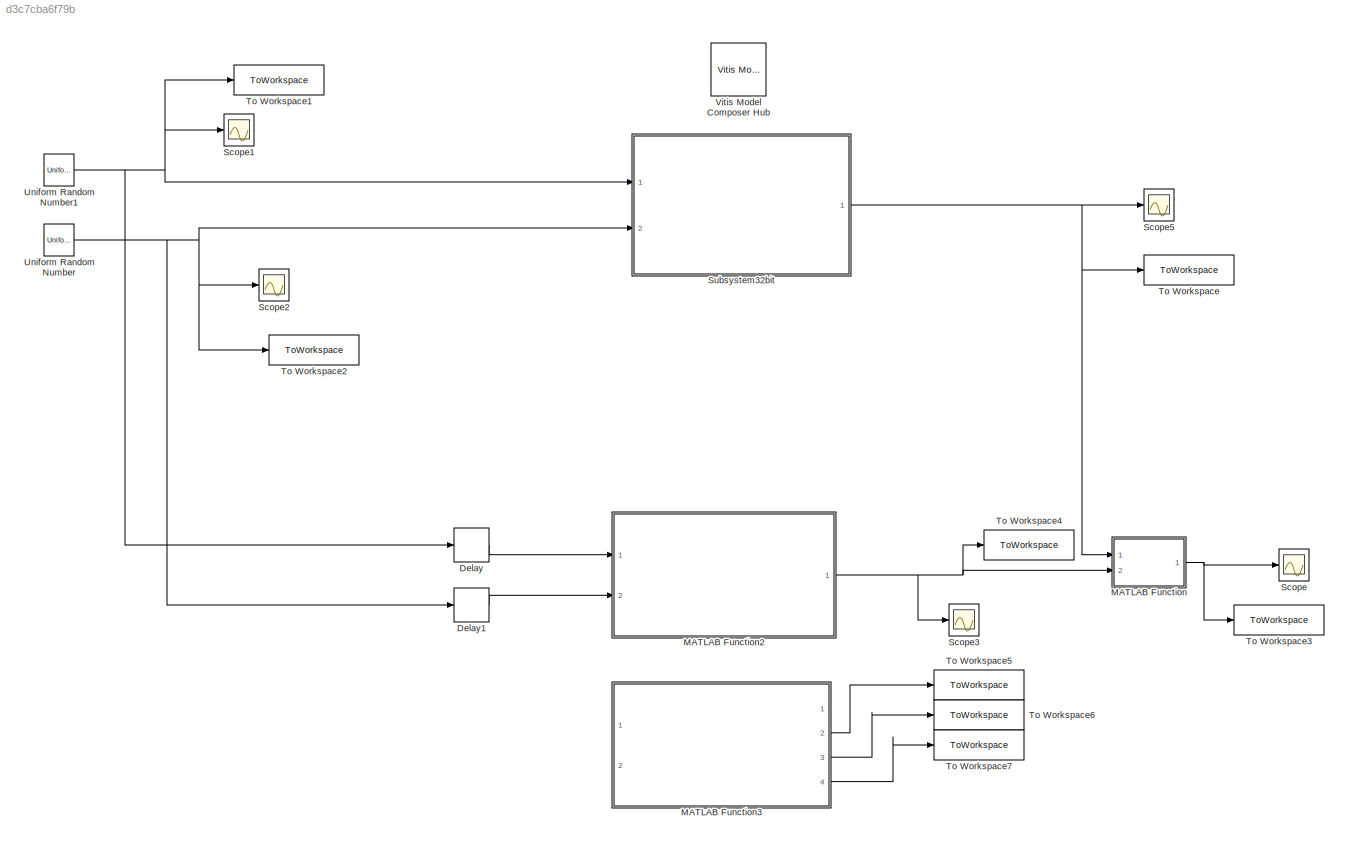
MODEL slx_d3c7cba6f79b
KIND model
CONFIG AbsTol = auto
CONFIG EnableMultiTasking = off
CONFIG FixedStep = auto
CONFIG MaxStep = auto
CONFIG MinStep = auto
CONFIG RelTol = 1e-3
CONFIG SampleTimeConstraint = Unconstrained
CONFIG SolverName = VariableStepAuto
CONFIG StartTime = 0.0
CONFIG StopTime = 359
BLOCK [Delay] Delay
  DelayLength = 260
  InputPortMap = u0
  Ports = [1, 1]
BLOCK [Delay] Delay1
  DelayLength = 260
  InputPortMap = u0
  Ports = [1, 1]
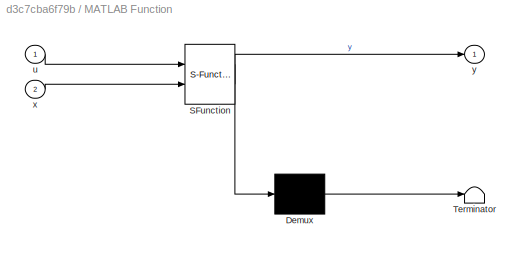
BLOCK [SubSystem] MATLAB Function
  ErrorFcn = Stateflow.Translate.translate
  PermitHierarchicalResolution = ExplicitOnly
  Ports = [2, 1]
  RequestExecContextInheritance = off
  SFBlockType = MATLAB Function
  TreatAsAtomicUnit = on
BLOCK [Demux] MATLAB Function/ Demux 
  Outputs = 1
  Ports = [1, 1]
BLOCK [S-Function] MATLAB Function/ SFunction 
  EnableBusSupport = on
  FunctionName = sf_sfun
  PortCounts = [2 2]
  Ports = [2, 2]
  SFcnIsStateOwnerBlock = off
  SFunctionDeploymentMode = off
  Tag = Stateflow S-Function 2
BLOCK [Terminator] MATLAB Function/ Terminator 
BLOCK [Inport] MATLAB Function/u
BLOCK [Inport] MATLAB Function/x
  Port = 2
BLOCK [Outport] MATLAB Function/y
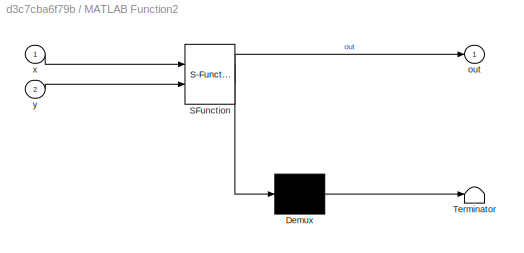
BLOCK [SubSystem] MATLAB Function2
  ErrorFcn = Stateflow.Translate.translate
  PermitHierarchicalResolution = ExplicitOnly
  Ports = [2, 1]
  RequestExecContextInheritance = off
  SFBlockType = MATLAB Function
  TreatAsAtomicUnit = on
BLOCK [Demux] MATLAB Function2/ Demux 
  Outputs = 1
  Ports = [1, 1]
BLOCK [S-Function] MATLAB Function2/ SFunction 
  EnableBusSupport = on
  FunctionName = sf_sfun
  PortCounts = [2 2]
  Ports = [2, 2]
  SFcnIsStateOwnerBlock = off
  SFunctionDeploymentMode = off
  Tag = Stateflow S-Function 3
BLOCK [Terminator] MATLAB Function2/ Terminator 
BLOCK [Outport] MATLAB Function2/out
BLOCK [Inport] MATLAB Function2/x
BLOCK [Inport] MATLAB Function2/y
  Port = 2
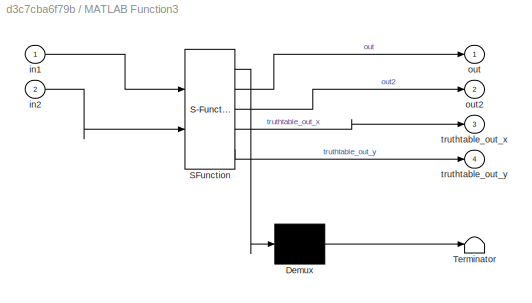
BLOCK [SubSystem] MATLAB Function3
  Commented = on
  ErrorFcn = Stateflow.Translate.translate
  PermitHierarchicalResolution = ExplicitOnly
  Ports = [2, 4]
  RequestExecContextInheritance = off
  SFBlockType = MATLAB Function
  TreatAsAtomicUnit = on
BLOCK [Demux] MATLAB Function3/ Demux 
  Outputs = 1
  Ports = [1, 1]
BLOCK [S-Function] MATLAB Function3/ SFunction 
  EnableBusSupport = on
  FunctionName = sf_sfun
  PortCounts = [2 5]
  Ports = [2, 5]
  SFcnIsStateOwnerBlock = off
  SFunctionDeploymentMode = off
  Tag = Stateflow S-Function 4
BLOCK [Terminator] MATLAB Function3/ Terminator 
BLOCK [Inport] MATLAB Function3/in1
BLOCK [Inport] MATLAB Function3/in2
  Port = 2
BLOCK [Outport] MATLAB Function3/out
BLOCK [Outport] MATLAB Function3/out2
  Port = 2
BLOCK [Outport] MATLAB Function3/truthtable_out_x
  Port = 3
BLOCK [Outport] MATLAB Function3/truthtable_out_y
  Port = 4
BLOCK [Scope] Scope
  Floating = off
  NumInputPorts = 1
  Ports = [1]
  ScopeSpecificationString = Simulink.scopes.TimeScopeBlockCfg('CurrentConfiguration', extmgr.ConfigurationSet(extmgr.Configuration('Core','General UI',true),extmgr.Configuration('Core','Source UI',true),extmgr.Configuration('Sources','WiredSimulink',true,'DataLoggingVariableName','ScopeData2'),extmgr.Configuration('Visuals','Time Domain',true,'SerializedDisplays',{struct('MinYLimReal','-0.242','MaxYLimReal','2.178','YLabelRe...<+1435ch>
BLOCK [Scope] Scope1
  Floating = off
  NumInputPorts = 1
  Ports = [1]
  ScopeSpecificationString = Simulink.scopes.TimeScopeBlockCfg('CurrentConfiguration', extmgr.ConfigurationSet(extmgr.Configuration('Core','General UI',true),extmgr.Configuration('Core','Source UI',true),extmgr.Configuration('Sources','WiredSimulink',true,'DataLoggingVariableName','ScopeData1'),extmgr.Configuration('Visuals','Time Domain',true,'SerializedDisplays',{struct('MinYLimReal','-1.24569','MaxYLimReal','1.24649','YLab...<+1488ch>
BLOCK [Scope] Scope2
  Floating = off
  NumInputPorts = 1
  Ports = [1]
  ScopeSpecificationString = Simulink.scopes.TimeScopeBlockCfg('CurrentConfiguration', extmgr.ConfigurationSet(extmgr.Configuration('Core','General UI',true),extmgr.Configuration('Core','Source UI',true),extmgr.Configuration('Sources','WiredSimulink',true,'DataLoggingVariableName','ScopeData2'),extmgr.Configuration('Visuals','Time Domain',true,'SerializedDisplays',{struct('MinYLimReal','-1.24853','MaxYLimReal','1.24863','YLab...<+1452ch>
BLOCK [Scope] Scope3
  Floating = off
  NumInputPorts = 1
  Ports = [1]
  ScopeSpecificationString = Simulink.scopes.TimeScopeBlockCfg('CurrentConfiguration', extmgr.ConfigurationSet(extmgr.Configuration('Core','General UI',true),extmgr.Configuration('Core','Source UI',true),extmgr.Configuration('Sources','WiredSimulink',true,'DataLoggingVariableName','ScopeData3'),extmgr.Configuration('Visuals','Time Domain',true),extmgr.Configuration('Tools','Plot Navigation',true),extmgr.Configuration('Tools',...<+40ch>
BLOCK [Scope] Scope5
  Floating = off
  NumInputPorts = 1
  Ports = [1]
  ScopeSpecificationString = Simulink.scopes.TimeScopeBlockCfg('CurrentConfiguration', extmgr.ConfigurationSet(extmgr.Configuration('Core','General UI',true),extmgr.Configuration('Core','Source UI',true),extmgr.Configuration('Sources','WiredSimulink',true,'DataLoggingVariableName','ScopeData1'),extmgr.Configuration('Visuals','Time Domain',true,'SerializedDisplays',{struct('MinYLimReal','-0.17678','MaxYLimReal','1.59099','YLab...<+1402ch>
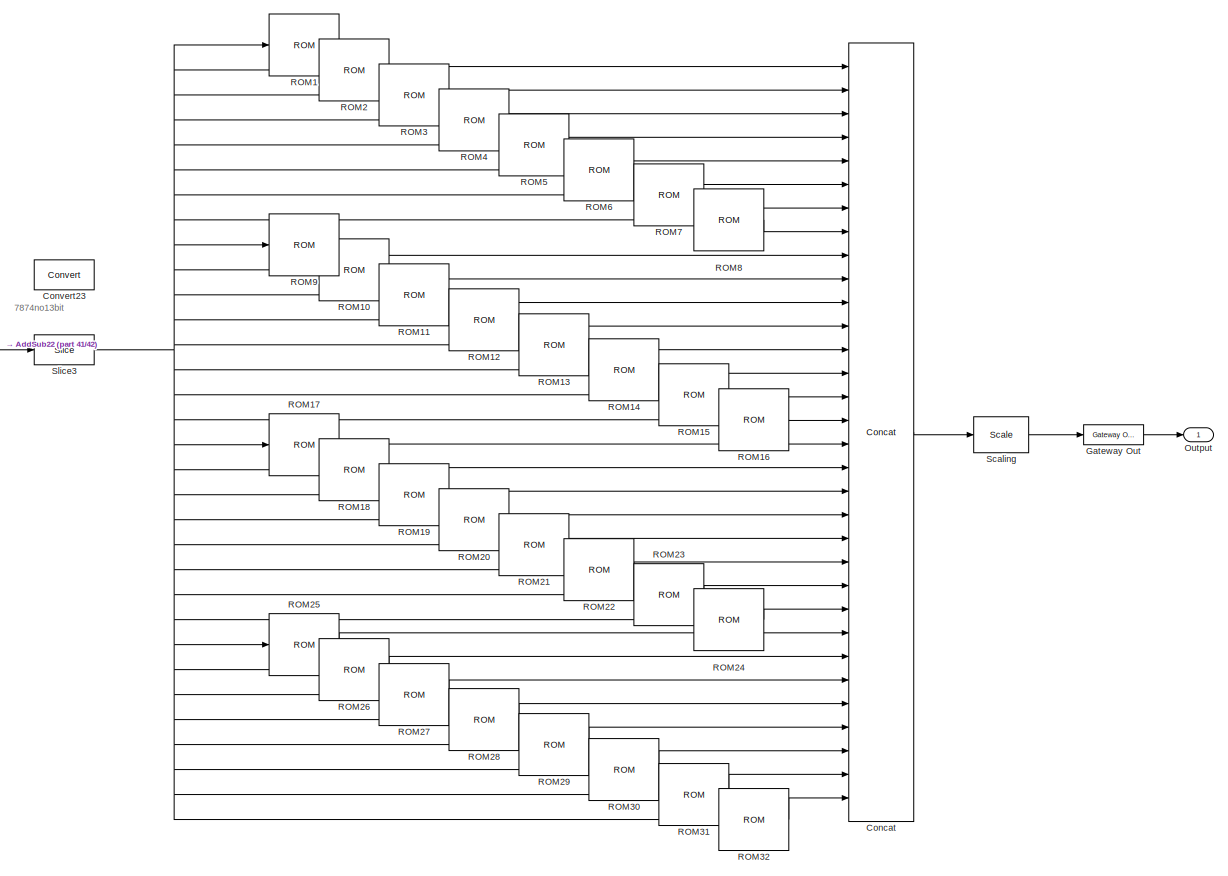
[diagram: Subsystem32bit - part 1/42, right side, full height]
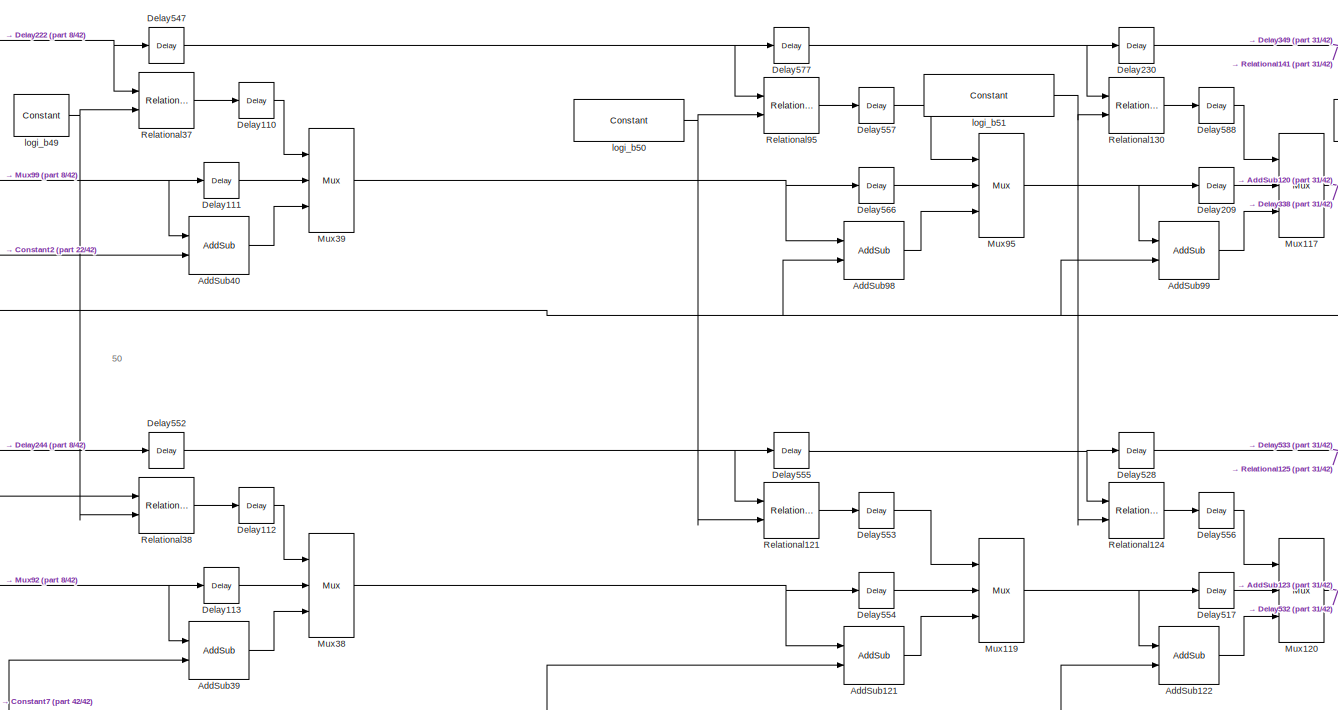
[diagram: Subsystem32bit - part 2/42, center side, full height]
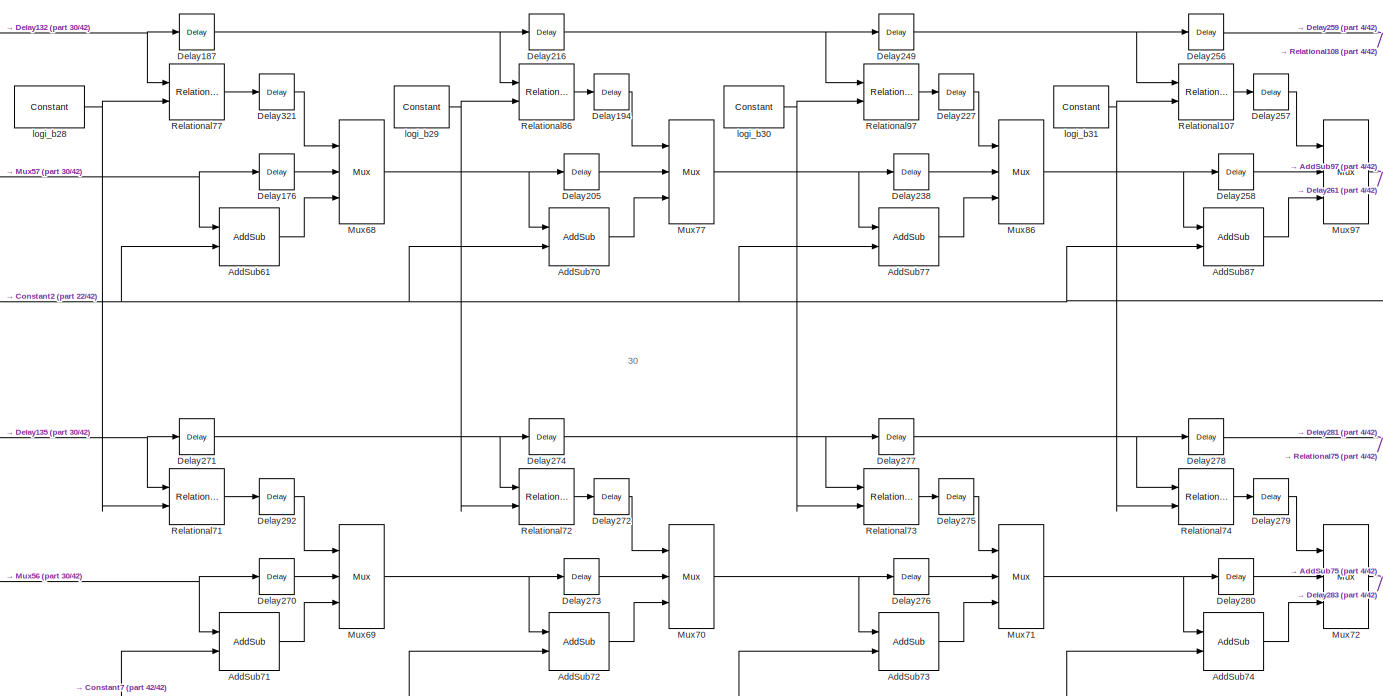
[diagram: Subsystem32bit - part 3/42, left side, full height]
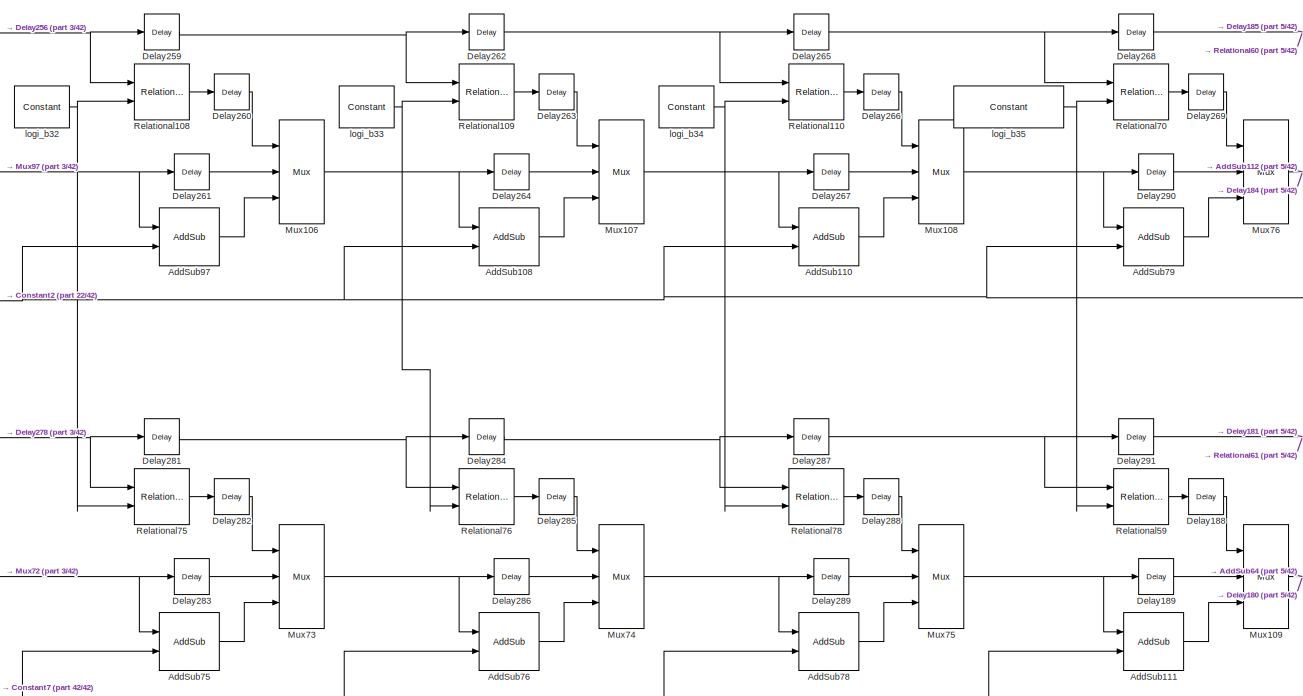
[diagram: Subsystem32bit - part 4/42, left side, full height]
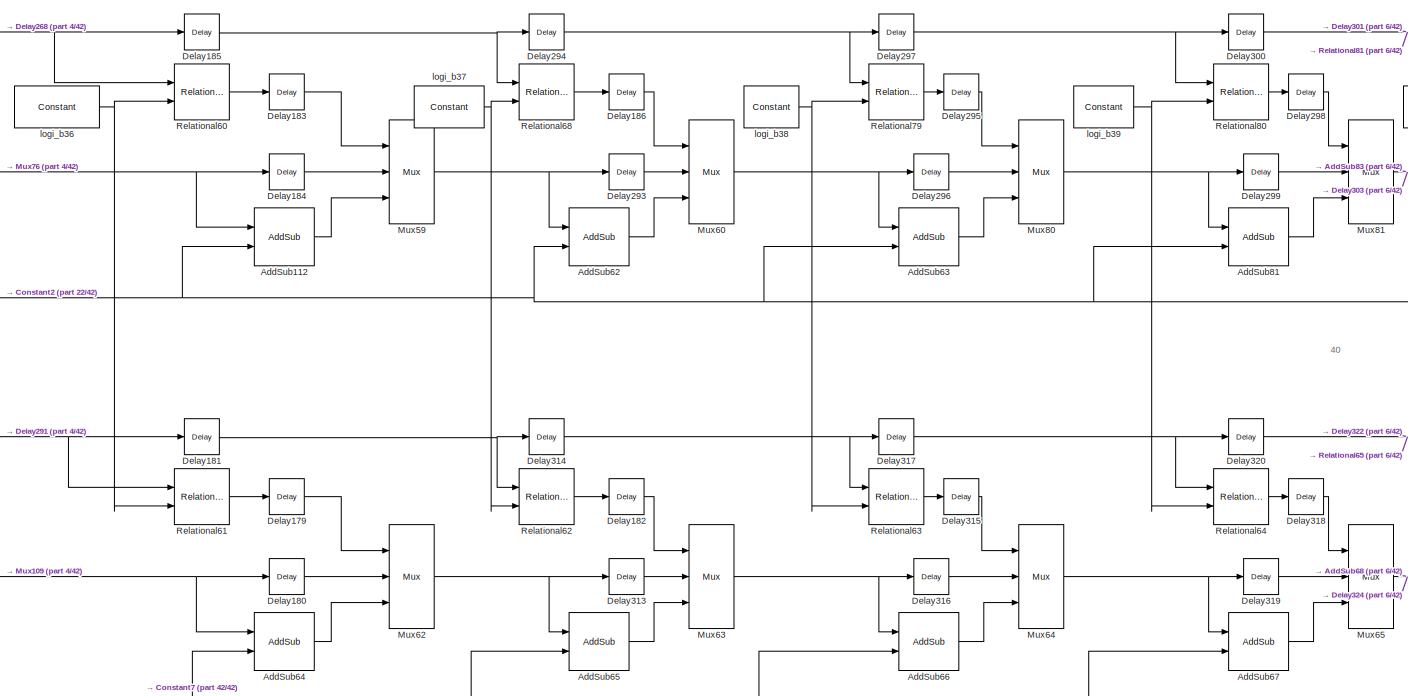
[diagram: Subsystem32bit - part 5/42, left side, full height]
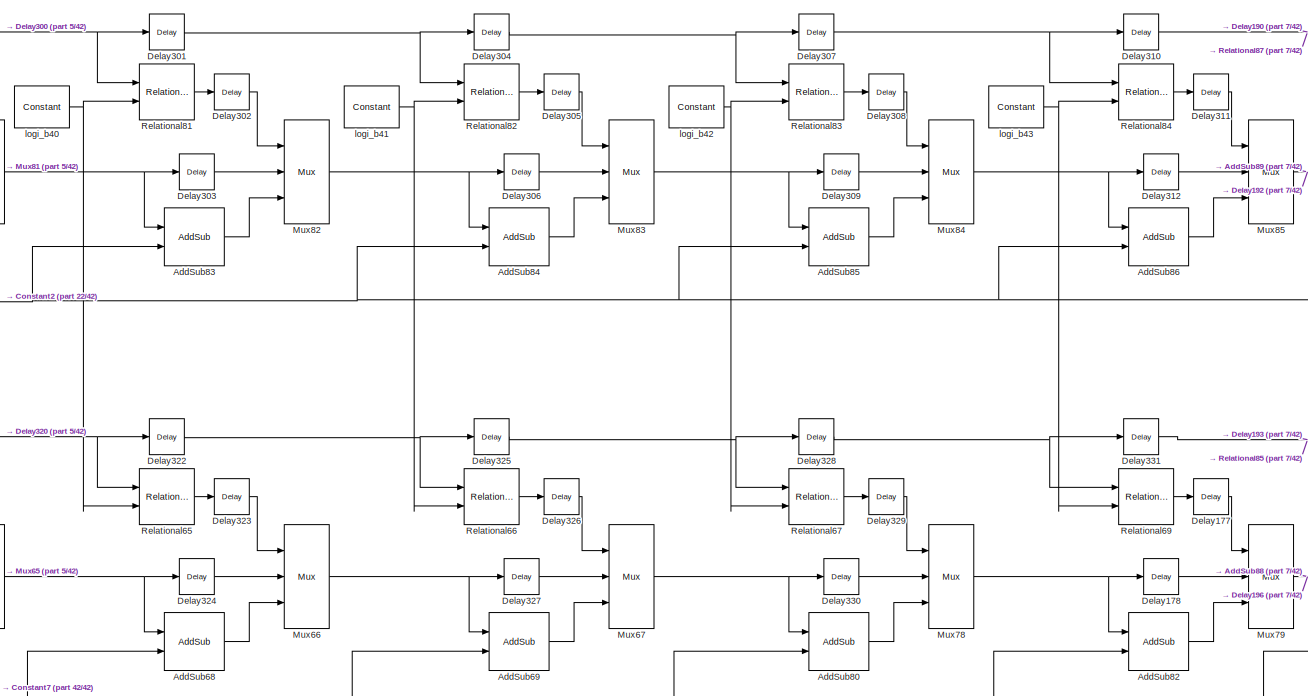
[diagram: Subsystem32bit - part 6/42, left side, full height]
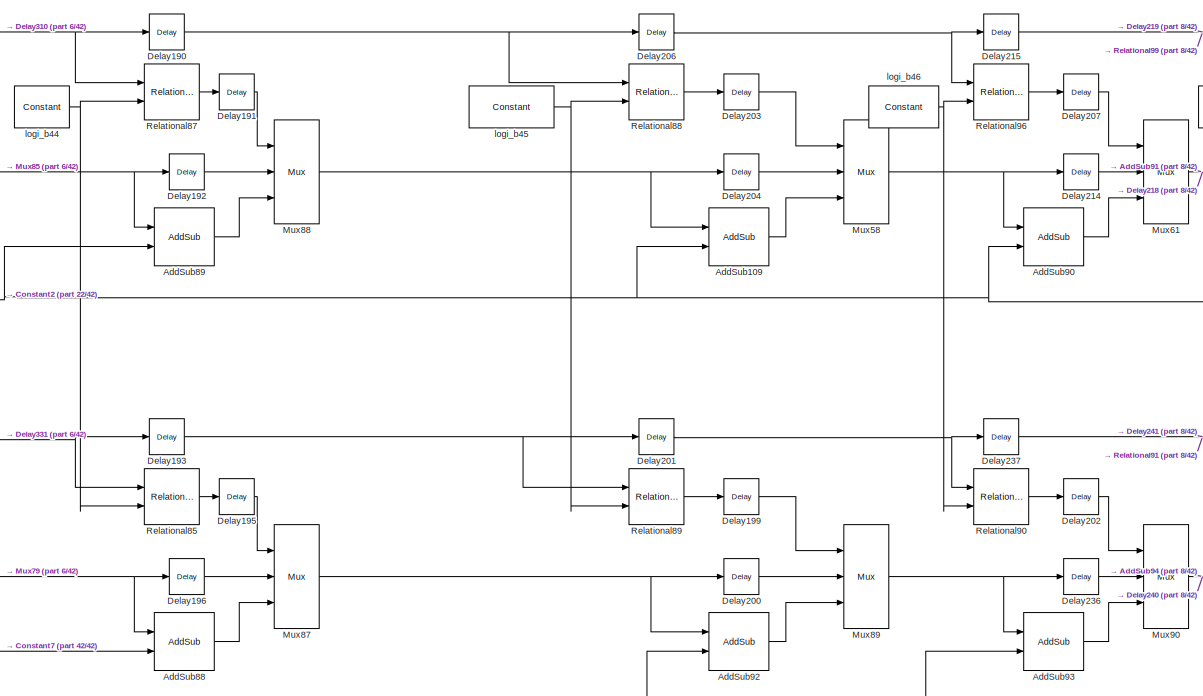
[diagram: Subsystem32bit - part 7/42, center side, full height]
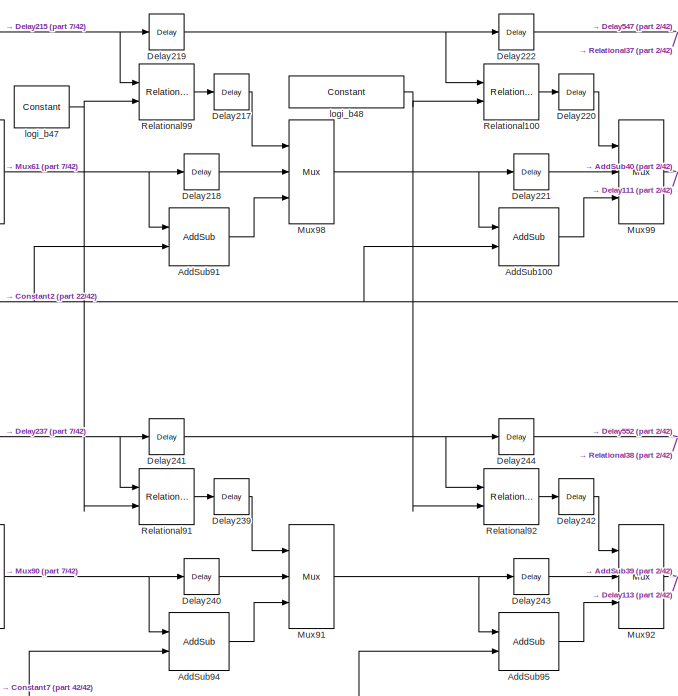
[diagram: Subsystem32bit - part 8/42, center side, full height]
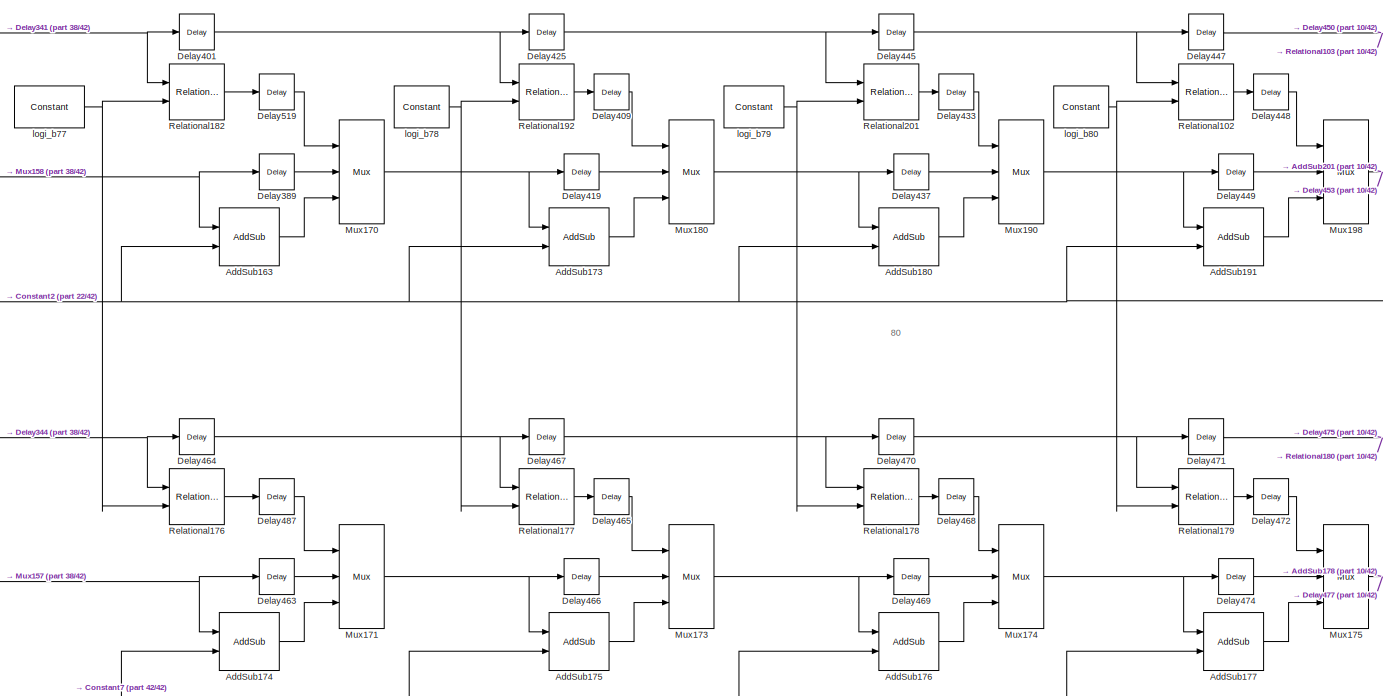
[diagram: Subsystem32bit - part 9/42, center side, full height]
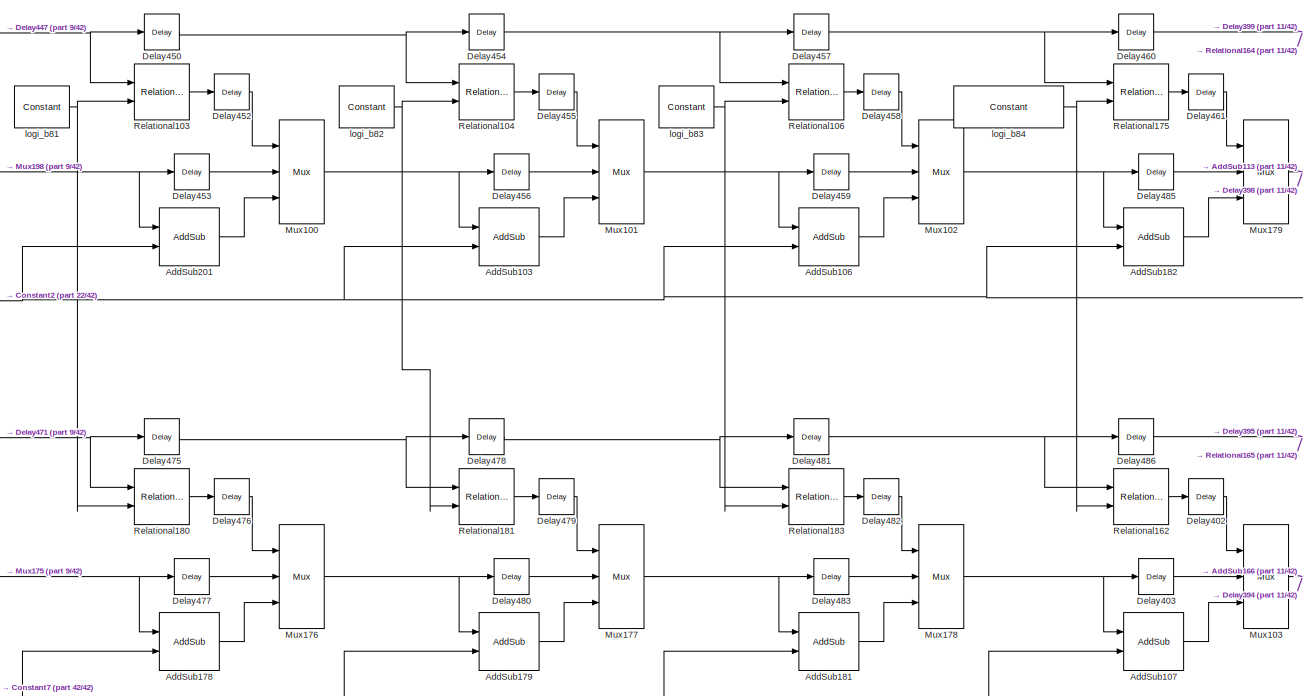
[diagram: Subsystem32bit - part 10/42, center side, full height]
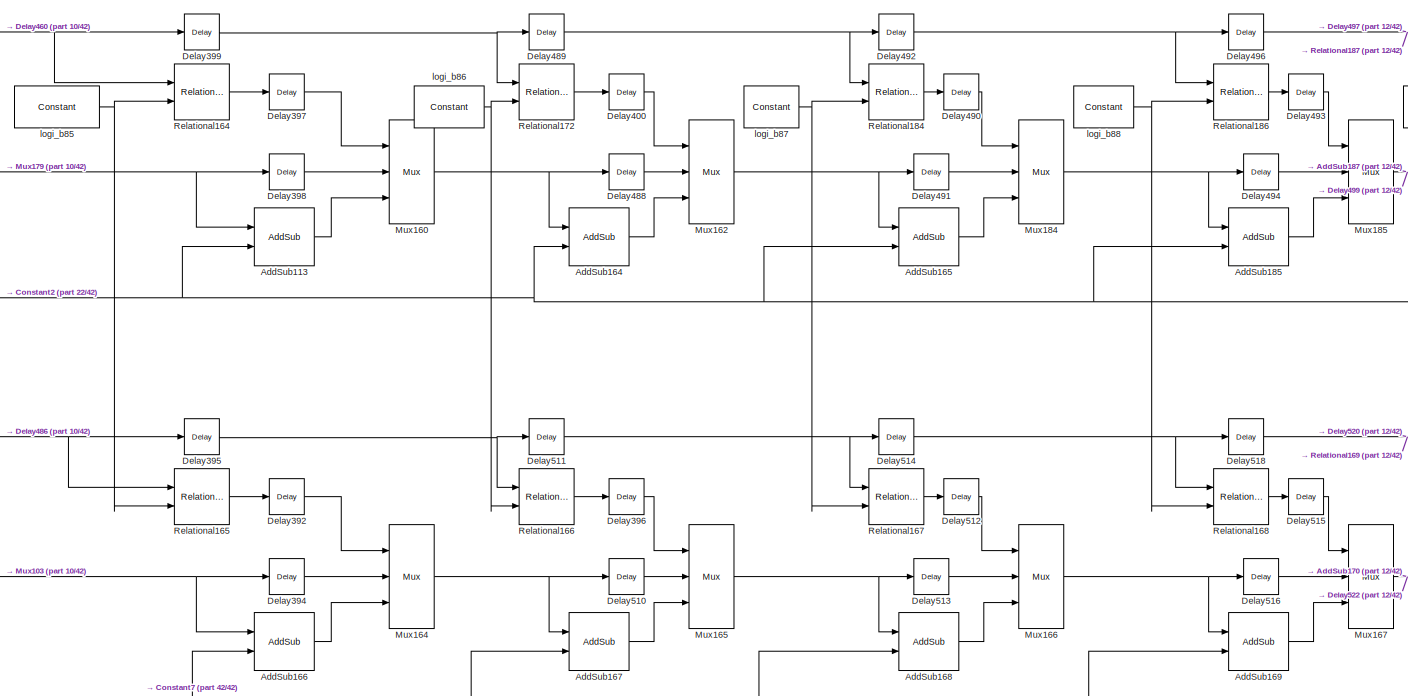
[diagram: Subsystem32bit - part 11/42, center side, full height]
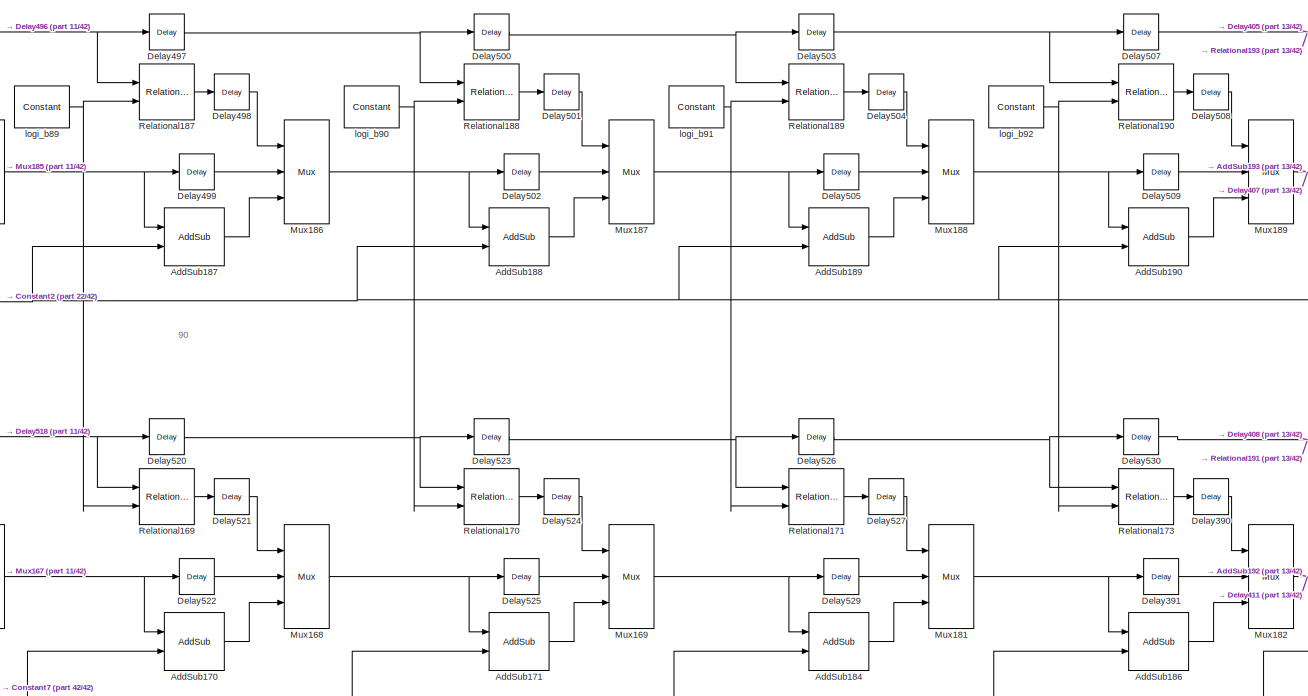
[diagram: Subsystem32bit - part 12/42, right side, full height]
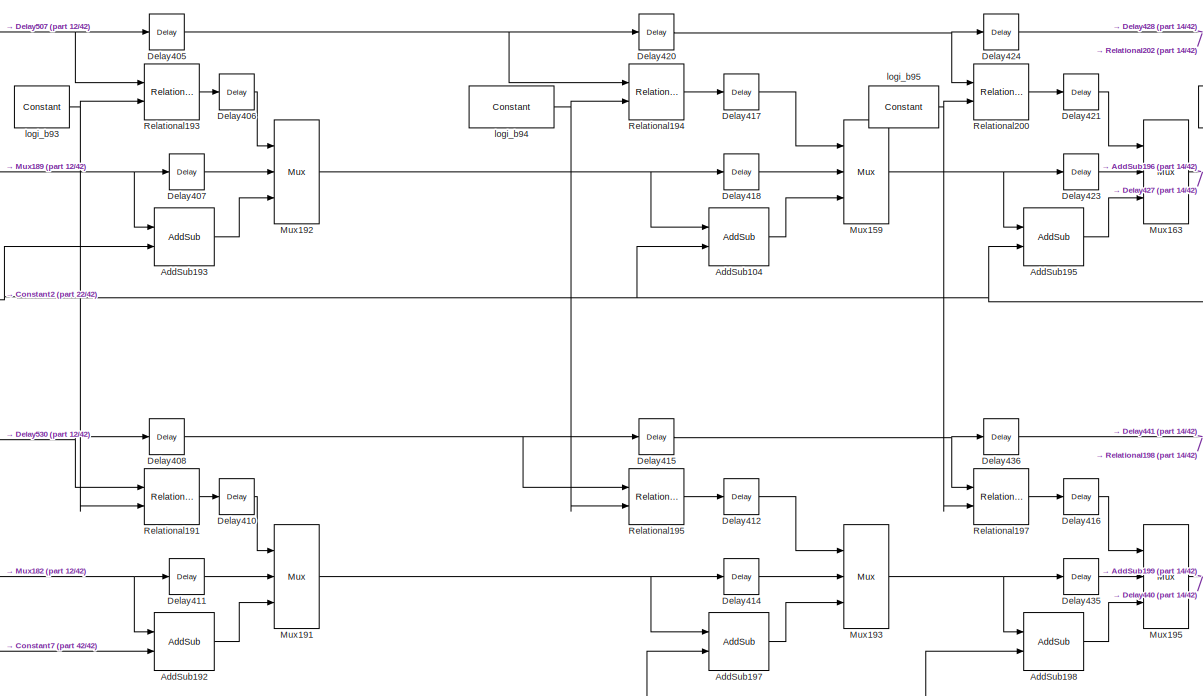
[diagram: Subsystem32bit - part 13/42, right side, full height]
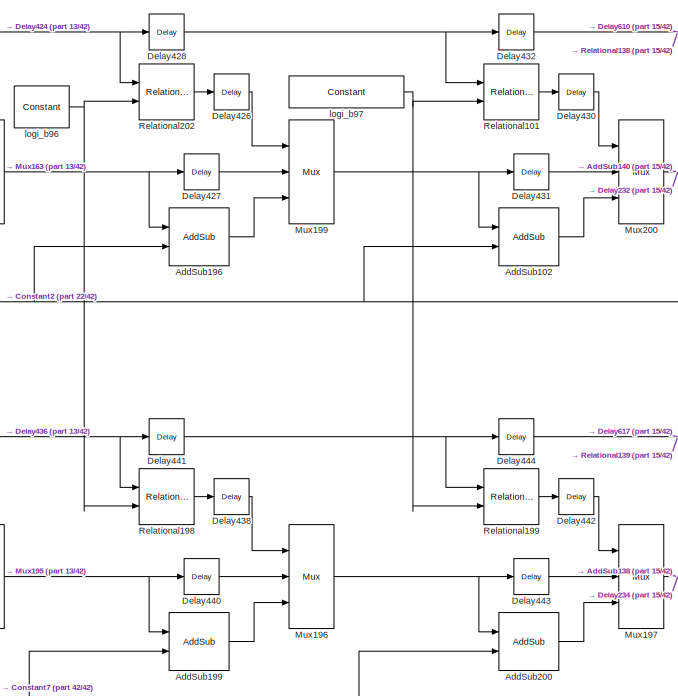
[diagram: Subsystem32bit - part 14/42, right side, full height]
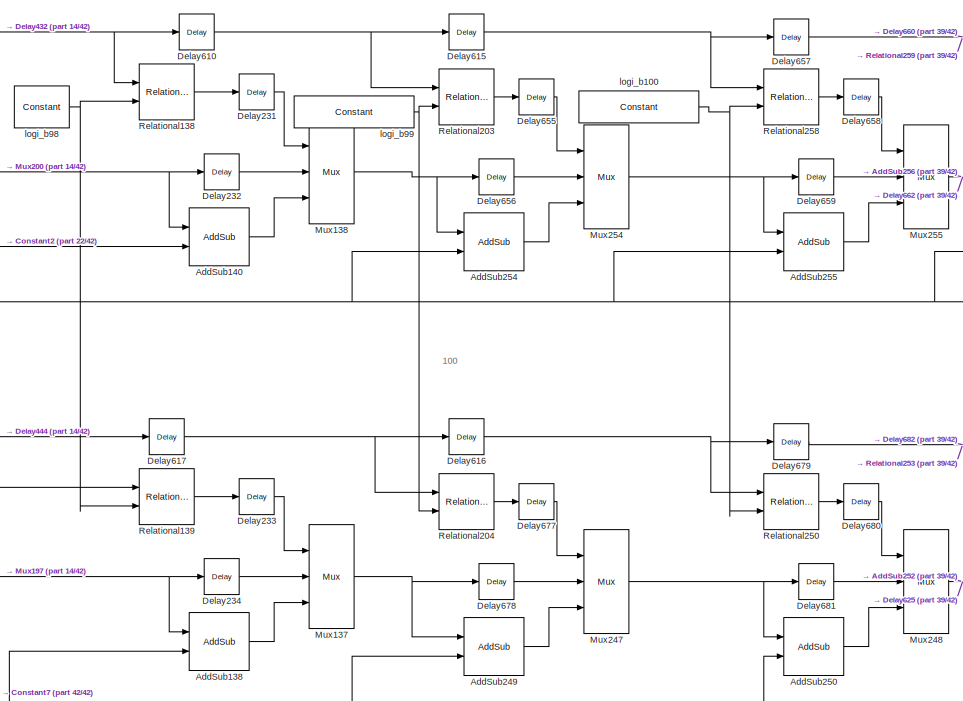
[diagram: Subsystem32bit - part 15/42, right side, full height]
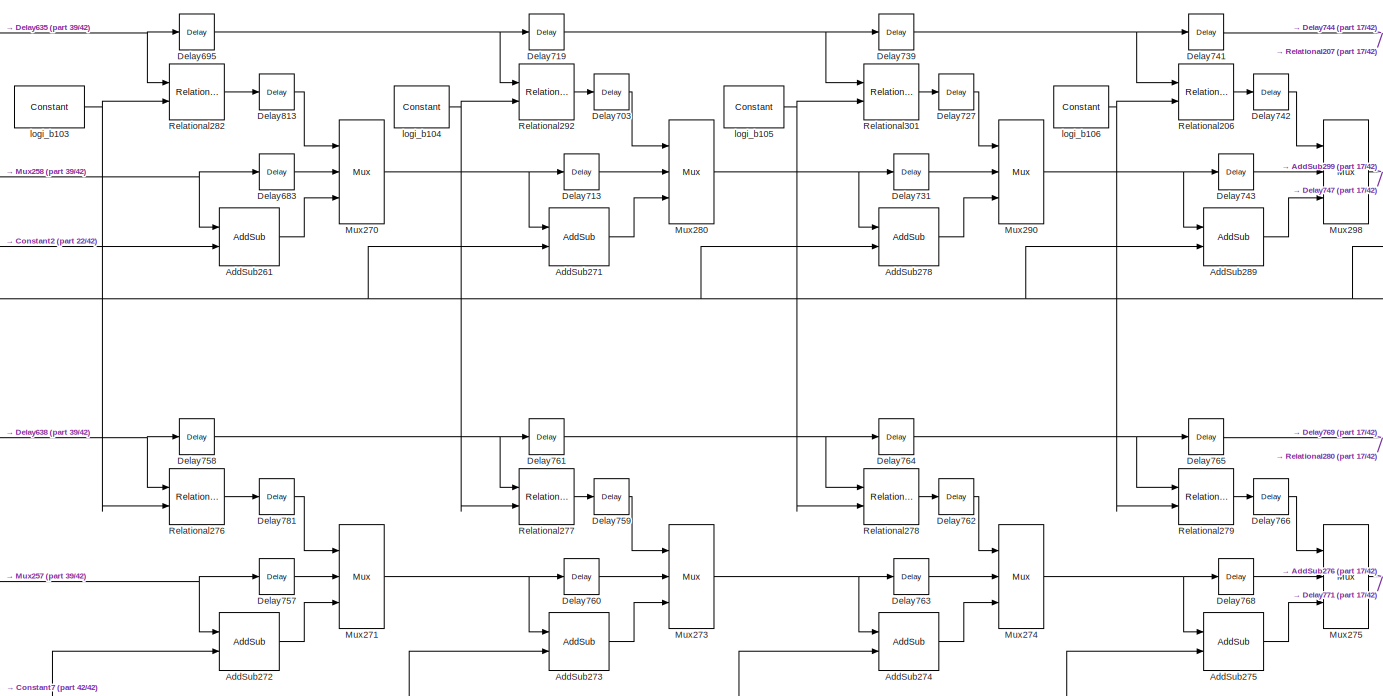
[diagram: Subsystem32bit - part 16/42, right side, full height]
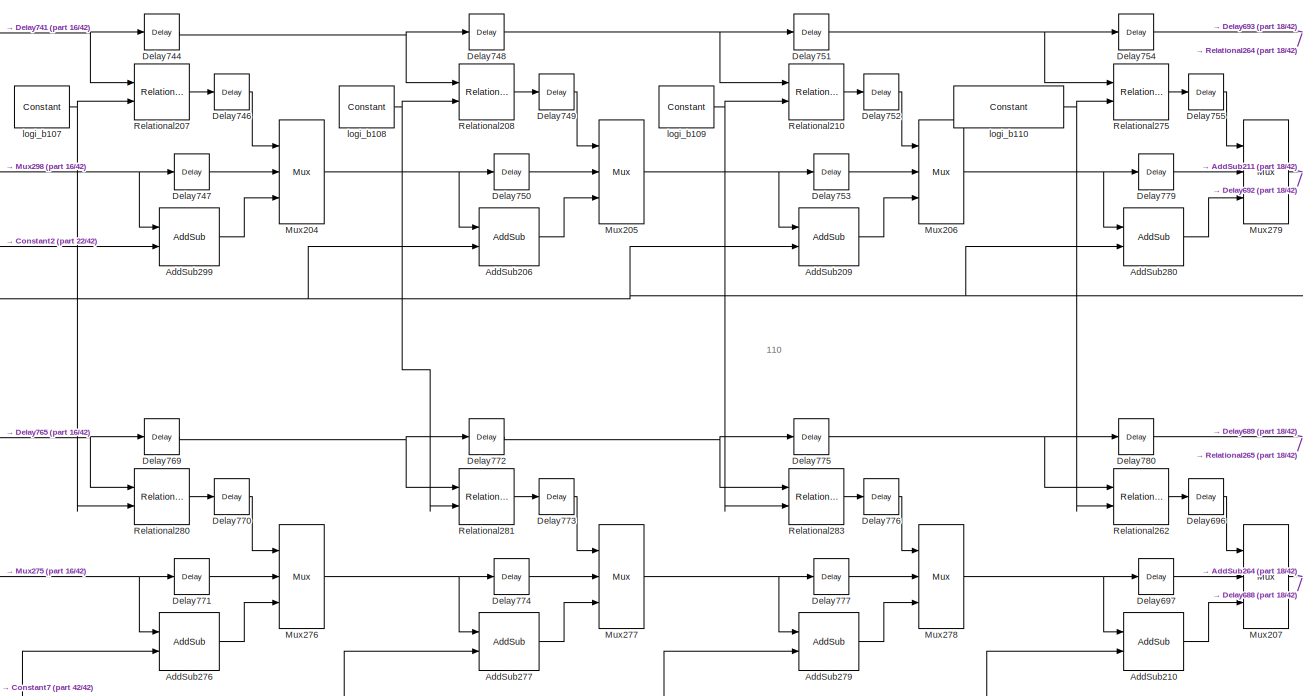
[diagram: Subsystem32bit - part 17/42, right side, full height]
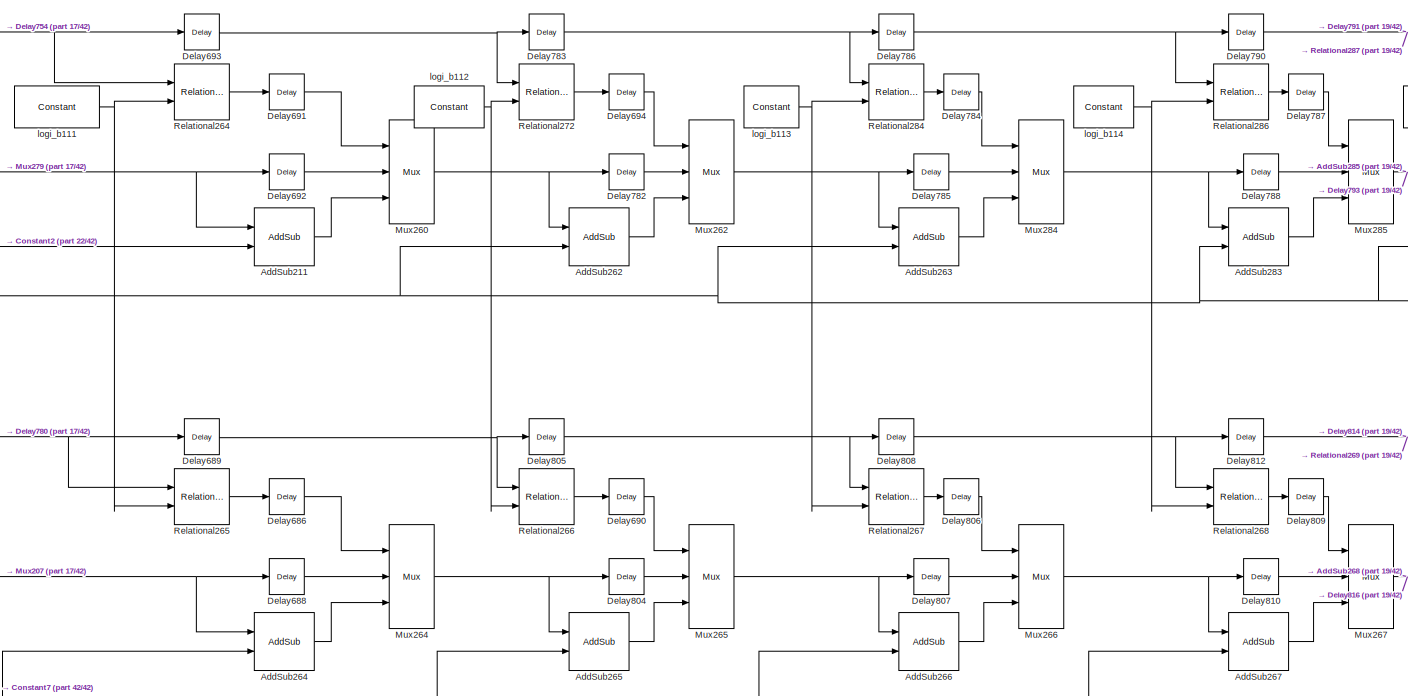
[diagram: Subsystem32bit - part 18/42, right side, full height]
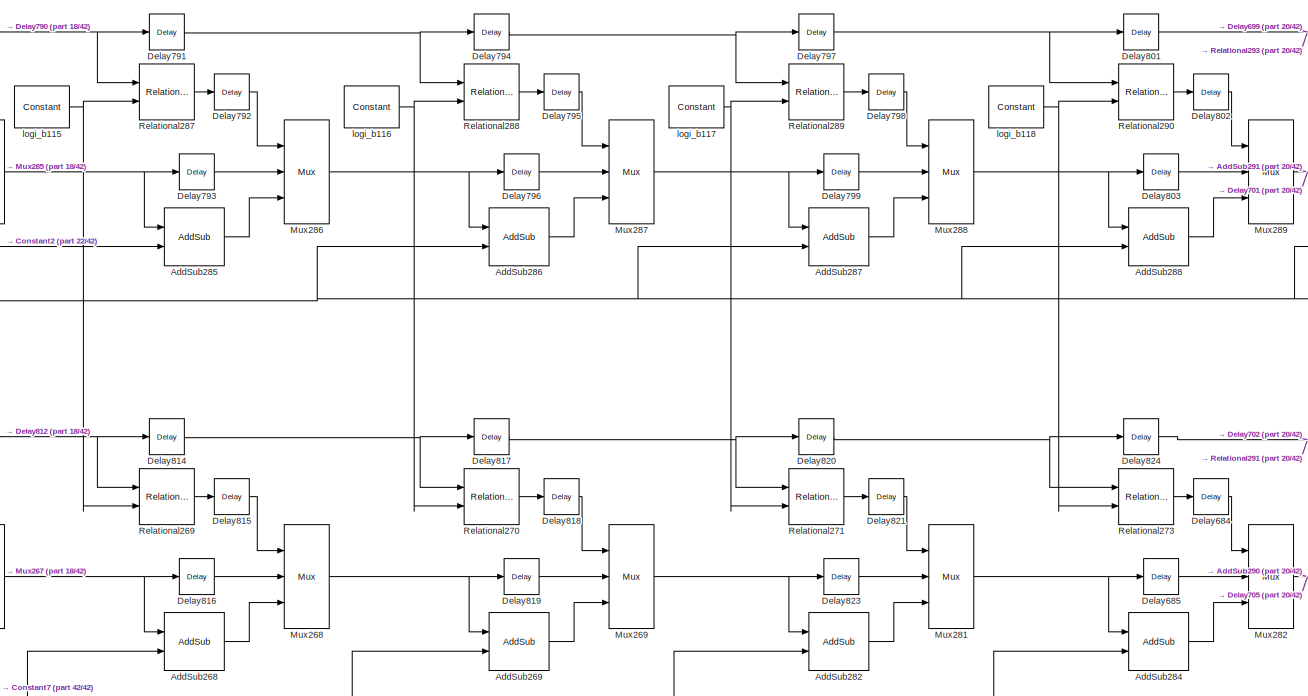
[diagram: Subsystem32bit - part 19/42, right side, full height]
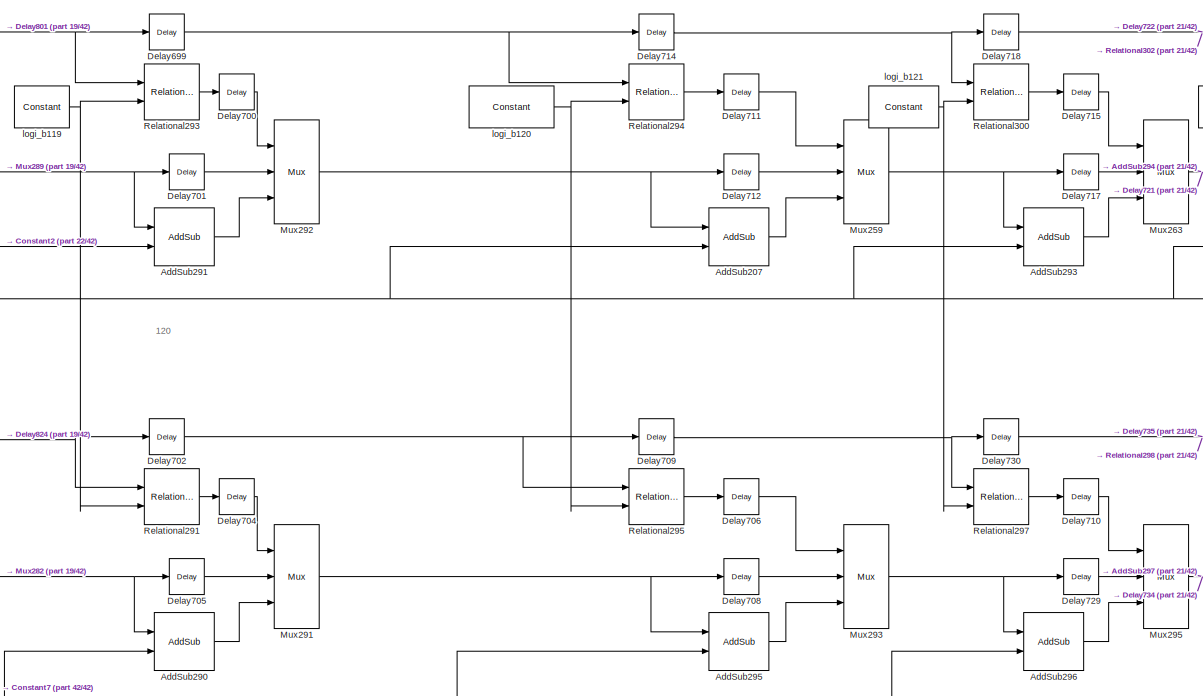
[diagram: Subsystem32bit - part 20/42, right side, full height]
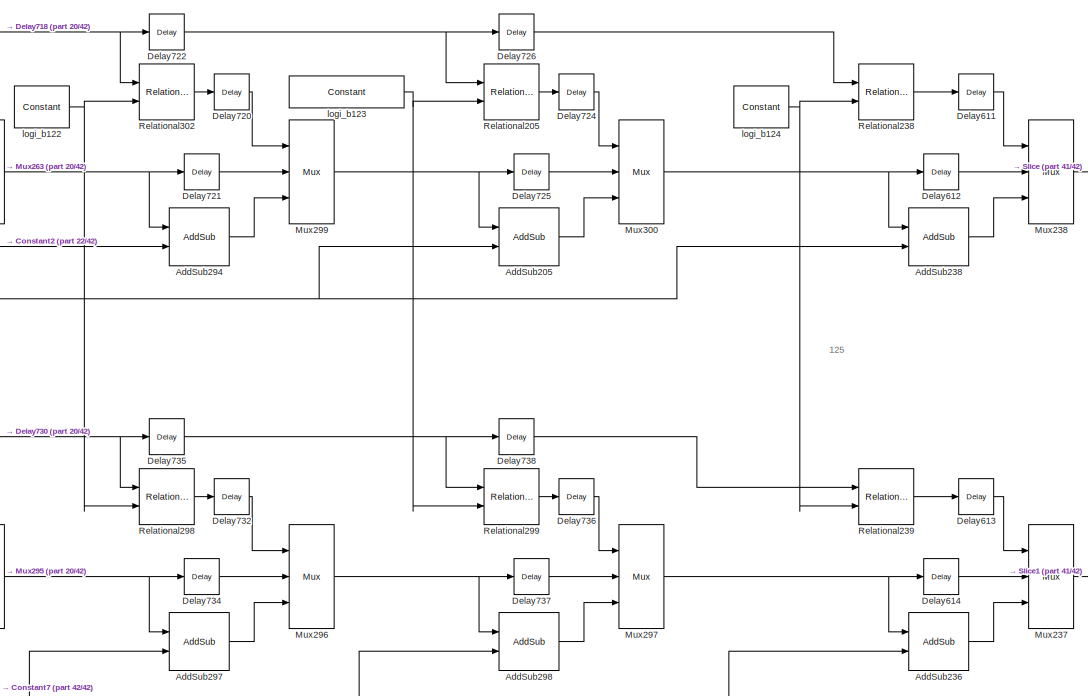
[diagram: Subsystem32bit - part 21/42, right side, full height]
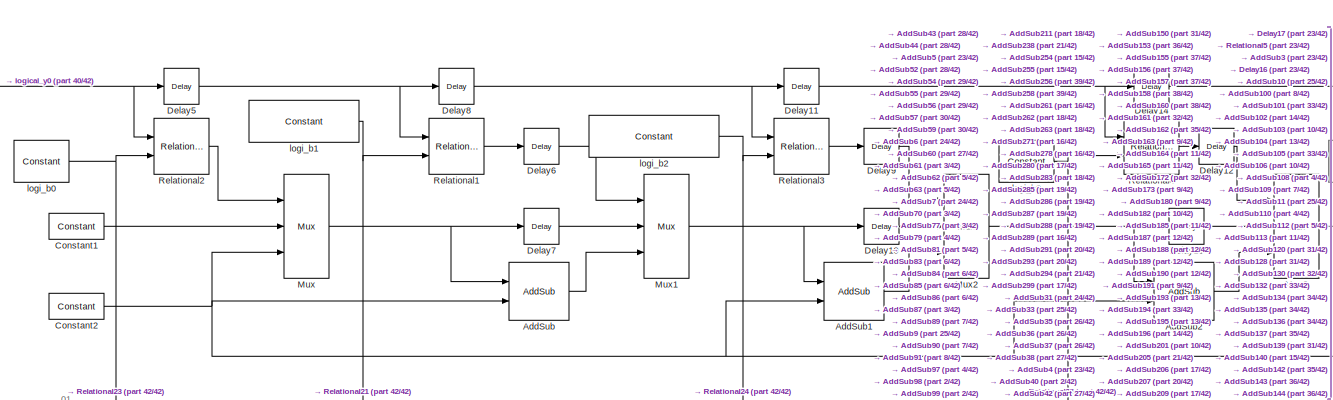
[diagram: Subsystem32bit - part 22/42, middle left region]
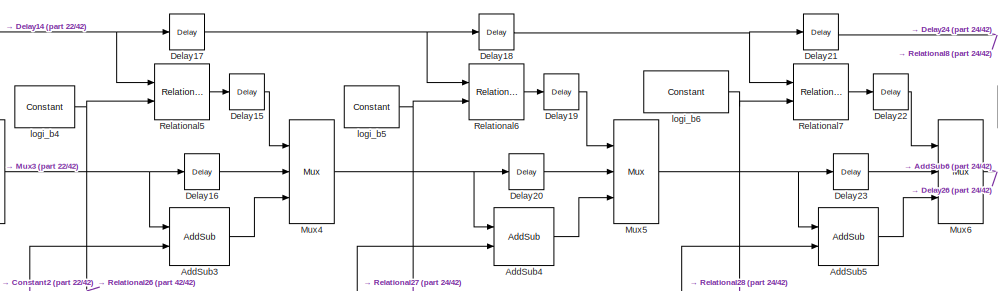
[diagram: Subsystem32bit - part 23/42, middle left region]
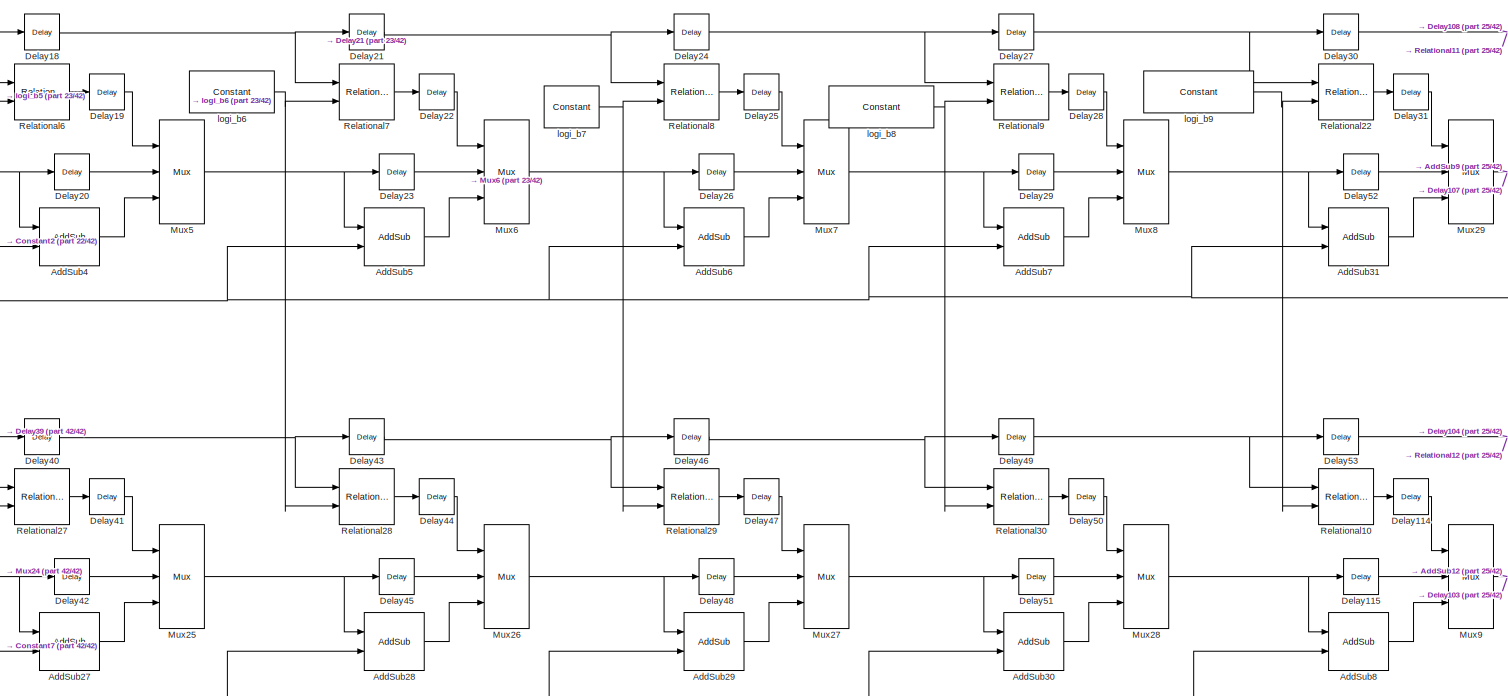
[diagram: Subsystem32bit - part 24/42, left side, full height]
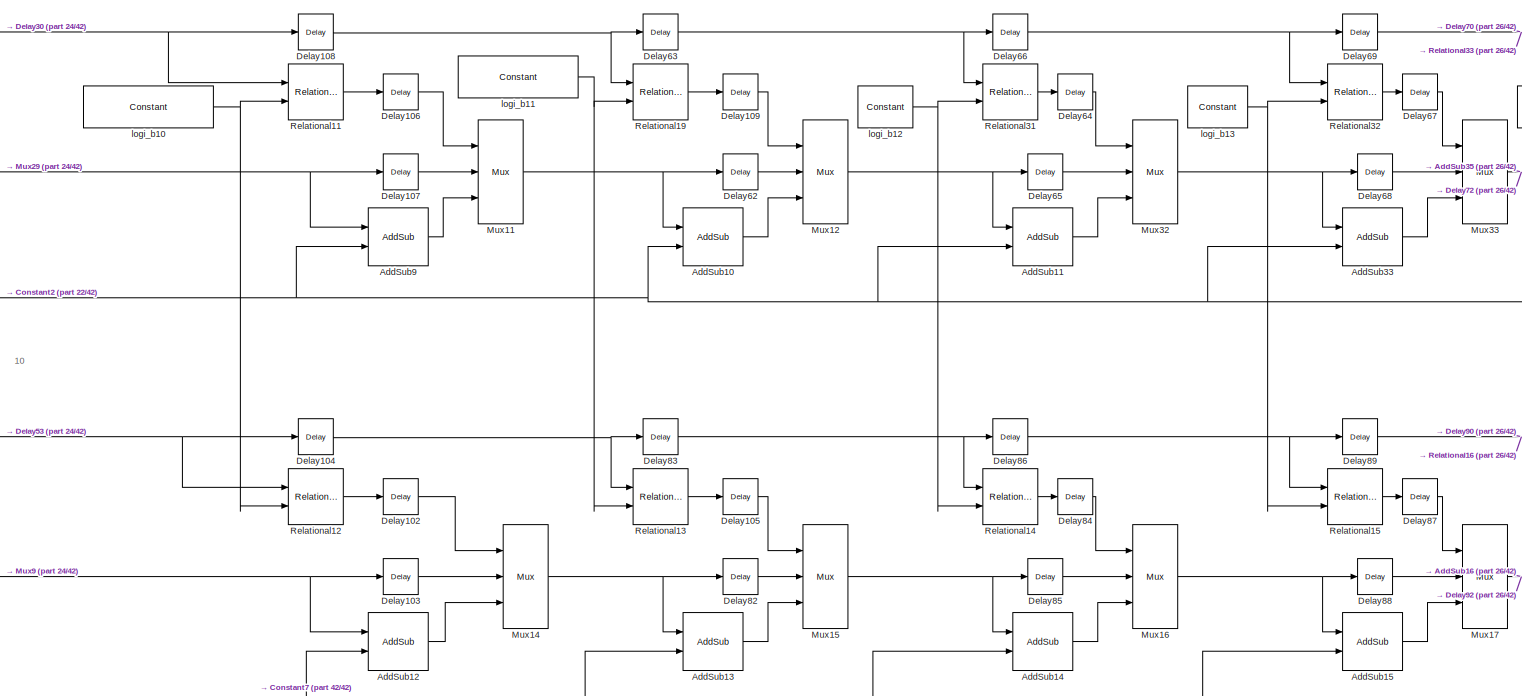
[diagram: Subsystem32bit - part 25/42, left side, full height]
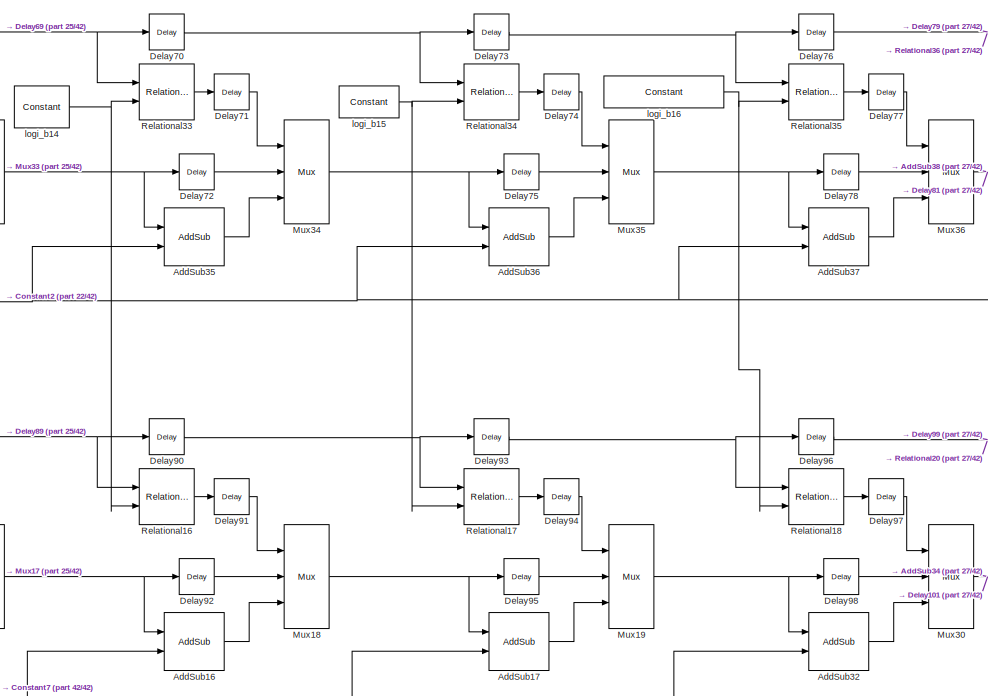
[diagram: Subsystem32bit - part 26/42, left side, full height]
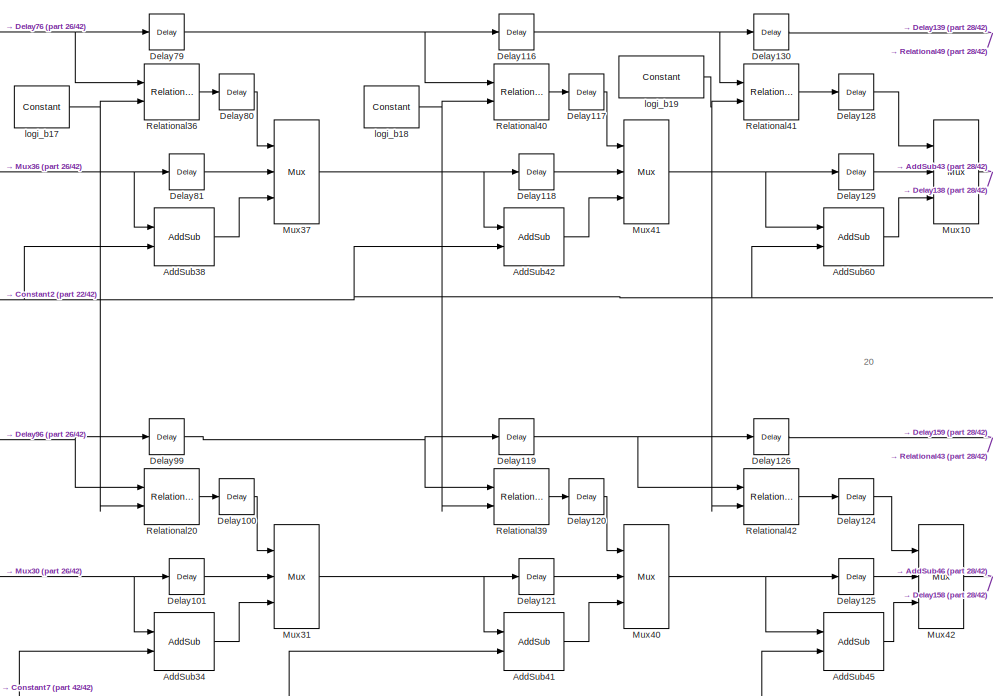
[diagram: Subsystem32bit - part 27/42, left side, full height]
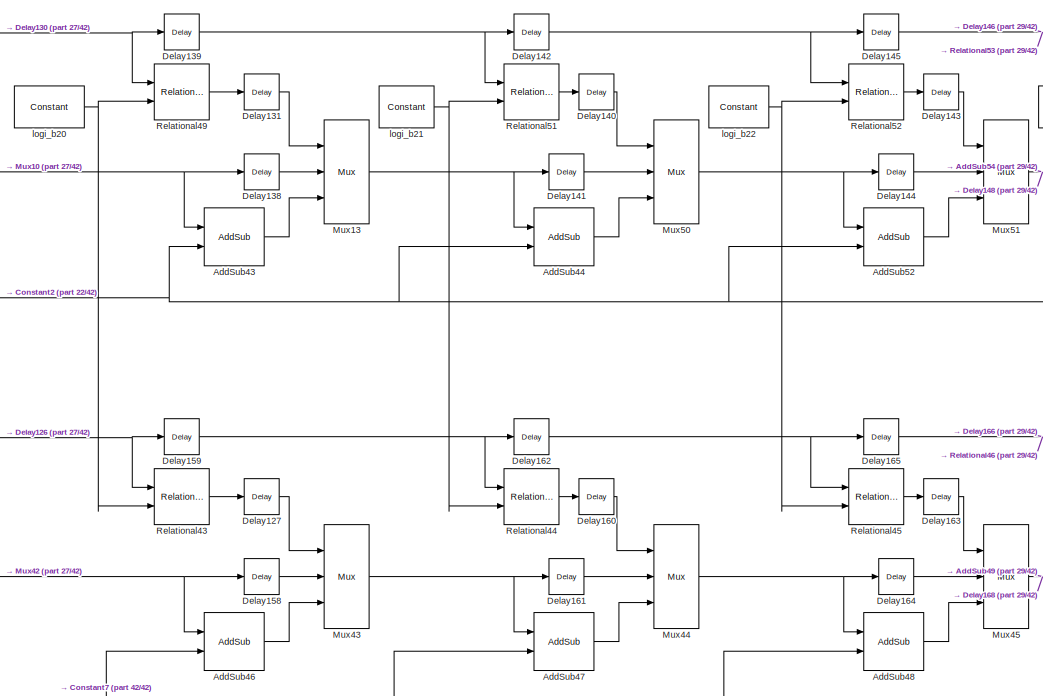
[diagram: Subsystem32bit - part 28/42, left side, full height]
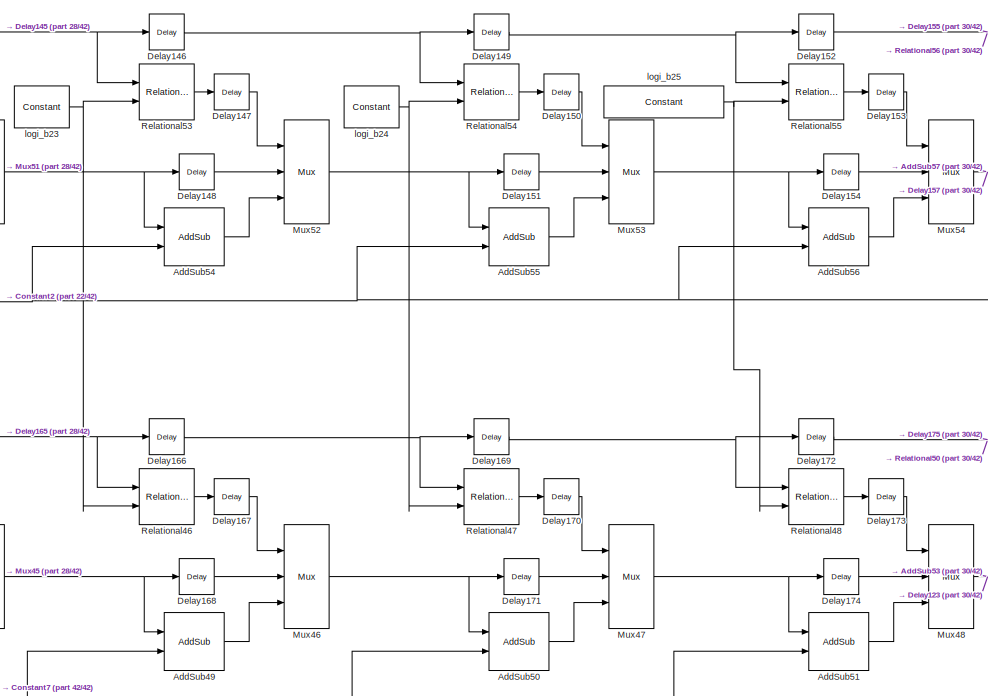
[diagram: Subsystem32bit - part 29/42, left side, full height]
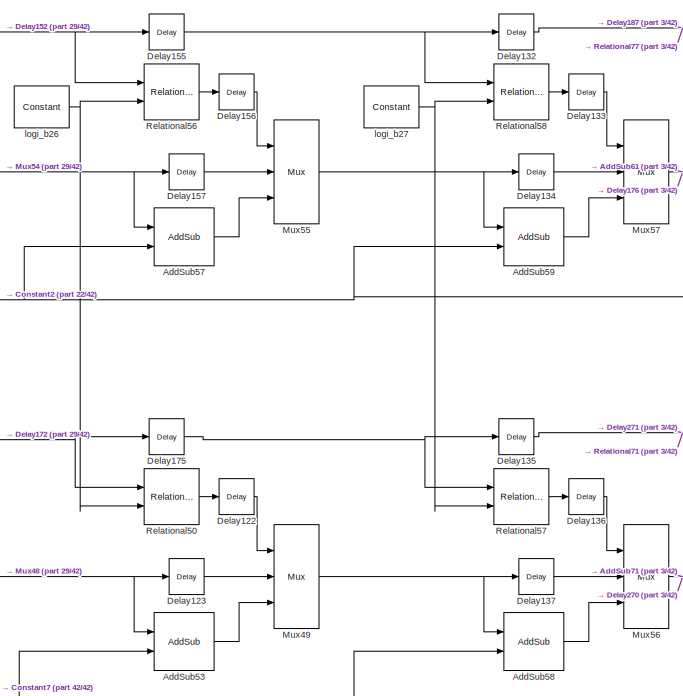
[diagram: Subsystem32bit - part 30/42, left side, full height]
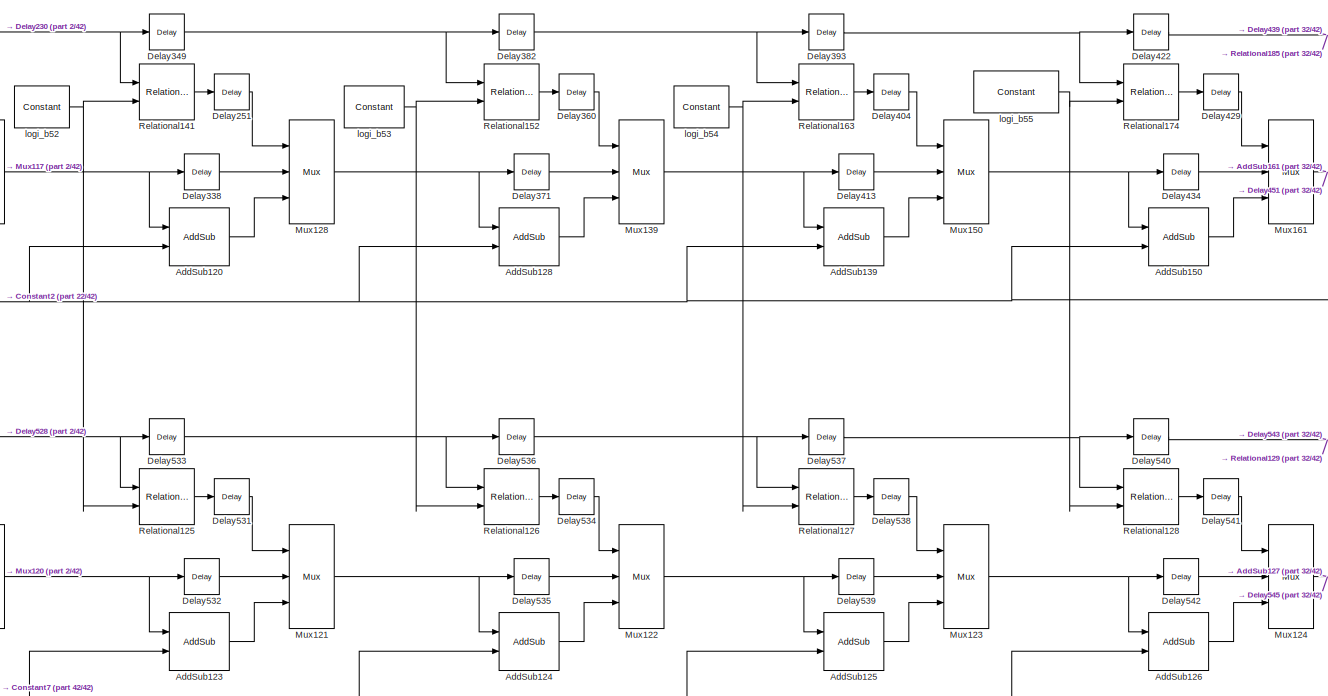
[diagram: Subsystem32bit - part 31/42, center side, full height]
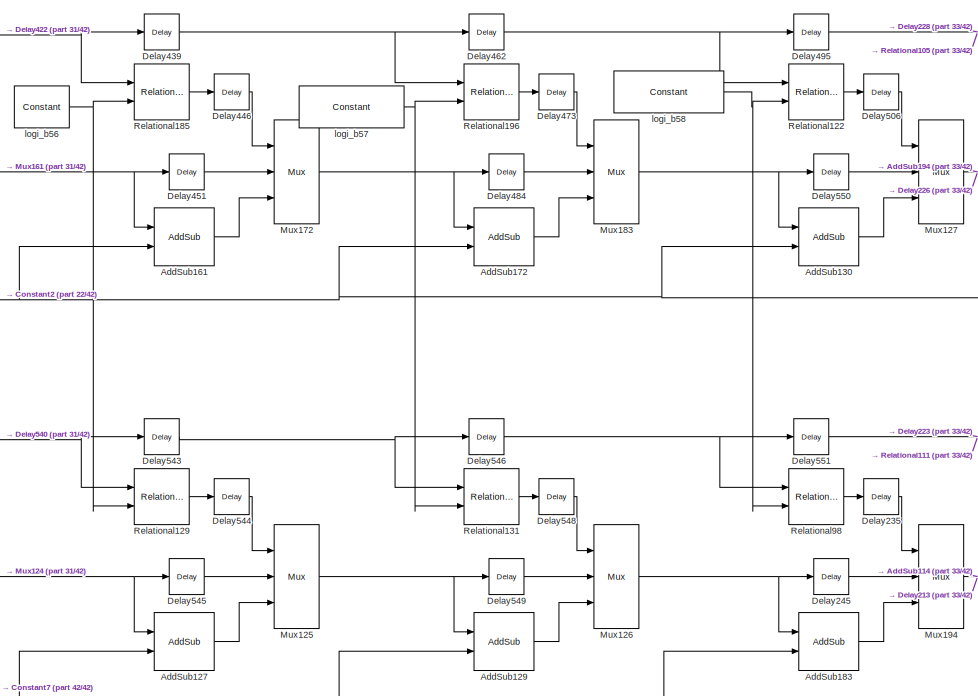
[diagram: Subsystem32bit - part 32/42, center side, full height]
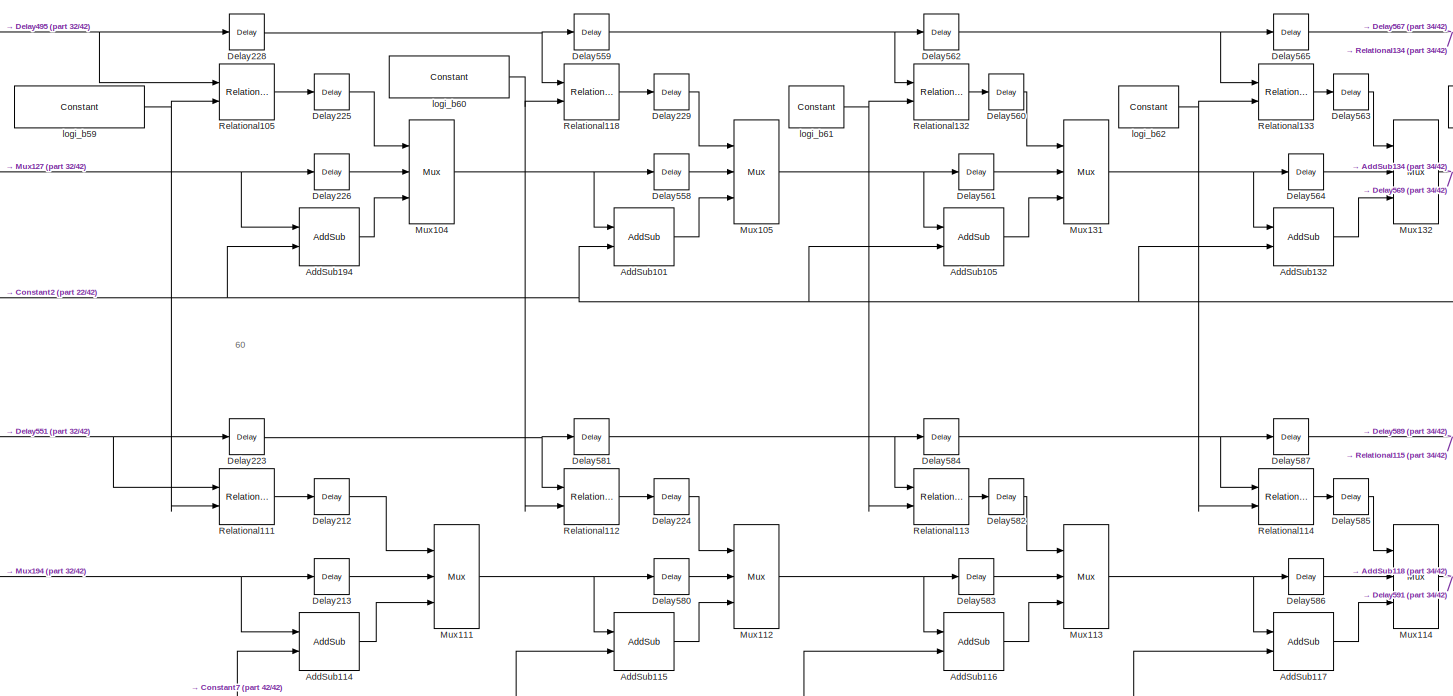
[diagram: Subsystem32bit - part 33/42, center side, full height]
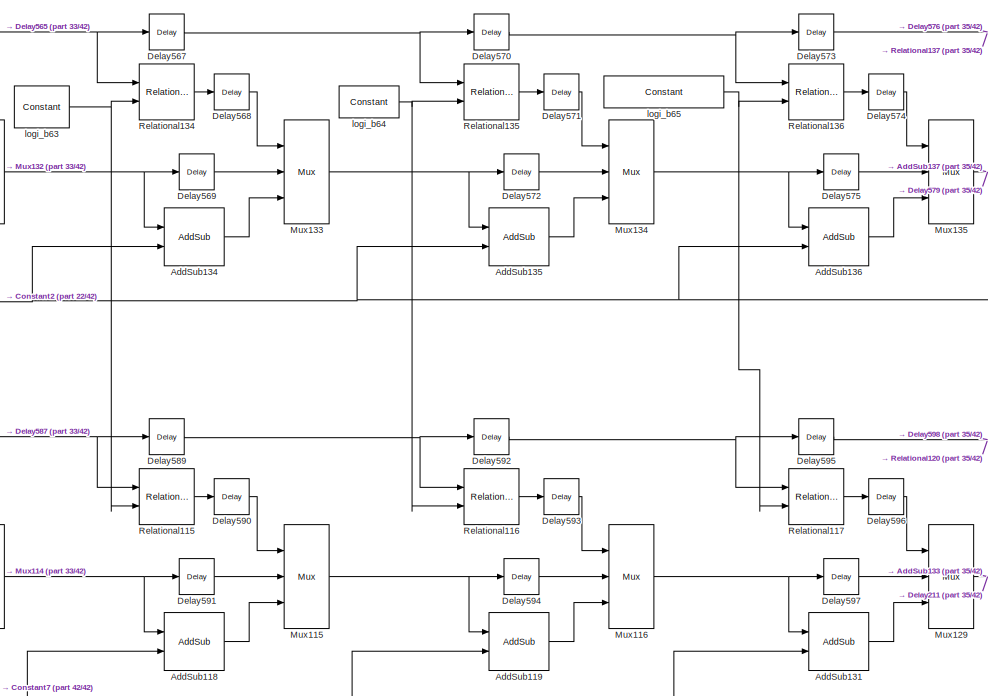
[diagram: Subsystem32bit - part 34/42, center side, full height]
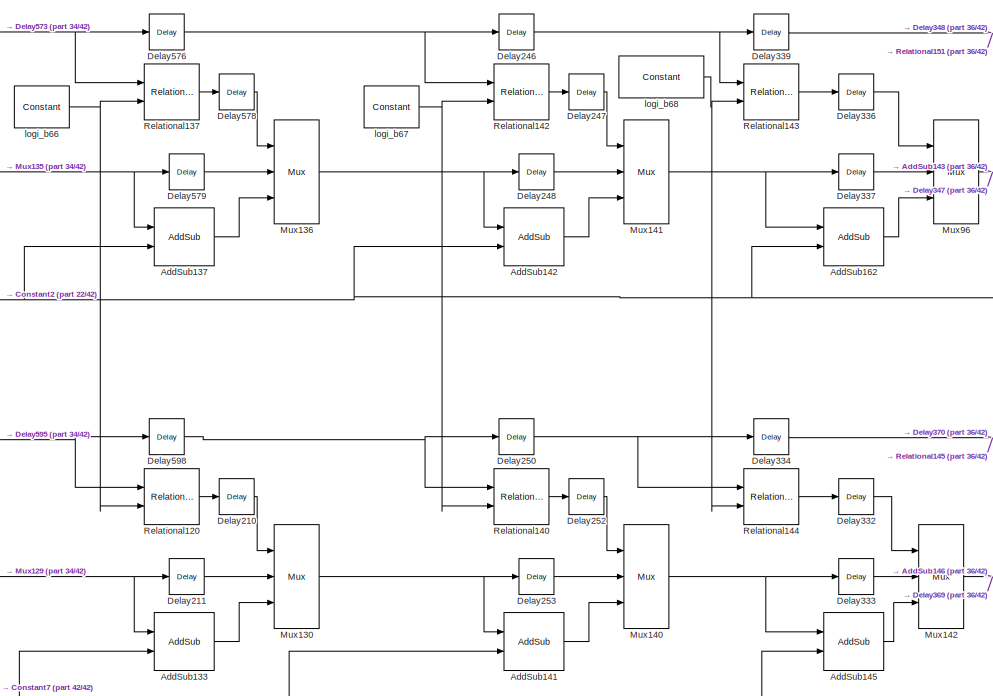
[diagram: Subsystem32bit - part 35/42, center side, full height]
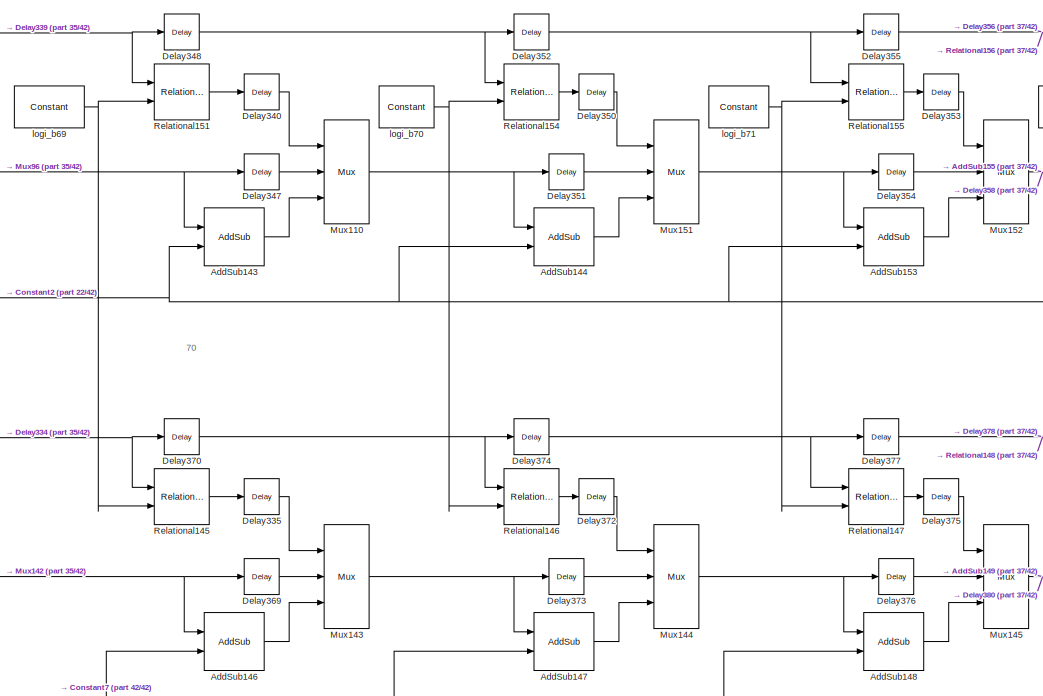
[diagram: Subsystem32bit - part 36/42, center side, full height]
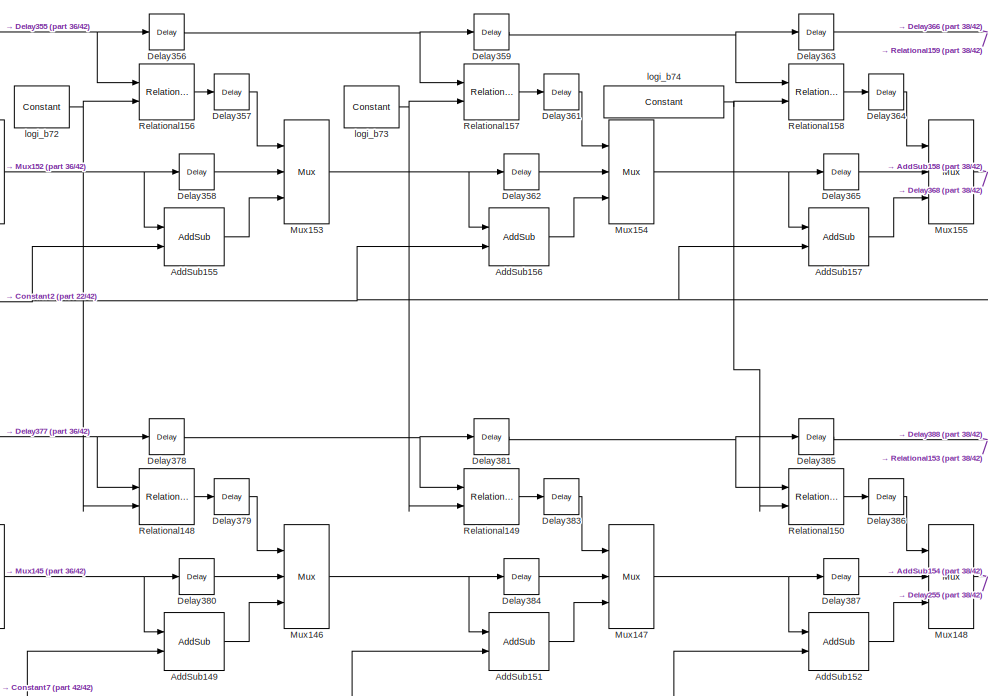
[diagram: Subsystem32bit - part 37/42, center side, full height]
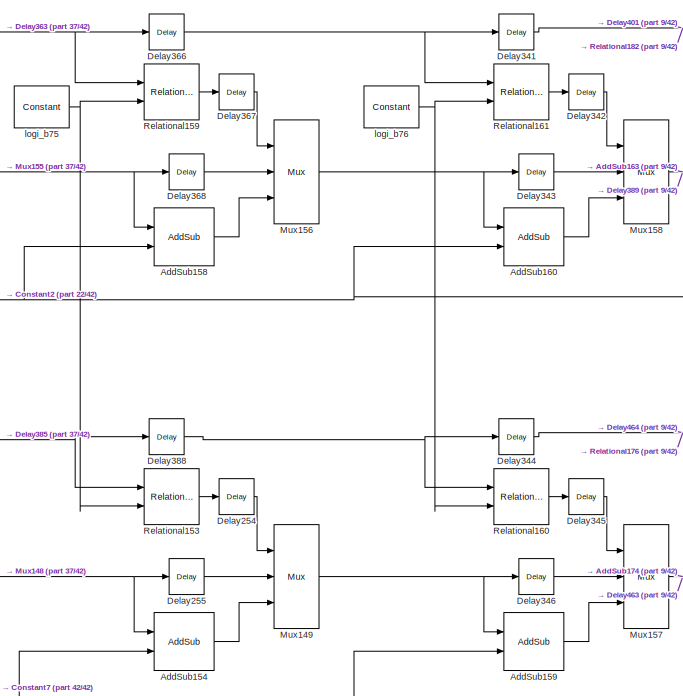
[diagram: Subsystem32bit - part 38/42, center side, full height]
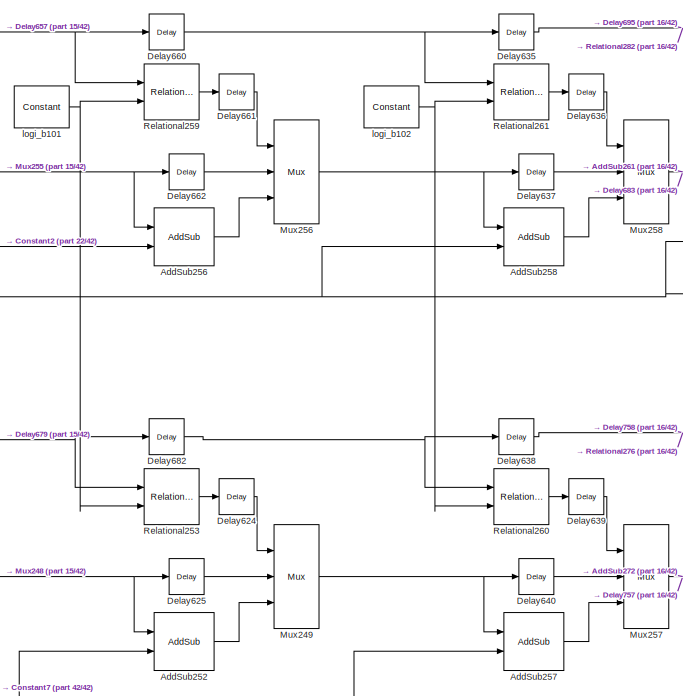
[diagram: Subsystem32bit - part 39/42, right side, full height]
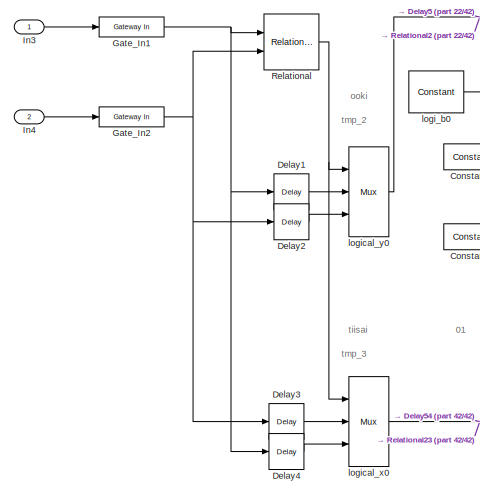
[diagram: Subsystem32bit - part 40/42, middle left region]
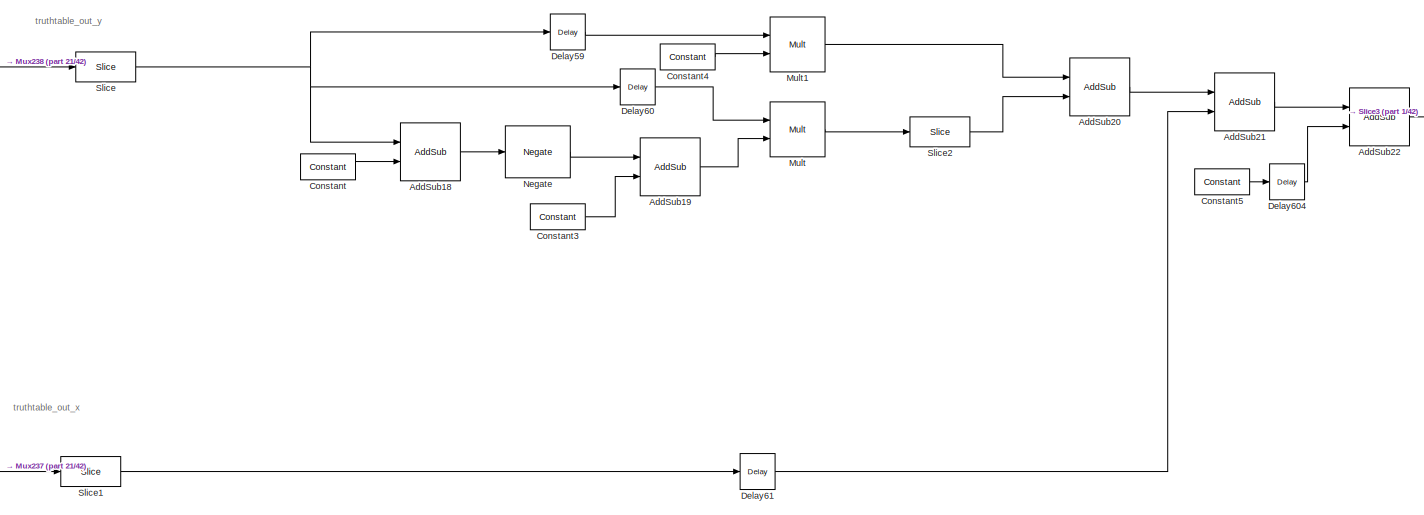
[diagram: Subsystem32bit - part 41/42, middle right region]
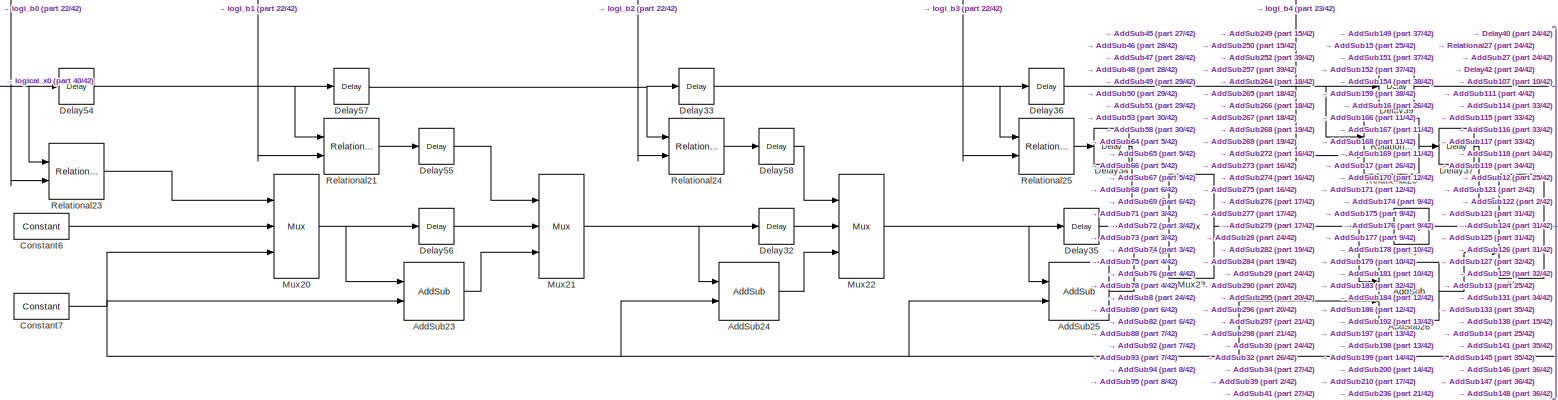
[diagram: Subsystem32bit - part 42/42, bottom left region]
BLOCK [SubSystem] Subsystem32bit
  Ports = [2, 1]
  RequestExecContextInheritance = off
BLOCK [Reference] Subsystem32bit/AddSub  REF=hdlBasic/AddSub
  Ports = [2, 1]
  SourceBlock = hdlBasic/AddSub
  SourceType = Adder/Subtracter Block
BLOCK [Reference] Subsystem32bit/AddSub1  REF=hdlBasic/AddSub
  Ports = [2, 1]
  SourceBlock = hdlBasic/AddSub
  SourceType = Adder/Subtracter Block
BLOCK [Reference] Subsystem32bit/AddSub10  REF=hdlBasic/AddSub
  Ports = [2, 1]
  SourceBlock = hdlBasic/AddSub
  SourceType = Adder/Subtracter Block
BLOCK [Reference] Subsystem32bit/AddSub100  REF=hdlBasic/AddSub
  Ports = [2, 1]
  SourceBlock = hdlBasic/AddSub
  SourceType = Adder/Subtracter Block
BLOCK [Reference] Subsystem32bit/AddSub101  REF=hdlBasic/AddSub
  Ports = [2, 1]
  SourceBlock = hdlBasic/AddSub
  SourceType = Adder/Subtracter Block
BLOCK [Reference] Subsystem32bit/AddSub102  REF=hdlBasic/AddSub
  Ports = [2, 1]
  SourceBlock = hdlBasic/AddSub
  SourceType = Adder/Subtracter Block
BLOCK [Reference] Subsystem32bit/AddSub103  REF=hdlBasic/AddSub
  Ports = [2, 1]
  SourceBlock = hdlBasic/AddSub
  SourceType = Adder/Subtracter Block
BLOCK [Reference] Subsystem32bit/AddSub104  REF=hdlBasic/AddSub
  Ports = [2, 1]
  SourceBlock = hdlBasic/AddSub
  SourceType = Adder/Subtracter Block
BLOCK [Reference] Subsystem32bit/AddSub105  REF=hdlBasic/AddSub
  Ports = [2, 1]
  SourceBlock = hdlBasic/AddSub
  SourceType = Adder/Subtracter Block
BLOCK [Reference] Subsystem32bit/AddSub106  REF=hdlBasic/AddSub
  Ports = [2, 1]
  SourceBlock = hdlBasic/AddSub
  SourceType = Adder/Subtracter Block
BLOCK [Reference] Subsystem32bit/AddSub107  REF=hdlBasic/AddSub
  Ports = [2, 1]
  SourceBlock = hdlBasic/AddSub
  SourceType = Adder/Subtracter Block
BLOCK [Reference] Subsystem32bit/AddSub108  REF=hdlBasic/AddSub
  Ports = [2, 1]
  SourceBlock = hdlBasic/AddSub
  SourceType = Adder/Subtracter Block
BLOCK [Reference] Subsystem32bit/AddSub109  REF=hdlBasic/AddSub
  Ports = [2, 1]
  SourceBlock = hdlBasic/AddSub
  SourceType = Adder/Subtracter Block
BLOCK [Reference] Subsystem32bit/AddSub11  REF=hdlBasic/AddSub
  Ports = [2, 1]
  SourceBlock = hdlBasic/AddSub
  SourceType = Adder/Subtracter Block
BLOCK [Reference] Subsystem32bit/AddSub110  REF=hdlBasic/AddSub
  Ports = [2, 1]
  SourceBlock = hdlBasic/AddSub
  SourceType = Adder/Subtracter Block
BLOCK [Reference] Subsystem32bit/AddSub111  REF=hdlBasic/AddSub
  Ports = [2, 1]
  SourceBlock = hdlBasic/AddSub
  SourceType = Adder/Subtracter Block
BLOCK [Reference] Subsystem32bit/AddSub112  REF=hdlBasic/AddSub
  Ports = [2, 1]
  SourceBlock = hdlBasic/AddSub
  SourceType = Adder/Subtracter Block
BLOCK [Reference] Subsystem32bit/AddSub113  REF=hdlBasic/AddSub
  Ports = [2, 1]
  SourceBlock = hdlBasic/AddSub
  SourceType = Adder/Subtracter Block
BLOCK [Reference] Subsystem32bit/AddSub114  REF=hdlBasic/AddSub
  Ports = [2, 1]
  SourceBlock = hdlBasic/AddSub
  SourceType = Adder/Subtracter Block
BLOCK [Reference] Subsystem32bit/AddSub115  REF=hdlBasic/AddSub
  Ports = [2, 1]
  SourceBlock = hdlBasic/AddSub
  SourceType = Adder/Subtracter Block
BLOCK [Reference] Subsystem32bit/AddSub116  REF=hdlBasic/AddSub
  Ports = [2, 1]
  SourceBlock = hdlBasic/AddSub
  SourceType = Adder/Subtracter Block
BLOCK [Reference] Subsystem32bit/AddSub117  REF=hdlBasic/AddSub
  Ports = [2, 1]
  SourceBlock = hdlBasic/AddSub
  SourceType = Adder/Subtracter Block
BLOCK [Reference] Subsystem32bit/AddSub118  REF=hdlBasic/AddSub
  Ports = [2, 1]
  SourceBlock = hdlBasic/AddSub
  SourceType = Adder/Subtracter Block
BLOCK [Reference] Subsystem32bit/AddSub119  REF=hdlBasic/AddSub
  Ports = [2, 1]
  SourceBlock = hdlBasic/AddSub
  SourceType = Adder/Subtracter Block
BLOCK [Reference] Subsystem32bit/AddSub12  REF=hdlBasic/AddSub
  Ports = [2, 1]
  SourceBlock = hdlBasic/AddSub
  SourceType = Adder/Subtracter Block
BLOCK [Reference] Subsystem32bit/AddSub120  REF=hdlBasic/AddSub
  Ports = [2, 1]
  SourceBlock = hdlBasic/AddSub
  SourceType = Adder/Subtracter Block
BLOCK [Reference] Subsystem32bit/AddSub121  REF=hdlBasic/AddSub
  Ports = [2, 1]
  SourceBlock = hdlBasic/AddSub
  SourceType = Adder/Subtracter Block
BLOCK [Reference] Subsystem32bit/AddSub122  REF=hdlBasic/AddSub
  Ports = [2, 1]
  SourceBlock = hdlBasic/AddSub
  SourceType = Adder/Subtracter Block
BLOCK [Reference] Subsystem32bit/AddSub123  REF=hdlBasic/AddSub
  Ports = [2, 1]
  SourceBlock = hdlBasic/AddSub
  SourceType = Adder/Subtracter Block
BLOCK [Reference] Subsystem32bit/AddSub124  REF=hdlBasic/AddSub
  Ports = [2, 1]
  SourceBlock = hdlBasic/AddSub
  SourceType = Adder/Subtracter Block
BLOCK [Reference] Subsystem32bit/AddSub125  REF=hdlBasic/AddSub
  Ports = [2, 1]
  SourceBlock = hdlBasic/AddSub
  SourceType = Adder/Subtracter Block
BLOCK [Reference] Subsystem32bit/AddSub126  REF=hdlBasic/AddSub
  Ports = [2, 1]
  SourceBlock = hdlBasic/AddSub
  SourceType = Adder/Subtracter Block
BLOCK [Reference] Subsystem32bit/AddSub127  REF=hdlBasic/AddSub
  Ports = [2, 1]
  SourceBlock = hdlBasic/AddSub
  SourceType = Adder/Subtracter Block
BLOCK [Reference] Subsystem32bit/AddSub128  REF=hdlBasic/AddSub
  Ports = [2, 1]
  SourceBlock = hdlBasic/AddSub
  SourceType = Adder/Subtracter Block
BLOCK [Reference] Subsystem32bit/AddSub129  REF=hdlBasic/AddSub
  Ports = [2, 1]
  SourceBlock = hdlBasic/AddSub
  SourceType = Adder/Subtracter Block
BLOCK [Reference] Subsystem32bit/AddSub13  REF=hdlBasic/AddSub
  Ports = [2, 1]
  SourceBlock = hdlBasic/AddSub
  SourceType = Adder/Subtracter Block
BLOCK [Reference] Subsystem32bit/AddSub130  REF=hdlBasic/AddSub
  Ports = [2, 1]
  SourceBlock = hdlBasic/AddSub
  SourceType = Adder/Subtracter Block
BLOCK [Reference] Subsystem32bit/AddSub131  REF=hdlBasic/AddSub
  Ports = [2, 1]
  SourceBlock = hdlBasic/AddSub
  SourceType = Adder/Subtracter Block
BLOCK [Reference] Subsystem32bit/AddSub132  REF=hdlBasic/AddSub
  Ports = [2, 1]
  SourceBlock = hdlBasic/AddSub
  SourceType = Adder/Subtracter Block
BLOCK [Reference] Subsystem32bit/AddSub133  REF=hdlBasic/AddSub
  Ports = [2, 1]
  SourceBlock = hdlBasic/AddSub
  SourceType = Adder/Subtracter Block
BLOCK [Reference] Subsystem32bit/AddSub134  REF=hdlBasic/AddSub
  Ports = [2, 1]
  SourceBlock = hdlBasic/AddSub
  SourceType = Adder/Subtracter Block
BLOCK [Reference] Subsystem32bit/AddSub135  REF=hdlBasic/AddSub
  Ports = [2, 1]
  SourceBlock = hdlBasic/AddSub
  SourceType = Adder/Subtracter Block
BLOCK [Reference] Subsystem32bit/AddSub136  REF=hdlBasic/AddSub
  Ports = [2, 1]
  SourceBlock = hdlBasic/AddSub
  SourceType = Adder/Subtracter Block
BLOCK [Reference] Subsystem32bit/AddSub137  REF=hdlBasic/AddSub
  Ports = [2, 1]
  SourceBlock = hdlBasic/AddSub
  SourceType = Adder/Subtracter Block
BLOCK [Reference] Subsystem32bit/AddSub138  REF=hdlBasic/AddSub
  Ports = [2, 1]
  SourceBlock = hdlBasic/AddSub
  SourceType = Adder/Subtracter Block
BLOCK [Reference] Subsystem32bit/AddSub139  REF=hdlBasic/AddSub
  Ports = [2, 1]
  SourceBlock = hdlBasic/AddSub
  SourceType = Adder/Subtracter Block
BLOCK [Reference] Subsystem32bit/AddSub14  REF=hdlBasic/AddSub
  Ports = [2, 1]
  SourceBlock = hdlBasic/AddSub
  SourceType = Adder/Subtracter Block
BLOCK [Reference] Subsystem32bit/AddSub140  REF=hdlBasic/AddSub
  Ports = [2, 1]
  SourceBlock = hdlBasic/AddSub
  SourceType = Adder/Subtracter Block
BLOCK [Reference] Subsystem32bit/AddSub141  REF=hdlBasic/AddSub
  Ports = [2, 1]
  SourceBlock = hdlBasic/AddSub
  SourceType = Adder/Subtracter Block
BLOCK [Reference] Subsystem32bit/AddSub142  REF=hdlBasic/AddSub
  Ports = [2, 1]
  SourceBlock = hdlBasic/AddSub
  SourceType = Adder/Subtracter Block
BLOCK [Reference] Subsystem32bit/AddSub143  REF=hdlBasic/AddSub
  Ports = [2, 1]
  SourceBlock = hdlBasic/AddSub
  SourceType = Adder/Subtracter Block
BLOCK [Reference] Subsystem32bit/AddSub144  REF=hdlBasic/AddSub
  Ports = [2, 1]
  SourceBlock = hdlBasic/AddSub
  SourceType = Adder/Subtracter Block
BLOCK [Reference] Subsystem32bit/AddSub145  REF=hdlBasic/AddSub
  Ports = [2, 1]
  SourceBlock = hdlBasic/AddSub
  SourceType = Adder/Subtracter Block
BLOCK [Reference] Subsystem32bit/AddSub146  REF=hdlBasic/AddSub
  Ports = [2, 1]
  SourceBlock = hdlBasic/AddSub
  SourceType = Adder/Subtracter Block
BLOCK [Reference] Subsystem32bit/AddSub147  REF=hdlBasic/AddSub
  Ports = [2, 1]
  SourceBlock = hdlBasic/AddSub
  SourceType = Adder/Subtracter Block
BLOCK [Reference] Subsystem32bit/AddSub148  REF=hdlBasic/AddSub
  Ports = [2, 1]
  SourceBlock = hdlBasic/AddSub
  SourceType = Adder/Subtracter Block
BLOCK [Reference] Subsystem32bit/AddSub149  REF=hdlBasic/AddSub
  Ports = [2, 1]
  SourceBlock = hdlBasic/AddSub
  SourceType = Adder/Subtracter Block
BLOCK [Reference] Subsystem32bit/AddSub15  REF=hdlBasic/AddSub
  Ports = [2, 1]
  SourceBlock = hdlBasic/AddSub
  SourceType = Adder/Subtracter Block
BLOCK [Reference] Subsystem32bit/AddSub150  REF=hdlBasic/AddSub
  Ports = [2, 1]
  SourceBlock = hdlBasic/AddSub
  SourceType = Adder/Subtracter Block
BLOCK [Reference] Subsystem32bit/AddSub151  REF=hdlBasic/AddSub
  Ports = [2, 1]
  SourceBlock = hdlBasic/AddSub
  SourceType = Adder/Subtracter Block
BLOCK [Reference] Subsystem32bit/AddSub152  REF=hdlBasic/AddSub
  Ports = [2, 1]
  SourceBlock = hdlBasic/AddSub
  SourceType = Adder/Subtracter Block
BLOCK [Reference] Subsystem32bit/AddSub153  REF=hdlBasic/AddSub
  Ports = [2, 1]
  SourceBlock = hdlBasic/AddSub
  SourceType = Adder/Subtracter Block
BLOCK [Reference] Subsystem32bit/AddSub154  REF=hdlBasic/AddSub
  Ports = [2, 1]
  SourceBlock = hdlBasic/AddSub
  SourceType = Adder/Subtracter Block
BLOCK [Reference] Subsystem32bit/AddSub155  REF=hdlBasic/AddSub
  Ports = [2, 1]
  SourceBlock = hdlBasic/AddSub
  SourceType = Adder/Subtracter Block
BLOCK [Reference] Subsystem32bit/AddSub156  REF=hdlBasic/AddSub
  Ports = [2, 1]
  SourceBlock = hdlBasic/AddSub
  SourceType = Adder/Subtracter Block
BLOCK [Reference] Subsystem32bit/AddSub157  REF=hdlBasic/AddSub
  Ports = [2, 1]
  SourceBlock = hdlBasic/AddSub
  SourceType = Adder/Subtracter Block
BLOCK [Reference] Subsystem32bit/AddSub158  REF=hdlBasic/AddSub
  Ports = [2, 1]
  SourceBlock = hdlBasic/AddSub
  SourceType = Adder/Subtracter Block
BLOCK [Reference] Subsystem32bit/AddSub159  REF=hdlBasic/AddSub
  Ports = [2, 1]
  SourceBlock = hdlBasic/AddSub
  SourceType = Adder/Subtracter Block
BLOCK [Reference] Subsystem32bit/AddSub16  REF=hdlBasic/AddSub
  Ports = [2, 1]
  SourceBlock = hdlBasic/AddSub
  SourceType = Adder/Subtracter Block
BLOCK [Reference] Subsystem32bit/AddSub160  REF=hdlBasic/AddSub
  Ports = [2, 1]
  SourceBlock = hdlBasic/AddSub
  SourceType = Adder/Subtracter Block
BLOCK [Reference] Subsystem32bit/AddSub161  REF=hdlBasic/AddSub
  Ports = [2, 1]
  SourceBlock = hdlBasic/AddSub
  SourceType = Adder/Subtracter Block
BLOCK [Reference] Subsystem32bit/AddSub162  REF=hdlBasic/AddSub
  Ports = [2, 1]
  SourceBlock = hdlBasic/AddSub
  SourceType = Adder/Subtracter Block
BLOCK [Reference] Subsystem32bit/AddSub163  REF=hdlBasic/AddSub
  Ports = [2, 1]
  SourceBlock = hdlBasic/AddSub
  SourceType = Adder/Subtracter Block
BLOCK [Reference] Subsystem32bit/AddSub164  REF=hdlBasic/AddSub
  Ports = [2, 1]
  SourceBlock = hdlBasic/AddSub
  SourceType = Adder/Subtracter Block
BLOCK [Reference] Subsystem32bit/AddSub165  REF=hdlBasic/AddSub
  Ports = [2, 1]
  SourceBlock = hdlBasic/AddSub
  SourceType = Adder/Subtracter Block
BLOCK [Reference] Subsystem32bit/AddSub166  REF=hdlBasic/AddSub
  Ports = [2, 1]
  SourceBlock = hdlBasic/AddSub
  SourceType = Adder/Subtracter Block
BLOCK [Reference] Subsystem32bit/AddSub167  REF=hdlBasic/AddSub
  Ports = [2, 1]
  SourceBlock = hdlBasic/AddSub
  SourceType = Adder/Subtracter Block
BLOCK [Reference] Subsystem32bit/AddSub168  REF=hdlBasic/AddSub
  Ports = [2, 1]
  SourceBlock = hdlBasic/AddSub
  SourceType = Adder/Subtracter Block
BLOCK [Reference] Subsystem32bit/AddSub169  REF=hdlBasic/AddSub
  Ports = [2, 1]
  SourceBlock = hdlBasic/AddSub
  SourceType = Adder/Subtracter Block
BLOCK [Reference] Subsystem32bit/AddSub17  REF=hdlBasic/AddSub
  Ports = [2, 1]
  SourceBlock = hdlBasic/AddSub
  SourceType = Adder/Subtracter Block
BLOCK [Reference] Subsystem32bit/AddSub170  REF=hdlBasic/AddSub
  Ports = [2, 1]
  SourceBlock = hdlBasic/AddSub
  SourceType = Adder/Subtracter Block
BLOCK [Reference] Subsystem32bit/AddSub171  REF=hdlBasic/AddSub
  Ports = [2, 1]
  SourceBlock = hdlBasic/AddSub
  SourceType = Adder/Subtracter Block
BLOCK [Reference] Subsystem32bit/AddSub172  REF=hdlBasic/AddSub
  Ports = [2, 1]
  SourceBlock = hdlBasic/AddSub
  SourceType = Adder/Subtracter Block
BLOCK [Reference] Subsystem32bit/AddSub173  REF=hdlBasic/AddSub
  Ports = [2, 1]
  SourceBlock = hdlBasic/AddSub
  SourceType = Adder/Subtracter Block
BLOCK [Reference] Subsystem32bit/AddSub174  REF=hdlBasic/AddSub
  Ports = [2, 1]
  SourceBlock = hdlBasic/AddSub
  SourceType = Adder/Subtracter Block
BLOCK [Reference] Subsystem32bit/AddSub175  REF=hdlBasic/AddSub
  Ports = [2, 1]
  SourceBlock = hdlBasic/AddSub
  SourceType = Adder/Subtracter Block
BLOCK [Reference] Subsystem32bit/AddSub176  REF=hdlBasic/AddSub
  Ports = [2, 1]
  SourceBlock = hdlBasic/AddSub
  SourceType = Adder/Subtracter Block
BLOCK [Reference] Subsystem32bit/AddSub177  REF=hdlBasic/AddSub
  Ports = [2, 1]
  SourceBlock = hdlBasic/AddSub
  SourceType = Adder/Subtracter Block
BLOCK [Reference] Subsystem32bit/AddSub178  REF=hdlBasic/AddSub
  Ports = [2, 1]
  SourceBlock = hdlBasic/AddSub
  SourceType = Adder/Subtracter Block
BLOCK [Reference] Subsystem32bit/AddSub179  REF=hdlBasic/AddSub
  Ports = [2, 1]
  SourceBlock = hdlBasic/AddSub
  SourceType = Adder/Subtracter Block
BLOCK [Reference] Subsystem32bit/AddSub18  REF=hdlBasic/AddSub
  Ports = [2, 1]
  SourceBlock = hdlBasic/AddSub
  SourceType = Adder/Subtracter Block
BLOCK [Reference] Subsystem32bit/AddSub180  REF=hdlBasic/AddSub
  Ports = [2, 1]
  SourceBlock = hdlBasic/AddSub
  SourceType = Adder/Subtracter Block
BLOCK [Reference] Subsystem32bit/AddSub181  REF=hdlBasic/AddSub
  Ports = [2, 1]
  SourceBlock = hdlBasic/AddSub
  SourceType = Adder/Subtracter Block
BLOCK [Reference] Subsystem32bit/AddSub182  REF=hdlBasic/AddSub
  Ports = [2, 1]
  SourceBlock = hdlBasic/AddSub
  SourceType = Adder/Subtracter Block
BLOCK [Reference] Subsystem32bit/AddSub183  REF=hdlBasic/AddSub
  Ports = [2, 1]
  SourceBlock = hdlBasic/AddSub
  SourceType = Adder/Subtracter Block
BLOCK [Reference] Subsystem32bit/AddSub184  REF=hdlBasic/AddSub
  Ports = [2, 1]
  SourceBlock = hdlBasic/AddSub
  SourceType = Adder/Subtracter Block
BLOCK [Reference] Subsystem32bit/AddSub185  REF=hdlBasic/AddSub
  Ports = [2, 1]
  SourceBlock = hdlBasic/AddSub
  SourceType = Adder/Subtracter Block
BLOCK [Reference] Subsystem32bit/AddSub186  REF=hdlBasic/AddSub
  Ports = [2, 1]
  SourceBlock = hdlBasic/AddSub
  SourceType = Adder/Subtracter Block
BLOCK [Reference] Subsystem32bit/AddSub187  REF=hdlBasic/AddSub
  Ports = [2, 1]
  SourceBlock = hdlBasic/AddSub
  SourceType = Adder/Subtracter Block
BLOCK [Reference] Subsystem32bit/AddSub188  REF=hdlBasic/AddSub
  Ports = [2, 1]
  SourceBlock = hdlBasic/AddSub
  SourceType = Adder/Subtracter Block
BLOCK [Reference] Subsystem32bit/AddSub189  REF=hdlBasic/AddSub
  Ports = [2, 1]
  SourceBlock = hdlBasic/AddSub
  SourceType = Adder/Subtracter Block
BLOCK [Reference] Subsystem32bit/AddSub19  REF=hdlBasic/AddSub
  Ports = [2, 1]
  SourceBlock = hdlBasic/AddSub
  SourceType = Adder/Subtracter Block
BLOCK [Reference] Subsystem32bit/AddSub190  REF=hdlBasic/AddSub
  Ports = [2, 1]
  SourceBlock = hdlBasic/AddSub
  SourceType = Adder/Subtracter Block
BLOCK [Reference] Subsystem32bit/AddSub191  REF=hdlBasic/AddSub
  Ports = [2, 1]
  SourceBlock = hdlBasic/AddSub
  SourceType = Adder/Subtracter Block
BLOCK [Reference] Subsystem32bit/AddSub192  REF=hdlBasic/AddSub
  Ports = [2, 1]
  SourceBlock = hdlBasic/AddSub
  SourceType = Adder/Subtracter Block
BLOCK [Reference] Subsystem32bit/AddSub193  REF=hdlBasic/AddSub
  Ports = [2, 1]
  SourceBlock = hdlBasic/AddSub
  SourceType = Adder/Subtracter Block
BLOCK [Reference] Subsystem32bit/AddSub194  REF=hdlBasic/AddSub
  Ports = [2, 1]
  SourceBlock = hdlBasic/AddSub
  SourceType = Adder/Subtracter Block
BLOCK [Reference] Subsystem32bit/AddSub195  REF=hdlBasic/AddSub
  Ports = [2, 1]
  SourceBlock = hdlBasic/AddSub
  SourceType = Adder/Subtracter Block
BLOCK [Reference] Subsystem32bit/AddSub196  REF=hdlBasic/AddSub
  Ports = [2, 1]
  SourceBlock = hdlBasic/AddSub
  SourceType = Adder/Subtracter Block
BLOCK [Reference] Subsystem32bit/AddSub197  REF=hdlBasic/AddSub
  Ports = [2, 1]
  SourceBlock = hdlBasic/AddSub
  SourceType = Adder/Subtracter Block
BLOCK [Reference] Subsystem32bit/AddSub198  REF=hdlBasic/AddSub
  Ports = [2, 1]
  SourceBlock = hdlBasic/AddSub
  SourceType = Adder/Subtracter Block
BLOCK [Reference] Subsystem32bit/AddSub199  REF=hdlBasic/AddSub
  Ports = [2, 1]
  SourceBlock = hdlBasic/AddSub
  SourceType = Adder/Subtracter Block
BLOCK [Reference] Subsystem32bit/AddSub2  REF=hdlBasic/AddSub
  Ports = [2, 1]
  SourceBlock = hdlBasic/AddSub
  SourceType = Adder/Subtracter Block
BLOCK [Reference] Subsystem32bit/AddSub20  REF=hdlBasic/AddSub
  Ports = [2, 1]
  SourceBlock = hdlBasic/AddSub
  SourceType = Adder/Subtracter Block
BLOCK [Reference] Subsystem32bit/AddSub200  REF=hdlBasic/AddSub
  Ports = [2, 1]
  SourceBlock = hdlBasic/AddSub
  SourceType = Adder/Subtracter Block
BLOCK [Reference] Subsystem32bit/AddSub201  REF=hdlBasic/AddSub
  Ports = [2, 1]
  SourceBlock = hdlBasic/AddSub
  SourceType = Adder/Subtracter Block
BLOCK [Reference] Subsystem32bit/AddSub205  REF=hdlBasic/AddSub
  Ports = [2, 1]
  SourceBlock = hdlBasic/AddSub
  SourceType = Adder/Subtracter Block
BLOCK [Reference] Subsystem32bit/AddSub206  REF=hdlBasic/AddSub
  Ports = [2, 1]
  SourceBlock = hdlBasic/AddSub
  SourceType = Adder/Subtracter Block
BLOCK [Reference] Subsystem32bit/AddSub207  REF=hdlBasic/AddSub
  Ports = [2, 1]
  SourceBlock = hdlBasic/AddSub
  SourceType = Adder/Subtracter Block
BLOCK [Reference] Subsystem32bit/AddSub209  REF=hdlBasic/AddSub
  Ports = [2, 1]
  SourceBlock = hdlBasic/AddSub
  SourceType = Adder/Subtracter Block
BLOCK [Reference] Subsystem32bit/AddSub21  REF=hdlBasic/AddSub
  Ports = [2, 1]
  SourceBlock = hdlBasic/AddSub
  SourceType = Adder/Subtracter Block
BLOCK [Reference] Subsystem32bit/AddSub210  REF=hdlBasic/AddSub
  Ports = [2, 1]
  SourceBlock = hdlBasic/AddSub
  SourceType = Adder/Subtracter Block
BLOCK [Reference] Subsystem32bit/AddSub211  REF=hdlBasic/AddSub
  Ports = [2, 1]
  SourceBlock = hdlBasic/AddSub
  SourceType = Adder/Subtracter Block
BLOCK [Reference] Subsystem32bit/AddSub22  REF=hdlBasic/AddSub
  Ports = [2, 1]
  SourceBlock = hdlBasic/AddSub
  SourceType = Adder/Subtracter Block
BLOCK [Reference] Subsystem32bit/AddSub23  REF=hdlBasic/AddSub
  Ports = [2, 1]
  SourceBlock = hdlBasic/AddSub
  SourceType = Adder/Subtracter Block
BLOCK [Reference] Subsystem32bit/AddSub236  REF=hdlBasic/AddSub
  Ports = [2, 1]
  SourceBlock = hdlBasic/AddSub
  SourceType = Adder/Subtracter Block
BLOCK [Reference] Subsystem32bit/AddSub238  REF=hdlBasic/AddSub
  Ports = [2, 1]
  SourceBlock = hdlBasic/AddSub
  SourceType = Adder/Subtracter Block
BLOCK [Reference] Subsystem32bit/AddSub24  REF=hdlBasic/AddSub
  Ports = [2, 1]
  SourceBlock = hdlBasic/AddSub
  SourceType = Adder/Subtracter Block
BLOCK [Reference] Subsystem32bit/AddSub249  REF=hdlBasic/AddSub
  Ports = [2, 1]
  SourceBlock = hdlBasic/AddSub
  SourceType = Adder/Subtracter Block
BLOCK [Reference] Subsystem32bit/AddSub25  REF=hdlBasic/AddSub
  Ports = [2, 1]
  SourceBlock = hdlBasic/AddSub
  SourceType = Adder/Subtracter Block
BLOCK [Reference] Subsystem32bit/AddSub250  REF=hdlBasic/AddSub
  Ports = [2, 1]
  SourceBlock = hdlBasic/AddSub
  SourceType = Adder/Subtracter Block
BLOCK [Reference] Subsystem32bit/AddSub252  REF=hdlBasic/AddSub
  Ports = [2, 1]
  SourceBlock = hdlBasic/AddSub
  SourceType = Adder/Subtracter Block
BLOCK [Reference] Subsystem32bit/AddSub254  REF=hdlBasic/AddSub
  Ports = [2, 1]
  SourceBlock = hdlBasic/AddSub
  SourceType = Adder/Subtracter Block
BLOCK [Reference] Subsystem32bit/AddSub255  REF=hdlBasic/AddSub
  Ports = [2, 1]
  SourceBlock = hdlBasic/AddSub
  SourceType = Adder/Subtracter Block
BLOCK [Reference] Subsystem32bit/AddSub256  REF=hdlBasic/AddSub
  Ports = [2, 1]
  SourceBlock = hdlBasic/AddSub
  SourceType = Adder/Subtracter Block
BLOCK [Reference] Subsystem32bit/AddSub257  REF=hdlBasic/AddSub
  Ports = [2, 1]
  SourceBlock = hdlBasic/AddSub
  SourceType = Adder/Subtracter Block
BLOCK [Reference] Subsystem32bit/AddSub258  REF=hdlBasic/AddSub
  Ports = [2, 1]
  SourceBlock = hdlBasic/AddSub
  SourceType = Adder/Subtracter Block
BLOCK [Reference] Subsystem32bit/AddSub26  REF=hdlBasic/AddSub
  Ports = [2, 1]
  SourceBlock = hdlBasic/AddSub
  SourceType = Adder/Subtracter Block
BLOCK [Reference] Subsystem32bit/AddSub261  REF=hdlBasic/AddSub
  Ports = [2, 1]
  SourceBlock = hdlBasic/AddSub
  SourceType = Adder/Subtracter Block
BLOCK [Reference] Subsystem32bit/AddSub262  REF=hdlBasic/AddSub
  Ports = [2, 1]
  SourceBlock = hdlBasic/AddSub
  SourceType = Adder/Subtracter Block
BLOCK [Reference] Subsystem32bit/AddSub263  REF=hdlBasic/AddSub
  Ports = [2, 1]
  SourceBlock = hdlBasic/AddSub
  SourceType = Adder/Subtracter Block
BLOCK [Reference] Subsystem32bit/AddSub264  REF=hdlBasic/AddSub
  Ports = [2, 1]
  SourceBlock = hdlBasic/AddSub
  SourceType = Adder/Subtracter Block
BLOCK [Reference] Subsystem32bit/AddSub265  REF=hdlBasic/AddSub
  Ports = [2, 1]
  SourceBlock = hdlBasic/AddSub
  SourceType = Adder/Subtracter Block
BLOCK [Reference] Subsystem32bit/AddSub266  REF=hdlBasic/AddSub
  Ports = [2, 1]
  SourceBlock = hdlBasic/AddSub
  SourceType = Adder/Subtracter Block
BLOCK [Reference] Subsystem32bit/AddSub267  REF=hdlBasic/AddSub
  Ports = [2, 1]
  SourceBlock = hdlBasic/AddSub
  SourceType = Adder/Subtracter Block
BLOCK [Reference] Subsystem32bit/AddSub268  REF=hdlBasic/AddSub
  Ports = [2, 1]
  SourceBlock = hdlBasic/AddSub
  SourceType = Adder/Subtracter Block
BLOCK [Reference] Subsystem32bit/AddSub269  REF=hdlBasic/AddSub
  Ports = [2, 1]
  SourceBlock = hdlBasic/AddSub
  SourceType = Adder/Subtracter Block
BLOCK [Reference] Subsystem32bit/AddSub27  REF=hdlBasic/AddSub
  Ports = [2, 1]
  SourceBlock = hdlBasic/AddSub
  SourceType = Adder/Subtracter Block
BLOCK [Reference] Subsystem32bit/AddSub271  REF=hdlBasic/AddSub
  Ports = [2, 1]
  SourceBlock = hdlBasic/AddSub
  SourceType = Adder/Subtracter Block
BLOCK [Reference] Subsystem32bit/AddSub272  REF=hdlBasic/AddSub
  Ports = [2, 1]
  SourceBlock = hdlBasic/AddSub
  SourceType = Adder/Subtracter Block
BLOCK [Reference] Subsystem32bit/AddSub273  REF=hdlBasic/AddSub
  Ports = [2, 1]
  SourceBlock = hdlBasic/AddSub
  SourceType = Adder/Subtracter Block
BLOCK [Reference] Subsystem32bit/AddSub274  REF=hdlBasic/AddSub
  Ports = [2, 1]
  SourceBlock = hdlBasic/AddSub
  SourceType = Adder/Subtracter Block
BLOCK [Reference] Subsystem32bit/AddSub275  REF=hdlBasic/AddSub
  Ports = [2, 1]
  SourceBlock = hdlBasic/AddSub
  SourceType = Adder/Subtracter Block
BLOCK [Reference] Subsystem32bit/AddSub276  REF=hdlBasic/AddSub
  Ports = [2, 1]
  SourceBlock = hdlBasic/AddSub
  SourceType = Adder/Subtracter Block
BLOCK [Reference] Subsystem32bit/AddSub277  REF=hdlBasic/AddSub
  Ports = [2, 1]
  SourceBlock = hdlBasic/AddSub
  SourceType = Adder/Subtracter Block
BLOCK [Reference] Subsystem32bit/AddSub278  REF=hdlBasic/AddSub
  Ports = [2, 1]
  SourceBlock = hdlBasic/AddSub
  SourceType = Adder/Subtracter Block
BLOCK [Reference] Subsystem32bit/AddSub279  REF=hdlBasic/AddSub
  Ports = [2, 1]
  SourceBlock = hdlBasic/AddSub
  SourceType = Adder/Subtracter Block
BLOCK [Reference] Subsystem32bit/AddSub28  REF=hdlBasic/AddSub
  Ports = [2, 1]
  SourceBlock = hdlBasic/AddSub
  SourceType = Adder/Subtracter Block
BLOCK [Reference] Subsystem32bit/AddSub280  REF=hdlBasic/AddSub
  Ports = [2, 1]
  SourceBlock = hdlBasic/AddSub
  SourceType = Adder/Subtracter Block
BLOCK [Reference] Subsystem32bit/AddSub282  REF=hdlBasic/AddSub
  Ports = [2, 1]
  SourceBlock = hdlBasic/AddSub
  SourceType = Adder/Subtracter Block
BLOCK [Reference] Subsystem32bit/AddSub283  REF=hdlBasic/AddSub
  Ports = [2, 1]
  SourceBlock = hdlBasic/AddSub
  SourceType = Adder/Subtracter Block
BLOCK [Reference] Subsystem32bit/AddSub284  REF=hdlBasic/AddSub
  Ports = [2, 1]
  SourceBlock = hdlBasic/AddSub
  SourceType = Adder/Subtracter Block
BLOCK [Reference] Subsystem32bit/AddSub285  REF=hdlBasic/AddSub
  Ports = [2, 1]
  SourceBlock = hdlBasic/AddSub
  SourceType = Adder/Subtracter Block
BLOCK [Reference] Subsystem32bit/AddSub286  REF=hdlBasic/AddSub
  Ports = [2, 1]
  SourceBlock = hdlBasic/AddSub
  SourceType = Adder/Subtracter Block
BLOCK [Reference] Subsystem32bit/AddSub287  REF=hdlBasic/AddSub
  Ports = [2, 1]
  SourceBlock = hdlBasic/AddSub
  SourceType = Adder/Subtracter Block
BLOCK [Reference] Subsystem32bit/AddSub288  REF=hdlBasic/AddSub
  Ports = [2, 1]
  SourceBlock = hdlBasic/AddSub
  SourceType = Adder/Subtracter Block
BLOCK [Reference] Subsystem32bit/AddSub289  REF=hdlBasic/AddSub
  Ports = [2, 1]
  SourceBlock = hdlBasic/AddSub
  SourceType = Adder/Subtracter Block
BLOCK [Reference] Subsystem32bit/AddSub29  REF=hdlBasic/AddSub
  Ports = [2, 1]
  SourceBlock = hdlBasic/AddSub
  SourceType = Adder/Subtracter Block
BLOCK [Reference] Subsystem32bit/AddSub290  REF=hdlBasic/AddSub
  Ports = [2, 1]
  SourceBlock = hdlBasic/AddSub
  SourceType = Adder/Subtracter Block
BLOCK [Reference] Subsystem32bit/AddSub291  REF=hdlBasic/AddSub
  Ports = [2, 1]
  SourceBlock = hdlBasic/AddSub
  SourceType = Adder/Subtracter Block
BLOCK [Reference] Subsystem32bit/AddSub293  REF=hdlBasic/AddSub
  Ports = [2, 1]
  SourceBlock = hdlBasic/AddSub
  SourceType = Adder/Subtracter Block
BLOCK [Reference] Subsystem32bit/AddSub294  REF=hdlBasic/AddSub
  Ports = [2, 1]
  SourceBlock = hdlBasic/AddSub
  SourceType = Adder/Subtracter Block
BLOCK [Reference] Subsystem32bit/AddSub295  REF=hdlBasic/AddSub
  Ports = [2, 1]
  SourceBlock = hdlBasic/AddSub
  SourceType = Adder/Subtracter Block
BLOCK [Reference] Subsystem32bit/AddSub296  REF=hdlBasic/AddSub
  Ports = [2, 1]
  SourceBlock = hdlBasic/AddSub
  SourceType = Adder/Subtracter Block
BLOCK [Reference] Subsystem32bit/AddSub297  REF=hdlBasic/AddSub
  Ports = [2, 1]
  SourceBlock = hdlBasic/AddSub
  SourceType = Adder/Subtracter Block
BLOCK [Reference] Subsystem32bit/AddSub298  REF=hdlBasic/AddSub
  Ports = [2, 1]
  SourceBlock = hdlBasic/AddSub
  SourceType = Adder/Subtracter Block
BLOCK [Reference] Subsystem32bit/AddSub299  REF=hdlBasic/AddSub
  Ports = [2, 1]
  SourceBlock = hdlBasic/AddSub
  SourceType = Adder/Subtracter Block
BLOCK [Reference] Subsystem32bit/AddSub3  REF=hdlBasic/AddSub
  Ports = [2, 1]
  SourceBlock = hdlBasic/AddSub
  SourceType = Adder/Subtracter Block
BLOCK [Reference] Subsystem32bit/AddSub30  REF=hdlBasic/AddSub
  Ports = [2, 1]
  SourceBlock = hdlBasic/AddSub
  SourceType = Adder/Subtracter Block
BLOCK [Reference] Subsystem32bit/AddSub31  REF=hdlBasic/AddSub
  Ports = [2, 1]
  SourceBlock = hdlBasic/AddSub
  SourceType = Adder/Subtracter Block
BLOCK [Reference] Subsystem32bit/AddSub32  REF=hdlBasic/AddSub
  Ports = [2, 1]
  SourceBlock = hdlBasic/AddSub
  SourceType = Adder/Subtracter Block
BLOCK [Reference] Subsystem32bit/AddSub33  REF=hdlBasic/AddSub
  Ports = [2, 1]
  SourceBlock = hdlBasic/AddSub
  SourceType = Adder/Subtracter Block
BLOCK [Reference] Subsystem32bit/AddSub34  REF=hdlBasic/AddSub
  Ports = [2, 1]
  SourceBlock = hdlBasic/AddSub
  SourceType = Adder/Subtracter Block
BLOCK [Reference] Subsystem32bit/AddSub35  REF=hdlBasic/AddSub
  Ports = [2, 1]
  SourceBlock = hdlBasic/AddSub
  SourceType = Adder/Subtracter Block
BLOCK [Reference] Subsystem32bit/AddSub36  REF=hdlBasic/AddSub
  Ports = [2, 1]
  SourceBlock = hdlBasic/AddSub
  SourceType = Adder/Subtracter Block
BLOCK [Reference] Subsystem32bit/AddSub37  REF=hdlBasic/AddSub
  Ports = [2, 1]
  SourceBlock = hdlBasic/AddSub
  SourceType = Adder/Subtracter Block
BLOCK [Reference] Subsystem32bit/AddSub38  REF=hdlBasic/AddSub
  Ports = [2, 1]
  SourceBlock = hdlBasic/AddSub
  SourceType = Adder/Subtracter Block
BLOCK [Reference] Subsystem32bit/AddSub39  REF=hdlBasic/AddSub
  Ports = [2, 1]
  SourceBlock = hdlBasic/AddSub
  SourceType = Adder/Subtracter Block
BLOCK [Reference] Subsystem32bit/AddSub4  REF=hdlBasic/AddSub
  Ports = [2, 1]
  SourceBlock = hdlBasic/AddSub
  SourceType = Adder/Subtracter Block
BLOCK [Reference] Subsystem32bit/AddSub40  REF=hdlBasic/AddSub
  Ports = [2, 1]
  SourceBlock = hdlBasic/AddSub
  SourceType = Adder/Subtracter Block
BLOCK [Reference] Subsystem32bit/AddSub41  REF=hdlBasic/AddSub
  Ports = [2, 1]
  SourceBlock = hdlBasic/AddSub
  SourceType = Adder/Subtracter Block
BLOCK [Reference] Subsystem32bit/AddSub42  REF=hdlBasic/AddSub
  Ports = [2, 1]
  SourceBlock = hdlBasic/AddSub
  SourceType = Adder/Subtracter Block
BLOCK [Reference] Subsystem32bit/AddSub43  REF=hdlBasic/AddSub
  Ports = [2, 1]
  SourceBlock = hdlBasic/AddSub
  SourceType = Adder/Subtracter Block
BLOCK [Reference] Subsystem32bit/AddSub44  REF=hdlBasic/AddSub
  Ports = [2, 1]
  SourceBlock = hdlBasic/AddSub
  SourceType = Adder/Subtracter Block
BLOCK [Reference] Subsystem32bit/AddSub45  REF=hdlBasic/AddSub
  Ports = [2, 1]
  SourceBlock = hdlBasic/AddSub
  SourceType = Adder/Subtracter Block
BLOCK [Reference] Subsystem32bit/AddSub46  REF=hdlBasic/AddSub
  Ports = [2, 1]
  SourceBlock = hdlBasic/AddSub
  SourceType = Adder/Subtracter Block
BLOCK [Reference] Subsystem32bit/AddSub47  REF=hdlBasic/AddSub
  Ports = [2, 1]
  SourceBlock = hdlBasic/AddSub
  SourceType = Adder/Subtracter Block
BLOCK [Reference] Subsystem32bit/AddSub48  REF=hdlBasic/AddSub
  Ports = [2, 1]
  SourceBlock = hdlBasic/AddSub
  SourceType = Adder/Subtracter Block
BLOCK [Reference] Subsystem32bit/AddSub49  REF=hdlBasic/AddSub
  Ports = [2, 1]
  SourceBlock = hdlBasic/AddSub
  SourceType = Adder/Subtracter Block
BLOCK [Reference] Subsystem32bit/AddSub5  REF=hdlBasic/AddSub
  Ports = [2, 1]
  SourceBlock = hdlBasic/AddSub
  SourceType = Adder/Subtracter Block
BLOCK [Reference] Subsystem32bit/AddSub50  REF=hdlBasic/AddSub
  Ports = [2, 1]
  SourceBlock = hdlBasic/AddSub
  SourceType = Adder/Subtracter Block
BLOCK [Reference] Subsystem32bit/AddSub51  REF=hdlBasic/AddSub
  Ports = [2, 1]
  SourceBlock = hdlBasic/AddSub
  SourceType = Adder/Subtracter Block
BLOCK [Reference] Subsystem32bit/AddSub52  REF=hdlBasic/AddSub
  Ports = [2, 1]
  SourceBlock = hdlBasic/AddSub
  SourceType = Adder/Subtracter Block
BLOCK [Reference] Subsystem32bit/AddSub53  REF=hdlBasic/AddSub
  Ports = [2, 1]
  SourceBlock = hdlBasic/AddSub
  SourceType = Adder/Subtracter Block
BLOCK [Reference] Subsystem32bit/AddSub54  REF=hdlBasic/AddSub
  Ports = [2, 1]
  SourceBlock = hdlBasic/AddSub
  SourceType = Adder/Subtracter Block
BLOCK [Reference] Subsystem32bit/AddSub55  REF=hdlBasic/AddSub
  Ports = [2, 1]
  SourceBlock = hdlBasic/AddSub
  SourceType = Adder/Subtracter Block
BLOCK [Reference] Subsystem32bit/AddSub56  REF=hdlBasic/AddSub
  Ports = [2, 1]
  SourceBlock = hdlBasic/AddSub
  SourceType = Adder/Subtracter Block
BLOCK [Reference] Subsystem32bit/AddSub57  REF=hdlBasic/AddSub
  Ports = [2, 1]
  SourceBlock = hdlBasic/AddSub
  SourceType = Adder/Subtracter Block
BLOCK [Reference] Subsystem32bit/AddSub58  REF=hdlBasic/AddSub
  Ports = [2, 1]
  SourceBlock = hdlBasic/AddSub
  SourceType = Adder/Subtracter Block
BLOCK [Reference] Subsystem32bit/AddSub59  REF=hdlBasic/AddSub
  Ports = [2, 1]
  SourceBlock = hdlBasic/AddSub
  SourceType = Adder/Subtracter Block
BLOCK [Reference] Subsystem32bit/AddSub6  REF=hdlBasic/AddSub
  Ports = [2, 1]
  SourceBlock = hdlBasic/AddSub
  SourceType = Adder/Subtracter Block
BLOCK [Reference] Subsystem32bit/AddSub60  REF=hdlBasic/AddSub
  Ports = [2, 1]
  SourceBlock = hdlBasic/AddSub
  SourceType = Adder/Subtracter Block
BLOCK [Reference] Subsystem32bit/AddSub61  REF=hdlBasic/AddSub
  Ports = [2, 1]
  SourceBlock = hdlBasic/AddSub
  SourceType = Adder/Subtracter Block
BLOCK [Reference] Subsystem32bit/AddSub62  REF=hdlBasic/AddSub
  Ports = [2, 1]
  SourceBlock = hdlBasic/AddSub
  SourceType = Adder/Subtracter Block
BLOCK [Reference] Subsystem32bit/AddSub63  REF=hdlBasic/AddSub
  Ports = [2, 1]
  SourceBlock = hdlBasic/AddSub
  SourceType = Adder/Subtracter Block
BLOCK [Reference] Subsystem32bit/AddSub64  REF=hdlBasic/AddSub
  Ports = [2, 1]
  SourceBlock = hdlBasic/AddSub
  SourceType = Adder/Subtracter Block
BLOCK [Reference] Subsystem32bit/AddSub65  REF=hdlBasic/AddSub
  Ports = [2, 1]
  SourceBlock = hdlBasic/AddSub
  SourceType = Adder/Subtracter Block
BLOCK [Reference] Subsystem32bit/AddSub66  REF=hdlBasic/AddSub
  Ports = [2, 1]
  SourceBlock = hdlBasic/AddSub
  SourceType = Adder/Subtracter Block
BLOCK [Reference] Subsystem32bit/AddSub67  REF=hdlBasic/AddSub
  Ports = [2, 1]
  SourceBlock = hdlBasic/AddSub
  SourceType = Adder/Subtracter Block
BLOCK [Reference] Subsystem32bit/AddSub68  REF=hdlBasic/AddSub
  Ports = [2, 1]
  SourceBlock = hdlBasic/AddSub
  SourceType = Adder/Subtracter Block
BLOCK [Reference] Subsystem32bit/AddSub69  REF=hdlBasic/AddSub
  Ports = [2, 1]
  SourceBlock = hdlBasic/AddSub
  SourceType = Adder/Subtracter Block
BLOCK [Reference] Subsystem32bit/AddSub7  REF=hdlBasic/AddSub
  Ports = [2, 1]
  SourceBlock = hdlBasic/AddSub
  SourceType = Adder/Subtracter Block
BLOCK [Reference] Subsystem32bit/AddSub70  REF=hdlBasic/AddSub
  Ports = [2, 1]
  SourceBlock = hdlBasic/AddSub
  SourceType = Adder/Subtracter Block
BLOCK [Reference] Subsystem32bit/AddSub71  REF=hdlBasic/AddSub
  Ports = [2, 1]
  SourceBlock = hdlBasic/AddSub
  SourceType = Adder/Subtracter Block
BLOCK [Reference] Subsystem32bit/AddSub72  REF=hdlBasic/AddSub
  Ports = [2, 1]
  SourceBlock = hdlBasic/AddSub
  SourceType = Adder/Subtracter Block
BLOCK [Reference] Subsystem32bit/AddSub73  REF=hdlBasic/AddSub
  Ports = [2, 1]
  SourceBlock = hdlBasic/AddSub
  SourceType = Adder/Subtracter Block
BLOCK [Reference] Subsystem32bit/AddSub74  REF=hdlBasic/AddSub
  Ports = [2, 1]
  SourceBlock = hdlBasic/AddSub
  SourceType = Adder/Subtracter Block
BLOCK [Reference] Subsystem32bit/AddSub75  REF=hdlBasic/AddSub
  Ports = [2, 1]
  SourceBlock = hdlBasic/AddSub
  SourceType = Adder/Subtracter Block
BLOCK [Reference] Subsystem32bit/AddSub76  REF=hdlBasic/AddSub
  Ports = [2, 1]
  SourceBlock = hdlBasic/AddSub
  SourceType = Adder/Subtracter Block
BLOCK [Reference] Subsystem32bit/AddSub77  REF=hdlBasic/AddSub
  Ports = [2, 1]
  SourceBlock = hdlBasic/AddSub
  SourceType = Adder/Subtracter Block
BLOCK [Reference] Subsystem32bit/AddSub78  REF=hdlBasic/AddSub
  Ports = [2, 1]
  SourceBlock = hdlBasic/AddSub
  SourceType = Adder/Subtracter Block
BLOCK [Reference] Subsystem32bit/AddSub79  REF=hdlBasic/AddSub
  Ports = [2, 1]
  SourceBlock = hdlBasic/AddSub
  SourceType = Adder/Subtracter Block
BLOCK [Reference] Subsystem32bit/AddSub8  REF=hdlBasic/AddSub
  Ports = [2, 1]
  SourceBlock = hdlBasic/AddSub
  SourceType = Adder/Subtracter Block
BLOCK [Reference] Subsystem32bit/AddSub80  REF=hdlBasic/AddSub
  Ports = [2, 1]
  SourceBlock = hdlBasic/AddSub
  SourceType = Adder/Subtracter Block
BLOCK [Reference] Subsystem32bit/AddSub81  REF=hdlBasic/AddSub
  Ports = [2, 1]
  SourceBlock = hdlBasic/AddSub
  SourceType = Adder/Subtracter Block
BLOCK [Reference] Subsystem32bit/AddSub82  REF=hdlBasic/AddSub
  Ports = [2, 1]
  SourceBlock = hdlBasic/AddSub
  SourceType = Adder/Subtracter Block
BLOCK [Reference] Subsystem32bit/AddSub83  REF=hdlBasic/AddSub
  Ports = [2, 1]
  SourceBlock = hdlBasic/AddSub
  SourceType = Adder/Subtracter Block
BLOCK [Reference] Subsystem32bit/AddSub84  REF=hdlBasic/AddSub
  Ports = [2, 1]
  SourceBlock = hdlBasic/AddSub
  SourceType = Adder/Subtracter Block
BLOCK [Reference] Subsystem32bit/AddSub85  REF=hdlBasic/AddSub
  Ports = [2, 1]
  SourceBlock = hdlBasic/AddSub
  SourceType = Adder/Subtracter Block
BLOCK [Reference] Subsystem32bit/AddSub86  REF=hdlBasic/AddSub
  Ports = [2, 1]
  SourceBlock = hdlBasic/AddSub
  SourceType = Adder/Subtracter Block
BLOCK [Reference] Subsystem32bit/AddSub87  REF=hdlBasic/AddSub
  Ports = [2, 1]
  SourceBlock = hdlBasic/AddSub
  SourceType = Adder/Subtracter Block
BLOCK [Reference] Subsystem32bit/AddSub88  REF=hdlBasic/AddSub
  Ports = [2, 1]
  SourceBlock = hdlBasic/AddSub
  SourceType = Adder/Subtracter Block
BLOCK [Reference] Subsystem32bit/AddSub89  REF=hdlBasic/AddSub
  Ports = [2, 1]
  SourceBlock = hdlBasic/AddSub
  SourceType = Adder/Subtracter Block
BLOCK [Reference] Subsystem32bit/AddSub9  REF=hdlBasic/AddSub
  Ports = [2, 1]
  SourceBlock = hdlBasic/AddSub
  SourceType = Adder/Subtracter Block
BLOCK [Reference] Subsystem32bit/AddSub90  REF=hdlBasic/AddSub
  Ports = [2, 1]
  SourceBlock = hdlBasic/AddSub
  SourceType = Adder/Subtracter Block
BLOCK [Reference] Subsystem32bit/AddSub91  REF=hdlBasic/AddSub
  Ports = [2, 1]
  SourceBlock = hdlBasic/AddSub
  SourceType = Adder/Subtracter Block
BLOCK [Reference] Subsystem32bit/AddSub92  REF=hdlBasic/AddSub
  Ports = [2, 1]
  SourceBlock = hdlBasic/AddSub
  SourceType = Adder/Subtracter Block
BLOCK [Reference] Subsystem32bit/AddSub93  REF=hdlBasic/AddSub
  Ports = [2, 1]
  SourceBlock = hdlBasic/AddSub
  SourceType = Adder/Subtracter Block
BLOCK [Reference] Subsystem32bit/AddSub94  REF=hdlBasic/AddSub
  Ports = [2, 1]
  SourceBlock = hdlBasic/AddSub
  SourceType = Adder/Subtracter Block
BLOCK [Reference] Subsystem32bit/AddSub95  REF=hdlBasic/AddSub
  Ports = [2, 1]
  SourceBlock = hdlBasic/AddSub
  SourceType = Adder/Subtracter Block
BLOCK [Reference] Subsystem32bit/AddSub97  REF=hdlBasic/AddSub
  Ports = [2, 1]
  SourceBlock = hdlBasic/AddSub
  SourceType = Adder/Subtracter Block
BLOCK [Reference] Subsystem32bit/AddSub98  REF=hdlBasic/AddSub
  Ports = [2, 1]
  SourceBlock = hdlBasic/AddSub
  SourceType = Adder/Subtracter Block
BLOCK [Reference] Subsystem32bit/AddSub99  REF=hdlBasic/AddSub
  Ports = [2, 1]
  SourceBlock = hdlBasic/AddSub
  SourceType = Adder/Subtracter Block
BLOCK [Reference] Subsystem32bit/Concat  REF=hdlBasic/Concat
  Ports = [32, 1]
  SourceBlock = hdlBasic/Concat
  SourceType = Bus Concatenator Block
BLOCK [Reference] Subsystem32bit/Constant  REF=hdlBasic/Constant
  Ports = [0, 1]
  SourceBlock = hdlBasic/Constant
  SourceType = Constant Block Block
BLOCK [Reference] Subsystem32bit/Constant1  REF=hdlBasic/Constant
  Ports = [0, 1]
  SourceBlock = hdlBasic/Constant
  SourceType = Constant Block Block
BLOCK [Reference] Subsystem32bit/Constant2  REF=hdlBasic/Constant
  Ports = [0, 1]
  SourceBlock = hdlBasic/Constant
  SourceType = Constant Block Block
BLOCK [Reference] Subsystem32bit/Constant3  REF=hdlBasic/Constant
  Ports = [0, 1]
  SourceBlock = hdlBasic/Constant
  SourceType = Constant Block Block
BLOCK [Reference] Subsystem32bit/Constant4  REF=hdlBasic/Constant
  Ports = [0, 1]
  SourceBlock = hdlBasic/Constant
  SourceType = Constant Block Block
BLOCK [Reference] Subsystem32bit/Constant5  REF=hdlBasic/Constant
  Ports = [0, 1]
  SourceBlock = hdlBasic/Constant
  SourceType = Constant Block Block
BLOCK [Reference] Subsystem32bit/Constant6  REF=hdlBasic/Constant
  Ports = [0, 1]
  SourceBlock = hdlBasic/Constant
  SourceType = Constant Block Block
BLOCK [Reference] Subsystem32bit/Constant7  REF=hdlBasic/Constant
  Ports = [0, 1]
  SourceBlock = hdlBasic/Constant
  SourceType = Constant Block Block
BLOCK [Reference] Subsystem32bit/Convert23  REF=hdlBasic/Convert
  Commented = on
  Ports = [1, 1]
  SourceBlock = hdlBasic/Convert
  SourceType = Type Converter Block
BLOCK [Reference] Subsystem32bit/Delay1  REF=hdlBasic/Delay
  Ports = [1, 1]
  SourceBlock = hdlBasic/Delay
  SourceType = Delay Block
BLOCK [Reference] Subsystem32bit/Delay10  REF=hdlBasic/Delay
  Ports = [1, 1]
  SourceBlock = hdlBasic/Delay
  SourceType = Delay Block
BLOCK [Reference] Subsystem32bit/Delay100  REF=hdlBasic/Delay
  Ports = [1, 1]
  SourceBlock = hdlBasic/Delay
  SourceType = Delay Block
BLOCK [Reference] Subsystem32bit/Delay101  REF=hdlBasic/Delay
  Ports = [1, 1]
  SourceBlock = hdlBasic/Delay
  SourceType = Delay Block
BLOCK [Reference] Subsystem32bit/Delay102  REF=hdlBasic/Delay
  Ports = [1, 1]
  SourceBlock = hdlBasic/Delay
  SourceType = Delay Block
BLOCK [Reference] Subsystem32bit/Delay103  REF=hdlBasic/Delay
  Ports = [1, 1]
  SourceBlock = hdlBasic/Delay
  SourceType = Delay Block
BLOCK [Reference] Subsystem32bit/Delay104  REF=hdlBasic/Delay
  Ports = [1, 1]
  SourceBlock = hdlBasic/Delay
  SourceType = Delay Block
BLOCK [Reference] Subsystem32bit/Delay105  REF=hdlBasic/Delay
  Ports = [1, 1]
  SourceBlock = hdlBasic/Delay
  SourceType = Delay Block
BLOCK [Reference] Subsystem32bit/Delay106  REF=hdlBasic/Delay
  Ports = [1, 1]
  SourceBlock = hdlBasic/Delay
  SourceType = Delay Block
BLOCK [Reference] Subsystem32bit/Delay107  REF=hdlBasic/Delay
  Ports = [1, 1]
  SourceBlock = hdlBasic/Delay
  SourceType = Delay Block
BLOCK [Reference] Subsystem32bit/Delay108  REF=hdlBasic/Delay
  Ports = [1, 1]
  SourceBlock = hdlBasic/Delay
  SourceType = Delay Block
BLOCK [Reference] Subsystem32bit/Delay109  REF=hdlBasic/Delay
  Ports = [1, 1]
  SourceBlock = hdlBasic/Delay
  SourceType = Delay Block
BLOCK [Reference] Subsystem32bit/Delay11  REF=hdlBasic/Delay
  Ports = [1, 1]
  SourceBlock = hdlBasic/Delay
  SourceType = Delay Block
BLOCK [Reference] Subsystem32bit/Delay110  REF=hdlBasic/Delay
  Ports = [1, 1]
  SourceBlock = hdlBasic/Delay
  SourceType = Delay Block
BLOCK [Reference] Subsystem32bit/Delay111  REF=hdlBasic/Delay
  Ports = [1, 1]
  SourceBlock = hdlBasic/Delay
  SourceType = Delay Block
BLOCK [Reference] Subsystem32bit/Delay112  REF=hdlBasic/Delay
  Ports = [1, 1]
  SourceBlock = hdlBasic/Delay
  SourceType = Delay Block
BLOCK [Reference] Subsystem32bit/Delay113  REF=hdlBasic/Delay
  Ports = [1, 1]
  SourceBlock = hdlBasic/Delay
  SourceType = Delay Block
BLOCK [Reference] Subsystem32bit/Delay114  REF=hdlBasic/Delay
  Ports = [1, 1]
  SourceBlock = hdlBasic/Delay
  SourceType = Delay Block
BLOCK [Reference] Subsystem32bit/Delay115  REF=hdlBasic/Delay
  Ports = [1, 1]
  SourceBlock = hdlBasic/Delay
  SourceType = Delay Block
BLOCK [Reference] Subsystem32bit/Delay116  REF=hdlBasic/Delay
  Ports = [1, 1]
  SourceBlock = hdlBasic/Delay
  SourceType = Delay Block
BLOCK [Reference] Subsystem32bit/Delay117  REF=hdlBasic/Delay
  Ports = [1, 1]
  SourceBlock = hdlBasic/Delay
  SourceType = Delay Block
BLOCK [Reference] Subsystem32bit/Delay118  REF=hdlBasic/Delay
  Ports = [1, 1]
  SourceBlock = hdlBasic/Delay
  SourceType = Delay Block
BLOCK [Reference] Subsystem32bit/Delay119  REF=hdlBasic/Delay
  Ports = [1, 1]
  SourceBlock = hdlBasic/Delay
  SourceType = Delay Block
BLOCK [Reference] Subsystem32bit/Delay12  REF=hdlBasic/Delay
  Ports = [1, 1]
  SourceBlock = hdlBasic/Delay
  SourceType = Delay Block
BLOCK [Reference] Subsystem32bit/Delay120  REF=hdlBasic/Delay
  Ports = [1, 1]
  SourceBlock = hdlBasic/Delay
  SourceType = Delay Block
BLOCK [Reference] Subsystem32bit/Delay121  REF=hdlBasic/Delay
  Ports = [1, 1]
  SourceBlock = hdlBasic/Delay
  SourceType = Delay Block
BLOCK [Reference] Subsystem32bit/Delay122  REF=hdlBasic/Delay
  Ports = [1, 1]
  SourceBlock = hdlBasic/Delay
  SourceType = Delay Block
BLOCK [Reference] Subsystem32bit/Delay123  REF=hdlBasic/Delay
  Ports = [1, 1]
  SourceBlock = hdlBasic/Delay
  SourceType = Delay Block
BLOCK [Reference] Subsystem32bit/Delay124  REF=hdlBasic/Delay
  Ports = [1, 1]
  SourceBlock = hdlBasic/Delay
  SourceType = Delay Block
BLOCK [Reference] Subsystem32bit/Delay125  REF=hdlBasic/Delay
  Ports = [1, 1]
  SourceBlock = hdlBasic/Delay
  SourceType = Delay Block
BLOCK [Reference] Subsystem32bit/Delay126  REF=hdlBasic/Delay
  Ports = [1, 1]
  SourceBlock = hdlBasic/Delay
  SourceType = Delay Block
BLOCK [Reference] Subsystem32bit/Delay127  REF=hdlBasic/Delay
  Ports = [1, 1]
  SourceBlock = hdlBasic/Delay
  SourceType = Delay Block
BLOCK [Reference] Subsystem32bit/Delay128  REF=hdlBasic/Delay
  Ports = [1, 1]
  SourceBlock = hdlBasic/Delay
  SourceType = Delay Block
BLOCK [Reference] Subsystem32bit/Delay129  REF=hdlBasic/Delay
  Ports = [1, 1]
  SourceBlock = hdlBasic/Delay
  SourceType = Delay Block
BLOCK [Reference] Subsystem32bit/Delay13  REF=hdlBasic/Delay
  Ports = [1, 1]
  SourceBlock = hdlBasic/Delay
  SourceType = Delay Block
BLOCK [Reference] Subsystem32bit/Delay130  REF=hdlBasic/Delay
  Ports = [1, 1]
  SourceBlock = hdlBasic/Delay
  SourceType = Delay Block
BLOCK [Reference] Subsystem32bit/Delay131  REF=hdlBasic/Delay
  Ports = [1, 1]
  SourceBlock = hdlBasic/Delay
  SourceType = Delay Block
BLOCK [Reference] Subsystem32bit/Delay132  REF=hdlBasic/Delay
  Ports = [1, 1]
  SourceBlock = hdlBasic/Delay
  SourceType = Delay Block
BLOCK [Reference] Subsystem32bit/Delay133  REF=hdlBasic/Delay
  Ports = [1, 1]
  SourceBlock = hdlBasic/Delay
  SourceType = Delay Block
BLOCK [Reference] Subsystem32bit/Delay134  REF=hdlBasic/Delay
  Ports = [1, 1]
  SourceBlock = hdlBasic/Delay
  SourceType = Delay Block
BLOCK [Reference] Subsystem32bit/Delay135  REF=hdlBasic/Delay
  Ports = [1, 1]
  SourceBlock = hdlBasic/Delay
  SourceType = Delay Block
BLOCK [Reference] Subsystem32bit/Delay136  REF=hdlBasic/Delay
  Ports = [1, 1]
  SourceBlock = hdlBasic/Delay
  SourceType = Delay Block
BLOCK [Reference] Subsystem32bit/Delay137  REF=hdlBasic/Delay
  Ports = [1, 1]
  SourceBlock = hdlBasic/Delay
  SourceType = Delay Block
BLOCK [Reference] Subsystem32bit/Delay138  REF=hdlBasic/Delay
  Ports = [1, 1]
  SourceBlock = hdlBasic/Delay
  SourceType = Delay Block
BLOCK [Reference] Subsystem32bit/Delay139  REF=hdlBasic/Delay
  Ports = [1, 1]
  SourceBlock = hdlBasic/Delay
  SourceType = Delay Block
BLOCK [Reference] Subsystem32bit/Delay14  REF=hdlBasic/Delay
  Ports = [1, 1]
  SourceBlock = hdlBasic/Delay
  SourceType = Delay Block
BLOCK [Reference] Subsystem32bit/Delay140  REF=hdlBasic/Delay
  Ports = [1, 1]
  SourceBlock = hdlBasic/Delay
  SourceType = Delay Block
BLOCK [Reference] Subsystem32bit/Delay141  REF=hdlBasic/Delay
  Ports = [1, 1]
  SourceBlock = hdlBasic/Delay
  SourceType = Delay Block
BLOCK [Reference] Subsystem32bit/Delay142  REF=hdlBasic/Delay
  Ports = [1, 1]
  SourceBlock = hdlBasic/Delay
  SourceType = Delay Block
BLOCK [Reference] Subsystem32bit/Delay143  REF=hdlBasic/Delay
  Ports = [1, 1]
  SourceBlock = hdlBasic/Delay
  SourceType = Delay Block
BLOCK [Reference] Subsystem32bit/Delay144  REF=hdlBasic/Delay
  Ports = [1, 1]
  SourceBlock = hdlBasic/Delay
  SourceType = Delay Block
BLOCK [Reference] Subsystem32bit/Delay145  REF=hdlBasic/Delay
  Ports = [1, 1]
  SourceBlock = hdlBasic/Delay
  SourceType = Delay Block
BLOCK [Reference] Subsystem32bit/Delay146  REF=hdlBasic/Delay
  Ports = [1, 1]
  SourceBlock = hdlBasic/Delay
  SourceType = Delay Block
BLOCK [Reference] Subsystem32bit/Delay147  REF=hdlBasic/Delay
  Ports = [1, 1]
  SourceBlock = hdlBasic/Delay
  SourceType = Delay Block
BLOCK [Reference] Subsystem32bit/Delay148  REF=hdlBasic/Delay
  Ports = [1, 1]
  SourceBlock = hdlBasic/Delay
  SourceType = Delay Block
BLOCK [Reference] Subsystem32bit/Delay149  REF=hdlBasic/Delay
  Ports = [1, 1]
  SourceBlock = hdlBasic/Delay
  SourceType = Delay Block
BLOCK [Reference] Subsystem32bit/Delay15  REF=hdlBasic/Delay
  Ports = [1, 1]
  SourceBlock = hdlBasic/Delay
  SourceType = Delay Block
BLOCK [Reference] Subsystem32bit/Delay150  REF=hdlBasic/Delay
  Ports = [1, 1]
  SourceBlock = hdlBasic/Delay
  SourceType = Delay Block
BLOCK [Reference] Subsystem32bit/Delay151  REF=hdlBasic/Delay
  Ports = [1, 1]
  SourceBlock = hdlBasic/Delay
  SourceType = Delay Block
BLOCK [Reference] Subsystem32bit/Delay152  REF=hdlBasic/Delay
  Ports = [1, 1]
  SourceBlock = hdlBasic/Delay
  SourceType = Delay Block
BLOCK [Reference] Subsystem32bit/Delay153  REF=hdlBasic/Delay
  Ports = [1, 1]
  SourceBlock = hdlBasic/Delay
  SourceType = Delay Block
BLOCK [Reference] Subsystem32bit/Delay154  REF=hdlBasic/Delay
  Ports = [1, 1]
  SourceBlock = hdlBasic/Delay
  SourceType = Delay Block
BLOCK [Reference] Subsystem32bit/Delay155  REF=hdlBasic/Delay
  Ports = [1, 1]
  SourceBlock = hdlBasic/Delay
  SourceType = Delay Block
BLOCK [Reference] Subsystem32bit/Delay156  REF=hdlBasic/Delay
  Ports = [1, 1]
  SourceBlock = hdlBasic/Delay
  SourceType = Delay Block
BLOCK [Reference] Subsystem32bit/Delay157  REF=hdlBasic/Delay
  Ports = [1, 1]
  SourceBlock = hdlBasic/Delay
  SourceType = Delay Block
BLOCK [Reference] Subsystem32bit/Delay158  REF=hdlBasic/Delay
  Ports = [1, 1]
  SourceBlock = hdlBasic/Delay
  SourceType = Delay Block
BLOCK [Reference] Subsystem32bit/Delay159  REF=hdlBasic/Delay
  Ports = [1, 1]
  SourceBlock = hdlBasic/Delay
  SourceType = Delay Block
BLOCK [Reference] Subsystem32bit/Delay16  REF=hdlBasic/Delay
  Ports = [1, 1]
  SourceBlock = hdlBasic/Delay
  SourceType = Delay Block
BLOCK [Reference] Subsystem32bit/Delay160  REF=hdlBasic/Delay
  Ports = [1, 1]
  SourceBlock = hdlBasic/Delay
  SourceType = Delay Block
BLOCK [Reference] Subsystem32bit/Delay161  REF=hdlBasic/Delay
  Ports = [1, 1]
  SourceBlock = hdlBasic/Delay
  SourceType = Delay Block
BLOCK [Reference] Subsystem32bit/Delay162  REF=hdlBasic/Delay
  Ports = [1, 1]
  SourceBlock = hdlBasic/Delay
  SourceType = Delay Block
BLOCK [Reference] Subsystem32bit/Delay163  REF=hdlBasic/Delay
  Ports = [1, 1]
  SourceBlock = hdlBasic/Delay
  SourceType = Delay Block
BLOCK [Reference] Subsystem32bit/Delay164  REF=hdlBasic/Delay
  Ports = [1, 1]
  SourceBlock = hdlBasic/Delay
  SourceType = Delay Block
BLOCK [Reference] Subsystem32bit/Delay165  REF=hdlBasic/Delay
  Ports = [1, 1]
  SourceBlock = hdlBasic/Delay
  SourceType = Delay Block
BLOCK [Reference] Subsystem32bit/Delay166  REF=hdlBasic/Delay
  Ports = [1, 1]
  SourceBlock = hdlBasic/Delay
  SourceType = Delay Block
BLOCK [Reference] Subsystem32bit/Delay167  REF=hdlBasic/Delay
  Ports = [1, 1]
  SourceBlock = hdlBasic/Delay
  SourceType = Delay Block
BLOCK [Reference] Subsystem32bit/Delay168  REF=hdlBasic/Delay
  Ports = [1, 1]
  SourceBlock = hdlBasic/Delay
  SourceType = Delay Block
BLOCK [Reference] Subsystem32bit/Delay169  REF=hdlBasic/Delay
  Ports = [1, 1]
  SourceBlock = hdlBasic/Delay
  SourceType = Delay Block
BLOCK [Reference] Subsystem32bit/Delay17  REF=hdlBasic/Delay
  Ports = [1, 1]
  SourceBlock = hdlBasic/Delay
  SourceType = Delay Block
BLOCK [Reference] Subsystem32bit/Delay170  REF=hdlBasic/Delay
  Ports = [1, 1]
  SourceBlock = hdlBasic/Delay
  SourceType = Delay Block
BLOCK [Reference] Subsystem32bit/Delay171  REF=hdlBasic/Delay
  Ports = [1, 1]
  SourceBlock = hdlBasic/Delay
  SourceType = Delay Block
BLOCK [Reference] Subsystem32bit/Delay172  REF=hdlBasic/Delay
  Ports = [1, 1]
  SourceBlock = hdlBasic/Delay
  SourceType = Delay Block
BLOCK [Reference] Subsystem32bit/Delay173  REF=hdlBasic/Delay
  Ports = [1, 1]
  SourceBlock = hdlBasic/Delay
  SourceType = Delay Block
BLOCK [Reference] Subsystem32bit/Delay174  REF=hdlBasic/Delay
  Ports = [1, 1]
  SourceBlock = hdlBasic/Delay
  SourceType = Delay Block
BLOCK [Reference] Subsystem32bit/Delay175  REF=hdlBasic/Delay
  Ports = [1, 1]
  SourceBlock = hdlBasic/Delay
  SourceType = Delay Block
BLOCK [Reference] Subsystem32bit/Delay176  REF=hdlBasic/Delay
  Ports = [1, 1]
  SourceBlock = hdlBasic/Delay
  SourceType = Delay Block
BLOCK [Reference] Subsystem32bit/Delay177  REF=hdlBasic/Delay
  Ports = [1, 1]
  SourceBlock = hdlBasic/Delay
  SourceType = Delay Block
BLOCK [Reference] Subsystem32bit/Delay178  REF=hdlBasic/Delay
  Ports = [1, 1]
  SourceBlock = hdlBasic/Delay
  SourceType = Delay Block
BLOCK [Reference] Subsystem32bit/Delay179  REF=hdlBasic/Delay
  Ports = [1, 1]
  SourceBlock = hdlBasic/Delay
  SourceType = Delay Block
BLOCK [Reference] Subsystem32bit/Delay18  REF=hdlBasic/Delay
  Ports = [1, 1]
  SourceBlock = hdlBasic/Delay
  SourceType = Delay Block
BLOCK [Reference] Subsystem32bit/Delay180  REF=hdlBasic/Delay
  Ports = [1, 1]
  SourceBlock = hdlBasic/Delay
  SourceType = Delay Block
BLOCK [Reference] Subsystem32bit/Delay181  REF=hdlBasic/Delay
  Ports = [1, 1]
  SourceBlock = hdlBasic/Delay
  SourceType = Delay Block
BLOCK [Reference] Subsystem32bit/Delay182  REF=hdlBasic/Delay
  Ports = [1, 1]
  SourceBlock = hdlBasic/Delay
  SourceType = Delay Block
BLOCK [Reference] Subsystem32bit/Delay183  REF=hdlBasic/Delay
  Ports = [1, 1]
  SourceBlock = hdlBasic/Delay
  SourceType = Delay Block
BLOCK [Reference] Subsystem32bit/Delay184  REF=hdlBasic/Delay
  Ports = [1, 1]
  SourceBlock = hdlBasic/Delay
  SourceType = Delay Block
BLOCK [Reference] Subsystem32bit/Delay185  REF=hdlBasic/Delay
  Ports = [1, 1]
  SourceBlock = hdlBasic/Delay
  SourceType = Delay Block
BLOCK [Reference] Subsystem32bit/Delay186  REF=hdlBasic/Delay
  Ports = [1, 1]
  SourceBlock = hdlBasic/Delay
  SourceType = Delay Block
BLOCK [Reference] Subsystem32bit/Delay187  REF=hdlBasic/Delay
  Ports = [1, 1]
  SourceBlock = hdlBasic/Delay
  SourceType = Delay Block
BLOCK [Reference] Subsystem32bit/Delay188  REF=hdlBasic/Delay
  Ports = [1, 1]
  SourceBlock = hdlBasic/Delay
  SourceType = Delay Block
BLOCK [Reference] Subsystem32bit/Delay189  REF=hdlBasic/Delay
  Ports = [1, 1]
  SourceBlock = hdlBasic/Delay
  SourceType = Delay Block
BLOCK [Reference] Subsystem32bit/Delay19  REF=hdlBasic/Delay
  Ports = [1, 1]
  SourceBlock = hdlBasic/Delay
  SourceType = Delay Block
BLOCK [Reference] Subsystem32bit/Delay190  REF=hdlBasic/Delay
  Ports = [1, 1]
  SourceBlock = hdlBasic/Delay
  SourceType = Delay Block
BLOCK [Reference] Subsystem32bit/Delay191  REF=hdlBasic/Delay
  Ports = [1, 1]
  SourceBlock = hdlBasic/Delay
  SourceType = Delay Block
BLOCK [Reference] Subsystem32bit/Delay192  REF=hdlBasic/Delay
  Ports = [1, 1]
  SourceBlock = hdlBasic/Delay
  SourceType = Delay Block
BLOCK [Reference] Subsystem32bit/Delay193  REF=hdlBasic/Delay
  Ports = [1, 1]
  SourceBlock = hdlBasic/Delay
  SourceType = Delay Block
BLOCK [Reference] Subsystem32bit/Delay194  REF=hdlBasic/Delay
  Ports = [1, 1]
  SourceBlock = hdlBasic/Delay
  SourceType = Delay Block
BLOCK [Reference] Subsystem32bit/Delay195  REF=hdlBasic/Delay
  Ports = [1, 1]
  SourceBlock = hdlBasic/Delay
  SourceType = Delay Block
BLOCK [Reference] Subsystem32bit/Delay196  REF=hdlBasic/Delay
  Ports = [1, 1]
  SourceBlock = hdlBasic/Delay
  SourceType = Delay Block
BLOCK [Reference] Subsystem32bit/Delay199  REF=hdlBasic/Delay
  Ports = [1, 1]
  SourceBlock = hdlBasic/Delay
  SourceType = Delay Block
BLOCK [Reference] Subsystem32bit/Delay2  REF=hdlBasic/Delay
  Ports = [1, 1]
  SourceBlock = hdlBasic/Delay
  SourceType = Delay Block
BLOCK [Reference] Subsystem32bit/Delay20  REF=hdlBasic/Delay
  Ports = [1, 1]
  SourceBlock = hdlBasic/Delay
  SourceType = Delay Block
BLOCK [Reference] Subsystem32bit/Delay200  REF=hdlBasic/Delay
  Ports = [1, 1]
  SourceBlock = hdlBasic/Delay
  SourceType = Delay Block
BLOCK [Reference] Subsystem32bit/Delay201  REF=hdlBasic/Delay
  Ports = [1, 1]
  SourceBlock = hdlBasic/Delay
  SourceType = Delay Block
BLOCK [Reference] Subsystem32bit/Delay202  REF=hdlBasic/Delay
  Ports = [1, 1]
  SourceBlock = hdlBasic/Delay
  SourceType = Delay Block
BLOCK [Reference] Subsystem32bit/Delay203  REF=hdlBasic/Delay
  Ports = [1, 1]
  SourceBlock = hdlBasic/Delay
  SourceType = Delay Block
BLOCK [Reference] Subsystem32bit/Delay204  REF=hdlBasic/Delay
  Ports = [1, 1]
  SourceBlock = hdlBasic/Delay
  SourceType = Delay Block
BLOCK [Reference] Subsystem32bit/Delay205  REF=hdlBasic/Delay
  Ports = [1, 1]
  SourceBlock = hdlBasic/Delay
  SourceType = Delay Block
BLOCK [Reference] Subsystem32bit/Delay206  REF=hdlBasic/Delay
  Ports = [1, 1]
  SourceBlock = hdlBasic/Delay
  SourceType = Delay Block
BLOCK [Reference] Subsystem32bit/Delay207  REF=hdlBasic/Delay
  Ports = [1, 1]
  SourceBlock = hdlBasic/Delay
  SourceType = Delay Block
BLOCK [Reference] Subsystem32bit/Delay209  REF=hdlBasic/Delay
  Ports = [1, 1]
  SourceBlock = hdlBasic/Delay
  SourceType = Delay Block
BLOCK [Reference] Subsystem32bit/Delay21  REF=hdlBasic/Delay
  Ports = [1, 1]
  SourceBlock = hdlBasic/Delay
  SourceType = Delay Block
BLOCK [Reference] Subsystem32bit/Delay210  REF=hdlBasic/Delay
  Ports = [1, 1]
  SourceBlock = hdlBasic/Delay
  SourceType = Delay Block
BLOCK [Reference] Subsystem32bit/Delay211  REF=hdlBasic/Delay
  Ports = [1, 1]
  SourceBlock = hdlBasic/Delay
  SourceType = Delay Block
BLOCK [Reference] Subsystem32bit/Delay212  REF=hdlBasic/Delay
  Ports = [1, 1]
  SourceBlock = hdlBasic/Delay
  SourceType = Delay Block
BLOCK [Reference] Subsystem32bit/Delay213  REF=hdlBasic/Delay
  Ports = [1, 1]
  SourceBlock = hdlBasic/Delay
  SourceType = Delay Block
BLOCK [Reference] Subsystem32bit/Delay214  REF=hdlBasic/Delay
  Ports = [1, 1]
  SourceBlock = hdlBasic/Delay
  SourceType = Delay Block
BLOCK [Reference] Subsystem32bit/Delay215  REF=hdlBasic/Delay
  Ports = [1, 1]
  SourceBlock = hdlBasic/Delay
  SourceType = Delay Block
BLOCK [Reference] Subsystem32bit/Delay216  REF=hdlBasic/Delay
  Ports = [1, 1]
  SourceBlock = hdlBasic/Delay
  SourceType = Delay Block
BLOCK [Reference] Subsystem32bit/Delay217  REF=hdlBasic/Delay
  Ports = [1, 1]
  SourceBlock = hdlBasic/Delay
  SourceType = Delay Block
BLOCK [Reference] Subsystem32bit/Delay218  REF=hdlBasic/Delay
  Ports = [1, 1]
  SourceBlock = hdlBasic/Delay
  SourceType = Delay Block
BLOCK [Reference] Subsystem32bit/Delay219  REF=hdlBasic/Delay
  Ports = [1, 1]
  SourceBlock = hdlBasic/Delay
  SourceType = Delay Block
BLOCK [Reference] Subsystem32bit/Delay22  REF=hdlBasic/Delay
  Ports = [1, 1]
  SourceBlock = hdlBasic/Delay
  SourceType = Delay Block
BLOCK [Reference] Subsystem32bit/Delay220  REF=hdlBasic/Delay
  Ports = [1, 1]
  SourceBlock = hdlBasic/Delay
  SourceType = Delay Block
BLOCK [Reference] Subsystem32bit/Delay221  REF=hdlBasic/Delay
  Ports = [1, 1]
  SourceBlock = hdlBasic/Delay
  SourceType = Delay Block
BLOCK [Reference] Subsystem32bit/Delay222  REF=hdlBasic/Delay
  Ports = [1, 1]
  SourceBlock = hdlBasic/Delay
  SourceType = Delay Block
BLOCK [Reference] Subsystem32bit/Delay223  REF=hdlBasic/Delay
  Ports = [1, 1]
  SourceBlock = hdlBasic/Delay
  SourceType = Delay Block
BLOCK [Reference] Subsystem32bit/Delay224  REF=hdlBasic/Delay
  Ports = [1, 1]
  SourceBlock = hdlBasic/Delay
  SourceType = Delay Block
BLOCK [Reference] Subsystem32bit/Delay225  REF=hdlBasic/Delay
  Ports = [1, 1]
  SourceBlock = hdlBasic/Delay
  SourceType = Delay Block
BLOCK [Reference] Subsystem32bit/Delay226  REF=hdlBasic/Delay
  Ports = [1, 1]
  SourceBlock = hdlBasic/Delay
  SourceType = Delay Block
BLOCK [Reference] Subsystem32bit/Delay227  REF=hdlBasic/Delay
  Ports = [1, 1]
  SourceBlock = hdlBasic/Delay
  SourceType = Delay Block
BLOCK [Reference] Subsystem32bit/Delay228  REF=hdlBasic/Delay
  Ports = [1, 1]
  SourceBlock = hdlBasic/Delay
  SourceType = Delay Block
BLOCK [Reference] Subsystem32bit/Delay229  REF=hdlBasic/Delay
  Ports = [1, 1]
  SourceBlock = hdlBasic/Delay
  SourceType = Delay Block
BLOCK [Reference] Subsystem32bit/Delay23  REF=hdlBasic/Delay
  Ports = [1, 1]
  SourceBlock = hdlBasic/Delay
  SourceType = Delay Block
BLOCK [Reference] Subsystem32bit/Delay230  REF=hdlBasic/Delay
  Ports = [1, 1]
  SourceBlock = hdlBasic/Delay
  SourceType = Delay Block
BLOCK [Reference] Subsystem32bit/Delay231  REF=hdlBasic/Delay
  Ports = [1, 1]
  SourceBlock = hdlBasic/Delay
  SourceType = Delay Block
BLOCK [Reference] Subsystem32bit/Delay232  REF=hdlBasic/Delay
  Ports = [1, 1]
  SourceBlock = hdlBasic/Delay
  SourceType = Delay Block
BLOCK [Reference] Subsystem32bit/Delay233  REF=hdlBasic/Delay
  Ports = [1, 1]
  SourceBlock = hdlBasic/Delay
  SourceType = Delay Block
BLOCK [Reference] Subsystem32bit/Delay234  REF=hdlBasic/Delay
  Ports = [1, 1]
  SourceBlock = hdlBasic/Delay
  SourceType = Delay Block
BLOCK [Reference] Subsystem32bit/Delay235  REF=hdlBasic/Delay
  Ports = [1, 1]
  SourceBlock = hdlBasic/Delay
  SourceType = Delay Block
BLOCK [Reference] Subsystem32bit/Delay236  REF=hdlBasic/Delay
  Ports = [1, 1]
  SourceBlock = hdlBasic/Delay
  SourceType = Delay Block
BLOCK [Reference] Subsystem32bit/Delay237  REF=hdlBasic/Delay
  Ports = [1, 1]
  SourceBlock = hdlBasic/Delay
  SourceType = Delay Block
BLOCK [Reference] Subsystem32bit/Delay238  REF=hdlBasic/Delay
  Ports = [1, 1]
  SourceBlock = hdlBasic/Delay
  SourceType = Delay Block
BLOCK [Reference] Subsystem32bit/Delay239  REF=hdlBasic/Delay
  Ports = [1, 1]
  SourceBlock = hdlBasic/Delay
  SourceType = Delay Block
BLOCK [Reference] Subsystem32bit/Delay24  REF=hdlBasic/Delay
  Ports = [1, 1]
  SourceBlock = hdlBasic/Delay
  SourceType = Delay Block
BLOCK [Reference] Subsystem32bit/Delay240  REF=hdlBasic/Delay
  Ports = [1, 1]
  SourceBlock = hdlBasic/Delay
  SourceType = Delay Block
BLOCK [Reference] Subsystem32bit/Delay241  REF=hdlBasic/Delay
  Ports = [1, 1]
  SourceBlock = hdlBasic/Delay
  SourceType = Delay Block
BLOCK [Reference] Subsystem32bit/Delay242  REF=hdlBasic/Delay
  Ports = [1, 1]
  SourceBlock = hdlBasic/Delay
  SourceType = Delay Block
BLOCK [Reference] Subsystem32bit/Delay243  REF=hdlBasic/Delay
  Ports = [1, 1]
  SourceBlock = hdlBasic/Delay
  SourceType = Delay Block
BLOCK [Reference] Subsystem32bit/Delay244  REF=hdlBasic/Delay
  Ports = [1, 1]
  SourceBlock = hdlBasic/Delay
  SourceType = Delay Block
BLOCK [Reference] Subsystem32bit/Delay245  REF=hdlBasic/Delay
  Ports = [1, 1]
  SourceBlock = hdlBasic/Delay
  SourceType = Delay Block
BLOCK [Reference] Subsystem32bit/Delay246  REF=hdlBasic/Delay
  Ports = [1, 1]
  SourceBlock = hdlBasic/Delay
  SourceType = Delay Block
BLOCK [Reference] Subsystem32bit/Delay247  REF=hdlBasic/Delay
  Ports = [1, 1]
  SourceBlock = hdlBasic/Delay
  SourceType = Delay Block
BLOCK [Reference] Subsystem32bit/Delay248  REF=hdlBasic/Delay
  Ports = [1, 1]
  SourceBlock = hdlBasic/Delay
  SourceType = Delay Block
BLOCK [Reference] Subsystem32bit/Delay249  REF=hdlBasic/Delay
  Ports = [1, 1]
  SourceBlock = hdlBasic/Delay
  SourceType = Delay Block
BLOCK [Reference] Subsystem32bit/Delay25  REF=hdlBasic/Delay
  Ports = [1, 1]
  SourceBlock = hdlBasic/Delay
  SourceType = Delay Block
BLOCK [Reference] Subsystem32bit/Delay250  REF=hdlBasic/Delay
  Ports = [1, 1]
  SourceBlock = hdlBasic/Delay
  SourceType = Delay Block
BLOCK [Reference] Subsystem32bit/Delay251  REF=hdlBasic/Delay
  Ports = [1, 1]
  SourceBlock = hdlBasic/Delay
  SourceType = Delay Block
BLOCK [Reference] Subsystem32bit/Delay252  REF=hdlBasic/Delay
  Ports = [1, 1]
  SourceBlock = hdlBasic/Delay
  SourceType = Delay Block
BLOCK [Reference] Subsystem32bit/Delay253  REF=hdlBasic/Delay
  Ports = [1, 1]
  SourceBlock = hdlBasic/Delay
  SourceType = Delay Block
BLOCK [Reference] Subsystem32bit/Delay254  REF=hdlBasic/Delay
  Ports = [1, 1]
  SourceBlock = hdlBasic/Delay
  SourceType = Delay Block
BLOCK [Reference] Subsystem32bit/Delay255  REF=hdlBasic/Delay
  Ports = [1, 1]
  SourceBlock = hdlBasic/Delay
  SourceType = Delay Block
BLOCK [Reference] Subsystem32bit/Delay256  REF=hdlBasic/Delay
  Ports = [1, 1]
  SourceBlock = hdlBasic/Delay
  SourceType = Delay Block
BLOCK [Reference] Subsystem32bit/Delay257  REF=hdlBasic/Delay
  Ports = [1, 1]
  SourceBlock = hdlBasic/Delay
  SourceType = Delay Block
BLOCK [Reference] Subsystem32bit/Delay258  REF=hdlBasic/Delay
  Ports = [1, 1]
  SourceBlock = hdlBasic/Delay
  SourceType = Delay Block
BLOCK [Reference] Subsystem32bit/Delay259  REF=hdlBasic/Delay
  Ports = [1, 1]
  SourceBlock = hdlBasic/Delay
  SourceType = Delay Block
BLOCK [Reference] Subsystem32bit/Delay26  REF=hdlBasic/Delay
  Ports = [1, 1]
  SourceBlock = hdlBasic/Delay
  SourceType = Delay Block
BLOCK [Reference] Subsystem32bit/Delay260  REF=hdlBasic/Delay
  Ports = [1, 1]
  SourceBlock = hdlBasic/Delay
  SourceType = Delay Block
BLOCK [Reference] Subsystem32bit/Delay261  REF=hdlBasic/Delay
  Ports = [1, 1]
  SourceBlock = hdlBasic/Delay
  SourceType = Delay Block
BLOCK [Reference] Subsystem32bit/Delay262  REF=hdlBasic/Delay
  Ports = [1, 1]
  SourceBlock = hdlBasic/Delay
  SourceType = Delay Block
BLOCK [Reference] Subsystem32bit/Delay263  REF=hdlBasic/Delay
  Ports = [1, 1]
  SourceBlock = hdlBasic/Delay
  SourceType = Delay Block
BLOCK [Reference] Subsystem32bit/Delay264  REF=hdlBasic/Delay
  Ports = [1, 1]
  SourceBlock = hdlBasic/Delay
  SourceType = Delay Block
BLOCK [Reference] Subsystem32bit/Delay265  REF=hdlBasic/Delay
  Ports = [1, 1]
  SourceBlock = hdlBasic/Delay
  SourceType = Delay Block
BLOCK [Reference] Subsystem32bit/Delay266  REF=hdlBasic/Delay
  Ports = [1, 1]
  SourceBlock = hdlBasic/Delay
  SourceType = Delay Block
BLOCK [Reference] Subsystem32bit/Delay267  REF=hdlBasic/Delay
  Ports = [1, 1]
  SourceBlock = hdlBasic/Delay
  SourceType = Delay Block
BLOCK [Reference] Subsystem32bit/Delay268  REF=hdlBasic/Delay
  Ports = [1, 1]
  SourceBlock = hdlBasic/Delay
  SourceType = Delay Block
BLOCK [Reference] Subsystem32bit/Delay269  REF=hdlBasic/Delay
  Ports = [1, 1]
  SourceBlock = hdlBasic/Delay
  SourceType = Delay Block
BLOCK [Reference] Subsystem32bit/Delay27  REF=hdlBasic/Delay
  Ports = [1, 1]
  SourceBlock = hdlBasic/Delay
  SourceType = Delay Block
BLOCK [Reference] Subsystem32bit/Delay270  REF=hdlBasic/Delay
  Ports = [1, 1]
  SourceBlock = hdlBasic/Delay
  SourceType = Delay Block
BLOCK [Reference] Subsystem32bit/Delay271  REF=hdlBasic/Delay
  Ports = [1, 1]
  SourceBlock = hdlBasic/Delay
  SourceType = Delay Block
BLOCK [Reference] Subsystem32bit/Delay272  REF=hdlBasic/Delay
  Ports = [1, 1]
  SourceBlock = hdlBasic/Delay
  SourceType = Delay Block
BLOCK [Reference] Subsystem32bit/Delay273  REF=hdlBasic/Delay
  Ports = [1, 1]
  SourceBlock = hdlBasic/Delay
  SourceType = Delay Block
BLOCK [Reference] Subsystem32bit/Delay274  REF=hdlBasic/Delay
  Ports = [1, 1]
  SourceBlock = hdlBasic/Delay
  SourceType = Delay Block
BLOCK [Reference] Subsystem32bit/Delay275  REF=hdlBasic/Delay
  Ports = [1, 1]
  SourceBlock = hdlBasic/Delay
  SourceType = Delay Block
BLOCK [Reference] Subsystem32bit/Delay276  REF=hdlBasic/Delay
  Ports = [1, 1]
  SourceBlock = hdlBasic/Delay
  SourceType = Delay Block
BLOCK [Reference] Subsystem32bit/Delay277  REF=hdlBasic/Delay
  Ports = [1, 1]
  SourceBlock = hdlBasic/Delay
  SourceType = Delay Block
BLOCK [Reference] Subsystem32bit/Delay278  REF=hdlBasic/Delay
  Ports = [1, 1]
  SourceBlock = hdlBasic/Delay
  SourceType = Delay Block
BLOCK [Reference] Subsystem32bit/Delay279  REF=hdlBasic/Delay
  Ports = [1, 1]
  SourceBlock = hdlBasic/Delay
  SourceType = Delay Block
BLOCK [Reference] Subsystem32bit/Delay28  REF=hdlBasic/Delay
  Ports = [1, 1]
  SourceBlock = hdlBasic/Delay
  SourceType = Delay Block
BLOCK [Reference] Subsystem32bit/Delay280  REF=hdlBasic/Delay
  Ports = [1, 1]
  SourceBlock = hdlBasic/Delay
  SourceType = Delay Block
BLOCK [Reference] Subsystem32bit/Delay281  REF=hdlBasic/Delay
  Ports = [1, 1]
  SourceBlock = hdlBasic/Delay
  SourceType = Delay Block
BLOCK [Reference] Subsystem32bit/Delay282  REF=hdlBasic/Delay
  Ports = [1, 1]
  SourceBlock = hdlBasic/Delay
  SourceType = Delay Block
BLOCK [Reference] Subsystem32bit/Delay283  REF=hdlBasic/Delay
  Ports = [1, 1]
  SourceBlock = hdlBasic/Delay
  SourceType = Delay Block
BLOCK [Reference] Subsystem32bit/Delay284  REF=hdlBasic/Delay
  Ports = [1, 1]
  SourceBlock = hdlBasic/Delay
  SourceType = Delay Block
BLOCK [Reference] Subsystem32bit/Delay285  REF=hdlBasic/Delay
  Ports = [1, 1]
  SourceBlock = hdlBasic/Delay
  SourceType = Delay Block
BLOCK [Reference] Subsystem32bit/Delay286  REF=hdlBasic/Delay
  Ports = [1, 1]
  SourceBlock = hdlBasic/Delay
  SourceType = Delay Block
BLOCK [Reference] Subsystem32bit/Delay287  REF=hdlBasic/Delay
  Ports = [1, 1]
  SourceBlock = hdlBasic/Delay
  SourceType = Delay Block
BLOCK [Reference] Subsystem32bit/Delay288  REF=hdlBasic/Delay
  Ports = [1, 1]
  SourceBlock = hdlBasic/Delay
  SourceType = Delay Block
BLOCK [Reference] Subsystem32bit/Delay289  REF=hdlBasic/Delay
  Ports = [1, 1]
  SourceBlock = hdlBasic/Delay
  SourceType = Delay Block
BLOCK [Reference] Subsystem32bit/Delay29  REF=hdlBasic/Delay
  Ports = [1, 1]
  SourceBlock = hdlBasic/Delay
  SourceType = Delay Block
BLOCK [Reference] Subsystem32bit/Delay290  REF=hdlBasic/Delay
  Ports = [1, 1]
  SourceBlock = hdlBasic/Delay
  SourceType = Delay Block
BLOCK [Reference] Subsystem32bit/Delay291  REF=hdlBasic/Delay
  Ports = [1, 1]
  SourceBlock = hdlBasic/Delay
  SourceType = Delay Block
BLOCK [Reference] Subsystem32bit/Delay292  REF=hdlBasic/Delay
  Ports = [1, 1]
  SourceBlock = hdlBasic/Delay
  SourceType = Delay Block
BLOCK [Reference] Subsystem32bit/Delay293  REF=hdlBasic/Delay
  Ports = [1, 1]
  SourceBlock = hdlBasic/Delay
  SourceType = Delay Block
BLOCK [Reference] Subsystem32bit/Delay294  REF=hdlBasic/Delay
  Ports = [1, 1]
  SourceBlock = hdlBasic/Delay
  SourceType = Delay Block
BLOCK [Reference] Subsystem32bit/Delay295  REF=hdlBasic/Delay
  Ports = [1, 1]
  SourceBlock = hdlBasic/Delay
  SourceType = Delay Block
BLOCK [Reference] Subsystem32bit/Delay296  REF=hdlBasic/Delay
  Ports = [1, 1]
  SourceBlock = hdlBasic/Delay
  SourceType = Delay Block
BLOCK [Reference] Subsystem32bit/Delay297  REF=hdlBasic/Delay
  Ports = [1, 1]
  SourceBlock = hdlBasic/Delay
  SourceType = Delay Block
BLOCK [Reference] Subsystem32bit/Delay298  REF=hdlBasic/Delay
  Ports = [1, 1]
  SourceBlock = hdlBasic/Delay
  SourceType = Delay Block
BLOCK [Reference] Subsystem32bit/Delay299  REF=hdlBasic/Delay
  Ports = [1, 1]
  SourceBlock = hdlBasic/Delay
  SourceType = Delay Block
BLOCK [Reference] Subsystem32bit/Delay3  REF=hdlBasic/Delay
  Ports = [1, 1]
  SourceBlock = hdlBasic/Delay
  SourceType = Delay Block
BLOCK [Reference] Subsystem32bit/Delay30  REF=hdlBasic/Delay
  Ports = [1, 1]
  SourceBlock = hdlBasic/Delay
  SourceType = Delay Block
BLOCK [Reference] Subsystem32bit/Delay300  REF=hdlBasic/Delay
  Ports = [1, 1]
  SourceBlock = hdlBasic/Delay
  SourceType = Delay Block
BLOCK [Reference] Subsystem32bit/Delay301  REF=hdlBasic/Delay
  Ports = [1, 1]
  SourceBlock = hdlBasic/Delay
  SourceType = Delay Block
BLOCK [Reference] Subsystem32bit/Delay302  REF=hdlBasic/Delay
  Ports = [1, 1]
  SourceBlock = hdlBasic/Delay
  SourceType = Delay Block
BLOCK [Reference] Subsystem32bit/Delay303  REF=hdlBasic/Delay
  Ports = [1, 1]
  SourceBlock = hdlBasic/Delay
  SourceType = Delay Block
BLOCK [Reference] Subsystem32bit/Delay304  REF=hdlBasic/Delay
  Ports = [1, 1]
  SourceBlock = hdlBasic/Delay
  SourceType = Delay Block
BLOCK [Reference] Subsystem32bit/Delay305  REF=hdlBasic/Delay
  Ports = [1, 1]
  SourceBlock = hdlBasic/Delay
  SourceType = Delay Block
BLOCK [Reference] Subsystem32bit/Delay306  REF=hdlBasic/Delay
  Ports = [1, 1]
  SourceBlock = hdlBasic/Delay
  SourceType = Delay Block
BLOCK [Reference] Subsystem32bit/Delay307  REF=hdlBasic/Delay
  Ports = [1, 1]
  SourceBlock = hdlBasic/Delay
  SourceType = Delay Block
BLOCK [Reference] Subsystem32bit/Delay308  REF=hdlBasic/Delay
  Ports = [1, 1]
  SourceBlock = hdlBasic/Delay
  SourceType = Delay Block
BLOCK [Reference] Subsystem32bit/Delay309  REF=hdlBasic/Delay
  Ports = [1, 1]
  SourceBlock = hdlBasic/Delay
  SourceType = Delay Block
BLOCK [Reference] Subsystem32bit/Delay31  REF=hdlBasic/Delay
  Ports = [1, 1]
  SourceBlock = hdlBasic/Delay
  SourceType = Delay Block
BLOCK [Reference] Subsystem32bit/Delay310  REF=hdlBasic/Delay
  Ports = [1, 1]
  SourceBlock = hdlBasic/Delay
  SourceType = Delay Block
BLOCK [Reference] Subsystem32bit/Delay311  REF=hdlBasic/Delay
  Ports = [1, 1]
  SourceBlock = hdlBasic/Delay
  SourceType = Delay Block
BLOCK [Reference] Subsystem32bit/Delay312  REF=hdlBasic/Delay
  Ports = [1, 1]
  SourceBlock = hdlBasic/Delay
  SourceType = Delay Block
BLOCK [Reference] Subsystem32bit/Delay313  REF=hdlBasic/Delay
  Ports = [1, 1]
  SourceBlock = hdlBasic/Delay
  SourceType = Delay Block
BLOCK [Reference] Subsystem32bit/Delay314  REF=hdlBasic/Delay
  Ports = [1, 1]
  SourceBlock = hdlBasic/Delay
  SourceType = Delay Block
BLOCK [Reference] Subsystem32bit/Delay315  REF=hdlBasic/Delay
  Ports = [1, 1]
  SourceBlock = hdlBasic/Delay
  SourceType = Delay Block
BLOCK [Reference] Subsystem32bit/Delay316  REF=hdlBasic/Delay
  Ports = [1, 1]
  SourceBlock = hdlBasic/Delay
  SourceType = Delay Block
BLOCK [Reference] Subsystem32bit/Delay317  REF=hdlBasic/Delay
  Ports = [1, 1]
  SourceBlock = hdlBasic/Delay
  SourceType = Delay Block
BLOCK [Reference] Subsystem32bit/Delay318  REF=hdlBasic/Delay
  Ports = [1, 1]
  SourceBlock = hdlBasic/Delay
  SourceType = Delay Block
BLOCK [Reference] Subsystem32bit/Delay319  REF=hdlBasic/Delay
  Ports = [1, 1]
  SourceBlock = hdlBasic/Delay
  SourceType = Delay Block
BLOCK [Reference] Subsystem32bit/Delay32  REF=hdlBasic/Delay
  Ports = [1, 1]
  SourceBlock = hdlBasic/Delay
  SourceType = Delay Block
BLOCK [Reference] Subsystem32bit/Delay320  REF=hdlBasic/Delay
  Ports = [1, 1]
  SourceBlock = hdlBasic/Delay
  SourceType = Delay Block
BLOCK [Reference] Subsystem32bit/Delay321  REF=hdlBasic/Delay
  Ports = [1, 1]
  SourceBlock = hdlBasic/Delay
  SourceType = Delay Block
BLOCK [Reference] Subsystem32bit/Delay322  REF=hdlBasic/Delay
  Ports = [1, 1]
  SourceBlock = hdlBasic/Delay
  SourceType = Delay Block
BLOCK [Reference] Subsystem32bit/Delay323  REF=hdlBasic/Delay
  Ports = [1, 1]
  SourceBlock = hdlBasic/Delay
  SourceType = Delay Block
BLOCK [Reference] Subsystem32bit/Delay324  REF=hdlBasic/Delay
  Ports = [1, 1]
  SourceBlock = hdlBasic/Delay
  SourceType = Delay Block
BLOCK [Reference] Subsystem32bit/Delay325  REF=hdlBasic/Delay
  Ports = [1, 1]
  SourceBlock = hdlBasic/Delay
  SourceType = Delay Block
BLOCK [Reference] Subsystem32bit/Delay326  REF=hdlBasic/Delay
  Ports = [1, 1]
  SourceBlock = hdlBasic/Delay
  SourceType = Delay Block
BLOCK [Reference] Subsystem32bit/Delay327  REF=hdlBasic/Delay
  Ports = [1, 1]
  SourceBlock = hdlBasic/Delay
  SourceType = Delay Block
BLOCK [Reference] Subsystem32bit/Delay328  REF=hdlBasic/Delay
  Ports = [1, 1]
  SourceBlock = hdlBasic/Delay
  SourceType = Delay Block
BLOCK [Reference] Subsystem32bit/Delay329  REF=hdlBasic/Delay
  Ports = [1, 1]
  SourceBlock = hdlBasic/Delay
  SourceType = Delay Block
BLOCK [Reference] Subsystem32bit/Delay33  REF=hdlBasic/Delay
  Ports = [1, 1]
  SourceBlock = hdlBasic/Delay
  SourceType = Delay Block
BLOCK [Reference] Subsystem32bit/Delay330  REF=hdlBasic/Delay
  Ports = [1, 1]
  SourceBlock = hdlBasic/Delay
  SourceType = Delay Block
BLOCK [Reference] Subsystem32bit/Delay331  REF=hdlBasic/Delay
  Ports = [1, 1]
  SourceBlock = hdlBasic/Delay
  SourceType = Delay Block
BLOCK [Reference] Subsystem32bit/Delay332  REF=hdlBasic/Delay
  Ports = [1, 1]
  SourceBlock = hdlBasic/Delay
  SourceType = Delay Block
BLOCK [Reference] Subsystem32bit/Delay333  REF=hdlBasic/Delay
  Ports = [1, 1]
  SourceBlock = hdlBasic/Delay
  SourceType = Delay Block
BLOCK [Reference] Subsystem32bit/Delay334  REF=hdlBasic/Delay
  Ports = [1, 1]
  SourceBlock = hdlBasic/Delay
  SourceType = Delay Block
BLOCK [Reference] Subsystem32bit/Delay335  REF=hdlBasic/Delay
  Ports = [1, 1]
  SourceBlock = hdlBasic/Delay
  SourceType = Delay Block
BLOCK [Reference] Subsystem32bit/Delay336  REF=hdlBasic/Delay
  Ports = [1, 1]
  SourceBlock = hdlBasic/Delay
  SourceType = Delay Block
BLOCK [Reference] Subsystem32bit/Delay337  REF=hdlBasic/Delay
  Ports = [1, 1]
  SourceBlock = hdlBasic/Delay
  SourceType = Delay Block
BLOCK [Reference] Subsystem32bit/Delay338  REF=hdlBasic/Delay
  Ports = [1, 1]
  SourceBlock = hdlBasic/Delay
  SourceType = Delay Block
BLOCK [Reference] Subsystem32bit/Delay339  REF=hdlBasic/Delay
  Ports = [1, 1]
  SourceBlock = hdlBasic/Delay
  SourceType = Delay Block
BLOCK [Reference] Subsystem32bit/Delay34  REF=hdlBasic/Delay
  Ports = [1, 1]
  SourceBlock = hdlBasic/Delay
  SourceType = Delay Block
BLOCK [Reference] Subsystem32bit/Delay340  REF=hdlBasic/Delay
  Ports = [1, 1]
  SourceBlock = hdlBasic/Delay
  SourceType = Delay Block
BLOCK [Reference] Subsystem32bit/Delay341  REF=hdlBasic/Delay
  Ports = [1, 1]
  SourceBlock = hdlBasic/Delay
  SourceType = Delay Block
BLOCK [Reference] Subsystem32bit/Delay342  REF=hdlBasic/Delay
  Ports = [1, 1]
  SourceBlock = hdlBasic/Delay
  SourceType = Delay Block
BLOCK [Reference] Subsystem32bit/Delay343  REF=hdlBasic/Delay
  Ports = [1, 1]
  SourceBlock = hdlBasic/Delay
  SourceType = Delay Block
BLOCK [Reference] Subsystem32bit/Delay344  REF=hdlBasic/Delay
  Ports = [1, 1]
  SourceBlock = hdlBasic/Delay
  SourceType = Delay Block
BLOCK [Reference] Subsystem32bit/Delay345  REF=hdlBasic/Delay
  Ports = [1, 1]
  SourceBlock = hdlBasic/Delay
  SourceType = Delay Block
BLOCK [Reference] Subsystem32bit/Delay346  REF=hdlBasic/Delay
  Ports = [1, 1]
  SourceBlock = hdlBasic/Delay
  SourceType = Delay Block
BLOCK [Reference] Subsystem32bit/Delay347  REF=hdlBasic/Delay
  Ports = [1, 1]
  SourceBlock = hdlBasic/Delay
  SourceType = Delay Block
BLOCK [Reference] Subsystem32bit/Delay348  REF=hdlBasic/Delay
  Ports = [1, 1]
  SourceBlock = hdlBasic/Delay
  SourceType = Delay Block
BLOCK [Reference] Subsystem32bit/Delay349  REF=hdlBasic/Delay
  Ports = [1, 1]
  SourceBlock = hdlBasic/Delay
  SourceType = Delay Block
BLOCK [Reference] Subsystem32bit/Delay35  REF=hdlBasic/Delay
  Ports = [1, 1]
  SourceBlock = hdlBasic/Delay
  SourceType = Delay Block
BLOCK [Reference] Subsystem32bit/Delay350  REF=hdlBasic/Delay
  Ports = [1, 1]
  SourceBlock = hdlBasic/Delay
  SourceType = Delay Block
BLOCK [Reference] Subsystem32bit/Delay351  REF=hdlBasic/Delay
  Ports = [1, 1]
  SourceBlock = hdlBasic/Delay
  SourceType = Delay Block
BLOCK [Reference] Subsystem32bit/Delay352  REF=hdlBasic/Delay
  Ports = [1, 1]
  SourceBlock = hdlBasic/Delay
  SourceType = Delay Block
BLOCK [Reference] Subsystem32bit/Delay353  REF=hdlBasic/Delay
  Ports = [1, 1]
  SourceBlock = hdlBasic/Delay
  SourceType = Delay Block
BLOCK [Reference] Subsystem32bit/Delay354  REF=hdlBasic/Delay
  Ports = [1, 1]
  SourceBlock = hdlBasic/Delay
  SourceType = Delay Block
BLOCK [Reference] Subsystem32bit/Delay355  REF=hdlBasic/Delay
  Ports = [1, 1]
  SourceBlock = hdlBasic/Delay
  SourceType = Delay Block
BLOCK [Reference] Subsystem32bit/Delay356  REF=hdlBasic/Delay
  Ports = [1, 1]
  SourceBlock = hdlBasic/Delay
  SourceType = Delay Block
BLOCK [Reference] Subsystem32bit/Delay357  REF=hdlBasic/Delay
  Ports = [1, 1]
  SourceBlock = hdlBasic/Delay
  SourceType = Delay Block
BLOCK [Reference] Subsystem32bit/Delay358  REF=hdlBasic/Delay
  Ports = [1, 1]
  SourceBlock = hdlBasic/Delay
  SourceType = Delay Block
BLOCK [Reference] Subsystem32bit/Delay359  REF=hdlBasic/Delay
  Ports = [1, 1]
  SourceBlock = hdlBasic/Delay
  SourceType = Delay Block
BLOCK [Reference] Subsystem32bit/Delay36  REF=hdlBasic/Delay
  Ports = [1, 1]
  SourceBlock = hdlBasic/Delay
  SourceType = Delay Block
BLOCK [Reference] Subsystem32bit/Delay360  REF=hdlBasic/Delay
  Ports = [1, 1]
  SourceBlock = hdlBasic/Delay
  SourceType = Delay Block
BLOCK [Reference] Subsystem32bit/Delay361  REF=hdlBasic/Delay
  Ports = [1, 1]
  SourceBlock = hdlBasic/Delay
  SourceType = Delay Block
BLOCK [Reference] Subsystem32bit/Delay362  REF=hdlBasic/Delay
  Ports = [1, 1]
  SourceBlock = hdlBasic/Delay
  SourceType = Delay Block
BLOCK [Reference] Subsystem32bit/Delay363  REF=hdlBasic/Delay
  Ports = [1, 1]
  SourceBlock = hdlBasic/Delay
  SourceType = Delay Block
BLOCK [Reference] Subsystem32bit/Delay364  REF=hdlBasic/Delay
  Ports = [1, 1]
  SourceBlock = hdlBasic/Delay
  SourceType = Delay Block
BLOCK [Reference] Subsystem32bit/Delay365  REF=hdlBasic/Delay
  Ports = [1, 1]
  SourceBlock = hdlBasic/Delay
  SourceType = Delay Block
BLOCK [Reference] Subsystem32bit/Delay366  REF=hdlBasic/Delay
  Ports = [1, 1]
  SourceBlock = hdlBasic/Delay
  SourceType = Delay Block
BLOCK [Reference] Subsystem32bit/Delay367  REF=hdlBasic/Delay
  Ports = [1, 1]
  SourceBlock = hdlBasic/Delay
  SourceType = Delay Block
BLOCK [Reference] Subsystem32bit/Delay368  REF=hdlBasic/Delay
  Ports = [1, 1]
  SourceBlock = hdlBasic/Delay
  SourceType = Delay Block
BLOCK [Reference] Subsystem32bit/Delay369  REF=hdlBasic/Delay
  Ports = [1, 1]
  SourceBlock = hdlBasic/Delay
  SourceType = Delay Block
BLOCK [Reference] Subsystem32bit/Delay37  REF=hdlBasic/Delay
  Ports = [1, 1]
  SourceBlock = hdlBasic/Delay
  SourceType = Delay Block
BLOCK [Reference] Subsystem32bit/Delay370  REF=hdlBasic/Delay
  Ports = [1, 1]
  SourceBlock = hdlBasic/Delay
  SourceType = Delay Block
BLOCK [Reference] Subsystem32bit/Delay371  REF=hdlBasic/Delay
  Ports = [1, 1]
  SourceBlock = hdlBasic/Delay
  SourceType = Delay Block
BLOCK [Reference] Subsystem32bit/Delay372  REF=hdlBasic/Delay
  Ports = [1, 1]
  SourceBlock = hdlBasic/Delay
  SourceType = Delay Block
BLOCK [Reference] Subsystem32bit/Delay373  REF=hdlBasic/Delay
  Ports = [1, 1]
  SourceBlock = hdlBasic/Delay
  SourceType = Delay Block
BLOCK [Reference] Subsystem32bit/Delay374  REF=hdlBasic/Delay
  Ports = [1, 1]
  SourceBlock = hdlBasic/Delay
  SourceType = Delay Block
BLOCK [Reference] Subsystem32bit/Delay375  REF=hdlBasic/Delay
  Ports = [1, 1]
  SourceBlock = hdlBasic/Delay
  SourceType = Delay Block
BLOCK [Reference] Subsystem32bit/Delay376  REF=hdlBasic/Delay
  Ports = [1, 1]
  SourceBlock = hdlBasic/Delay
  SourceType = Delay Block
BLOCK [Reference] Subsystem32bit/Delay377  REF=hdlBasic/Delay
  Ports = [1, 1]
  SourceBlock = hdlBasic/Delay
  SourceType = Delay Block
BLOCK [Reference] Subsystem32bit/Delay378  REF=hdlBasic/Delay
  Ports = [1, 1]
  SourceBlock = hdlBasic/Delay
  SourceType = Delay Block
BLOCK [Reference] Subsystem32bit/Delay379  REF=hdlBasic/Delay
  Ports = [1, 1]
  SourceBlock = hdlBasic/Delay
  SourceType = Delay Block
BLOCK [Reference] Subsystem32bit/Delay38  REF=hdlBasic/Delay
  Ports = [1, 1]
  SourceBlock = hdlBasic/Delay
  SourceType = Delay Block
BLOCK [Reference] Subsystem32bit/Delay380  REF=hdlBasic/Delay
  Ports = [1, 1]
  SourceBlock = hdlBasic/Delay
  SourceType = Delay Block
BLOCK [Reference] Subsystem32bit/Delay381  REF=hdlBasic/Delay
  Ports = [1, 1]
  SourceBlock = hdlBasic/Delay
  SourceType = Delay Block
BLOCK [Reference] Subsystem32bit/Delay382  REF=hdlBasic/Delay
  Ports = [1, 1]
  SourceBlock = hdlBasic/Delay
  SourceType = Delay Block
BLOCK [Reference] Subsystem32bit/Delay383  REF=hdlBasic/Delay
  Ports = [1, 1]
  SourceBlock = hdlBasic/Delay
  SourceType = Delay Block
BLOCK [Reference] Subsystem32bit/Delay384  REF=hdlBasic/Delay
  Ports = [1, 1]
  SourceBlock = hdlBasic/Delay
  SourceType = Delay Block
BLOCK [Reference] Subsystem32bit/Delay385  REF=hdlBasic/Delay
  Ports = [1, 1]
  SourceBlock = hdlBasic/Delay
  SourceType = Delay Block
BLOCK [Reference] Subsystem32bit/Delay386  REF=hdlBasic/Delay
  Ports = [1, 1]
  SourceBlock = hdlBasic/Delay
  SourceType = Delay Block
BLOCK [Reference] Subsystem32bit/Delay387  REF=hdlBasic/Delay
  Ports = [1, 1]
  SourceBlock = hdlBasic/Delay
  SourceType = Delay Block
BLOCK [Reference] Subsystem32bit/Delay388  REF=hdlBasic/Delay
  Ports = [1, 1]
  SourceBlock = hdlBasic/Delay
  SourceType = Delay Block
BLOCK [Reference] Subsystem32bit/Delay389  REF=hdlBasic/Delay
  Ports = [1, 1]
  SourceBlock = hdlBasic/Delay
  SourceType = Delay Block
BLOCK [Reference] Subsystem32bit/Delay39  REF=hdlBasic/Delay
  Ports = [1, 1]
  SourceBlock = hdlBasic/Delay
  SourceType = Delay Block
BLOCK [Reference] Subsystem32bit/Delay390  REF=hdlBasic/Delay
  Ports = [1, 1]
  SourceBlock = hdlBasic/Delay
  SourceType = Delay Block
BLOCK [Reference] Subsystem32bit/Delay391  REF=hdlBasic/Delay
  Ports = [1, 1]
  SourceBlock = hdlBasic/Delay
  SourceType = Delay Block
BLOCK [Reference] Subsystem32bit/Delay392  REF=hdlBasic/Delay
  Ports = [1, 1]
  SourceBlock = hdlBasic/Delay
  SourceType = Delay Block
BLOCK [Reference] Subsystem32bit/Delay393  REF=hdlBasic/Delay
  Ports = [1, 1]
  SourceBlock = hdlBasic/Delay
  SourceType = Delay Block
BLOCK [Reference] Subsystem32bit/Delay394  REF=hdlBasic/Delay
  Ports = [1, 1]
  SourceBlock = hdlBasic/Delay
  SourceType = Delay Block
BLOCK [Reference] Subsystem32bit/Delay395  REF=hdlBasic/Delay
  Ports = [1, 1]
  SourceBlock = hdlBasic/Delay
  SourceType = Delay Block
BLOCK [Reference] Subsystem32bit/Delay396  REF=hdlBasic/Delay
  Ports = [1, 1]
  SourceBlock = hdlBasic/Delay
  SourceType = Delay Block
BLOCK [Reference] Subsystem32bit/Delay397  REF=hdlBasic/Delay
  Ports = [1, 1]
  SourceBlock = hdlBasic/Delay
  SourceType = Delay Block
BLOCK [Reference] Subsystem32bit/Delay398  REF=hdlBasic/Delay
  Ports = [1, 1]
  SourceBlock = hdlBasic/Delay
  SourceType = Delay Block
BLOCK [Reference] Subsystem32bit/Delay399  REF=hdlBasic/Delay
  Ports = [1, 1]
  SourceBlock = hdlBasic/Delay
  SourceType = Delay Block
BLOCK [Reference] Subsystem32bit/Delay4  REF=hdlBasic/Delay
  Ports = [1, 1]
  SourceBlock = hdlBasic/Delay
  SourceType = Delay Block
BLOCK [Reference] Subsystem32bit/Delay40  REF=hdlBasic/Delay
  Ports = [1, 1]
  SourceBlock = hdlBasic/Delay
  SourceType = Delay Block
BLOCK [Reference] Subsystem32bit/Delay400  REF=hdlBasic/Delay
  Ports = [1, 1]
  SourceBlock = hdlBasic/Delay
  SourceType = Delay Block
BLOCK [Reference] Subsystem32bit/Delay401  REF=hdlBasic/Delay
  Ports = [1, 1]
  SourceBlock = hdlBasic/Delay
  SourceType = Delay Block
BLOCK [Reference] Subsystem32bit/Delay402  REF=hdlBasic/Delay
  Ports = [1, 1]
  SourceBlock = hdlBasic/Delay
  SourceType = Delay Block
BLOCK [Reference] Subsystem32bit/Delay403  REF=hdlBasic/Delay
  Ports = [1, 1]
  SourceBlock = hdlBasic/Delay
  SourceType = Delay Block
BLOCK [Reference] Subsystem32bit/Delay404  REF=hdlBasic/Delay
  Ports = [1, 1]
  SourceBlock = hdlBasic/Delay
  SourceType = Delay Block
BLOCK [Reference] Subsystem32bit/Delay405  REF=hdlBasic/Delay
  Ports = [1, 1]
  SourceBlock = hdlBasic/Delay
  SourceType = Delay Block
BLOCK [Reference] Subsystem32bit/Delay406  REF=hdlBasic/Delay
  Ports = [1, 1]
  SourceBlock = hdlBasic/Delay
  SourceType = Delay Block
BLOCK [Reference] Subsystem32bit/Delay407  REF=hdlBasic/Delay
  Ports = [1, 1]
  SourceBlock = hdlBasic/Delay
  SourceType = Delay Block
BLOCK [Reference] Subsystem32bit/Delay408  REF=hdlBasic/Delay
  Ports = [1, 1]
  SourceBlock = hdlBasic/Delay
  SourceType = Delay Block
BLOCK [Reference] Subsystem32bit/Delay409  REF=hdlBasic/Delay
  Ports = [1, 1]
  SourceBlock = hdlBasic/Delay
  SourceType = Delay Block
BLOCK [Reference] Subsystem32bit/Delay41  REF=hdlBasic/Delay
  Ports = [1, 1]
  SourceBlock = hdlBasic/Delay
  SourceType = Delay Block
BLOCK [Reference] Subsystem32bit/Delay410  REF=hdlBasic/Delay
  Ports = [1, 1]
  SourceBlock = hdlBasic/Delay
  SourceType = Delay Block
BLOCK [Reference] Subsystem32bit/Delay411  REF=hdlBasic/Delay
  Ports = [1, 1]
  SourceBlock = hdlBasic/Delay
  SourceType = Delay Block
BLOCK [Reference] Subsystem32bit/Delay412  REF=hdlBasic/Delay
  Ports = [1, 1]
  SourceBlock = hdlBasic/Delay
  SourceType = Delay Block
BLOCK [Reference] Subsystem32bit/Delay413  REF=hdlBasic/Delay
  Ports = [1, 1]
  SourceBlock = hdlBasic/Delay
  SourceType = Delay Block
BLOCK [Reference] Subsystem32bit/Delay414  REF=hdlBasic/Delay
  Ports = [1, 1]
  SourceBlock = hdlBasic/Delay
  SourceType = Delay Block
BLOCK [Reference] Subsystem32bit/Delay415  REF=hdlBasic/Delay
  Ports = [1, 1]
  SourceBlock = hdlBasic/Delay
  SourceType = Delay Block
BLOCK [Reference] Subsystem32bit/Delay416  REF=hdlBasic/Delay
  Ports = [1, 1]
  SourceBlock = hdlBasic/Delay
  SourceType = Delay Block
BLOCK [Reference] Subsystem32bit/Delay417  REF=hdlBasic/Delay
  Ports = [1, 1]
  SourceBlock = hdlBasic/Delay
  SourceType = Delay Block
BLOCK [Reference] Subsystem32bit/Delay418  REF=hdlBasic/Delay
  Ports = [1, 1]
  SourceBlock = hdlBasic/Delay
  SourceType = Delay Block
BLOCK [Reference] Subsystem32bit/Delay419  REF=hdlBasic/Delay
  Ports = [1, 1]
  SourceBlock = hdlBasic/Delay
  SourceType = Delay Block
BLOCK [Reference] Subsystem32bit/Delay42  REF=hdlBasic/Delay
  Ports = [1, 1]
  SourceBlock = hdlBasic/Delay
  SourceType = Delay Block
BLOCK [Reference] Subsystem32bit/Delay420  REF=hdlBasic/Delay
  Ports = [1, 1]
  SourceBlock = hdlBasic/Delay
  SourceType = Delay Block
BLOCK [Reference] Subsystem32bit/Delay421  REF=hdlBasic/Delay
  Ports = [1, 1]
  SourceBlock = hdlBasic/Delay
  SourceType = Delay Block
BLOCK [Reference] Subsystem32bit/Delay422  REF=hdlBasic/Delay
  Ports = [1, 1]
  SourceBlock = hdlBasic/Delay
  SourceType = Delay Block
BLOCK [Reference] Subsystem32bit/Delay423  REF=hdlBasic/Delay
  Ports = [1, 1]
  SourceBlock = hdlBasic/Delay
  SourceType = Delay Block
BLOCK [Reference] Subsystem32bit/Delay424  REF=hdlBasic/Delay
  Ports = [1, 1]
  SourceBlock = hdlBasic/Delay
  SourceType = Delay Block
BLOCK [Reference] Subsystem32bit/Delay425  REF=hdlBasic/Delay
  Ports = [1, 1]
  SourceBlock = hdlBasic/Delay
  SourceType = Delay Block
BLOCK [Reference] Subsystem32bit/Delay426  REF=hdlBasic/Delay
  Ports = [1, 1]
  SourceBlock = hdlBasic/Delay
  SourceType = Delay Block
BLOCK [Reference] Subsystem32bit/Delay427  REF=hdlBasic/Delay
  Ports = [1, 1]
  SourceBlock = hdlBasic/Delay
  SourceType = Delay Block
BLOCK [Reference] Subsystem32bit/Delay428  REF=hdlBasic/Delay
  Ports = [1, 1]
  SourceBlock = hdlBasic/Delay
  SourceType = Delay Block
BLOCK [Reference] Subsystem32bit/Delay429  REF=hdlBasic/Delay
  Ports = [1, 1]
  SourceBlock = hdlBasic/Delay
  SourceType = Delay Block
BLOCK [Reference] Subsystem32bit/Delay43  REF=hdlBasic/Delay
  Ports = [1, 1]
  SourceBlock = hdlBasic/Delay
  SourceType = Delay Block
BLOCK [Reference] Subsystem32bit/Delay430  REF=hdlBasic/Delay
  Ports = [1, 1]
  SourceBlock = hdlBasic/Delay
  SourceType = Delay Block
BLOCK [Reference] Subsystem32bit/Delay431  REF=hdlBasic/Delay
  Ports = [1, 1]
  SourceBlock = hdlBasic/Delay
  SourceType = Delay Block
BLOCK [Reference] Subsystem32bit/Delay432  REF=hdlBasic/Delay
  Ports = [1, 1]
  SourceBlock = hdlBasic/Delay
  SourceType = Delay Block
BLOCK [Reference] Subsystem32bit/Delay433  REF=hdlBasic/Delay
  Ports = [1, 1]
  SourceBlock = hdlBasic/Delay
  SourceType = Delay Block
BLOCK [Reference] Subsystem32bit/Delay434  REF=hdlBasic/Delay
  Ports = [1, 1]
  SourceBlock = hdlBasic/Delay
  SourceType = Delay Block
BLOCK [Reference] Subsystem32bit/Delay435  REF=hdlBasic/Delay
  Ports = [1, 1]
  SourceBlock = hdlBasic/Delay
  SourceType = Delay Block
BLOCK [Reference] Subsystem32bit/Delay436  REF=hdlBasic/Delay
  Ports = [1, 1]
  SourceBlock = hdlBasic/Delay
  SourceType = Delay Block
BLOCK [Reference] Subsystem32bit/Delay437  REF=hdlBasic/Delay
  Ports = [1, 1]
  SourceBlock = hdlBasic/Delay
  SourceType = Delay Block
BLOCK [Reference] Subsystem32bit/Delay438  REF=hdlBasic/Delay
  Ports = [1, 1]
  SourceBlock = hdlBasic/Delay
  SourceType = Delay Block
BLOCK [Reference] Subsystem32bit/Delay439  REF=hdlBasic/Delay
  Ports = [1, 1]
  SourceBlock = hdlBasic/Delay
  SourceType = Delay Block
BLOCK [Reference] Subsystem32bit/Delay44  REF=hdlBasic/Delay
  Ports = [1, 1]
  SourceBlock = hdlBasic/Delay
  SourceType = Delay Block
BLOCK [Reference] Subsystem32bit/Delay440  REF=hdlBasic/Delay
  Ports = [1, 1]
  SourceBlock = hdlBasic/Delay
  SourceType = Delay Block
BLOCK [Reference] Subsystem32bit/Delay441  REF=hdlBasic/Delay
  Ports = [1, 1]
  SourceBlock = hdlBasic/Delay
  SourceType = Delay Block
BLOCK [Reference] Subsystem32bit/Delay442  REF=hdlBasic/Delay
  Ports = [1, 1]
  SourceBlock = hdlBasic/Delay
  SourceType = Delay Block
BLOCK [Reference] Subsystem32bit/Delay443  REF=hdlBasic/Delay
  Ports = [1, 1]
  SourceBlock = hdlBasic/Delay
  SourceType = Delay Block
BLOCK [Reference] Subsystem32bit/Delay444  REF=hdlBasic/Delay
  Ports = [1, 1]
  SourceBlock = hdlBasic/Delay
  SourceType = Delay Block
BLOCK [Reference] Subsystem32bit/Delay445  REF=hdlBasic/Delay
  Ports = [1, 1]
  SourceBlock = hdlBasic/Delay
  SourceType = Delay Block
BLOCK [Reference] Subsystem32bit/Delay446  REF=hdlBasic/Delay
  Ports = [1, 1]
  SourceBlock = hdlBasic/Delay
  SourceType = Delay Block
BLOCK [Reference] Subsystem32bit/Delay447  REF=hdlBasic/Delay
  Ports = [1, 1]
  SourceBlock = hdlBasic/Delay
  SourceType = Delay Block
BLOCK [Reference] Subsystem32bit/Delay448  REF=hdlBasic/Delay
  Ports = [1, 1]
  SourceBlock = hdlBasic/Delay
  SourceType = Delay Block
BLOCK [Reference] Subsystem32bit/Delay449  REF=hdlBasic/Delay
  Ports = [1, 1]
  SourceBlock = hdlBasic/Delay
  SourceType = Delay Block
BLOCK [Reference] Subsystem32bit/Delay45  REF=hdlBasic/Delay
  Ports = [1, 1]
  SourceBlock = hdlBasic/Delay
  SourceType = Delay Block
BLOCK [Reference] Subsystem32bit/Delay450  REF=hdlBasic/Delay
  Ports = [1, 1]
  SourceBlock = hdlBasic/Delay
  SourceType = Delay Block
BLOCK [Reference] Subsystem32bit/Delay451  REF=hdlBasic/Delay
  Ports = [1, 1]
  SourceBlock = hdlBasic/Delay
  SourceType = Delay Block
BLOCK [Reference] Subsystem32bit/Delay452  REF=hdlBasic/Delay
  Ports = [1, 1]
  SourceBlock = hdlBasic/Delay
  SourceType = Delay Block
BLOCK [Reference] Subsystem32bit/Delay453  REF=hdlBasic/Delay
  Ports = [1, 1]
  SourceBlock = hdlBasic/Delay
  SourceType = Delay Block
BLOCK [Reference] Subsystem32bit/Delay454  REF=hdlBasic/Delay
  Ports = [1, 1]
  SourceBlock = hdlBasic/Delay
  SourceType = Delay Block
BLOCK [Reference] Subsystem32bit/Delay455  REF=hdlBasic/Delay
  Ports = [1, 1]
  SourceBlock = hdlBasic/Delay
  SourceType = Delay Block
BLOCK [Reference] Subsystem32bit/Delay456  REF=hdlBasic/Delay
  Ports = [1, 1]
  SourceBlock = hdlBasic/Delay
  SourceType = Delay Block
BLOCK [Reference] Subsystem32bit/Delay457  REF=hdlBasic/Delay
  Ports = [1, 1]
  SourceBlock = hdlBasic/Delay
  SourceType = Delay Block
BLOCK [Reference] Subsystem32bit/Delay458  REF=hdlBasic/Delay
  Ports = [1, 1]
  SourceBlock = hdlBasic/Delay
  SourceType = Delay Block
BLOCK [Reference] Subsystem32bit/Delay459  REF=hdlBasic/Delay
  Ports = [1, 1]
  SourceBlock = hdlBasic/Delay
  SourceType = Delay Block
BLOCK [Reference] Subsystem32bit/Delay46  REF=hdlBasic/Delay
  Ports = [1, 1]
  SourceBlock = hdlBasic/Delay
  SourceType = Delay Block
BLOCK [Reference] Subsystem32bit/Delay460  REF=hdlBasic/Delay
  Ports = [1, 1]
  SourceBlock = hdlBasic/Delay
  SourceType = Delay Block
BLOCK [Reference] Subsystem32bit/Delay461  REF=hdlBasic/Delay
  Ports = [1, 1]
  SourceBlock = hdlBasic/Delay
  SourceType = Delay Block
BLOCK [Reference] Subsystem32bit/Delay462  REF=hdlBasic/Delay
  Ports = [1, 1]
  SourceBlock = hdlBasic/Delay
  SourceType = Delay Block
BLOCK [Reference] Subsystem32bit/Delay463  REF=hdlBasic/Delay
  Ports = [1, 1]
  SourceBlock = hdlBasic/Delay
  SourceType = Delay Block
BLOCK [Reference] Subsystem32bit/Delay464  REF=hdlBasic/Delay
  Ports = [1, 1]
  SourceBlock = hdlBasic/Delay
  SourceType = Delay Block
BLOCK [Reference] Subsystem32bit/Delay465  REF=hdlBasic/Delay
  Ports = [1, 1]
  SourceBlock = hdlBasic/Delay
  SourceType = Delay Block
BLOCK [Reference] Subsystem32bit/Delay466  REF=hdlBasic/Delay
  Ports = [1, 1]
  SourceBlock = hdlBasic/Delay
  SourceType = Delay Block
BLOCK [Reference] Subsystem32bit/Delay467  REF=hdlBasic/Delay
  Ports = [1, 1]
  SourceBlock = hdlBasic/Delay
  SourceType = Delay Block
BLOCK [Reference] Subsystem32bit/Delay468  REF=hdlBasic/Delay
  Ports = [1, 1]
  SourceBlock = hdlBasic/Delay
  SourceType = Delay Block
BLOCK [Reference] Subsystem32bit/Delay469  REF=hdlBasic/Delay
  Ports = [1, 1]
  SourceBlock = hdlBasic/Delay
  SourceType = Delay Block
BLOCK [Reference] Subsystem32bit/Delay47  REF=hdlBasic/Delay
  Ports = [1, 1]
  SourceBlock = hdlBasic/Delay
  SourceType = Delay Block
BLOCK [Reference] Subsystem32bit/Delay470  REF=hdlBasic/Delay
  Ports = [1, 1]
  SourceBlock = hdlBasic/Delay
  SourceType = Delay Block
BLOCK [Reference] Subsystem32bit/Delay471  REF=hdlBasic/Delay
  Ports = [1, 1]
  SourceBlock = hdlBasic/Delay
  SourceType = Delay Block
BLOCK [Reference] Subsystem32bit/Delay472  REF=hdlBasic/Delay
  Ports = [1, 1]
  SourceBlock = hdlBasic/Delay
  SourceType = Delay Block
BLOCK [Reference] Subsystem32bit/Delay473  REF=hdlBasic/Delay
  Ports = [1, 1]
  SourceBlock = hdlBasic/Delay
  SourceType = Delay Block
BLOCK [Reference] Subsystem32bit/Delay474  REF=hdlBasic/Delay
  Ports = [1, 1]
  SourceBlock = hdlBasic/Delay
  SourceType = Delay Block
BLOCK [Reference] Subsystem32bit/Delay475  REF=hdlBasic/Delay
  Ports = [1, 1]
  SourceBlock = hdlBasic/Delay
  SourceType = Delay Block
BLOCK [Reference] Subsystem32bit/Delay476  REF=hdlBasic/Delay
  Ports = [1, 1]
  SourceBlock = hdlBasic/Delay
  SourceType = Delay Block
BLOCK [Reference] Subsystem32bit/Delay477  REF=hdlBasic/Delay
  Ports = [1, 1]
  SourceBlock = hdlBasic/Delay
  SourceType = Delay Block
BLOCK [Reference] Subsystem32bit/Delay478  REF=hdlBasic/Delay
  Ports = [1, 1]
  SourceBlock = hdlBasic/Delay
  SourceType = Delay Block
BLOCK [Reference] Subsystem32bit/Delay479  REF=hdlBasic/Delay
  Ports = [1, 1]
  SourceBlock = hdlBasic/Delay
  SourceType = Delay Block
BLOCK [Reference] Subsystem32bit/Delay48  REF=hdlBasic/Delay
  Ports = [1, 1]
  SourceBlock = hdlBasic/Delay
  SourceType = Delay Block
BLOCK [Reference] Subsystem32bit/Delay480  REF=hdlBasic/Delay
  Ports = [1, 1]
  SourceBlock = hdlBasic/Delay
  SourceType = Delay Block
BLOCK [Reference] Subsystem32bit/Delay481  REF=hdlBasic/Delay
  Ports = [1, 1]
  SourceBlock = hdlBasic/Delay
  SourceType = Delay Block
BLOCK [Reference] Subsystem32bit/Delay482  REF=hdlBasic/Delay
  Ports = [1, 1]
  SourceBlock = hdlBasic/Delay
  SourceType = Delay Block
BLOCK [Reference] Subsystem32bit/Delay483  REF=hdlBasic/Delay
  Ports = [1, 1]
  SourceBlock = hdlBasic/Delay
  SourceType = Delay Block
BLOCK [Reference] Subsystem32bit/Delay484  REF=hdlBasic/Delay
  Ports = [1, 1]
  SourceBlock = hdlBasic/Delay
  SourceType = Delay Block
BLOCK [Reference] Subsystem32bit/Delay485  REF=hdlBasic/Delay
  Ports = [1, 1]
  SourceBlock = hdlBasic/Delay
  SourceType = Delay Block
BLOCK [Reference] Subsystem32bit/Delay486  REF=hdlBasic/Delay
  Ports = [1, 1]
  SourceBlock = hdlBasic/Delay
  SourceType = Delay Block
BLOCK [Reference] Subsystem32bit/Delay487  REF=hdlBasic/Delay
  Ports = [1, 1]
  SourceBlock = hdlBasic/Delay
  SourceType = Delay Block
BLOCK [Reference] Subsystem32bit/Delay488  REF=hdlBasic/Delay
  Ports = [1, 1]
  SourceBlock = hdlBasic/Delay
  SourceType = Delay Block
BLOCK [Reference] Subsystem32bit/Delay489  REF=hdlBasic/Delay
  Ports = [1, 1]
  SourceBlock = hdlBasic/Delay
  SourceType = Delay Block
BLOCK [Reference] Subsystem32bit/Delay49  REF=hdlBasic/Delay
  Ports = [1, 1]
  SourceBlock = hdlBasic/Delay
  SourceType = Delay Block
BLOCK [Reference] Subsystem32bit/Delay490  REF=hdlBasic/Delay
  Ports = [1, 1]
  SourceBlock = hdlBasic/Delay
  SourceType = Delay Block
BLOCK [Reference] Subsystem32bit/Delay491  REF=hdlBasic/Delay
  Ports = [1, 1]
  SourceBlock = hdlBasic/Delay
  SourceType = Delay Block
BLOCK [Reference] Subsystem32bit/Delay492  REF=hdlBasic/Delay
  Ports = [1, 1]
  SourceBlock = hdlBasic/Delay
  SourceType = Delay Block
BLOCK [Reference] Subsystem32bit/Delay493  REF=hdlBasic/Delay
  Ports = [1, 1]
  SourceBlock = hdlBasic/Delay
  SourceType = Delay Block
BLOCK [Reference] Subsystem32bit/Delay494  REF=hdlBasic/Delay
  Ports = [1, 1]
  SourceBlock = hdlBasic/Delay
  SourceType = Delay Block
BLOCK [Reference] Subsystem32bit/Delay495  REF=hdlBasic/Delay
  Ports = [1, 1]
  SourceBlock = hdlBasic/Delay
  SourceType = Delay Block
BLOCK [Reference] Subsystem32bit/Delay496  REF=hdlBasic/Delay
  Ports = [1, 1]
  SourceBlock = hdlBasic/Delay
  SourceType = Delay Block
BLOCK [Reference] Subsystem32bit/Delay497  REF=hdlBasic/Delay
  Ports = [1, 1]
  SourceBlock = hdlBasic/Delay
  SourceType = Delay Block
BLOCK [Reference] Subsystem32bit/Delay498  REF=hdlBasic/Delay
  Ports = [1, 1]
  SourceBlock = hdlBasic/Delay
  SourceType = Delay Block
BLOCK [Reference] Subsystem32bit/Delay499  REF=hdlBasic/Delay
  Ports = [1, 1]
  SourceBlock = hdlBasic/Delay
  SourceType = Delay Block
BLOCK [Reference] Subsystem32bit/Delay5  REF=hdlBasic/Delay
  Ports = [1, 1]
  SourceBlock = hdlBasic/Delay
  SourceType = Delay Block
BLOCK [Reference] Subsystem32bit/Delay50  REF=hdlBasic/Delay
  Ports = [1, 1]
  SourceBlock = hdlBasic/Delay
  SourceType = Delay Block
BLOCK [Reference] Subsystem32bit/Delay500  REF=hdlBasic/Delay
  Ports = [1, 1]
  SourceBlock = hdlBasic/Delay
  SourceType = Delay Block
BLOCK [Reference] Subsystem32bit/Delay501  REF=hdlBasic/Delay
  Ports = [1, 1]
  SourceBlock = hdlBasic/Delay
  SourceType = Delay Block
BLOCK [Reference] Subsystem32bit/Delay502  REF=hdlBasic/Delay
  Ports = [1, 1]
  SourceBlock = hdlBasic/Delay
  SourceType = Delay Block
BLOCK [Reference] Subsystem32bit/Delay503  REF=hdlBasic/Delay
  Ports = [1, 1]
  SourceBlock = hdlBasic/Delay
  SourceType = Delay Block
BLOCK [Reference] Subsystem32bit/Delay504  REF=hdlBasic/Delay
  Ports = [1, 1]
  SourceBlock = hdlBasic/Delay
  SourceType = Delay Block
BLOCK [Reference] Subsystem32bit/Delay505  REF=hdlBasic/Delay
  Ports = [1, 1]
  SourceBlock = hdlBasic/Delay
  SourceType = Delay Block
BLOCK [Reference] Subsystem32bit/Delay506  REF=hdlBasic/Delay
  Ports = [1, 1]
  SourceBlock = hdlBasic/Delay
  SourceType = Delay Block
BLOCK [Reference] Subsystem32bit/Delay507  REF=hdlBasic/Delay
  Ports = [1, 1]
  SourceBlock = hdlBasic/Delay
  SourceType = Delay Block
BLOCK [Reference] Subsystem32bit/Delay508  REF=hdlBasic/Delay
  Ports = [1, 1]
  SourceBlock = hdlBasic/Delay
  SourceType = Delay Block
BLOCK [Reference] Subsystem32bit/Delay509  REF=hdlBasic/Delay
  Ports = [1, 1]
  SourceBlock = hdlBasic/Delay
  SourceType = Delay Block
BLOCK [Reference] Subsystem32bit/Delay51  REF=hdlBasic/Delay
  Ports = [1, 1]
  SourceBlock = hdlBasic/Delay
  SourceType = Delay Block
BLOCK [Reference] Subsystem32bit/Delay510  REF=hdlBasic/Delay
  Ports = [1, 1]
  SourceBlock = hdlBasic/Delay
  SourceType = Delay Block
BLOCK [Reference] Subsystem32bit/Delay511  REF=hdlBasic/Delay
  Ports = [1, 1]
  SourceBlock = hdlBasic/Delay
  SourceType = Delay Block
BLOCK [Reference] Subsystem32bit/Delay512  REF=hdlBasic/Delay
  Ports = [1, 1]
  SourceBlock = hdlBasic/Delay
  SourceType = Delay Block
BLOCK [Reference] Subsystem32bit/Delay513  REF=hdlBasic/Delay
  Ports = [1, 1]
  SourceBlock = hdlBasic/Delay
  SourceType = Delay Block
BLOCK [Reference] Subsystem32bit/Delay514  REF=hdlBasic/Delay
  Ports = [1, 1]
  SourceBlock = hdlBasic/Delay
  SourceType = Delay Block
BLOCK [Reference] Subsystem32bit/Delay515  REF=hdlBasic/Delay
  Ports = [1, 1]
  SourceBlock = hdlBasic/Delay
  SourceType = Delay Block
BLOCK [Reference] Subsystem32bit/Delay516  REF=hdlBasic/Delay
  Ports = [1, 1]
  SourceBlock = hdlBasic/Delay
  SourceType = Delay Block
BLOCK [Reference] Subsystem32bit/Delay517  REF=hdlBasic/Delay
  Ports = [1, 1]
  SourceBlock = hdlBasic/Delay
  SourceType = Delay Block
BLOCK [Reference] Subsystem32bit/Delay518  REF=hdlBasic/Delay
  Ports = [1, 1]
  SourceBlock = hdlBasic/Delay
  SourceType = Delay Block
BLOCK [Reference] Subsystem32bit/Delay519  REF=hdlBasic/Delay
  Ports = [1, 1]
  SourceBlock = hdlBasic/Delay
  SourceType = Delay Block
BLOCK [Reference] Subsystem32bit/Delay52  REF=hdlBasic/Delay
  Ports = [1, 1]
  SourceBlock = hdlBasic/Delay
  SourceType = Delay Block
BLOCK [Reference] Subsystem32bit/Delay520  REF=hdlBasic/Delay
  Ports = [1, 1]
  SourceBlock = hdlBasic/Delay
  SourceType = Delay Block
BLOCK [Reference] Subsystem32bit/Delay521  REF=hdlBasic/Delay
  Ports = [1, 1]
  SourceBlock = hdlBasic/Delay
  SourceType = Delay Block
BLOCK [Reference] Subsystem32bit/Delay522  REF=hdlBasic/Delay
  Ports = [1, 1]
  SourceBlock = hdlBasic/Delay
  SourceType = Delay Block
BLOCK [Reference] Subsystem32bit/Delay523  REF=hdlBasic/Delay
  Ports = [1, 1]
  SourceBlock = hdlBasic/Delay
  SourceType = Delay Block
BLOCK [Reference] Subsystem32bit/Delay524  REF=hdlBasic/Delay
  Ports = [1, 1]
  SourceBlock = hdlBasic/Delay
  SourceType = Delay Block
BLOCK [Reference] Subsystem32bit/Delay525  REF=hdlBasic/Delay
  Ports = [1, 1]
  SourceBlock = hdlBasic/Delay
  SourceType = Delay Block
BLOCK [Reference] Subsystem32bit/Delay526  REF=hdlBasic/Delay
  Ports = [1, 1]
  SourceBlock = hdlBasic/Delay
  SourceType = Delay Block
BLOCK [Reference] Subsystem32bit/Delay527  REF=hdlBasic/Delay
  Ports = [1, 1]
  SourceBlock = hdlBasic/Delay
  SourceType = Delay Block
BLOCK [Reference] Subsystem32bit/Delay528  REF=hdlBasic/Delay
  Ports = [1, 1]
  SourceBlock = hdlBasic/Delay
  SourceType = Delay Block
BLOCK [Reference] Subsystem32bit/Delay529  REF=hdlBasic/Delay
  Ports = [1, 1]
  SourceBlock = hdlBasic/Delay
  SourceType = Delay Block
BLOCK [Reference] Subsystem32bit/Delay53  REF=hdlBasic/Delay
  Ports = [1, 1]
  SourceBlock = hdlBasic/Delay
  SourceType = Delay Block
BLOCK [Reference] Subsystem32bit/Delay530  REF=hdlBasic/Delay
  Ports = [1, 1]
  SourceBlock = hdlBasic/Delay
  SourceType = Delay Block
BLOCK [Reference] Subsystem32bit/Delay531  REF=hdlBasic/Delay
  Ports = [1, 1]
  SourceBlock = hdlBasic/Delay
  SourceType = Delay Block
BLOCK [Reference] Subsystem32bit/Delay532  REF=hdlBasic/Delay
  Ports = [1, 1]
  SourceBlock = hdlBasic/Delay
  SourceType = Delay Block
BLOCK [Reference] Subsystem32bit/Delay533  REF=hdlBasic/Delay
  Ports = [1, 1]
  SourceBlock = hdlBasic/Delay
  SourceType = Delay Block
BLOCK [Reference] Subsystem32bit/Delay534  REF=hdlBasic/Delay
  Ports = [1, 1]
  SourceBlock = hdlBasic/Delay
  SourceType = Delay Block
BLOCK [Reference] Subsystem32bit/Delay535  REF=hdlBasic/Delay
  Ports = [1, 1]
  SourceBlock = hdlBasic/Delay
  SourceType = Delay Block
BLOCK [Reference] Subsystem32bit/Delay536  REF=hdlBasic/Delay
  Ports = [1, 1]
  SourceBlock = hdlBasic/Delay
  SourceType = Delay Block
BLOCK [Reference] Subsystem32bit/Delay537  REF=hdlBasic/Delay
  Ports = [1, 1]
  SourceBlock = hdlBasic/Delay
  SourceType = Delay Block
BLOCK [Reference] Subsystem32bit/Delay538  REF=hdlBasic/Delay
  Ports = [1, 1]
  SourceBlock = hdlBasic/Delay
  SourceType = Delay Block
BLOCK [Reference] Subsystem32bit/Delay539  REF=hdlBasic/Delay
  Ports = [1, 1]
  SourceBlock = hdlBasic/Delay
  SourceType = Delay Block
BLOCK [Reference] Subsystem32bit/Delay54  REF=hdlBasic/Delay
  Ports = [1, 1]
  SourceBlock = hdlBasic/Delay
  SourceType = Delay Block
BLOCK [Reference] Subsystem32bit/Delay540  REF=hdlBasic/Delay
  Ports = [1, 1]
  SourceBlock = hdlBasic/Delay
  SourceType = Delay Block
BLOCK [Reference] Subsystem32bit/Delay541  REF=hdlBasic/Delay
  Ports = [1, 1]
  SourceBlock = hdlBasic/Delay
  SourceType = Delay Block
BLOCK [Reference] Subsystem32bit/Delay542  REF=hdlBasic/Delay
  Ports = [1, 1]
  SourceBlock = hdlBasic/Delay
  SourceType = Delay Block
BLOCK [Reference] Subsystem32bit/Delay543  REF=hdlBasic/Delay
  Ports = [1, 1]
  SourceBlock = hdlBasic/Delay
  SourceType = Delay Block
BLOCK [Reference] Subsystem32bit/Delay544  REF=hdlBasic/Delay
  Ports = [1, 1]
  SourceBlock = hdlBasic/Delay
  SourceType = Delay Block
BLOCK [Reference] Subsystem32bit/Delay545  REF=hdlBasic/Delay
  Ports = [1, 1]
  SourceBlock = hdlBasic/Delay
  SourceType = Delay Block
BLOCK [Reference] Subsystem32bit/Delay546  REF=hdlBasic/Delay
  Ports = [1, 1]
  SourceBlock = hdlBasic/Delay
  SourceType = Delay Block
BLOCK [Reference] Subsystem32bit/Delay547  REF=hdlBasic/Delay
  Ports = [1, 1]
  SourceBlock = hdlBasic/Delay
  SourceType = Delay Block
BLOCK [Reference] Subsystem32bit/Delay548  REF=hdlBasic/Delay
  Ports = [1, 1]
  SourceBlock = hdlBasic/Delay
  SourceType = Delay Block
BLOCK [Reference] Subsystem32bit/Delay549  REF=hdlBasic/Delay
  Ports = [1, 1]
  SourceBlock = hdlBasic/Delay
  SourceType = Delay Block
BLOCK [Reference] Subsystem32bit/Delay55  REF=hdlBasic/Delay
  Ports = [1, 1]
  SourceBlock = hdlBasic/Delay
  SourceType = Delay Block
BLOCK [Reference] Subsystem32bit/Delay550  REF=hdlBasic/Delay
  Ports = [1, 1]
  SourceBlock = hdlBasic/Delay
  SourceType = Delay Block
BLOCK [Reference] Subsystem32bit/Delay551  REF=hdlBasic/Delay
  Ports = [1, 1]
  SourceBlock = hdlBasic/Delay
  SourceType = Delay Block
BLOCK [Reference] Subsystem32bit/Delay552  REF=hdlBasic/Delay
  Ports = [1, 1]
  SourceBlock = hdlBasic/Delay
  SourceType = Delay Block
BLOCK [Reference] Subsystem32bit/Delay553  REF=hdlBasic/Delay
  Ports = [1, 1]
  SourceBlock = hdlBasic/Delay
  SourceType = Delay Block
BLOCK [Reference] Subsystem32bit/Delay554  REF=hdlBasic/Delay
  Ports = [1, 1]
  SourceBlock = hdlBasic/Delay
  SourceType = Delay Block
BLOCK [Reference] Subsystem32bit/Delay555  REF=hdlBasic/Delay
  Ports = [1, 1]
  SourceBlock = hdlBasic/Delay
  SourceType = Delay Block
BLOCK [Reference] Subsystem32bit/Delay556  REF=hdlBasic/Delay
  Ports = [1, 1]
  SourceBlock = hdlBasic/Delay
  SourceType = Delay Block
BLOCK [Reference] Subsystem32bit/Delay557  REF=hdlBasic/Delay
  Ports = [1, 1]
  SourceBlock = hdlBasic/Delay
  SourceType = Delay Block
BLOCK [Reference] Subsystem32bit/Delay558  REF=hdlBasic/Delay
  Ports = [1, 1]
  SourceBlock = hdlBasic/Delay
  SourceType = Delay Block
BLOCK [Reference] Subsystem32bit/Delay559  REF=hdlBasic/Delay
  Ports = [1, 1]
  SourceBlock = hdlBasic/Delay
  SourceType = Delay Block
BLOCK [Reference] Subsystem32bit/Delay56  REF=hdlBasic/Delay
  Ports = [1, 1]
  SourceBlock = hdlBasic/Delay
  SourceType = Delay Block
BLOCK [Reference] Subsystem32bit/Delay560  REF=hdlBasic/Delay
  Ports = [1, 1]
  SourceBlock = hdlBasic/Delay
  SourceType = Delay Block
BLOCK [Reference] Subsystem32bit/Delay561  REF=hdlBasic/Delay
  Ports = [1, 1]
  SourceBlock = hdlBasic/Delay
  SourceType = Delay Block
BLOCK [Reference] Subsystem32bit/Delay562  REF=hdlBasic/Delay
  Ports = [1, 1]
  SourceBlock = hdlBasic/Delay
  SourceType = Delay Block
BLOCK [Reference] Subsystem32bit/Delay563  REF=hdlBasic/Delay
  Ports = [1, 1]
  SourceBlock = hdlBasic/Delay
  SourceType = Delay Block
BLOCK [Reference] Subsystem32bit/Delay564  REF=hdlBasic/Delay
  Ports = [1, 1]
  SourceBlock = hdlBasic/Delay
  SourceType = Delay Block
BLOCK [Reference] Subsystem32bit/Delay565  REF=hdlBasic/Delay
  Ports = [1, 1]
  SourceBlock = hdlBasic/Delay
  SourceType = Delay Block
BLOCK [Reference] Subsystem32bit/Delay566  REF=hdlBasic/Delay
  Ports = [1, 1]
  SourceBlock = hdlBasic/Delay
  SourceType = Delay Block
BLOCK [Reference] Subsystem32bit/Delay567  REF=hdlBasic/Delay
  Ports = [1, 1]
  SourceBlock = hdlBasic/Delay
  SourceType = Delay Block
BLOCK [Reference] Subsystem32bit/Delay568  REF=hdlBasic/Delay
  Ports = [1, 1]
  SourceBlock = hdlBasic/Delay
  SourceType = Delay Block
BLOCK [Reference] Subsystem32bit/Delay569  REF=hdlBasic/Delay
  Ports = [1, 1]
  SourceBlock = hdlBasic/Delay
  SourceType = Delay Block
BLOCK [Reference] Subsystem32bit/Delay57  REF=hdlBasic/Delay
  Ports = [1, 1]
  SourceBlock = hdlBasic/Delay
  SourceType = Delay Block
BLOCK [Reference] Subsystem32bit/Delay570  REF=hdlBasic/Delay
  Ports = [1, 1]
  SourceBlock = hdlBasic/Delay
  SourceType = Delay Block
BLOCK [Reference] Subsystem32bit/Delay571  REF=hdlBasic/Delay
  Ports = [1, 1]
  SourceBlock = hdlBasic/Delay
  SourceType = Delay Block
BLOCK [Reference] Subsystem32bit/Delay572  REF=hdlBasic/Delay
  Ports = [1, 1]
  SourceBlock = hdlBasic/Delay
  SourceType = Delay Block
BLOCK [Reference] Subsystem32bit/Delay573  REF=hdlBasic/Delay
  Ports = [1, 1]
  SourceBlock = hdlBasic/Delay
  SourceType = Delay Block
BLOCK [Reference] Subsystem32bit/Delay574  REF=hdlBasic/Delay
  Ports = [1, 1]
  SourceBlock = hdlBasic/Delay
  SourceType = Delay Block
BLOCK [Reference] Subsystem32bit/Delay575  REF=hdlBasic/Delay
  Ports = [1, 1]
  SourceBlock = hdlBasic/Delay
  SourceType = Delay Block
BLOCK [Reference] Subsystem32bit/Delay576  REF=hdlBasic/Delay
  Ports = [1, 1]
  SourceBlock = hdlBasic/Delay
  SourceType = Delay Block
BLOCK [Reference] Subsystem32bit/Delay577  REF=hdlBasic/Delay
  Ports = [1, 1]
  SourceBlock = hdlBasic/Delay
  SourceType = Delay Block
BLOCK [Reference] Subsystem32bit/Delay578  REF=hdlBasic/Delay
  Ports = [1, 1]
  SourceBlock = hdlBasic/Delay
  SourceType = Delay Block
BLOCK [Reference] Subsystem32bit/Delay579  REF=hdlBasic/Delay
  Ports = [1, 1]
  SourceBlock = hdlBasic/Delay
  SourceType = Delay Block
BLOCK [Reference] Subsystem32bit/Delay58  REF=hdlBasic/Delay
  Ports = [1, 1]
  SourceBlock = hdlBasic/Delay
  SourceType = Delay Block
BLOCK [Reference] Subsystem32bit/Delay580  REF=hdlBasic/Delay
  Ports = [1, 1]
  SourceBlock = hdlBasic/Delay
  SourceType = Delay Block
BLOCK [Reference] Subsystem32bit/Delay581  REF=hdlBasic/Delay
  Ports = [1, 1]
  SourceBlock = hdlBasic/Delay
  SourceType = Delay Block
BLOCK [Reference] Subsystem32bit/Delay582  REF=hdlBasic/Delay
  Ports = [1, 1]
  SourceBlock = hdlBasic/Delay
  SourceType = Delay Block
BLOCK [Reference] Subsystem32bit/Delay583  REF=hdlBasic/Delay
  Ports = [1, 1]
  SourceBlock = hdlBasic/Delay
  SourceType = Delay Block
BLOCK [Reference] Subsystem32bit/Delay584  REF=hdlBasic/Delay
  Ports = [1, 1]
  SourceBlock = hdlBasic/Delay
  SourceType = Delay Block
BLOCK [Reference] Subsystem32bit/Delay585  REF=hdlBasic/Delay
  Ports = [1, 1]
  SourceBlock = hdlBasic/Delay
  SourceType = Delay Block
BLOCK [Reference] Subsystem32bit/Delay586  REF=hdlBasic/Delay
  Ports = [1, 1]
  SourceBlock = hdlBasic/Delay
  SourceType = Delay Block
BLOCK [Reference] Subsystem32bit/Delay587  REF=hdlBasic/Delay
  Ports = [1, 1]
  SourceBlock = hdlBasic/Delay
  SourceType = Delay Block
BLOCK [Reference] Subsystem32bit/Delay588  REF=hdlBasic/Delay
  Ports = [1, 1]
  SourceBlock = hdlBasic/Delay
  SourceType = Delay Block
BLOCK [Reference] Subsystem32bit/Delay589  REF=hdlBasic/Delay
  Ports = [1, 1]
  SourceBlock = hdlBasic/Delay
  SourceType = Delay Block
BLOCK [Reference] Subsystem32bit/Delay59  REF=hdlBasic/Delay
  Ports = [1, 1]
  SourceBlock = hdlBasic/Delay
  SourceType = Delay Block
BLOCK [Reference] Subsystem32bit/Delay590  REF=hdlBasic/Delay
  Ports = [1, 1]
  SourceBlock = hdlBasic/Delay
  SourceType = Delay Block
BLOCK [Reference] Subsystem32bit/Delay591  REF=hdlBasic/Delay
  Ports = [1, 1]
  SourceBlock = hdlBasic/Delay
  SourceType = Delay Block
BLOCK [Reference] Subsystem32bit/Delay592  REF=hdlBasic/Delay
  Ports = [1, 1]
  SourceBlock = hdlBasic/Delay
  SourceType = Delay Block
BLOCK [Reference] Subsystem32bit/Delay593  REF=hdlBasic/Delay
  Ports = [1, 1]
  SourceBlock = hdlBasic/Delay
  SourceType = Delay Block
BLOCK [Reference] Subsystem32bit/Delay594  REF=hdlBasic/Delay
  Ports = [1, 1]
  SourceBlock = hdlBasic/Delay
  SourceType = Delay Block
BLOCK [Reference] Subsystem32bit/Delay595  REF=hdlBasic/Delay
  Ports = [1, 1]
  SourceBlock = hdlBasic/Delay
  SourceType = Delay Block
BLOCK [Reference] Subsystem32bit/Delay596  REF=hdlBasic/Delay
  Ports = [1, 1]
  SourceBlock = hdlBasic/Delay
  SourceType = Delay Block
BLOCK [Reference] Subsystem32bit/Delay597  REF=hdlBasic/Delay
  Ports = [1, 1]
  SourceBlock = hdlBasic/Delay
  SourceType = Delay Block
BLOCK [Reference] Subsystem32bit/Delay598  REF=hdlBasic/Delay
  Ports = [1, 1]
  SourceBlock = hdlBasic/Delay
  SourceType = Delay Block
BLOCK [Reference] Subsystem32bit/Delay6  REF=hdlBasic/Delay
  Ports = [1, 1]
  SourceBlock = hdlBasic/Delay
  SourceType = Delay Block
BLOCK [Reference] Subsystem32bit/Delay60  REF=hdlBasic/Delay
  Ports = [1, 1]
  SourceBlock = hdlBasic/Delay
  SourceType = Delay Block
BLOCK [Reference] Subsystem32bit/Delay604  REF=hdlBasic/Delay
  Ports = [1, 1]
  SourceBlock = hdlBasic/Delay
  SourceType = Delay Block
BLOCK [Reference] Subsystem32bit/Delay61  REF=hdlBasic/Delay
  Ports = [1, 1]
  SourceBlock = hdlBasic/Delay
  SourceType = Delay Block
BLOCK [Reference] Subsystem32bit/Delay610  REF=hdlBasic/Delay
  Ports = [1, 1]
  SourceBlock = hdlBasic/Delay
  SourceType = Delay Block
BLOCK [Reference] Subsystem32bit/Delay611  REF=hdlBasic/Delay
  Ports = [1, 1]
  SourceBlock = hdlBasic/Delay
  SourceType = Delay Block
BLOCK [Reference] Subsystem32bit/Delay612  REF=hdlBasic/Delay
  Ports = [1, 1]
  SourceBlock = hdlBasic/Delay
  SourceType = Delay Block
BLOCK [Reference] Subsystem32bit/Delay613  REF=hdlBasic/Delay
  Ports = [1, 1]
  SourceBlock = hdlBasic/Delay
  SourceType = Delay Block
BLOCK [Reference] Subsystem32bit/Delay614  REF=hdlBasic/Delay
  Ports = [1, 1]
  SourceBlock = hdlBasic/Delay
  SourceType = Delay Block
BLOCK [Reference] Subsystem32bit/Delay615  REF=hdlBasic/Delay
  Ports = [1, 1]
  SourceBlock = hdlBasic/Delay
  SourceType = Delay Block
BLOCK [Reference] Subsystem32bit/Delay616  REF=hdlBasic/Delay
  Ports = [1, 1]
  SourceBlock = hdlBasic/Delay
  SourceType = Delay Block
BLOCK [Reference] Subsystem32bit/Delay617  REF=hdlBasic/Delay
  Ports = [1, 1]
  SourceBlock = hdlBasic/Delay
  SourceType = Delay Block
BLOCK [Reference] Subsystem32bit/Delay62  REF=hdlBasic/Delay
  Ports = [1, 1]
  SourceBlock = hdlBasic/Delay
  SourceType = Delay Block
BLOCK [Reference] Subsystem32bit/Delay624  REF=hdlBasic/Delay
  Ports = [1, 1]
  SourceBlock = hdlBasic/Delay
  SourceType = Delay Block
BLOCK [Reference] Subsystem32bit/Delay625  REF=hdlBasic/Delay
  Ports = [1, 1]
  SourceBlock = hdlBasic/Delay
  SourceType = Delay Block
BLOCK [Reference] Subsystem32bit/Delay63  REF=hdlBasic/Delay
  Ports = [1, 1]
  SourceBlock = hdlBasic/Delay
  SourceType = Delay Block
BLOCK [Reference] Subsystem32bit/Delay635  REF=hdlBasic/Delay
  Ports = [1, 1]
  SourceBlock = hdlBasic/Delay
  SourceType = Delay Block
BLOCK [Reference] Subsystem32bit/Delay636  REF=hdlBasic/Delay
  Ports = [1, 1]
  SourceBlock = hdlBasic/Delay
  SourceType = Delay Block
BLOCK [Reference] Subsystem32bit/Delay637  REF=hdlBasic/Delay
  Ports = [1, 1]
  SourceBlock = hdlBasic/Delay
  SourceType = Delay Block
BLOCK [Reference] Subsystem32bit/Delay638  REF=hdlBasic/Delay
  Ports = [1, 1]
  SourceBlock = hdlBasic/Delay
  SourceType = Delay Block
BLOCK [Reference] Subsystem32bit/Delay639  REF=hdlBasic/Delay
  Ports = [1, 1]
  SourceBlock = hdlBasic/Delay
  SourceType = Delay Block
BLOCK [Reference] Subsystem32bit/Delay64  REF=hdlBasic/Delay
  Ports = [1, 1]
  SourceBlock = hdlBasic/Delay
  SourceType = Delay Block
BLOCK [Reference] Subsystem32bit/Delay640  REF=hdlBasic/Delay
  Ports = [1, 1]
  SourceBlock = hdlBasic/Delay
  SourceType = Delay Block
BLOCK [Reference] Subsystem32bit/Delay65  REF=hdlBasic/Delay
  Ports = [1, 1]
  SourceBlock = hdlBasic/Delay
  SourceType = Delay Block
BLOCK [Reference] Subsystem32bit/Delay655  REF=hdlBasic/Delay
  Ports = [1, 1]
  SourceBlock = hdlBasic/Delay
  SourceType = Delay Block
BLOCK [Reference] Subsystem32bit/Delay656  REF=hdlBasic/Delay
  Ports = [1, 1]
  SourceBlock = hdlBasic/Delay
  SourceType = Delay Block
BLOCK [Reference] Subsystem32bit/Delay657  REF=hdlBasic/Delay
  Ports = [1, 1]
  SourceBlock = hdlBasic/Delay
  SourceType = Delay Block
BLOCK [Reference] Subsystem32bit/Delay658  REF=hdlBasic/Delay
  Ports = [1, 1]
  SourceBlock = hdlBasic/Delay
  SourceType = Delay Block
BLOCK [Reference] Subsystem32bit/Delay659  REF=hdlBasic/Delay
  Ports = [1, 1]
  SourceBlock = hdlBasic/Delay
  SourceType = Delay Block
BLOCK [Reference] Subsystem32bit/Delay66  REF=hdlBasic/Delay
  Ports = [1, 1]
  SourceBlock = hdlBasic/Delay
  SourceType = Delay Block
BLOCK [Reference] Subsystem32bit/Delay660  REF=hdlBasic/Delay
  Ports = [1, 1]
  SourceBlock = hdlBasic/Delay
  SourceType = Delay Block
BLOCK [Reference] Subsystem32bit/Delay661  REF=hdlBasic/Delay
  Ports = [1, 1]
  SourceBlock = hdlBasic/Delay
  SourceType = Delay Block
BLOCK [Reference] Subsystem32bit/Delay662  REF=hdlBasic/Delay
  Ports = [1, 1]
  SourceBlock = hdlBasic/Delay
  SourceType = Delay Block
BLOCK [Reference] Subsystem32bit/Delay67  REF=hdlBasic/Delay
  Ports = [1, 1]
  SourceBlock = hdlBasic/Delay
  SourceType = Delay Block
BLOCK [Reference] Subsystem32bit/Delay677  REF=hdlBasic/Delay
  Ports = [1, 1]
  SourceBlock = hdlBasic/Delay
  SourceType = Delay Block
BLOCK [Reference] Subsystem32bit/Delay678  REF=hdlBasic/Delay
  Ports = [1, 1]
  SourceBlock = hdlBasic/Delay
  SourceType = Delay Block
BLOCK [Reference] Subsystem32bit/Delay679  REF=hdlBasic/Delay
  Ports = [1, 1]
  SourceBlock = hdlBasic/Delay
  SourceType = Delay Block
BLOCK [Reference] Subsystem32bit/Delay68  REF=hdlBasic/Delay
  Ports = [1, 1]
  SourceBlock = hdlBasic/Delay
  SourceType = Delay Block
BLOCK [Reference] Subsystem32bit/Delay680  REF=hdlBasic/Delay
  Ports = [1, 1]
  SourceBlock = hdlBasic/Delay
  SourceType = Delay Block
BLOCK [Reference] Subsystem32bit/Delay681  REF=hdlBasic/Delay
  Ports = [1, 1]
  SourceBlock = hdlBasic/Delay
  SourceType = Delay Block
BLOCK [Reference] Subsystem32bit/Delay682  REF=hdlBasic/Delay
  Ports = [1, 1]
  SourceBlock = hdlBasic/Delay
  SourceType = Delay Block
BLOCK [Reference] Subsystem32bit/Delay683  REF=hdlBasic/Delay
  Ports = [1, 1]
  SourceBlock = hdlBasic/Delay
  SourceType = Delay Block
BLOCK [Reference] Subsystem32bit/Delay684  REF=hdlBasic/Delay
  Ports = [1, 1]
  SourceBlock = hdlBasic/Delay
  SourceType = Delay Block
BLOCK [Reference] Subsystem32bit/Delay685  REF=hdlBasic/Delay
  Ports = [1, 1]
  SourceBlock = hdlBasic/Delay
  SourceType = Delay Block
BLOCK [Reference] Subsystem32bit/Delay686  REF=hdlBasic/Delay
  Ports = [1, 1]
  SourceBlock = hdlBasic/Delay
  SourceType = Delay Block
BLOCK [Reference] Subsystem32bit/Delay688  REF=hdlBasic/Delay
  Ports = [1, 1]
  SourceBlock = hdlBasic/Delay
  SourceType = Delay Block
BLOCK [Reference] Subsystem32bit/Delay689  REF=hdlBasic/Delay
  Ports = [1, 1]
  SourceBlock = hdlBasic/Delay
  SourceType = Delay Block
BLOCK [Reference] Subsystem32bit/Delay69  REF=hdlBasic/Delay
  Ports = [1, 1]
  SourceBlock = hdlBasic/Delay
  SourceType = Delay Block
BLOCK [Reference] Subsystem32bit/Delay690  REF=hdlBasic/Delay
  Ports = [1, 1]
  SourceBlock = hdlBasic/Delay
  SourceType = Delay Block
BLOCK [Reference] Subsystem32bit/Delay691  REF=hdlBasic/Delay
  Ports = [1, 1]
  SourceBlock = hdlBasic/Delay
  SourceType = Delay Block
BLOCK [Reference] Subsystem32bit/Delay692  REF=hdlBasic/Delay
  Ports = [1, 1]
  SourceBlock = hdlBasic/Delay
  SourceType = Delay Block
BLOCK [Reference] Subsystem32bit/Delay693  REF=hdlBasic/Delay
  Ports = [1, 1]
  SourceBlock = hdlBasic/Delay
  SourceType = Delay Block
BLOCK [Reference] Subsystem32bit/Delay694  REF=hdlBasic/Delay
  Ports = [1, 1]
  SourceBlock = hdlBasic/Delay
  SourceType = Delay Block
BLOCK [Reference] Subsystem32bit/Delay695  REF=hdlBasic/Delay
  Ports = [1, 1]
  SourceBlock = hdlBasic/Delay
  SourceType = Delay Block
BLOCK [Reference] Subsystem32bit/Delay696  REF=hdlBasic/Delay
  Ports = [1, 1]
  SourceBlock = hdlBasic/Delay
  SourceType = Delay Block
BLOCK [Reference] Subsystem32bit/Delay697  REF=hdlBasic/Delay
  Ports = [1, 1]
  SourceBlock = hdlBasic/Delay
  SourceType = Delay Block
BLOCK [Reference] Subsystem32bit/Delay699  REF=hdlBasic/Delay
  Ports = [1, 1]
  SourceBlock = hdlBasic/Delay
  SourceType = Delay Block
BLOCK [Reference] Subsystem32bit/Delay7  REF=hdlBasic/Delay
  Ports = [1, 1]
  SourceBlock = hdlBasic/Delay
  SourceType = Delay Block
BLOCK [Reference] Subsystem32bit/Delay70  REF=hdlBasic/Delay
  Ports = [1, 1]
  SourceBlock = hdlBasic/Delay
  SourceType = Delay Block
BLOCK [Reference] Subsystem32bit/Delay700  REF=hdlBasic/Delay
  Ports = [1, 1]
  SourceBlock = hdlBasic/Delay
  SourceType = Delay Block
BLOCK [Reference] Subsystem32bit/Delay701  REF=hdlBasic/Delay
  Ports = [1, 1]
  SourceBlock = hdlBasic/Delay
  SourceType = Delay Block
BLOCK [Reference] Subsystem32bit/Delay702  REF=hdlBasic/Delay
  Ports = [1, 1]
  SourceBlock = hdlBasic/Delay
  SourceType = Delay Block
BLOCK [Reference] Subsystem32bit/Delay703  REF=hdlBasic/Delay
  Ports = [1, 1]
  SourceBlock = hdlBasic/Delay
  SourceType = Delay Block
BLOCK [Reference] Subsystem32bit/Delay704  REF=hdlBasic/Delay
  Ports = [1, 1]
  SourceBlock = hdlBasic/Delay
  SourceType = Delay Block
BLOCK [Reference] Subsystem32bit/Delay705  REF=hdlBasic/Delay
  Ports = [1, 1]
  SourceBlock = hdlBasic/Delay
  SourceType = Delay Block
BLOCK [Reference] Subsystem32bit/Delay706  REF=hdlBasic/Delay
  Ports = [1, 1]
  SourceBlock = hdlBasic/Delay
  SourceType = Delay Block
BLOCK [Reference] Subsystem32bit/Delay708  REF=hdlBasic/Delay
  Ports = [1, 1]
  SourceBlock = hdlBasic/Delay
  SourceType = Delay Block
BLOCK [Reference] Subsystem32bit/Delay709  REF=hdlBasic/Delay
  Ports = [1, 1]
  SourceBlock = hdlBasic/Delay
  SourceType = Delay Block
BLOCK [Reference] Subsystem32bit/Delay71  REF=hdlBasic/Delay
  Ports = [1, 1]
  SourceBlock = hdlBasic/Delay
  SourceType = Delay Block
BLOCK [Reference] Subsystem32bit/Delay710  REF=hdlBasic/Delay
  Ports = [1, 1]
  SourceBlock = hdlBasic/Delay
  SourceType = Delay Block
BLOCK [Reference] Subsystem32bit/Delay711  REF=hdlBasic/Delay
  Ports = [1, 1]
  SourceBlock = hdlBasic/Delay
  SourceType = Delay Block
BLOCK [Reference] Subsystem32bit/Delay712  REF=hdlBasic/Delay
  Ports = [1, 1]
  SourceBlock = hdlBasic/Delay
  SourceType = Delay Block
BLOCK [Reference] Subsystem32bit/Delay713  REF=hdlBasic/Delay
  Ports = [1, 1]
  SourceBlock = hdlBasic/Delay
  SourceType = Delay Block
BLOCK [Reference] Subsystem32bit/Delay714  REF=hdlBasic/Delay
  Ports = [1, 1]
  SourceBlock = hdlBasic/Delay
  SourceType = Delay Block
BLOCK [Reference] Subsystem32bit/Delay715  REF=hdlBasic/Delay
  Ports = [1, 1]
  SourceBlock = hdlBasic/Delay
  SourceType = Delay Block
BLOCK [Reference] Subsystem32bit/Delay717  REF=hdlBasic/Delay
  Ports = [1, 1]
  SourceBlock = hdlBasic/Delay
  SourceType = Delay Block
BLOCK [Reference] Subsystem32bit/Delay718  REF=hdlBasic/Delay
  Ports = [1, 1]
  SourceBlock = hdlBasic/Delay
  SourceType = Delay Block
BLOCK [Reference] Subsystem32bit/Delay719  REF=hdlBasic/Delay
  Ports = [1, 1]
  SourceBlock = hdlBasic/Delay
  SourceType = Delay Block
BLOCK [Reference] Subsystem32bit/Delay72  REF=hdlBasic/Delay
  Ports = [1, 1]
  SourceBlock = hdlBasic/Delay
  SourceType = Delay Block
BLOCK [Reference] Subsystem32bit/Delay720  REF=hdlBasic/Delay
  Ports = [1, 1]
  SourceBlock = hdlBasic/Delay
  SourceType = Delay Block
BLOCK [Reference] Subsystem32bit/Delay721  REF=hdlBasic/Delay
  Ports = [1, 1]
  SourceBlock = hdlBasic/Delay
  SourceType = Delay Block
BLOCK [Reference] Subsystem32bit/Delay722  REF=hdlBasic/Delay
  Ports = [1, 1]
  SourceBlock = hdlBasic/Delay
  SourceType = Delay Block
BLOCK [Reference] Subsystem32bit/Delay724  REF=hdlBasic/Delay
  Ports = [1, 1]
  SourceBlock = hdlBasic/Delay
  SourceType = Delay Block
BLOCK [Reference] Subsystem32bit/Delay725  REF=hdlBasic/Delay
  Ports = [1, 1]
  SourceBlock = hdlBasic/Delay
  SourceType = Delay Block
BLOCK [Reference] Subsystem32bit/Delay726  REF=hdlBasic/Delay
  Ports = [1, 1]
  SourceBlock = hdlBasic/Delay
  SourceType = Delay Block
BLOCK [Reference] Subsystem32bit/Delay727  REF=hdlBasic/Delay
  Ports = [1, 1]
  SourceBlock = hdlBasic/Delay
  SourceType = Delay Block
BLOCK [Reference] Subsystem32bit/Delay729  REF=hdlBasic/Delay
  Ports = [1, 1]
  SourceBlock = hdlBasic/Delay
  SourceType = Delay Block
BLOCK [Reference] Subsystem32bit/Delay73  REF=hdlBasic/Delay
  Ports = [1, 1]
  SourceBlock = hdlBasic/Delay
  SourceType = Delay Block
BLOCK [Reference] Subsystem32bit/Delay730  REF=hdlBasic/Delay
  Ports = [1, 1]
  SourceBlock = hdlBasic/Delay
  SourceType = Delay Block
BLOCK [Reference] Subsystem32bit/Delay731  REF=hdlBasic/Delay
  Ports = [1, 1]
  SourceBlock = hdlBasic/Delay
  SourceType = Delay Block
BLOCK [Reference] Subsystem32bit/Delay732  REF=hdlBasic/Delay
  Ports = [1, 1]
  SourceBlock = hdlBasic/Delay
  SourceType = Delay Block
BLOCK [Reference] Subsystem32bit/Delay734  REF=hdlBasic/Delay
  Ports = [1, 1]
  SourceBlock = hdlBasic/Delay
  SourceType = Delay Block
BLOCK [Reference] Subsystem32bit/Delay735  REF=hdlBasic/Delay
  Ports = [1, 1]
  SourceBlock = hdlBasic/Delay
  SourceType = Delay Block
BLOCK [Reference] Subsystem32bit/Delay736  REF=hdlBasic/Delay
  Ports = [1, 1]
  SourceBlock = hdlBasic/Delay
  SourceType = Delay Block
BLOCK [Reference] Subsystem32bit/Delay737  REF=hdlBasic/Delay
  Ports = [1, 1]
  SourceBlock = hdlBasic/Delay
  SourceType = Delay Block
BLOCK [Reference] Subsystem32bit/Delay738  REF=hdlBasic/Delay
  Ports = [1, 1]
  SourceBlock = hdlBasic/Delay
  SourceType = Delay Block
BLOCK [Reference] Subsystem32bit/Delay739  REF=hdlBasic/Delay
  Ports = [1, 1]
  SourceBlock = hdlBasic/Delay
  SourceType = Delay Block
BLOCK [Reference] Subsystem32bit/Delay74  REF=hdlBasic/Delay
  Ports = [1, 1]
  SourceBlock = hdlBasic/Delay
  SourceType = Delay Block
BLOCK [Reference] Subsystem32bit/Delay741  REF=hdlBasic/Delay
  Ports = [1, 1]
  SourceBlock = hdlBasic/Delay
  SourceType = Delay Block
BLOCK [Reference] Subsystem32bit/Delay742  REF=hdlBasic/Delay
  Ports = [1, 1]
  SourceBlock = hdlBasic/Delay
  SourceType = Delay Block
BLOCK [Reference] Subsystem32bit/Delay743  REF=hdlBasic/Delay
  Ports = [1, 1]
  SourceBlock = hdlBasic/Delay
  SourceType = Delay Block
BLOCK [Reference] Subsystem32bit/Delay744  REF=hdlBasic/Delay
  Ports = [1, 1]
  SourceBlock = hdlBasic/Delay
  SourceType = Delay Block
BLOCK [Reference] Subsystem32bit/Delay746  REF=hdlBasic/Delay
  Ports = [1, 1]
  SourceBlock = hdlBasic/Delay
  SourceType = Delay Block
BLOCK [Reference] Subsystem32bit/Delay747  REF=hdlBasic/Delay
  Ports = [1, 1]
  SourceBlock = hdlBasic/Delay
  SourceType = Delay Block
BLOCK [Reference] Subsystem32bit/Delay748  REF=hdlBasic/Delay
  Ports = [1, 1]
  SourceBlock = hdlBasic/Delay
  SourceType = Delay Block
BLOCK [Reference] Subsystem32bit/Delay749  REF=hdlBasic/Delay
  Ports = [1, 1]
  SourceBlock = hdlBasic/Delay
  SourceType = Delay Block
BLOCK [Reference] Subsystem32bit/Delay75  REF=hdlBasic/Delay
  Ports = [1, 1]
  SourceBlock = hdlBasic/Delay
  SourceType = Delay Block
BLOCK [Reference] Subsystem32bit/Delay750  REF=hdlBasic/Delay
  Ports = [1, 1]
  SourceBlock = hdlBasic/Delay
  SourceType = Delay Block
BLOCK [Reference] Subsystem32bit/Delay751  REF=hdlBasic/Delay
  Ports = [1, 1]
  SourceBlock = hdlBasic/Delay
  SourceType = Delay Block
BLOCK [Reference] Subsystem32bit/Delay752  REF=hdlBasic/Delay
  Ports = [1, 1]
  SourceBlock = hdlBasic/Delay
  SourceType = Delay Block
BLOCK [Reference] Subsystem32bit/Delay753  REF=hdlBasic/Delay
  Ports = [1, 1]
  SourceBlock = hdlBasic/Delay
  SourceType = Delay Block
BLOCK [Reference] Subsystem32bit/Delay754  REF=hdlBasic/Delay
  Ports = [1, 1]
  SourceBlock = hdlBasic/Delay
  SourceType = Delay Block
BLOCK [Reference] Subsystem32bit/Delay755  REF=hdlBasic/Delay
  Ports = [1, 1]
  SourceBlock = hdlBasic/Delay
  SourceType = Delay Block
BLOCK [Reference] Subsystem32bit/Delay757  REF=hdlBasic/Delay
  Ports = [1, 1]
  SourceBlock = hdlBasic/Delay
  SourceType = Delay Block
BLOCK [Reference] Subsystem32bit/Delay758  REF=hdlBasic/Delay
  Ports = [1, 1]
  SourceBlock = hdlBasic/Delay
  SourceType = Delay Block
BLOCK [Reference] Subsystem32bit/Delay759  REF=hdlBasic/Delay
  Ports = [1, 1]
  SourceBlock = hdlBasic/Delay
  SourceType = Delay Block
BLOCK [Reference] Subsystem32bit/Delay76  REF=hdlBasic/Delay
  Ports = [1, 1]
  SourceBlock = hdlBasic/Delay
  SourceType = Delay Block
BLOCK [Reference] Subsystem32bit/Delay760  REF=hdlBasic/Delay
  Ports = [1, 1]
  SourceBlock = hdlBasic/Delay
  SourceType = Delay Block
BLOCK [Reference] Subsystem32bit/Delay761  REF=hdlBasic/Delay
  Ports = [1, 1]
  SourceBlock = hdlBasic/Delay
  SourceType = Delay Block
BLOCK [Reference] Subsystem32bit/Delay762  REF=hdlBasic/Delay
  Ports = [1, 1]
  SourceBlock = hdlBasic/Delay
  SourceType = Delay Block
BLOCK [Reference] Subsystem32bit/Delay763  REF=hdlBasic/Delay
  Ports = [1, 1]
  SourceBlock = hdlBasic/Delay
  SourceType = Delay Block
BLOCK [Reference] Subsystem32bit/Delay764  REF=hdlBasic/Delay
  Ports = [1, 1]
  SourceBlock = hdlBasic/Delay
  SourceType = Delay Block
BLOCK [Reference] Subsystem32bit/Delay765  REF=hdlBasic/Delay
  Ports = [1, 1]
  SourceBlock = hdlBasic/Delay
  SourceType = Delay Block
BLOCK [Reference] Subsystem32bit/Delay766  REF=hdlBasic/Delay
  Ports = [1, 1]
  SourceBlock = hdlBasic/Delay
  SourceType = Delay Block
BLOCK [Reference] Subsystem32bit/Delay768  REF=hdlBasic/Delay
  Ports = [1, 1]
  SourceBlock = hdlBasic/Delay
  SourceType = Delay Block
BLOCK [Reference] Subsystem32bit/Delay769  REF=hdlBasic/Delay
  Ports = [1, 1]
  SourceBlock = hdlBasic/Delay
  SourceType = Delay Block
BLOCK [Reference] Subsystem32bit/Delay77  REF=hdlBasic/Delay
  Ports = [1, 1]
  SourceBlock = hdlBasic/Delay
  SourceType = Delay Block
BLOCK [Reference] Subsystem32bit/Delay770  REF=hdlBasic/Delay
  Ports = [1, 1]
  SourceBlock = hdlBasic/Delay
  SourceType = Delay Block
BLOCK [Reference] Subsystem32bit/Delay771  REF=hdlBasic/Delay
  Ports = [1, 1]
  SourceBlock = hdlBasic/Delay
  SourceType = Delay Block
BLOCK [Reference] Subsystem32bit/Delay772  REF=hdlBasic/Delay
  Ports = [1, 1]
  SourceBlock = hdlBasic/Delay
  SourceType = Delay Block
BLOCK [Reference] Subsystem32bit/Delay773  REF=hdlBasic/Delay
  Ports = [1, 1]
  SourceBlock = hdlBasic/Delay
  SourceType = Delay Block
BLOCK [Reference] Subsystem32bit/Delay774  REF=hdlBasic/Delay
  Ports = [1, 1]
  SourceBlock = hdlBasic/Delay
  SourceType = Delay Block
BLOCK [Reference] Subsystem32bit/Delay775  REF=hdlBasic/Delay
  Ports = [1, 1]
  SourceBlock = hdlBasic/Delay
  SourceType = Delay Block
BLOCK [Reference] Subsystem32bit/Delay776  REF=hdlBasic/Delay
  Ports = [1, 1]
  SourceBlock = hdlBasic/Delay
  SourceType = Delay Block
BLOCK [Reference] Subsystem32bit/Delay777  REF=hdlBasic/Delay
  Ports = [1, 1]
  SourceBlock = hdlBasic/Delay
  SourceType = Delay Block
BLOCK [Reference] Subsystem32bit/Delay779  REF=hdlBasic/Delay
  Ports = [1, 1]
  SourceBlock = hdlBasic/Delay
  SourceType = Delay Block
BLOCK [Reference] Subsystem32bit/Delay78  REF=hdlBasic/Delay
  Ports = [1, 1]
  SourceBlock = hdlBasic/Delay
  SourceType = Delay Block
BLOCK [Reference] Subsystem32bit/Delay780  REF=hdlBasic/Delay
  Ports = [1, 1]
  SourceBlock = hdlBasic/Delay
  SourceType = Delay Block
BLOCK [Reference] Subsystem32bit/Delay781  REF=hdlBasic/Delay
  Ports = [1, 1]
  SourceBlock = hdlBasic/Delay
  SourceType = Delay Block
BLOCK [Reference] Subsystem32bit/Delay782  REF=hdlBasic/Delay
  Ports = [1, 1]
  SourceBlock = hdlBasic/Delay
  SourceType = Delay Block
BLOCK [Reference] Subsystem32bit/Delay783  REF=hdlBasic/Delay
  Ports = [1, 1]
  SourceBlock = hdlBasic/Delay
  SourceType = Delay Block
BLOCK [Reference] Subsystem32bit/Delay784  REF=hdlBasic/Delay
  Ports = [1, 1]
  SourceBlock = hdlBasic/Delay
  SourceType = Delay Block
BLOCK [Reference] Subsystem32bit/Delay785  REF=hdlBasic/Delay
  Ports = [1, 1]
  SourceBlock = hdlBasic/Delay
  SourceType = Delay Block
BLOCK [Reference] Subsystem32bit/Delay786  REF=hdlBasic/Delay
  Ports = [1, 1]
  SourceBlock = hdlBasic/Delay
  SourceType = Delay Block
BLOCK [Reference] Subsystem32bit/Delay787  REF=hdlBasic/Delay
  Ports = [1, 1]
  SourceBlock = hdlBasic/Delay
  SourceType = Delay Block
BLOCK [Reference] Subsystem32bit/Delay788  REF=hdlBasic/Delay
  Ports = [1, 1]
  SourceBlock = hdlBasic/Delay
  SourceType = Delay Block
BLOCK [Reference] Subsystem32bit/Delay79  REF=hdlBasic/Delay
  Ports = [1, 1]
  SourceBlock = hdlBasic/Delay
  SourceType = Delay Block
BLOCK [Reference] Subsystem32bit/Delay790  REF=hdlBasic/Delay
  Ports = [1, 1]
  SourceBlock = hdlBasic/Delay
  SourceType = Delay Block
BLOCK [Reference] Subsystem32bit/Delay791  REF=hdlBasic/Delay
  Ports = [1, 1]
  SourceBlock = hdlBasic/Delay
  SourceType = Delay Block
BLOCK [Reference] Subsystem32bit/Delay792  REF=hdlBasic/Delay
  Ports = [1, 1]
  SourceBlock = hdlBasic/Delay
  SourceType = Delay Block
BLOCK [Reference] Subsystem32bit/Delay793  REF=hdlBasic/Delay
  Ports = [1, 1]
  SourceBlock = hdlBasic/Delay
  SourceType = Delay Block
BLOCK [Reference] Subsystem32bit/Delay794  REF=hdlBasic/Delay
  Ports = [1, 1]
  SourceBlock = hdlBasic/Delay
  SourceType = Delay Block
BLOCK [Reference] Subsystem32bit/Delay795  REF=hdlBasic/Delay
  Ports = [1, 1]
  SourceBlock = hdlBasic/Delay
  SourceType = Delay Block
BLOCK [Reference] Subsystem32bit/Delay796  REF=hdlBasic/Delay
  Ports = [1, 1]
  SourceBlock = hdlBasic/Delay
  SourceType = Delay Block
BLOCK [Reference] Subsystem32bit/Delay797  REF=hdlBasic/Delay
  Ports = [1, 1]
  SourceBlock = hdlBasic/Delay
  SourceType = Delay Block
BLOCK [Reference] Subsystem32bit/Delay798  REF=hdlBasic/Delay
  Ports = [1, 1]
  SourceBlock = hdlBasic/Delay
  SourceType = Delay Block
BLOCK [Reference] Subsystem32bit/Delay799  REF=hdlBasic/Delay
  Ports = [1, 1]
  SourceBlock = hdlBasic/Delay
  SourceType = Delay Block
BLOCK [Reference] Subsystem32bit/Delay8  REF=hdlBasic/Delay
  Ports = [1, 1]
  SourceBlock = hdlBasic/Delay
  SourceType = Delay Block
BLOCK [Reference] Subsystem32bit/Delay80  REF=hdlBasic/Delay
  Ports = [1, 1]
  SourceBlock = hdlBasic/Delay
  SourceType = Delay Block
BLOCK [Reference] Subsystem32bit/Delay801  REF=hdlBasic/Delay
  Ports = [1, 1]
  SourceBlock = hdlBasic/Delay
  SourceType = Delay Block
BLOCK [Reference] Subsystem32bit/Delay802  REF=hdlBasic/Delay
  Ports = [1, 1]
  SourceBlock = hdlBasic/Delay
  SourceType = Delay Block
BLOCK [Reference] Subsystem32bit/Delay803  REF=hdlBasic/Delay
  Ports = [1, 1]
  SourceBlock = hdlBasic/Delay
  SourceType = Delay Block
BLOCK [Reference] Subsystem32bit/Delay804  REF=hdlBasic/Delay
  Ports = [1, 1]
  SourceBlock = hdlBasic/Delay
  SourceType = Delay Block
BLOCK [Reference] Subsystem32bit/Delay805  REF=hdlBasic/Delay
  Ports = [1, 1]
  SourceBlock = hdlBasic/Delay
  SourceType = Delay Block
BLOCK [Reference] Subsystem32bit/Delay806  REF=hdlBasic/Delay
  Ports = [1, 1]
  SourceBlock = hdlBasic/Delay
  SourceType = Delay Block
BLOCK [Reference] Subsystem32bit/Delay807  REF=hdlBasic/Delay
  Ports = [1, 1]
  SourceBlock = hdlBasic/Delay
  SourceType = Delay Block
BLOCK [Reference] Subsystem32bit/Delay808  REF=hdlBasic/Delay
  Ports = [1, 1]
  SourceBlock = hdlBasic/Delay
  SourceType = Delay Block
BLOCK [Reference] Subsystem32bit/Delay809  REF=hdlBasic/Delay
  Ports = [1, 1]
  SourceBlock = hdlBasic/Delay
  SourceType = Delay Block
BLOCK [Reference] Subsystem32bit/Delay81  REF=hdlBasic/Delay
  Ports = [1, 1]
  SourceBlock = hdlBasic/Delay
  SourceType = Delay Block
BLOCK [Reference] Subsystem32bit/Delay810  REF=hdlBasic/Delay
  Ports = [1, 1]
  SourceBlock = hdlBasic/Delay
  SourceType = Delay Block
BLOCK [Reference] Subsystem32bit/Delay812  REF=hdlBasic/Delay
  Ports = [1, 1]
  SourceBlock = hdlBasic/Delay
  SourceType = Delay Block
BLOCK [Reference] Subsystem32bit/Delay813  REF=hdlBasic/Delay
  Ports = [1, 1]
  SourceBlock = hdlBasic/Delay
  SourceType = Delay Block
BLOCK [Reference] Subsystem32bit/Delay814  REF=hdlBasic/Delay
  Ports = [1, 1]
  SourceBlock = hdlBasic/Delay
  SourceType = Delay Block
BLOCK [Reference] Subsystem32bit/Delay815  REF=hdlBasic/Delay
  Ports = [1, 1]
  SourceBlock = hdlBasic/Delay
  SourceType = Delay Block
BLOCK [Reference] Subsystem32bit/Delay816  REF=hdlBasic/Delay
  Ports = [1, 1]
  SourceBlock = hdlBasic/Delay
  SourceType = Delay Block
BLOCK [Reference] Subsystem32bit/Delay817  REF=hdlBasic/Delay
  Ports = [1, 1]
  SourceBlock = hdlBasic/Delay
  SourceType = Delay Block
BLOCK [Reference] Subsystem32bit/Delay818  REF=hdlBasic/Delay
  Ports = [1, 1]
  SourceBlock = hdlBasic/Delay
  SourceType = Delay Block
BLOCK [Reference] Subsystem32bit/Delay819  REF=hdlBasic/Delay
  Ports = [1, 1]
  SourceBlock = hdlBasic/Delay
  SourceType = Delay Block
BLOCK [Reference] Subsystem32bit/Delay82  REF=hdlBasic/Delay
  Ports = [1, 1]
  SourceBlock = hdlBasic/Delay
  SourceType = Delay Block
BLOCK [Reference] Subsystem32bit/Delay820  REF=hdlBasic/Delay
  Ports = [1, 1]
  SourceBlock = hdlBasic/Delay
  SourceType = Delay Block
BLOCK [Reference] Subsystem32bit/Delay821  REF=hdlBasic/Delay
  Ports = [1, 1]
  SourceBlock = hdlBasic/Delay
  SourceType = Delay Block
BLOCK [Reference] Subsystem32bit/Delay823  REF=hdlBasic/Delay
  Ports = [1, 1]
  SourceBlock = hdlBasic/Delay
  SourceType = Delay Block
BLOCK [Reference] Subsystem32bit/Delay824  REF=hdlBasic/Delay
  Ports = [1, 1]
  SourceBlock = hdlBasic/Delay
  SourceType = Delay Block
BLOCK [Reference] Subsystem32bit/Delay83  REF=hdlBasic/Delay
  Ports = [1, 1]
  SourceBlock = hdlBasic/Delay
  SourceType = Delay Block
BLOCK [Reference] Subsystem32bit/Delay84  REF=hdlBasic/Delay
  Ports = [1, 1]
  SourceBlock = hdlBasic/Delay
  SourceType = Delay Block
BLOCK [Reference] Subsystem32bit/Delay85  REF=hdlBasic/Delay
  Ports = [1, 1]
  SourceBlock = hdlBasic/Delay
  SourceType = Delay Block
BLOCK [Reference] Subsystem32bit/Delay86  REF=hdlBasic/Delay
  Ports = [1, 1]
  SourceBlock = hdlBasic/Delay
  SourceType = Delay Block
BLOCK [Reference] Subsystem32bit/Delay87  REF=hdlBasic/Delay
  Ports = [1, 1]
  SourceBlock = hdlBasic/Delay
  SourceType = Delay Block
BLOCK [Reference] Subsystem32bit/Delay88  REF=hdlBasic/Delay
  Ports = [1, 1]
  SourceBlock = hdlBasic/Delay
  SourceType = Delay Block
BLOCK [Reference] Subsystem32bit/Delay89  REF=hdlBasic/Delay
  Ports = [1, 1]
  SourceBlock = hdlBasic/Delay
  SourceType = Delay Block
BLOCK [Reference] Subsystem32bit/Delay9  REF=hdlBasic/Delay
  Ports = [1, 1]
  SourceBlock = hdlBasic/Delay
  SourceType = Delay Block
BLOCK [Reference] Subsystem32bit/Delay90  REF=hdlBasic/Delay
  Ports = [1, 1]
  SourceBlock = hdlBasic/Delay
  SourceType = Delay Block
BLOCK [Reference] Subsystem32bit/Delay91  REF=hdlBasic/Delay
  Ports = [1, 1]
  SourceBlock = hdlBasic/Delay
  SourceType = Delay Block
BLOCK [Reference] Subsystem32bit/Delay92  REF=hdlBasic/Delay
  Ports = [1, 1]
  SourceBlock = hdlBasic/Delay
  SourceType = Delay Block
BLOCK [Reference] Subsystem32bit/Delay93  REF=hdlBasic/Delay
  Ports = [1, 1]
  SourceBlock = hdlBasic/Delay
  SourceType = Delay Block
BLOCK [Reference] Subsystem32bit/Delay94  REF=hdlBasic/Delay
  Ports = [1, 1]
  SourceBlock = hdlBasic/Delay
  SourceType = Delay Block
BLOCK [Reference] Subsystem32bit/Delay95  REF=hdlBasic/Delay
  Ports = [1, 1]
  SourceBlock = hdlBasic/Delay
  SourceType = Delay Block
BLOCK [Reference] Subsystem32bit/Delay96  REF=hdlBasic/Delay
  Ports = [1, 1]
  SourceBlock = hdlBasic/Delay
  SourceType = Delay Block
BLOCK [Reference] Subsystem32bit/Delay97  REF=hdlBasic/Delay
  Ports = [1, 1]
  SourceBlock = hdlBasic/Delay
  SourceType = Delay Block
BLOCK [Reference] Subsystem32bit/Delay98  REF=hdlBasic/Delay
  Ports = [1, 1]
  SourceBlock = hdlBasic/Delay
  SourceType = Delay Block
BLOCK [Reference] Subsystem32bit/Delay99  REF=hdlBasic/Delay
  Ports = [1, 1]
  SourceBlock = hdlBasic/Delay
  SourceType = Delay Block
BLOCK [Reference] Subsystem32bit/Gate_In1  REF=hdlBasic/Gateway In
  Ports = [1, 1]
  SourceBlock = hdlBasic/Gateway In
  SourceType = Gateway In Block
BLOCK [Reference] Subsystem32bit/Gate_In2  REF=hdlBasic/Gateway In
  Ports = [1, 1]
  SourceBlock = hdlBasic/Gateway In
  SourceType = Gateway In Block
BLOCK [Reference] Subsystem32bit/Gateway Out  REF=hdlBasic/Gateway Out
  Ports = [1, 1]
  SourceBlock = hdlBasic/Gateway Out
  SourceType = Gateway Out Block
BLOCK [Inport] Subsystem32bit/In3
BLOCK [Inport] Subsystem32bit/In4
  Port = 2
BLOCK [Reference] Subsystem32bit/Mult  REF=hdlBasic/Mult
  Ports = [2, 1]
  SourceBlock = hdlBasic/Mult
  SourceType = Multiplier Block
BLOCK [Reference] Subsystem32bit/Mult1  REF=hdlBasic/Mult
  Ports = [2, 1]
  SourceBlock = hdlBasic/Mult
  SourceType = Multiplier Block
BLOCK [Reference] Subsystem32bit/Mux  REF=hdlBasic/Mux
  Ports = [3, 1]
  SourceBlock = hdlBasic/Mux
  SourceType = Bus Multiplexer Block
BLOCK [Reference] Subsystem32bit/Mux1  REF=hdlBasic/Mux
  Ports = [3, 1]
  SourceBlock = hdlBasic/Mux
  SourceType = Bus Multiplexer Block
BLOCK [Reference] Subsystem32bit/Mux10  REF=hdlBasic/Mux
  Ports = [3, 1]
  SourceBlock = hdlBasic/Mux
  SourceType = Bus Multiplexer Block
BLOCK [Reference] Subsystem32bit/Mux100  REF=hdlBasic/Mux
  Ports = [3, 1]
  SourceBlock = hdlBasic/Mux
  SourceType = Bus Multiplexer Block
BLOCK [Reference] Subsystem32bit/Mux101  REF=hdlBasic/Mux
  Ports = [3, 1]
  SourceBlock = hdlBasic/Mux
  SourceType = Bus Multiplexer Block
BLOCK [Reference] Subsystem32bit/Mux102  REF=hdlBasic/Mux
  Ports = [3, 1]
  SourceBlock = hdlBasic/Mux
  SourceType = Bus Multiplexer Block
BLOCK [Reference] Subsystem32bit/Mux103  REF=hdlBasic/Mux
  Ports = [3, 1]
  SourceBlock = hdlBasic/Mux
  SourceType = Bus Multiplexer Block
BLOCK [Reference] Subsystem32bit/Mux104  REF=hdlBasic/Mux
  Ports = [3, 1]
  SourceBlock = hdlBasic/Mux
  SourceType = Bus Multiplexer Block
BLOCK [Reference] Subsystem32bit/Mux105  REF=hdlBasic/Mux
  Ports = [3, 1]
  SourceBlock = hdlBasic/Mux
  SourceType = Bus Multiplexer Block
BLOCK [Reference] Subsystem32bit/Mux106  REF=hdlBasic/Mux
  Ports = [3, 1]
  SourceBlock = hdlBasic/Mux
  SourceType = Bus Multiplexer Block
BLOCK [Reference] Subsystem32bit/Mux107  REF=hdlBasic/Mux
  Ports = [3, 1]
  SourceBlock = hdlBasic/Mux
  SourceType = Bus Multiplexer Block
BLOCK [Reference] Subsystem32bit/Mux108  REF=hdlBasic/Mux
  Ports = [3, 1]
  SourceBlock = hdlBasic/Mux
  SourceType = Bus Multiplexer Block
BLOCK [Reference] Subsystem32bit/Mux109  REF=hdlBasic/Mux
  Ports = [3, 1]
  SourceBlock = hdlBasic/Mux
  SourceType = Bus Multiplexer Block
BLOCK [Reference] Subsystem32bit/Mux11  REF=hdlBasic/Mux
  Ports = [3, 1]
  SourceBlock = hdlBasic/Mux
  SourceType = Bus Multiplexer Block
BLOCK [Reference] Subsystem32bit/Mux110  REF=hdlBasic/Mux
  Ports = [3, 1]
  SourceBlock = hdlBasic/Mux
  SourceType = Bus Multiplexer Block
BLOCK [Reference] Subsystem32bit/Mux111  REF=hdlBasic/Mux
  Ports = [3, 1]
  SourceBlock = hdlBasic/Mux
  SourceType = Bus Multiplexer Block
BLOCK [Reference] Subsystem32bit/Mux112  REF=hdlBasic/Mux
  Ports = [3, 1]
  SourceBlock = hdlBasic/Mux
  SourceType = Bus Multiplexer Block
BLOCK [Reference] Subsystem32bit/Mux113  REF=hdlBasic/Mux
  Ports = [3, 1]
  SourceBlock = hdlBasic/Mux
  SourceType = Bus Multiplexer Block
BLOCK [Reference] Subsystem32bit/Mux114  REF=hdlBasic/Mux
  Ports = [3, 1]
  SourceBlock = hdlBasic/Mux
  SourceType = Bus Multiplexer Block
BLOCK [Reference] Subsystem32bit/Mux115  REF=hdlBasic/Mux
  Ports = [3, 1]
  SourceBlock = hdlBasic/Mux
  SourceType = Bus Multiplexer Block
BLOCK [Reference] Subsystem32bit/Mux116  REF=hdlBasic/Mux
  Ports = [3, 1]
  SourceBlock = hdlBasic/Mux
  SourceType = Bus Multiplexer Block
BLOCK [Reference] Subsystem32bit/Mux117  REF=hdlBasic/Mux
  Ports = [3, 1]
  SourceBlock = hdlBasic/Mux
  SourceType = Bus Multiplexer Block
BLOCK [Reference] Subsystem32bit/Mux119  REF=hdlBasic/Mux
  Ports = [3, 1]
  SourceBlock = hdlBasic/Mux
  SourceType = Bus Multiplexer Block
BLOCK [Reference] Subsystem32bit/Mux12  REF=hdlBasic/Mux
  Ports = [3, 1]
  SourceBlock = hdlBasic/Mux
  SourceType = Bus Multiplexer Block
BLOCK [Reference] Subsystem32bit/Mux120  REF=hdlBasic/Mux
  Ports = [3, 1]
  SourceBlock = hdlBasic/Mux
  SourceType = Bus Multiplexer Block
BLOCK [Reference] Subsystem32bit/Mux121  REF=hdlBasic/Mux
  Ports = [3, 1]
  SourceBlock = hdlBasic/Mux
  SourceType = Bus Multiplexer Block
BLOCK [Reference] Subsystem32bit/Mux122  REF=hdlBasic/Mux
  Ports = [3, 1]
  SourceBlock = hdlBasic/Mux
  SourceType = Bus Multiplexer Block
BLOCK [Reference] Subsystem32bit/Mux123  REF=hdlBasic/Mux
  Ports = [3, 1]
  SourceBlock = hdlBasic/Mux
  SourceType = Bus Multiplexer Block
BLOCK [Reference] Subsystem32bit/Mux124  REF=hdlBasic/Mux
  Ports = [3, 1]
  SourceBlock = hdlBasic/Mux
  SourceType = Bus Multiplexer Block
BLOCK [Reference] Subsystem32bit/Mux125  REF=hdlBasic/Mux
  Ports = [3, 1]
  SourceBlock = hdlBasic/Mux
  SourceType = Bus Multiplexer Block
BLOCK [Reference] Subsystem32bit/Mux126  REF=hdlBasic/Mux
  Ports = [3, 1]
  SourceBlock = hdlBasic/Mux
  SourceType = Bus Multiplexer Block
BLOCK [Reference] Subsystem32bit/Mux127  REF=hdlBasic/Mux
  Ports = [3, 1]
  SourceBlock = hdlBasic/Mux
  SourceType = Bus Multiplexer Block
BLOCK [Reference] Subsystem32bit/Mux128  REF=hdlBasic/Mux
  Ports = [3, 1]
  SourceBlock = hdlBasic/Mux
  SourceType = Bus Multiplexer Block
BLOCK [Reference] Subsystem32bit/Mux129  REF=hdlBasic/Mux
  Ports = [3, 1]
  SourceBlock = hdlBasic/Mux
  SourceType = Bus Multiplexer Block
BLOCK [Reference] Subsystem32bit/Mux13  REF=hdlBasic/Mux
  Ports = [3, 1]
  SourceBlock = hdlBasic/Mux
  SourceType = Bus Multiplexer Block
BLOCK [Reference] Subsystem32bit/Mux130  REF=hdlBasic/Mux
  Ports = [3, 1]
  SourceBlock = hdlBasic/Mux
  SourceType = Bus Multiplexer Block
BLOCK [Reference] Subsystem32bit/Mux131  REF=hdlBasic/Mux
  Ports = [3, 1]
  SourceBlock = hdlBasic/Mux
  SourceType = Bus Multiplexer Block
BLOCK [Reference] Subsystem32bit/Mux132  REF=hdlBasic/Mux
  Ports = [3, 1]
  SourceBlock = hdlBasic/Mux
  SourceType = Bus Multiplexer Block
BLOCK [Reference] Subsystem32bit/Mux133  REF=hdlBasic/Mux
  Ports = [3, 1]
  SourceBlock = hdlBasic/Mux
  SourceType = Bus Multiplexer Block
BLOCK [Reference] Subsystem32bit/Mux134  REF=hdlBasic/Mux
  Ports = [3, 1]
  SourceBlock = hdlBasic/Mux
  SourceType = Bus Multiplexer Block
BLOCK [Reference] Subsystem32bit/Mux135  REF=hdlBasic/Mux
  Ports = [3, 1]
  SourceBlock = hdlBasic/Mux
  SourceType = Bus Multiplexer Block
BLOCK [Reference] Subsystem32bit/Mux136  REF=hdlBasic/Mux
  Ports = [3, 1]
  SourceBlock = hdlBasic/Mux
  SourceType = Bus Multiplexer Block
BLOCK [Reference] Subsystem32bit/Mux137  REF=hdlBasic/Mux
  Ports = [3, 1]
  SourceBlock = hdlBasic/Mux
  SourceType = Bus Multiplexer Block
BLOCK [Reference] Subsystem32bit/Mux138  REF=hdlBasic/Mux
  Ports = [3, 1]
  SourceBlock = hdlBasic/Mux
  SourceType = Bus Multiplexer Block
BLOCK [Reference] Subsystem32bit/Mux139  REF=hdlBasic/Mux
  Ports = [3, 1]
  SourceBlock = hdlBasic/Mux
  SourceType = Bus Multiplexer Block
BLOCK [Reference] Subsystem32bit/Mux14  REF=hdlBasic/Mux
  Ports = [3, 1]
  SourceBlock = hdlBasic/Mux
  SourceType = Bus Multiplexer Block
BLOCK [Reference] Subsystem32bit/Mux140  REF=hdlBasic/Mux
  Ports = [3, 1]
  SourceBlock = hdlBasic/Mux
  SourceType = Bus Multiplexer Block
BLOCK [Reference] Subsystem32bit/Mux141  REF=hdlBasic/Mux
  Ports = [3, 1]
  SourceBlock = hdlBasic/Mux
  SourceType = Bus Multiplexer Block
BLOCK [Reference] Subsystem32bit/Mux142  REF=hdlBasic/Mux
  Ports = [3, 1]
  SourceBlock = hdlBasic/Mux
  SourceType = Bus Multiplexer Block
BLOCK [Reference] Subsystem32bit/Mux143  REF=hdlBasic/Mux
  Ports = [3, 1]
  SourceBlock = hdlBasic/Mux
  SourceType = Bus Multiplexer Block
BLOCK [Reference] Subsystem32bit/Mux144  REF=hdlBasic/Mux
  Ports = [3, 1]
  SourceBlock = hdlBasic/Mux
  SourceType = Bus Multiplexer Block
BLOCK [Reference] Subsystem32bit/Mux145  REF=hdlBasic/Mux
  Ports = [3, 1]
  SourceBlock = hdlBasic/Mux
  SourceType = Bus Multiplexer Block
BLOCK [Reference] Subsystem32bit/Mux146  REF=hdlBasic/Mux
  Ports = [3, 1]
  SourceBlock = hdlBasic/Mux
  SourceType = Bus Multiplexer Block
BLOCK [Reference] Subsystem32bit/Mux147  REF=hdlBasic/Mux
  Ports = [3, 1]
  SourceBlock = hdlBasic/Mux
  SourceType = Bus Multiplexer Block
BLOCK [Reference] Subsystem32bit/Mux148  REF=hdlBasic/Mux
  Ports = [3, 1]
  SourceBlock = hdlBasic/Mux
  SourceType = Bus Multiplexer Block
BLOCK [Reference] Subsystem32bit/Mux149  REF=hdlBasic/Mux
  Ports = [3, 1]
  SourceBlock = hdlBasic/Mux
  SourceType = Bus Multiplexer Block
BLOCK [Reference] Subsystem32bit/Mux15  REF=hdlBasic/Mux
  Ports = [3, 1]
  SourceBlock = hdlBasic/Mux
  SourceType = Bus Multiplexer Block
BLOCK [Reference] Subsystem32bit/Mux150  REF=hdlBasic/Mux
  Ports = [3, 1]
  SourceBlock = hdlBasic/Mux
  SourceType = Bus Multiplexer Block
BLOCK [Reference] Subsystem32bit/Mux151  REF=hdlBasic/Mux
  Ports = [3, 1]
  SourceBlock = hdlBasic/Mux
  SourceType = Bus Multiplexer Block
BLOCK [Reference] Subsystem32bit/Mux152  REF=hdlBasic/Mux
  Ports = [3, 1]
  SourceBlock = hdlBasic/Mux
  SourceType = Bus Multiplexer Block
BLOCK [Reference] Subsystem32bit/Mux153  REF=hdlBasic/Mux
  Ports = [3, 1]
  SourceBlock = hdlBasic/Mux
  SourceType = Bus Multiplexer Block
BLOCK [Reference] Subsystem32bit/Mux154  REF=hdlBasic/Mux
  Ports = [3, 1]
  SourceBlock = hdlBasic/Mux
  SourceType = Bus Multiplexer Block
BLOCK [Reference] Subsystem32bit/Mux155  REF=hdlBasic/Mux
  Ports = [3, 1]
  SourceBlock = hdlBasic/Mux
  SourceType = Bus Multiplexer Block
BLOCK [Reference] Subsystem32bit/Mux156  REF=hdlBasic/Mux
  Ports = [3, 1]
  SourceBlock = hdlBasic/Mux
  SourceType = Bus Multiplexer Block
BLOCK [Reference] Subsystem32bit/Mux157  REF=hdlBasic/Mux
  Ports = [3, 1]
  SourceBlock = hdlBasic/Mux
  SourceType = Bus Multiplexer Block
BLOCK [Reference] Subsystem32bit/Mux158  REF=hdlBasic/Mux
  Ports = [3, 1]
  SourceBlock = hdlBasic/Mux
  SourceType = Bus Multiplexer Block
BLOCK [Reference] Subsystem32bit/Mux159  REF=hdlBasic/Mux
  Ports = [3, 1]
  SourceBlock = hdlBasic/Mux
  SourceType = Bus Multiplexer Block
BLOCK [Reference] Subsystem32bit/Mux16  REF=hdlBasic/Mux
  Ports = [3, 1]
  SourceBlock = hdlBasic/Mux
  SourceType = Bus Multiplexer Block
BLOCK [Reference] Subsystem32bit/Mux160  REF=hdlBasic/Mux
  Ports = [3, 1]
  SourceBlock = hdlBasic/Mux
  SourceType = Bus Multiplexer Block
BLOCK [Reference] Subsystem32bit/Mux161  REF=hdlBasic/Mux
  Ports = [3, 1]
  SourceBlock = hdlBasic/Mux
  SourceType = Bus Multiplexer Block
BLOCK [Reference] Subsystem32bit/Mux162  REF=hdlBasic/Mux
  Ports = [3, 1]
  SourceBlock = hdlBasic/Mux
  SourceType = Bus Multiplexer Block
BLOCK [Reference] Subsystem32bit/Mux163  REF=hdlBasic/Mux
  Ports = [3, 1]
  SourceBlock = hdlBasic/Mux
  SourceType = Bus Multiplexer Block
BLOCK [Reference] Subsystem32bit/Mux164  REF=hdlBasic/Mux
  Ports = [3, 1]
  SourceBlock = hdlBasic/Mux
  SourceType = Bus Multiplexer Block
BLOCK [Reference] Subsystem32bit/Mux165  REF=hdlBasic/Mux
  Ports = [3, 1]
  SourceBlock = hdlBasic/Mux
  SourceType = Bus Multiplexer Block
BLOCK [Reference] Subsystem32bit/Mux166  REF=hdlBasic/Mux
  Ports = [3, 1]
  SourceBlock = hdlBasic/Mux
  SourceType = Bus Multiplexer Block
BLOCK [Reference] Subsystem32bit/Mux167  REF=hdlBasic/Mux
  Ports = [3, 1]
  SourceBlock = hdlBasic/Mux
  SourceType = Bus Multiplexer Block
BLOCK [Reference] Subsystem32bit/Mux168  REF=hdlBasic/Mux
  Ports = [3, 1]
  SourceBlock = hdlBasic/Mux
  SourceType = Bus Multiplexer Block
BLOCK [Reference] Subsystem32bit/Mux169  REF=hdlBasic/Mux
  Ports = [3, 1]
  SourceBlock = hdlBasic/Mux
  SourceType = Bus Multiplexer Block
BLOCK [Reference] Subsystem32bit/Mux17  REF=hdlBasic/Mux
  Ports = [3, 1]
  SourceBlock = hdlBasic/Mux
  SourceType = Bus Multiplexer Block
BLOCK [Reference] Subsystem32bit/Mux170  REF=hdlBasic/Mux
  Ports = [3, 1]
  SourceBlock = hdlBasic/Mux
  SourceType = Bus Multiplexer Block
BLOCK [Reference] Subsystem32bit/Mux171  REF=hdlBasic/Mux
  Ports = [3, 1]
  SourceBlock = hdlBasic/Mux
  SourceType = Bus Multiplexer Block
BLOCK [Reference] Subsystem32bit/Mux172  REF=hdlBasic/Mux
  Ports = [3, 1]
  SourceBlock = hdlBasic/Mux
  SourceType = Bus Multiplexer Block
BLOCK [Reference] Subsystem32bit/Mux173  REF=hdlBasic/Mux
  Ports = [3, 1]
  SourceBlock = hdlBasic/Mux
  SourceType = Bus Multiplexer Block
BLOCK [Reference] Subsystem32bit/Mux174  REF=hdlBasic/Mux
  Ports = [3, 1]
  SourceBlock = hdlBasic/Mux
  SourceType = Bus Multiplexer Block
BLOCK [Reference] Subsystem32bit/Mux175  REF=hdlBasic/Mux
  Ports = [3, 1]
  SourceBlock = hdlBasic/Mux
  SourceType = Bus Multiplexer Block
BLOCK [Reference] Subsystem32bit/Mux176  REF=hdlBasic/Mux
  Ports = [3, 1]
  SourceBlock = hdlBasic/Mux
  SourceType = Bus Multiplexer Block
BLOCK [Reference] Subsystem32bit/Mux177  REF=hdlBasic/Mux
  Ports = [3, 1]
  SourceBlock = hdlBasic/Mux
  SourceType = Bus Multiplexer Block
BLOCK [Reference] Subsystem32bit/Mux178  REF=hdlBasic/Mux
  Ports = [3, 1]
  SourceBlock = hdlBasic/Mux
  SourceType = Bus Multiplexer Block
BLOCK [Reference] Subsystem32bit/Mux179  REF=hdlBasic/Mux
  Ports = [3, 1]
  SourceBlock = hdlBasic/Mux
  SourceType = Bus Multiplexer Block
BLOCK [Reference] Subsystem32bit/Mux18  REF=hdlBasic/Mux
  Ports = [3, 1]
  SourceBlock = hdlBasic/Mux
  SourceType = Bus Multiplexer Block
BLOCK [Reference] Subsystem32bit/Mux180  REF=hdlBasic/Mux
  Ports = [3, 1]
  SourceBlock = hdlBasic/Mux
  SourceType = Bus Multiplexer Block
BLOCK [Reference] Subsystem32bit/Mux181  REF=hdlBasic/Mux
  Ports = [3, 1]
  SourceBlock = hdlBasic/Mux
  SourceType = Bus Multiplexer Block
BLOCK [Reference] Subsystem32bit/Mux182  REF=hdlBasic/Mux
  Ports = [3, 1]
  SourceBlock = hdlBasic/Mux
  SourceType = Bus Multiplexer Block
BLOCK [Reference] Subsystem32bit/Mux183  REF=hdlBasic/Mux
  Ports = [3, 1]
  SourceBlock = hdlBasic/Mux
  SourceType = Bus Multiplexer Block
BLOCK [Reference] Subsystem32bit/Mux184  REF=hdlBasic/Mux
  Ports = [3, 1]
  SourceBlock = hdlBasic/Mux
  SourceType = Bus Multiplexer Block
BLOCK [Reference] Subsystem32bit/Mux185  REF=hdlBasic/Mux
  Ports = [3, 1]
  SourceBlock = hdlBasic/Mux
  SourceType = Bus Multiplexer Block
BLOCK [Reference] Subsystem32bit/Mux186  REF=hdlBasic/Mux
  Ports = [3, 1]
  SourceBlock = hdlBasic/Mux
  SourceType = Bus Multiplexer Block
BLOCK [Reference] Subsystem32bit/Mux187  REF=hdlBasic/Mux
  Ports = [3, 1]
  SourceBlock = hdlBasic/Mux
  SourceType = Bus Multiplexer Block
BLOCK [Reference] Subsystem32bit/Mux188  REF=hdlBasic/Mux
  Ports = [3, 1]
  SourceBlock = hdlBasic/Mux
  SourceType = Bus Multiplexer Block
BLOCK [Reference] Subsystem32bit/Mux189  REF=hdlBasic/Mux
  Ports = [3, 1]
  SourceBlock = hdlBasic/Mux
  SourceType = Bus Multiplexer Block
BLOCK [Reference] Subsystem32bit/Mux19  REF=hdlBasic/Mux
  Ports = [3, 1]
  SourceBlock = hdlBasic/Mux
  SourceType = Bus Multiplexer Block
BLOCK [Reference] Subsystem32bit/Mux190  REF=hdlBasic/Mux
  Ports = [3, 1]
  SourceBlock = hdlBasic/Mux
  SourceType = Bus Multiplexer Block
BLOCK [Reference] Subsystem32bit/Mux191  REF=hdlBasic/Mux
  Ports = [3, 1]
  SourceBlock = hdlBasic/Mux
  SourceType = Bus Multiplexer Block
BLOCK [Reference] Subsystem32bit/Mux192  REF=hdlBasic/Mux
  Ports = [3, 1]
  SourceBlock = hdlBasic/Mux
  SourceType = Bus Multiplexer Block
BLOCK [Reference] Subsystem32bit/Mux193  REF=hdlBasic/Mux
  Ports = [3, 1]
  SourceBlock = hdlBasic/Mux
  SourceType = Bus Multiplexer Block
BLOCK [Reference] Subsystem32bit/Mux194  REF=hdlBasic/Mux
  Ports = [3, 1]
  SourceBlock = hdlBasic/Mux
  SourceType = Bus Multiplexer Block
BLOCK [Reference] Subsystem32bit/Mux195  REF=hdlBasic/Mux
  Ports = [3, 1]
  SourceBlock = hdlBasic/Mux
  SourceType = Bus Multiplexer Block
BLOCK [Reference] Subsystem32bit/Mux196  REF=hdlBasic/Mux
  Ports = [3, 1]
  SourceBlock = hdlBasic/Mux
  SourceType = Bus Multiplexer Block
BLOCK [Reference] Subsystem32bit/Mux197  REF=hdlBasic/Mux
  Ports = [3, 1]
  SourceBlock = hdlBasic/Mux
  SourceType = Bus Multiplexer Block
BLOCK [Reference] Subsystem32bit/Mux198  REF=hdlBasic/Mux
  Ports = [3, 1]
  SourceBlock = hdlBasic/Mux
  SourceType = Bus Multiplexer Block
BLOCK [Reference] Subsystem32bit/Mux199  REF=hdlBasic/Mux
  Ports = [3, 1]
  SourceBlock = hdlBasic/Mux
  SourceType = Bus Multiplexer Block
BLOCK [Reference] Subsystem32bit/Mux2  REF=hdlBasic/Mux
  Ports = [3, 1]
  SourceBlock = hdlBasic/Mux
  SourceType = Bus Multiplexer Block
BLOCK [Reference] Subsystem32bit/Mux20  REF=hdlBasic/Mux
  Ports = [3, 1]
  SourceBlock = hdlBasic/Mux
  SourceType = Bus Multiplexer Block
BLOCK [Reference] Subsystem32bit/Mux200  REF=hdlBasic/Mux
  Ports = [3, 1]
  SourceBlock = hdlBasic/Mux
  SourceType = Bus Multiplexer Block
BLOCK [Reference] Subsystem32bit/Mux204  REF=hdlBasic/Mux
  Ports = [3, 1]
  SourceBlock = hdlBasic/Mux
  SourceType = Bus Multiplexer Block
BLOCK [Reference] Subsystem32bit/Mux205  REF=hdlBasic/Mux
  Ports = [3, 1]
  SourceBlock = hdlBasic/Mux
  SourceType = Bus Multiplexer Block
BLOCK [Reference] Subsystem32bit/Mux206  REF=hdlBasic/Mux
  Ports = [3, 1]
  SourceBlock = hdlBasic/Mux
  SourceType = Bus Multiplexer Block
BLOCK [Reference] Subsystem32bit/Mux207  REF=hdlBasic/Mux
  Ports = [3, 1]
  SourceBlock = hdlBasic/Mux
  SourceType = Bus Multiplexer Block
BLOCK [Reference] Subsystem32bit/Mux21  REF=hdlBasic/Mux
  Ports = [3, 1]
  SourceBlock = hdlBasic/Mux
  SourceType = Bus Multiplexer Block
BLOCK [Reference] Subsystem32bit/Mux22  REF=hdlBasic/Mux
  Ports = [3, 1]
  SourceBlock = hdlBasic/Mux
  SourceType = Bus Multiplexer Block
BLOCK [Reference] Subsystem32bit/Mux23  REF=hdlBasic/Mux
  Ports = [3, 1]
  SourceBlock = hdlBasic/Mux
  SourceType = Bus Multiplexer Block
BLOCK [Reference] Subsystem32bit/Mux237  REF=hdlBasic/Mux
  Ports = [3, 1]
  SourceBlock = hdlBasic/Mux
  SourceType = Bus Multiplexer Block
BLOCK [Reference] Subsystem32bit/Mux238  REF=hdlBasic/Mux
  Ports = [3, 1]
  SourceBlock = hdlBasic/Mux
  SourceType = Bus Multiplexer Block
BLOCK [Reference] Subsystem32bit/Mux24  REF=hdlBasic/Mux
  Ports = [3, 1]
  SourceBlock = hdlBasic/Mux
  SourceType = Bus Multiplexer Block
BLOCK [Reference] Subsystem32bit/Mux247  REF=hdlBasic/Mux
  Ports = [3, 1]
  SourceBlock = hdlBasic/Mux
  SourceType = Bus Multiplexer Block
BLOCK [Reference] Subsystem32bit/Mux248  REF=hdlBasic/Mux
  Ports = [3, 1]
  SourceBlock = hdlBasic/Mux
  SourceType = Bus Multiplexer Block
BLOCK [Reference] Subsystem32bit/Mux249  REF=hdlBasic/Mux
  Ports = [3, 1]
  SourceBlock = hdlBasic/Mux
  SourceType = Bus Multiplexer Block
BLOCK [Reference] Subsystem32bit/Mux25  REF=hdlBasic/Mux
  Ports = [3, 1]
  SourceBlock = hdlBasic/Mux
  SourceType = Bus Multiplexer Block
BLOCK [Reference] Subsystem32bit/Mux254  REF=hdlBasic/Mux
  Ports = [3, 1]
  SourceBlock = hdlBasic/Mux
  SourceType = Bus Multiplexer Block
BLOCK [Reference] Subsystem32bit/Mux255  REF=hdlBasic/Mux
  Ports = [3, 1]
  SourceBlock = hdlBasic/Mux
  SourceType = Bus Multiplexer Block
BLOCK [Reference] Subsystem32bit/Mux256  REF=hdlBasic/Mux
  Ports = [3, 1]
  SourceBlock = hdlBasic/Mux
  SourceType = Bus Multiplexer Block
BLOCK [Reference] Subsystem32bit/Mux257  REF=hdlBasic/Mux
  Ports = [3, 1]
  SourceBlock = hdlBasic/Mux
  SourceType = Bus Multiplexer Block
BLOCK [Reference] Subsystem32bit/Mux258  REF=hdlBasic/Mux
  Ports = [3, 1]
  SourceBlock = hdlBasic/Mux
  SourceType = Bus Multiplexer Block
BLOCK [Reference] Subsystem32bit/Mux259  REF=hdlBasic/Mux
  Ports = [3, 1]
  SourceBlock = hdlBasic/Mux
  SourceType = Bus Multiplexer Block
BLOCK [Reference] Subsystem32bit/Mux26  REF=hdlBasic/Mux
  Ports = [3, 1]
  SourceBlock = hdlBasic/Mux
  SourceType = Bus Multiplexer Block
BLOCK [Reference] Subsystem32bit/Mux260  REF=hdlBasic/Mux
  Ports = [3, 1]
  SourceBlock = hdlBasic/Mux
  SourceType = Bus Multiplexer Block
BLOCK [Reference] Subsystem32bit/Mux262  REF=hdlBasic/Mux
  Ports = [3, 1]
  SourceBlock = hdlBasic/Mux
  SourceType = Bus Multiplexer Block
BLOCK [Reference] Subsystem32bit/Mux263  REF=hdlBasic/Mux
  Ports = [3, 1]
  SourceBlock = hdlBasic/Mux
  SourceType = Bus Multiplexer Block
BLOCK [Reference] Subsystem32bit/Mux264  REF=hdlBasic/Mux
  Ports = [3, 1]
  SourceBlock = hdlBasic/Mux
  SourceType = Bus Multiplexer Block
BLOCK [Reference] Subsystem32bit/Mux265  REF=hdlBasic/Mux
  Ports = [3, 1]
  SourceBlock = hdlBasic/Mux
  SourceType = Bus Multiplexer Block
BLOCK [Reference] Subsystem32bit/Mux266  REF=hdlBasic/Mux
  Ports = [3, 1]
  SourceBlock = hdlBasic/Mux
  SourceType = Bus Multiplexer Block
BLOCK [Reference] Subsystem32bit/Mux267  REF=hdlBasic/Mux
  Ports = [3, 1]
  SourceBlock = hdlBasic/Mux
  SourceType = Bus Multiplexer Block
BLOCK [Reference] Subsystem32bit/Mux268  REF=hdlBasic/Mux
  Ports = [3, 1]
  SourceBlock = hdlBasic/Mux
  SourceType = Bus Multiplexer Block
BLOCK [Reference] Subsystem32bit/Mux269  REF=hdlBasic/Mux
  Ports = [3, 1]
  SourceBlock = hdlBasic/Mux
  SourceType = Bus Multiplexer Block
BLOCK [Reference] Subsystem32bit/Mux27  REF=hdlBasic/Mux
  Ports = [3, 1]
  SourceBlock = hdlBasic/Mux
  SourceType = Bus Multiplexer Block
BLOCK [Reference] Subsystem32bit/Mux270  REF=hdlBasic/Mux
  Ports = [3, 1]
  SourceBlock = hdlBasic/Mux
  SourceType = Bus Multiplexer Block
BLOCK [Reference] Subsystem32bit/Mux271  REF=hdlBasic/Mux
  Ports = [3, 1]
  SourceBlock = hdlBasic/Mux
  SourceType = Bus Multiplexer Block
BLOCK [Reference] Subsystem32bit/Mux273  REF=hdlBasic/Mux
  Ports = [3, 1]
  SourceBlock = hdlBasic/Mux
  SourceType = Bus Multiplexer Block
BLOCK [Reference] Subsystem32bit/Mux274  REF=hdlBasic/Mux
  Ports = [3, 1]
  SourceBlock = hdlBasic/Mux
  SourceType = Bus Multiplexer Block
BLOCK [Reference] Subsystem32bit/Mux275  REF=hdlBasic/Mux
  Ports = [3, 1]
  SourceBlock = hdlBasic/Mux
  SourceType = Bus Multiplexer Block
BLOCK [Reference] Subsystem32bit/Mux276  REF=hdlBasic/Mux
  Ports = [3, 1]
  SourceBlock = hdlBasic/Mux
  SourceType = Bus Multiplexer Block
BLOCK [Reference] Subsystem32bit/Mux277  REF=hdlBasic/Mux
  Ports = [3, 1]
  SourceBlock = hdlBasic/Mux
  SourceType = Bus Multiplexer Block
BLOCK [Reference] Subsystem32bit/Mux278  REF=hdlBasic/Mux
  Ports = [3, 1]
  SourceBlock = hdlBasic/Mux
  SourceType = Bus Multiplexer Block
BLOCK [Reference] Subsystem32bit/Mux279  REF=hdlBasic/Mux
  Ports = [3, 1]
  SourceBlock = hdlBasic/Mux
  SourceType = Bus Multiplexer Block
BLOCK [Reference] Subsystem32bit/Mux28  REF=hdlBasic/Mux
  Ports = [3, 1]
  SourceBlock = hdlBasic/Mux
  SourceType = Bus Multiplexer Block
BLOCK [Reference] Subsystem32bit/Mux280  REF=hdlBasic/Mux
  Ports = [3, 1]
  SourceBlock = hdlBasic/Mux
  SourceType = Bus Multiplexer Block
BLOCK [Reference] Subsystem32bit/Mux281  REF=hdlBasic/Mux
  Ports = [3, 1]
  SourceBlock = hdlBasic/Mux
  SourceType = Bus Multiplexer Block
BLOCK [Reference] Subsystem32bit/Mux282  REF=hdlBasic/Mux
  Ports = [3, 1]
  SourceBlock = hdlBasic/Mux
  SourceType = Bus Multiplexer Block
BLOCK [Reference] Subsystem32bit/Mux284  REF=hdlBasic/Mux
  Ports = [3, 1]
  SourceBlock = hdlBasic/Mux
  SourceType = Bus Multiplexer Block
BLOCK [Reference] Subsystem32bit/Mux285  REF=hdlBasic/Mux
  Ports = [3, 1]
  SourceBlock = hdlBasic/Mux
  SourceType = Bus Multiplexer Block
BLOCK [Reference] Subsystem32bit/Mux286  REF=hdlBasic/Mux
  Ports = [3, 1]
  SourceBlock = hdlBasic/Mux
  SourceType = Bus Multiplexer Block
BLOCK [Reference] Subsystem32bit/Mux287  REF=hdlBasic/Mux
  Ports = [3, 1]
  SourceBlock = hdlBasic/Mux
  SourceType = Bus Multiplexer Block
BLOCK [Reference] Subsystem32bit/Mux288  REF=hdlBasic/Mux
  Ports = [3, 1]
  SourceBlock = hdlBasic/Mux
  SourceType = Bus Multiplexer Block
BLOCK [Reference] Subsystem32bit/Mux289  REF=hdlBasic/Mux
  Ports = [3, 1]
  SourceBlock = hdlBasic/Mux
  SourceType = Bus Multiplexer Block
BLOCK [Reference] Subsystem32bit/Mux29  REF=hdlBasic/Mux
  Ports = [3, 1]
  SourceBlock = hdlBasic/Mux
  SourceType = Bus Multiplexer Block
BLOCK [Reference] Subsystem32bit/Mux290  REF=hdlBasic/Mux
  Ports = [3, 1]
  SourceBlock = hdlBasic/Mux
  SourceType = Bus Multiplexer Block
BLOCK [Reference] Subsystem32bit/Mux291  REF=hdlBasic/Mux
  Ports = [3, 1]
  SourceBlock = hdlBasic/Mux
  SourceType = Bus Multiplexer Block
BLOCK [Reference] Subsystem32bit/Mux292  REF=hdlBasic/Mux
  Ports = [3, 1]
  SourceBlock = hdlBasic/Mux
  SourceType = Bus Multiplexer Block
BLOCK [Reference] Subsystem32bit/Mux293  REF=hdlBasic/Mux
  Ports = [3, 1]
  SourceBlock = hdlBasic/Mux
  SourceType = Bus Multiplexer Block
BLOCK [Reference] Subsystem32bit/Mux295  REF=hdlBasic/Mux
  Ports = [3, 1]
  SourceBlock = hdlBasic/Mux
  SourceType = Bus Multiplexer Block
BLOCK [Reference] Subsystem32bit/Mux296  REF=hdlBasic/Mux
  Ports = [3, 1]
  SourceBlock = hdlBasic/Mux
  SourceType = Bus Multiplexer Block
BLOCK [Reference] Subsystem32bit/Mux297  REF=hdlBasic/Mux
  Ports = [3, 1]
  SourceBlock = hdlBasic/Mux
  SourceType = Bus Multiplexer Block
BLOCK [Reference] Subsystem32bit/Mux298  REF=hdlBasic/Mux
  Ports = [3, 1]
  SourceBlock = hdlBasic/Mux
  SourceType = Bus Multiplexer Block
BLOCK [Reference] Subsystem32bit/Mux299  REF=hdlBasic/Mux
  Ports = [3, 1]
  SourceBlock = hdlBasic/Mux
  SourceType = Bus Multiplexer Block
BLOCK [Reference] Subsystem32bit/Mux3  REF=hdlBasic/Mux
  Ports = [3, 1]
  SourceBlock = hdlBasic/Mux
  SourceType = Bus Multiplexer Block
BLOCK [Reference] Subsystem32bit/Mux30  REF=hdlBasic/Mux
  Ports = [3, 1]
  SourceBlock = hdlBasic/Mux
  SourceType = Bus Multiplexer Block
BLOCK [Reference] Subsystem32bit/Mux300  REF=hdlBasic/Mux
  Ports = [3, 1]
  SourceBlock = hdlBasic/Mux
  SourceType = Bus Multiplexer Block
BLOCK [Reference] Subsystem32bit/Mux31  REF=hdlBasic/Mux
  Ports = [3, 1]
  SourceBlock = hdlBasic/Mux
  SourceType = Bus Multiplexer Block
BLOCK [Reference] Subsystem32bit/Mux32  REF=hdlBasic/Mux
  Ports = [3, 1]
  SourceBlock = hdlBasic/Mux
  SourceType = Bus Multiplexer Block
BLOCK [Reference] Subsystem32bit/Mux33  REF=hdlBasic/Mux
  Ports = [3, 1]
  SourceBlock = hdlBasic/Mux
  SourceType = Bus Multiplexer Block
BLOCK [Reference] Subsystem32bit/Mux34  REF=hdlBasic/Mux
  Ports = [3, 1]
  SourceBlock = hdlBasic/Mux
  SourceType = Bus Multiplexer Block
BLOCK [Reference] Subsystem32bit/Mux35  REF=hdlBasic/Mux
  Ports = [3, 1]
  SourceBlock = hdlBasic/Mux
  SourceType = Bus Multiplexer Block
BLOCK [Reference] Subsystem32bit/Mux36  REF=hdlBasic/Mux
  Ports = [3, 1]
  SourceBlock = hdlBasic/Mux
  SourceType = Bus Multiplexer Block
BLOCK [Reference] Subsystem32bit/Mux37  REF=hdlBasic/Mux
  Ports = [3, 1]
  SourceBlock = hdlBasic/Mux
  SourceType = Bus Multiplexer Block
BLOCK [Reference] Subsystem32bit/Mux38  REF=hdlBasic/Mux
  Ports = [3, 1]
  SourceBlock = hdlBasic/Mux
  SourceType = Bus Multiplexer Block
BLOCK [Reference] Subsystem32bit/Mux39  REF=hdlBasic/Mux
  Ports = [3, 1]
  SourceBlock = hdlBasic/Mux
  SourceType = Bus Multiplexer Block
BLOCK [Reference] Subsystem32bit/Mux4  REF=hdlBasic/Mux
  Ports = [3, 1]
  SourceBlock = hdlBasic/Mux
  SourceType = Bus Multiplexer Block
BLOCK [Reference] Subsystem32bit/Mux40  REF=hdlBasic/Mux
  Ports = [3, 1]
  SourceBlock = hdlBasic/Mux
  SourceType = Bus Multiplexer Block
BLOCK [Reference] Subsystem32bit/Mux41  REF=hdlBasic/Mux
  Ports = [3, 1]
  SourceBlock = hdlBasic/Mux
  SourceType = Bus Multiplexer Block
BLOCK [Reference] Subsystem32bit/Mux42  REF=hdlBasic/Mux
  Ports = [3, 1]
  SourceBlock = hdlBasic/Mux
  SourceType = Bus Multiplexer Block
BLOCK [Reference] Subsystem32bit/Mux43  REF=hdlBasic/Mux
  Ports = [3, 1]
  SourceBlock = hdlBasic/Mux
  SourceType = Bus Multiplexer Block
BLOCK [Reference] Subsystem32bit/Mux44  REF=hdlBasic/Mux
  Ports = [3, 1]
  SourceBlock = hdlBasic/Mux
  SourceType = Bus Multiplexer Block
BLOCK [Reference] Subsystem32bit/Mux45  REF=hdlBasic/Mux
  Ports = [3, 1]
  SourceBlock = hdlBasic/Mux
  SourceType = Bus Multiplexer Block
BLOCK [Reference] Subsystem32bit/Mux46  REF=hdlBasic/Mux
  Ports = [3, 1]
  SourceBlock = hdlBasic/Mux
  SourceType = Bus Multiplexer Block
BLOCK [Reference] Subsystem32bit/Mux47  REF=hdlBasic/Mux
  Ports = [3, 1]
  SourceBlock = hdlBasic/Mux
  SourceType = Bus Multiplexer Block
BLOCK [Reference] Subsystem32bit/Mux48  REF=hdlBasic/Mux
  Ports = [3, 1]
  SourceBlock = hdlBasic/Mux
  SourceType = Bus Multiplexer Block
BLOCK [Reference] Subsystem32bit/Mux49  REF=hdlBasic/Mux
  Ports = [3, 1]
  SourceBlock = hdlBasic/Mux
  SourceType = Bus Multiplexer Block
BLOCK [Reference] Subsystem32bit/Mux5  REF=hdlBasic/Mux
  Ports = [3, 1]
  SourceBlock = hdlBasic/Mux
  SourceType = Bus Multiplexer Block
BLOCK [Reference] Subsystem32bit/Mux50  REF=hdlBasic/Mux
  Ports = [3, 1]
  SourceBlock = hdlBasic/Mux
  SourceType = Bus Multiplexer Block
BLOCK [Reference] Subsystem32bit/Mux51  REF=hdlBasic/Mux
  Ports = [3, 1]
  SourceBlock = hdlBasic/Mux
  SourceType = Bus Multiplexer Block
BLOCK [Reference] Subsystem32bit/Mux52  REF=hdlBasic/Mux
  Ports = [3, 1]
  SourceBlock = hdlBasic/Mux
  SourceType = Bus Multiplexer Block
BLOCK [Reference] Subsystem32bit/Mux53  REF=hdlBasic/Mux
  Ports = [3, 1]
  SourceBlock = hdlBasic/Mux
  SourceType = Bus Multiplexer Block
BLOCK [Reference] Subsystem32bit/Mux54  REF=hdlBasic/Mux
  Ports = [3, 1]
  SourceBlock = hdlBasic/Mux
  SourceType = Bus Multiplexer Block
BLOCK [Reference] Subsystem32bit/Mux55  REF=hdlBasic/Mux
  Ports = [3, 1]
  SourceBlock = hdlBasic/Mux
  SourceType = Bus Multiplexer Block
BLOCK [Reference] Subsystem32bit/Mux56  REF=hdlBasic/Mux
  Ports = [3, 1]
  SourceBlock = hdlBasic/Mux
  SourceType = Bus Multiplexer Block
BLOCK [Reference] Subsystem32bit/Mux57  REF=hdlBasic/Mux
  Ports = [3, 1]
  SourceBlock = hdlBasic/Mux
  SourceType = Bus Multiplexer Block
BLOCK [Reference] Subsystem32bit/Mux58  REF=hdlBasic/Mux
  Ports = [3, 1]
  SourceBlock = hdlBasic/Mux
  SourceType = Bus Multiplexer Block
BLOCK [Reference] Subsystem32bit/Mux59  REF=hdlBasic/Mux
  Ports = [3, 1]
  SourceBlock = hdlBasic/Mux
  SourceType = Bus Multiplexer Block
BLOCK [Reference] Subsystem32bit/Mux6  REF=hdlBasic/Mux
  Ports = [3, 1]
  SourceBlock = hdlBasic/Mux
  SourceType = Bus Multiplexer Block
BLOCK [Reference] Subsystem32bit/Mux60  REF=hdlBasic/Mux
  Ports = [3, 1]
  SourceBlock = hdlBasic/Mux
  SourceType = Bus Multiplexer Block
BLOCK [Reference] Subsystem32bit/Mux61  REF=hdlBasic/Mux
  Ports = [3, 1]
  SourceBlock = hdlBasic/Mux
  SourceType = Bus Multiplexer Block
BLOCK [Reference] Subsystem32bit/Mux62  REF=hdlBasic/Mux
  Ports = [3, 1]
  SourceBlock = hdlBasic/Mux
  SourceType = Bus Multiplexer Block
BLOCK [Reference] Subsystem32bit/Mux63  REF=hdlBasic/Mux
  Ports = [3, 1]
  SourceBlock = hdlBasic/Mux
  SourceType = Bus Multiplexer Block
BLOCK [Reference] Subsystem32bit/Mux64  REF=hdlBasic/Mux
  Ports = [3, 1]
  SourceBlock = hdlBasic/Mux
  SourceType = Bus Multiplexer Block
BLOCK [Reference] Subsystem32bit/Mux65  REF=hdlBasic/Mux
  Ports = [3, 1]
  SourceBlock = hdlBasic/Mux
  SourceType = Bus Multiplexer Block
BLOCK [Reference] Subsystem32bit/Mux66  REF=hdlBasic/Mux
  Ports = [3, 1]
  SourceBlock = hdlBasic/Mux
  SourceType = Bus Multiplexer Block
BLOCK [Reference] Subsystem32bit/Mux67  REF=hdlBasic/Mux
  Ports = [3, 1]
  SourceBlock = hdlBasic/Mux
  SourceType = Bus Multiplexer Block
BLOCK [Reference] Subsystem32bit/Mux68  REF=hdlBasic/Mux
  Ports = [3, 1]
  SourceBlock = hdlBasic/Mux
  SourceType = Bus Multiplexer Block
BLOCK [Reference] Subsystem32bit/Mux69  REF=hdlBasic/Mux
  Ports = [3, 1]
  SourceBlock = hdlBasic/Mux
  SourceType = Bus Multiplexer Block
BLOCK [Reference] Subsystem32bit/Mux7  REF=hdlBasic/Mux
  Ports = [3, 1]
  SourceBlock = hdlBasic/Mux
  SourceType = Bus Multiplexer Block
BLOCK [Reference] Subsystem32bit/Mux70  REF=hdlBasic/Mux
  Ports = [3, 1]
  SourceBlock = hdlBasic/Mux
  SourceType = Bus Multiplexer Block
BLOCK [Reference] Subsystem32bit/Mux71  REF=hdlBasic/Mux
  Ports = [3, 1]
  SourceBlock = hdlBasic/Mux
  SourceType = Bus Multiplexer Block
BLOCK [Reference] Subsystem32bit/Mux72  REF=hdlBasic/Mux
  Ports = [3, 1]
  SourceBlock = hdlBasic/Mux
  SourceType = Bus Multiplexer Block
BLOCK [Reference] Subsystem32bit/Mux73  REF=hdlBasic/Mux
  Ports = [3, 1]
  SourceBlock = hdlBasic/Mux
  SourceType = Bus Multiplexer Block
BLOCK [Reference] Subsystem32bit/Mux74  REF=hdlBasic/Mux
  Ports = [3, 1]
  SourceBlock = hdlBasic/Mux
  SourceType = Bus Multiplexer Block
BLOCK [Reference] Subsystem32bit/Mux75  REF=hdlBasic/Mux
  Ports = [3, 1]
  SourceBlock = hdlBasic/Mux
  SourceType = Bus Multiplexer Block
BLOCK [Reference] Subsystem32bit/Mux76  REF=hdlBasic/Mux
  Ports = [3, 1]
  SourceBlock = hdlBasic/Mux
  SourceType = Bus Multiplexer Block
BLOCK [Reference] Subsystem32bit/Mux77  REF=hdlBasic/Mux
  Ports = [3, 1]
  SourceBlock = hdlBasic/Mux
  SourceType = Bus Multiplexer Block
BLOCK [Reference] Subsystem32bit/Mux78  REF=hdlBasic/Mux
  Ports = [3, 1]
  SourceBlock = hdlBasic/Mux
  SourceType = Bus Multiplexer Block
BLOCK [Reference] Subsystem32bit/Mux79  REF=hdlBasic/Mux
  Ports = [3, 1]
  SourceBlock = hdlBasic/Mux
  SourceType = Bus Multiplexer Block
BLOCK [Reference] Subsystem32bit/Mux8  REF=hdlBasic/Mux
  Ports = [3, 1]
  SourceBlock = hdlBasic/Mux
  SourceType = Bus Multiplexer Block
BLOCK [Reference] Subsystem32bit/Mux80  REF=hdlBasic/Mux
  Ports = [3, 1]
  SourceBlock = hdlBasic/Mux
  SourceType = Bus Multiplexer Block
BLOCK [Reference] Subsystem32bit/Mux81  REF=hdlBasic/Mux
  Ports = [3, 1]
  SourceBlock = hdlBasic/Mux
  SourceType = Bus Multiplexer Block
BLOCK [Reference] Subsystem32bit/Mux82  REF=hdlBasic/Mux
  Ports = [3, 1]
  SourceBlock = hdlBasic/Mux
  SourceType = Bus Multiplexer Block
BLOCK [Reference] Subsystem32bit/Mux83  REF=hdlBasic/Mux
  Ports = [3, 1]
  SourceBlock = hdlBasic/Mux
  SourceType = Bus Multiplexer Block
BLOCK [Reference] Subsystem32bit/Mux84  REF=hdlBasic/Mux
  Ports = [3, 1]
  SourceBlock = hdlBasic/Mux
  SourceType = Bus Multiplexer Block
BLOCK [Reference] Subsystem32bit/Mux85  REF=hdlBasic/Mux
  Ports = [3, 1]
  SourceBlock = hdlBasic/Mux
  SourceType = Bus Multiplexer Block
BLOCK [Reference] Subsystem32bit/Mux86  REF=hdlBasic/Mux
  Ports = [3, 1]
  SourceBlock = hdlBasic/Mux
  SourceType = Bus Multiplexer Block
BLOCK [Reference] Subsystem32bit/Mux87  REF=hdlBasic/Mux
  Ports = [3, 1]
  SourceBlock = hdlBasic/Mux
  SourceType = Bus Multiplexer Block
BLOCK [Reference] Subsystem32bit/Mux88  REF=hdlBasic/Mux
  Ports = [3, 1]
  SourceBlock = hdlBasic/Mux
  SourceType = Bus Multiplexer Block
BLOCK [Reference] Subsystem32bit/Mux89  REF=hdlBasic/Mux
  Ports = [3, 1]
  SourceBlock = hdlBasic/Mux
  SourceType = Bus Multiplexer Block
BLOCK [Reference] Subsystem32bit/Mux9  REF=hdlBasic/Mux
  Ports = [3, 1]
  SourceBlock = hdlBasic/Mux
  SourceType = Bus Multiplexer Block
BLOCK [Reference] Subsystem32bit/Mux90  REF=hdlBasic/Mux
  Ports = [3, 1]
  SourceBlock = hdlBasic/Mux
  SourceType = Bus Multiplexer Block
BLOCK [Reference] Subsystem32bit/Mux91  REF=hdlBasic/Mux
  Ports = [3, 1]
  SourceBlock = hdlBasic/Mux
  SourceType = Bus Multiplexer Block
BLOCK [Reference] Subsystem32bit/Mux92  REF=hdlBasic/Mux
  Ports = [3, 1]
  SourceBlock = hdlBasic/Mux
  SourceType = Bus Multiplexer Block
BLOCK [Reference] Subsystem32bit/Mux95  REF=hdlBasic/Mux
  Ports = [3, 1]
  SourceBlock = hdlBasic/Mux
  SourceType = Bus Multiplexer Block
BLOCK [Reference] Subsystem32bit/Mux96  REF=hdlBasic/Mux
  Ports = [3, 1]
  SourceBlock = hdlBasic/Mux
  SourceType = Bus Multiplexer Block
BLOCK [Reference] Subsystem32bit/Mux97  REF=hdlBasic/Mux
  Ports = [3, 1]
  SourceBlock = hdlBasic/Mux
  SourceType = Bus Multiplexer Block
BLOCK [Reference] Subsystem32bit/Mux98  REF=hdlBasic/Mux
  Ports = [3, 1]
  SourceBlock = hdlBasic/Mux
  SourceType = Bus Multiplexer Block
BLOCK [Reference] Subsystem32bit/Mux99  REF=hdlBasic/Mux
  Ports = [3, 1]
  SourceBlock = hdlBasic/Mux
  SourceType = Bus Multiplexer Block
BLOCK [Reference] Subsystem32bit/Negate  REF=hdlBasic/Negate
  Ports = [1, 1]
  SourceBlock = hdlBasic/Negate
  SourceType = Negate Block Block
BLOCK [Outport] Subsystem32bit/Output
BLOCK [Reference] Subsystem32bit/ROM1  REF=hdlBasic/ROM
  Ports = [1, 1]
  SourceBlock = hdlBasic/ROM
  SourceType = Single Port Read-Only Memory Block
BLOCK [Reference] Subsystem32bit/ROM10  REF=hdlBasic/ROM
  Ports = [1, 1]
  SourceBlock = hdlBasic/ROM
  SourceType = Single Port Read-Only Memory Block
BLOCK [Reference] Subsystem32bit/ROM11  REF=hdlBasic/ROM
  Ports = [1, 1]
  SourceBlock = hdlBasic/ROM
  SourceType = Single Port Read-Only Memory Block
BLOCK [Reference] Subsystem32bit/ROM12  REF=hdlBasic/ROM
  Ports = [1, 1]
  SourceBlock = hdlBasic/ROM
  SourceType = Single Port Read-Only Memory Block
BLOCK [Reference] Subsystem32bit/ROM13  REF=hdlBasic/ROM
  Ports = [1, 1]
  SourceBlock = hdlBasic/ROM
  SourceType = Single Port Read-Only Memory Block
BLOCK [Reference] Subsystem32bit/ROM14  REF=hdlBasic/ROM
  Ports = [1, 1]
  SourceBlock = hdlBasic/ROM
  SourceType = Single Port Read-Only Memory Block
BLOCK [Reference] Subsystem32bit/ROM15  REF=hdlBasic/ROM
  Ports = [1, 1]
  SourceBlock = hdlBasic/ROM
  SourceType = Single Port Read-Only Memory Block
BLOCK [Reference] Subsystem32bit/ROM16  REF=hdlBasic/ROM
  Ports = [1, 1]
  SourceBlock = hdlBasic/ROM
  SourceType = Single Port Read-Only Memory Block
BLOCK [Reference] Subsystem32bit/ROM17  REF=hdlBasic/ROM
  Ports = [1, 1]
  SourceBlock = hdlBasic/ROM
  SourceType = Single Port Read-Only Memory Block
BLOCK [Reference] Subsystem32bit/ROM18  REF=hdlBasic/ROM
  Ports = [1, 1]
  SourceBlock = hdlBasic/ROM
  SourceType = Single Port Read-Only Memory Block
BLOCK [Reference] Subsystem32bit/ROM19  REF=hdlBasic/ROM
  Ports = [1, 1]
  SourceBlock = hdlBasic/ROM
  SourceType = Single Port Read-Only Memory Block
BLOCK [Reference] Subsystem32bit/ROM2  REF=hdlBasic/ROM
  Ports = [1, 1]
  SourceBlock = hdlBasic/ROM
  SourceType = Single Port Read-Only Memory Block
BLOCK [Reference] Subsystem32bit/ROM20  REF=hdlBasic/ROM
  Ports = [1, 1]
  SourceBlock = hdlBasic/ROM
  SourceType = Single Port Read-Only Memory Block
BLOCK [Reference] Subsystem32bit/ROM21  REF=hdlBasic/ROM
  Ports = [1, 1]
  SourceBlock = hdlBasic/ROM
  SourceType = Single Port Read-Only Memory Block
BLOCK [Reference] Subsystem32bit/ROM22  REF=hdlBasic/ROM
  Ports = [1, 1]
  SourceBlock = hdlBasic/ROM
  SourceType = Single Port Read-Only Memory Block
BLOCK [Reference] Subsystem32bit/ROM23  REF=hdlBasic/ROM
  Ports = [1, 1]
  SourceBlock = hdlBasic/ROM
  SourceType = Single Port Read-Only Memory Block
BLOCK [Reference] Subsystem32bit/ROM24  REF=hdlBasic/ROM
  Ports = [1, 1]
  SourceBlock = hdlBasic/ROM
  SourceType = Single Port Read-Only Memory Block
BLOCK [Reference] Subsystem32bit/ROM25  REF=hdlBasic/ROM
  Ports = [1, 1]
  SourceBlock = hdlBasic/ROM
  SourceType = Single Port Read-Only Memory Block
BLOCK [Reference] Subsystem32bit/ROM26  REF=hdlBasic/ROM
  Ports = [1, 1]
  SourceBlock = hdlBasic/ROM
  SourceType = Single Port Read-Only Memory Block
BLOCK [Reference] Subsystem32bit/ROM27  REF=hdlBasic/ROM
  Ports = [1, 1]
  SourceBlock = hdlBasic/ROM
  SourceType = Single Port Read-Only Memory Block
BLOCK [Reference] Subsystem32bit/ROM28  REF=hdlBasic/ROM
  Ports = [1, 1]
  SourceBlock = hdlBasic/ROM
  SourceType = Single Port Read-Only Memory Block
BLOCK [Reference] Subsystem32bit/ROM29  REF=hdlBasic/ROM
  Ports = [1, 1]
  SourceBlock = hdlBasic/ROM
  SourceType = Single Port Read-Only Memory Block
BLOCK [Reference] Subsystem32bit/ROM3  REF=hdlBasic/ROM
  Ports = [1, 1]
  SourceBlock = hdlBasic/ROM
  SourceType = Single Port Read-Only Memory Block
BLOCK [Reference] Subsystem32bit/ROM30  REF=hdlBasic/ROM
  Ports = [1, 1]
  SourceBlock = hdlBasic/ROM
  SourceType = Single Port Read-Only Memory Block
BLOCK [Reference] Subsystem32bit/ROM31  REF=hdlBasic/ROM
  Ports = [1, 1]
  SourceBlock = hdlBasic/ROM
  SourceType = Single Port Read-Only Memory Block
BLOCK [Reference] Subsystem32bit/ROM32  REF=hdlBasic/ROM
  Ports = [1, 1]
  SourceBlock = hdlBasic/ROM
  SourceType = Single Port Read-Only Memory Block
BLOCK [Reference] Subsystem32bit/ROM4  REF=hdlBasic/ROM
  Ports = [1, 1]
  SourceBlock = hdlBasic/ROM
  SourceType = Single Port Read-Only Memory Block
BLOCK [Reference] Subsystem32bit/ROM5  REF=hdlBasic/ROM
  Ports = [1, 1]
  SourceBlock = hdlBasic/ROM
  SourceType = Single Port Read-Only Memory Block
BLOCK [Reference] Subsystem32bit/ROM6  REF=hdlBasic/ROM
  Ports = [1, 1]
  SourceBlock = hdlBasic/ROM
  SourceType = Single Port Read-Only Memory Block
BLOCK [Reference] Subsystem32bit/ROM7  REF=hdlBasic/ROM
  Ports = [1, 1]
  SourceBlock = hdlBasic/ROM
  SourceType = Single Port Read-Only Memory Block
BLOCK [Reference] Subsystem32bit/ROM8  REF=hdlBasic/ROM
  Ports = [1, 1]
  SourceBlock = hdlBasic/ROM
  SourceType = Single Port Read-Only Memory Block
BLOCK [Reference] Subsystem32bit/ROM9  REF=hdlBasic/ROM
  Ports = [1, 1]
  SourceBlock = hdlBasic/ROM
  SourceType = Single Port Read-Only Memory Block
BLOCK [Reference] Subsystem32bit/Relational  REF=hdlBasic/Relational
  Ports = [2, 1]
  SourceBlock = hdlBasic/Relational
  SourceType = Arithmetic Relational Operator Block
BLOCK [Reference] Subsystem32bit/Relational1  REF=hdlBasic/Relational
  Ports = [2, 1]
  SourceBlock = hdlBasic/Relational
  SourceType = Arithmetic Relational Operator Block
BLOCK [Reference] Subsystem32bit/Relational10  REF=hdlBasic/Relational
  Ports = [2, 1]
  SourceBlock = hdlBasic/Relational
  SourceType = Arithmetic Relational Operator Block
BLOCK [Reference] Subsystem32bit/Relational100  REF=hdlBasic/Relational
  Ports = [2, 1]
  SourceBlock = hdlBasic/Relational
  SourceType = Arithmetic Relational Operator Block
BLOCK [Reference] Subsystem32bit/Relational101  REF=hdlBasic/Relational
  Ports = [2, 1]
  SourceBlock = hdlBasic/Relational
  SourceType = Arithmetic Relational Operator Block
BLOCK [Reference] Subsystem32bit/Relational102  REF=hdlBasic/Relational
  Ports = [2, 1]
  SourceBlock = hdlBasic/Relational
  SourceType = Arithmetic Relational Operator Block
BLOCK [Reference] Subsystem32bit/Relational103  REF=hdlBasic/Relational
  Ports = [2, 1]
  SourceBlock = hdlBasic/Relational
  SourceType = Arithmetic Relational Operator Block
BLOCK [Reference] Subsystem32bit/Relational104  REF=hdlBasic/Relational
  Ports = [2, 1]
  SourceBlock = hdlBasic/Relational
  SourceType = Arithmetic Relational Operator Block
BLOCK [Reference] Subsystem32bit/Relational105  REF=hdlBasic/Relational
  Ports = [2, 1]
  SourceBlock = hdlBasic/Relational
  SourceType = Arithmetic Relational Operator Block
BLOCK [Reference] Subsystem32bit/Relational106  REF=hdlBasic/Relational
  Ports = [2, 1]
  SourceBlock = hdlBasic/Relational
  SourceType = Arithmetic Relational Operator Block
BLOCK [Reference] Subsystem32bit/Relational107  REF=hdlBasic/Relational
  Ports = [2, 1]
  SourceBlock = hdlBasic/Relational
  SourceType = Arithmetic Relational Operator Block
BLOCK [Reference] Subsystem32bit/Relational108  REF=hdlBasic/Relational
  Ports = [2, 1]
  SourceBlock = hdlBasic/Relational
  SourceType = Arithmetic Relational Operator Block
BLOCK [Reference] Subsystem32bit/Relational109  REF=hdlBasic/Relational
  Ports = [2, 1]
  SourceBlock = hdlBasic/Relational
  SourceType = Arithmetic Relational Operator Block
BLOCK [Reference] Subsystem32bit/Relational11  REF=hdlBasic/Relational
  Ports = [2, 1]
  SourceBlock = hdlBasic/Relational
  SourceType = Arithmetic Relational Operator Block
BLOCK [Reference] Subsystem32bit/Relational110  REF=hdlBasic/Relational
  Ports = [2, 1]
  SourceBlock = hdlBasic/Relational
  SourceType = Arithmetic Relational Operator Block
BLOCK [Reference] Subsystem32bit/Relational111  REF=hdlBasic/Relational
  Ports = [2, 1]
  SourceBlock = hdlBasic/Relational
  SourceType = Arithmetic Relational Operator Block
BLOCK [Reference] Subsystem32bit/Relational112  REF=hdlBasic/Relational
  Ports = [2, 1]
  SourceBlock = hdlBasic/Relational
  SourceType = Arithmetic Relational Operator Block
BLOCK [Reference] Subsystem32bit/Relational113  REF=hdlBasic/Relational
  Ports = [2, 1]
  SourceBlock = hdlBasic/Relational
  SourceType = Arithmetic Relational Operator Block
BLOCK [Reference] Subsystem32bit/Relational114  REF=hdlBasic/Relational
  Ports = [2, 1]
  SourceBlock = hdlBasic/Relational
  SourceType = Arithmetic Relational Operator Block
BLOCK [Reference] Subsystem32bit/Relational115  REF=hdlBasic/Relational
  Ports = [2, 1]
  SourceBlock = hdlBasic/Relational
  SourceType = Arithmetic Relational Operator Block
BLOCK [Reference] Subsystem32bit/Relational116  REF=hdlBasic/Relational
  Ports = [2, 1]
  SourceBlock = hdlBasic/Relational
  SourceType = Arithmetic Relational Operator Block
BLOCK [Reference] Subsystem32bit/Relational117  REF=hdlBasic/Relational
  Ports = [2, 1]
  SourceBlock = hdlBasic/Relational
  SourceType = Arithmetic Relational Operator Block
BLOCK [Reference] Subsystem32bit/Relational118  REF=hdlBasic/Relational
  Ports = [2, 1]
  SourceBlock = hdlBasic/Relational
  SourceType = Arithmetic Relational Operator Block
BLOCK [Reference] Subsystem32bit/Relational12  REF=hdlBasic/Relational
  Ports = [2, 1]
  SourceBlock = hdlBasic/Relational
  SourceType = Arithmetic Relational Operator Block
BLOCK [Reference] Subsystem32bit/Relational120  REF=hdlBasic/Relational
  Ports = [2, 1]
  SourceBlock = hdlBasic/Relational
  SourceType = Arithmetic Relational Operator Block
BLOCK [Reference] Subsystem32bit/Relational121  REF=hdlBasic/Relational
  Ports = [2, 1]
  SourceBlock = hdlBasic/Relational
  SourceType = Arithmetic Relational Operator Block
BLOCK [Reference] Subsystem32bit/Relational122  REF=hdlBasic/Relational
  Ports = [2, 1]
  SourceBlock = hdlBasic/Relational
  SourceType = Arithmetic Relational Operator Block
BLOCK [Reference] Subsystem32bit/Relational124  REF=hdlBasic/Relational
  Ports = [2, 1]
  SourceBlock = hdlBasic/Relational
  SourceType = Arithmetic Relational Operator Block
BLOCK [Reference] Subsystem32bit/Relational125  REF=hdlBasic/Relational
  Ports = [2, 1]
  SourceBlock = hdlBasic/Relational
  SourceType = Arithmetic Relational Operator Block
BLOCK [Reference] Subsystem32bit/Relational126  REF=hdlBasic/Relational
  Ports = [2, 1]
  SourceBlock = hdlBasic/Relational
  SourceType = Arithmetic Relational Operator Block
BLOCK [Reference] Subsystem32bit/Relational127  REF=hdlBasic/Relational
  Ports = [2, 1]
  SourceBlock = hdlBasic/Relational
  SourceType = Arithmetic Relational Operator Block
BLOCK [Reference] Subsystem32bit/Relational128  REF=hdlBasic/Relational
  Ports = [2, 1]
  SourceBlock = hdlBasic/Relational
  SourceType = Arithmetic Relational Operator Block
BLOCK [Reference] Subsystem32bit/Relational129  REF=hdlBasic/Relational
  Ports = [2, 1]
  SourceBlock = hdlBasic/Relational
  SourceType = Arithmetic Relational Operator Block
BLOCK [Reference] Subsystem32bit/Relational13  REF=hdlBasic/Relational
  Ports = [2, 1]
  SourceBlock = hdlBasic/Relational
  SourceType = Arithmetic Relational Operator Block
BLOCK [Reference] Subsystem32bit/Relational130  REF=hdlBasic/Relational
  Ports = [2, 1]
  SourceBlock = hdlBasic/Relational
  SourceType = Arithmetic Relational Operator Block
BLOCK [Reference] Subsystem32bit/Relational131  REF=hdlBasic/Relational
  Ports = [2, 1]
  SourceBlock = hdlBasic/Relational
  SourceType = Arithmetic Relational Operator Block
BLOCK [Reference] Subsystem32bit/Relational132  REF=hdlBasic/Relational
  Ports = [2, 1]
  SourceBlock = hdlBasic/Relational
  SourceType = Arithmetic Relational Operator Block
BLOCK [Reference] Subsystem32bit/Relational133  REF=hdlBasic/Relational
  Ports = [2, 1]
  SourceBlock = hdlBasic/Relational
  SourceType = Arithmetic Relational Operator Block
BLOCK [Reference] Subsystem32bit/Relational134  REF=hdlBasic/Relational
  Ports = [2, 1]
  SourceBlock = hdlBasic/Relational
  SourceType = Arithmetic Relational Operator Block
BLOCK [Reference] Subsystem32bit/Relational135  REF=hdlBasic/Relational
  Ports = [2, 1]
  SourceBlock = hdlBasic/Relational
  SourceType = Arithmetic Relational Operator Block
BLOCK [Reference] Subsystem32bit/Relational136  REF=hdlBasic/Relational
  Ports = [2, 1]
  SourceBlock = hdlBasic/Relational
  SourceType = Arithmetic Relational Operator Block
BLOCK [Reference] Subsystem32bit/Relational137  REF=hdlBasic/Relational
  Ports = [2, 1]
  SourceBlock = hdlBasic/Relational
  SourceType = Arithmetic Relational Operator Block
BLOCK [Reference] Subsystem32bit/Relational138  REF=hdlBasic/Relational
  Ports = [2, 1]
  SourceBlock = hdlBasic/Relational
  SourceType = Arithmetic Relational Operator Block
BLOCK [Reference] Subsystem32bit/Relational139  REF=hdlBasic/Relational
  Ports = [2, 1]
  SourceBlock = hdlBasic/Relational
  SourceType = Arithmetic Relational Operator Block
BLOCK [Reference] Subsystem32bit/Relational14  REF=hdlBasic/Relational
  Ports = [2, 1]
  SourceBlock = hdlBasic/Relational
  SourceType = Arithmetic Relational Operator Block
BLOCK [Reference] Subsystem32bit/Relational140  REF=hdlBasic/Relational
  Ports = [2, 1]
  SourceBlock = hdlBasic/Relational
  SourceType = Arithmetic Relational Operator Block
BLOCK [Reference] Subsystem32bit/Relational141  REF=hdlBasic/Relational
  Ports = [2, 1]
  SourceBlock = hdlBasic/Relational
  SourceType = Arithmetic Relational Operator Block
BLOCK [Reference] Subsystem32bit/Relational142  REF=hdlBasic/Relational
  Ports = [2, 1]
  SourceBlock = hdlBasic/Relational
  SourceType = Arithmetic Relational Operator Block
BLOCK [Reference] Subsystem32bit/Relational143  REF=hdlBasic/Relational
  Ports = [2, 1]
  SourceBlock = hdlBasic/Relational
  SourceType = Arithmetic Relational Operator Block
BLOCK [Reference] Subsystem32bit/Relational144  REF=hdlBasic/Relational
  Ports = [2, 1]
  SourceBlock = hdlBasic/Relational
  SourceType = Arithmetic Relational Operator Block
BLOCK [Reference] Subsystem32bit/Relational145  REF=hdlBasic/Relational
  Ports = [2, 1]
  SourceBlock = hdlBasic/Relational
  SourceType = Arithmetic Relational Operator Block
BLOCK [Reference] Subsystem32bit/Relational146  REF=hdlBasic/Relational
  Ports = [2, 1]
  SourceBlock = hdlBasic/Relational
  SourceType = Arithmetic Relational Operator Block
BLOCK [Reference] Subsystem32bit/Relational147  REF=hdlBasic/Relational
  Ports = [2, 1]
  SourceBlock = hdlBasic/Relational
  SourceType = Arithmetic Relational Operator Block
BLOCK [Reference] Subsystem32bit/Relational148  REF=hdlBasic/Relational
  Ports = [2, 1]
  SourceBlock = hdlBasic/Relational
  SourceType = Arithmetic Relational Operator Block
BLOCK [Reference] Subsystem32bit/Relational149  REF=hdlBasic/Relational
  Ports = [2, 1]
  SourceBlock = hdlBasic/Relational
  SourceType = Arithmetic Relational Operator Block
BLOCK [Reference] Subsystem32bit/Relational15  REF=hdlBasic/Relational
  Ports = [2, 1]
  SourceBlock = hdlBasic/Relational
  SourceType = Arithmetic Relational Operator Block
BLOCK [Reference] Subsystem32bit/Relational150  REF=hdlBasic/Relational
  Ports = [2, 1]
  SourceBlock = hdlBasic/Relational
  SourceType = Arithmetic Relational Operator Block
BLOCK [Reference] Subsystem32bit/Relational151  REF=hdlBasic/Relational
  Ports = [2, 1]
  SourceBlock = hdlBasic/Relational
  SourceType = Arithmetic Relational Operator Block
BLOCK [Reference] Subsystem32bit/Relational152  REF=hdlBasic/Relational
  Ports = [2, 1]
  SourceBlock = hdlBasic/Relational
  SourceType = Arithmetic Relational Operator Block
BLOCK [Reference] Subsystem32bit/Relational153  REF=hdlBasic/Relational
  Ports = [2, 1]
  SourceBlock = hdlBasic/Relational
  SourceType = Arithmetic Relational Operator Block
BLOCK [Reference] Subsystem32bit/Relational154  REF=hdlBasic/Relational
  Ports = [2, 1]
  SourceBlock = hdlBasic/Relational
  SourceType = Arithmetic Relational Operator Block
BLOCK [Reference] Subsystem32bit/Relational155  REF=hdlBasic/Relational
  Ports = [2, 1]
  SourceBlock = hdlBasic/Relational
  SourceType = Arithmetic Relational Operator Block
BLOCK [Reference] Subsystem32bit/Relational156  REF=hdlBasic/Relational
  Ports = [2, 1]
  SourceBlock = hdlBasic/Relational
  SourceType = Arithmetic Relational Operator Block
BLOCK [Reference] Subsystem32bit/Relational157  REF=hdlBasic/Relational
  Ports = [2, 1]
  SourceBlock = hdlBasic/Relational
  SourceType = Arithmetic Relational Operator Block
BLOCK [Reference] Subsystem32bit/Relational158  REF=hdlBasic/Relational
  Ports = [2, 1]
  SourceBlock = hdlBasic/Relational
  SourceType = Arithmetic Relational Operator Block
BLOCK [Reference] Subsystem32bit/Relational159  REF=hdlBasic/Relational
  Ports = [2, 1]
  SourceBlock = hdlBasic/Relational
  SourceType = Arithmetic Relational Operator Block
BLOCK [Reference] Subsystem32bit/Relational16  REF=hdlBasic/Relational
  Ports = [2, 1]
  SourceBlock = hdlBasic/Relational
  SourceType = Arithmetic Relational Operator Block
BLOCK [Reference] Subsystem32bit/Relational160  REF=hdlBasic/Relational
  Ports = [2, 1]
  SourceBlock = hdlBasic/Relational
  SourceType = Arithmetic Relational Operator Block
BLOCK [Reference] Subsystem32bit/Relational161  REF=hdlBasic/Relational
  Ports = [2, 1]
  SourceBlock = hdlBasic/Relational
  SourceType = Arithmetic Relational Operator Block
BLOCK [Reference] Subsystem32bit/Relational162  REF=hdlBasic/Relational
  Ports = [2, 1]
  SourceBlock = hdlBasic/Relational
  SourceType = Arithmetic Relational Operator Block
BLOCK [Reference] Subsystem32bit/Relational163  REF=hdlBasic/Relational
  Ports = [2, 1]
  SourceBlock = hdlBasic/Relational
  SourceType = Arithmetic Relational Operator Block
BLOCK [Reference] Subsystem32bit/Relational164  REF=hdlBasic/Relational
  Ports = [2, 1]
  SourceBlock = hdlBasic/Relational
  SourceType = Arithmetic Relational Operator Block
BLOCK [Reference] Subsystem32bit/Relational165  REF=hdlBasic/Relational
  Ports = [2, 1]
  SourceBlock = hdlBasic/Relational
  SourceType = Arithmetic Relational Operator Block
BLOCK [Reference] Subsystem32bit/Relational166  REF=hdlBasic/Relational
  Ports = [2, 1]
  SourceBlock = hdlBasic/Relational
  SourceType = Arithmetic Relational Operator Block
BLOCK [Reference] Subsystem32bit/Relational167  REF=hdlBasic/Relational
  Ports = [2, 1]
  SourceBlock = hdlBasic/Relational
  SourceType = Arithmetic Relational Operator Block
BLOCK [Reference] Subsystem32bit/Relational168  REF=hdlBasic/Relational
  Ports = [2, 1]
  SourceBlock = hdlBasic/Relational
  SourceType = Arithmetic Relational Operator Block
BLOCK [Reference] Subsystem32bit/Relational169  REF=hdlBasic/Relational
  Ports = [2, 1]
  SourceBlock = hdlBasic/Relational
  SourceType = Arithmetic Relational Operator Block
BLOCK [Reference] Subsystem32bit/Relational17  REF=hdlBasic/Relational
  Ports = [2, 1]
  SourceBlock = hdlBasic/Relational
  SourceType = Arithmetic Relational Operator Block
BLOCK [Reference] Subsystem32bit/Relational170  REF=hdlBasic/Relational
  Ports = [2, 1]
  SourceBlock = hdlBasic/Relational
  SourceType = Arithmetic Relational Operator Block
BLOCK [Reference] Subsystem32bit/Relational171  REF=hdlBasic/Relational
  Ports = [2, 1]
  SourceBlock = hdlBasic/Relational
  SourceType = Arithmetic Relational Operator Block
BLOCK [Reference] Subsystem32bit/Relational172  REF=hdlBasic/Relational
  Ports = [2, 1]
  SourceBlock = hdlBasic/Relational
  SourceType = Arithmetic Relational Operator Block
BLOCK [Reference] Subsystem32bit/Relational173  REF=hdlBasic/Relational
  Ports = [2, 1]
  SourceBlock = hdlBasic/Relational
  SourceType = Arithmetic Relational Operator Block
BLOCK [Reference] Subsystem32bit/Relational174  REF=hdlBasic/Relational
  Ports = [2, 1]
  SourceBlock = hdlBasic/Relational
  SourceType = Arithmetic Relational Operator Block
BLOCK [Reference] Subsystem32bit/Relational175  REF=hdlBasic/Relational
  Ports = [2, 1]
  SourceBlock = hdlBasic/Relational
  SourceType = Arithmetic Relational Operator Block
BLOCK [Reference] Subsystem32bit/Relational176  REF=hdlBasic/Relational
  Ports = [2, 1]
  SourceBlock = hdlBasic/Relational
  SourceType = Arithmetic Relational Operator Block
BLOCK [Reference] Subsystem32bit/Relational177  REF=hdlBasic/Relational
  Ports = [2, 1]
  SourceBlock = hdlBasic/Relational
  SourceType = Arithmetic Relational Operator Block
BLOCK [Reference] Subsystem32bit/Relational178  REF=hdlBasic/Relational
  Ports = [2, 1]
  SourceBlock = hdlBasic/Relational
  SourceType = Arithmetic Relational Operator Block
BLOCK [Reference] Subsystem32bit/Relational179  REF=hdlBasic/Relational
  Ports = [2, 1]
  SourceBlock = hdlBasic/Relational
  SourceType = Arithmetic Relational Operator Block
BLOCK [Reference] Subsystem32bit/Relational18  REF=hdlBasic/Relational
  Ports = [2, 1]
  SourceBlock = hdlBasic/Relational
  SourceType = Arithmetic Relational Operator Block
BLOCK [Reference] Subsystem32bit/Relational180  REF=hdlBasic/Relational
  Ports = [2, 1]
  SourceBlock = hdlBasic/Relational
  SourceType = Arithmetic Relational Operator Block
BLOCK [Reference] Subsystem32bit/Relational181  REF=hdlBasic/Relational
  Ports = [2, 1]
  SourceBlock = hdlBasic/Relational
  SourceType = Arithmetic Relational Operator Block
BLOCK [Reference] Subsystem32bit/Relational182  REF=hdlBasic/Relational
  Ports = [2, 1]
  SourceBlock = hdlBasic/Relational
  SourceType = Arithmetic Relational Operator Block
BLOCK [Reference] Subsystem32bit/Relational183  REF=hdlBasic/Relational
  Ports = [2, 1]
  SourceBlock = hdlBasic/Relational
  SourceType = Arithmetic Relational Operator Block
BLOCK [Reference] Subsystem32bit/Relational184  REF=hdlBasic/Relational
  Ports = [2, 1]
  SourceBlock = hdlBasic/Relational
  SourceType = Arithmetic Relational Operator Block
BLOCK [Reference] Subsystem32bit/Relational185  REF=hdlBasic/Relational
  Ports = [2, 1]
  SourceBlock = hdlBasic/Relational
  SourceType = Arithmetic Relational Operator Block
BLOCK [Reference] Subsystem32bit/Relational186  REF=hdlBasic/Relational
  Ports = [2, 1]
  SourceBlock = hdlBasic/Relational
  SourceType = Arithmetic Relational Operator Block
BLOCK [Reference] Subsystem32bit/Relational187  REF=hdlBasic/Relational
  Ports = [2, 1]
  SourceBlock = hdlBasic/Relational
  SourceType = Arithmetic Relational Operator Block
BLOCK [Reference] Subsystem32bit/Relational188  REF=hdlBasic/Relational
  Ports = [2, 1]
  SourceBlock = hdlBasic/Relational
  SourceType = Arithmetic Relational Operator Block
BLOCK [Reference] Subsystem32bit/Relational189  REF=hdlBasic/Relational
  Ports = [2, 1]
  SourceBlock = hdlBasic/Relational
  SourceType = Arithmetic Relational Operator Block
BLOCK [Reference] Subsystem32bit/Relational19  REF=hdlBasic/Relational
  Ports = [2, 1]
  SourceBlock = hdlBasic/Relational
  SourceType = Arithmetic Relational Operator Block
BLOCK [Reference] Subsystem32bit/Relational190  REF=hdlBasic/Relational
  Ports = [2, 1]
  SourceBlock = hdlBasic/Relational
  SourceType = Arithmetic Relational Operator Block
BLOCK [Reference] Subsystem32bit/Relational191  REF=hdlBasic/Relational
  Ports = [2, 1]
  SourceBlock = hdlBasic/Relational
  SourceType = Arithmetic Relational Operator Block
BLOCK [Reference] Subsystem32bit/Relational192  REF=hdlBasic/Relational
  Ports = [2, 1]
  SourceBlock = hdlBasic/Relational
  SourceType = Arithmetic Relational Operator Block
BLOCK [Reference] Subsystem32bit/Relational193  REF=hdlBasic/Relational
  Ports = [2, 1]
  SourceBlock = hdlBasic/Relational
  SourceType = Arithmetic Relational Operator Block
BLOCK [Reference] Subsystem32bit/Relational194  REF=hdlBasic/Relational
  Ports = [2, 1]
  SourceBlock = hdlBasic/Relational
  SourceType = Arithmetic Relational Operator Block
BLOCK [Reference] Subsystem32bit/Relational195  REF=hdlBasic/Relational
  Ports = [2, 1]
  SourceBlock = hdlBasic/Relational
  SourceType = Arithmetic Relational Operator Block
BLOCK [Reference] Subsystem32bit/Relational196  REF=hdlBasic/Relational
  Ports = [2, 1]
  SourceBlock = hdlBasic/Relational
  SourceType = Arithmetic Relational Operator Block
BLOCK [Reference] Subsystem32bit/Relational197  REF=hdlBasic/Relational
  Ports = [2, 1]
  SourceBlock = hdlBasic/Relational
  SourceType = Arithmetic Relational Operator Block
BLOCK [Reference] Subsystem32bit/Relational198  REF=hdlBasic/Relational
  Ports = [2, 1]
  SourceBlock = hdlBasic/Relational
  SourceType = Arithmetic Relational Operator Block
BLOCK [Reference] Subsystem32bit/Relational199  REF=hdlBasic/Relational
  Ports = [2, 1]
  SourceBlock = hdlBasic/Relational
  SourceType = Arithmetic Relational Operator Block
BLOCK [Reference] Subsystem32bit/Relational2  REF=hdlBasic/Relational
  Ports = [2, 1]
  SourceBlock = hdlBasic/Relational
  SourceType = Arithmetic Relational Operator Block
BLOCK [Reference] Subsystem32bit/Relational20  REF=hdlBasic/Relational
  Ports = [2, 1]
  SourceBlock = hdlBasic/Relational
  SourceType = Arithmetic Relational Operator Block
BLOCK [Reference] Subsystem32bit/Relational200  REF=hdlBasic/Relational
  Ports = [2, 1]
  SourceBlock = hdlBasic/Relational
  SourceType = Arithmetic Relational Operator Block
BLOCK [Reference] Subsystem32bit/Relational201  REF=hdlBasic/Relational
  Ports = [2, 1]
  SourceBlock = hdlBasic/Relational
  SourceType = Arithmetic Relational Operator Block
BLOCK [Reference] Subsystem32bit/Relational202  REF=hdlBasic/Relational
  Ports = [2, 1]
  SourceBlock = hdlBasic/Relational
  SourceType = Arithmetic Relational Operator Block
BLOCK [Reference] Subsystem32bit/Relational203  REF=hdlBasic/Relational
  Ports = [2, 1]
  SourceBlock = hdlBasic/Relational
  SourceType = Arithmetic Relational Operator Block
BLOCK [Reference] Subsystem32bit/Relational204  REF=hdlBasic/Relational
  Ports = [2, 1]
  SourceBlock = hdlBasic/Relational
  SourceType = Arithmetic Relational Operator Block
BLOCK [Reference] Subsystem32bit/Relational205  REF=hdlBasic/Relational
  Ports = [2, 1]
  SourceBlock = hdlBasic/Relational
  SourceType = Arithmetic Relational Operator Block
BLOCK [Reference] Subsystem32bit/Relational206  REF=hdlBasic/Relational
  Ports = [2, 1]
  SourceBlock = hdlBasic/Relational
  SourceType = Arithmetic Relational Operator Block
BLOCK [Reference] Subsystem32bit/Relational207  REF=hdlBasic/Relational
  Ports = [2, 1]
  SourceBlock = hdlBasic/Relational
  SourceType = Arithmetic Relational Operator Block
BLOCK [Reference] Subsystem32bit/Relational208  REF=hdlBasic/Relational
  Ports = [2, 1]
  SourceBlock = hdlBasic/Relational
  SourceType = Arithmetic Relational Operator Block
BLOCK [Reference] Subsystem32bit/Relational21  REF=hdlBasic/Relational
  Ports = [2, 1]
  SourceBlock = hdlBasic/Relational
  SourceType = Arithmetic Relational Operator Block
BLOCK [Reference] Subsystem32bit/Relational210  REF=hdlBasic/Relational
  Ports = [2, 1]
  SourceBlock = hdlBasic/Relational
  SourceType = Arithmetic Relational Operator Block
BLOCK [Reference] Subsystem32bit/Relational22  REF=hdlBasic/Relational
  Ports = [2, 1]
  SourceBlock = hdlBasic/Relational
  SourceType = Arithmetic Relational Operator Block
BLOCK [Reference] Subsystem32bit/Relational23  REF=hdlBasic/Relational
  Ports = [2, 1]
  SourceBlock = hdlBasic/Relational
  SourceType = Arithmetic Relational Operator Block
BLOCK [Reference] Subsystem32bit/Relational238  REF=hdlBasic/Relational
  Ports = [2, 1]
  SourceBlock = hdlBasic/Relational
  SourceType = Arithmetic Relational Operator Block
BLOCK [Reference] Subsystem32bit/Relational239  REF=hdlBasic/Relational
  Ports = [2, 1]
  SourceBlock = hdlBasic/Relational
  SourceType = Arithmetic Relational Operator Block
BLOCK [Reference] Subsystem32bit/Relational24  REF=hdlBasic/Relational
  Ports = [2, 1]
  SourceBlock = hdlBasic/Relational
  SourceType = Arithmetic Relational Operator Block
BLOCK [Reference] Subsystem32bit/Relational25  REF=hdlBasic/Relational
  Ports = [2, 1]
  SourceBlock = hdlBasic/Relational
  SourceType = Arithmetic Relational Operator Block
BLOCK [Reference] Subsystem32bit/Relational250  REF=hdlBasic/Relational
  Ports = [2, 1]
  SourceBlock = hdlBasic/Relational
  SourceType = Arithmetic Relational Operator Block
BLOCK [Reference] Subsystem32bit/Relational253  REF=hdlBasic/Relational
  Ports = [2, 1]
  SourceBlock = hdlBasic/Relational
  SourceType = Arithmetic Relational Operator Block
BLOCK [Reference] Subsystem32bit/Relational258  REF=hdlBasic/Relational
  Ports = [2, 1]
  SourceBlock = hdlBasic/Relational
  SourceType = Arithmetic Relational Operator Block
BLOCK [Reference] Subsystem32bit/Relational259  REF=hdlBasic/Relational
  Ports = [2, 1]
  SourceBlock = hdlBasic/Relational
  SourceType = Arithmetic Relational Operator Block
BLOCK [Reference] Subsystem32bit/Relational26  REF=hdlBasic/Relational
  Ports = [2, 1]
  SourceBlock = hdlBasic/Relational
  SourceType = Arithmetic Relational Operator Block
BLOCK [Reference] Subsystem32bit/Relational260  REF=hdlBasic/Relational
  Ports = [2, 1]
  SourceBlock = hdlBasic/Relational
  SourceType = Arithmetic Relational Operator Block
BLOCK [Reference] Subsystem32bit/Relational261  REF=hdlBasic/Relational
  Ports = [2, 1]
  SourceBlock = hdlBasic/Relational
  SourceType = Arithmetic Relational Operator Block
BLOCK [Reference] Subsystem32bit/Relational262  REF=hdlBasic/Relational
  Ports = [2, 1]
  SourceBlock = hdlBasic/Relational
  SourceType = Arithmetic Relational Operator Block
BLOCK [Reference] Subsystem32bit/Relational264  REF=hdlBasic/Relational
  Ports = [2, 1]
  SourceBlock = hdlBasic/Relational
  SourceType = Arithmetic Relational Operator Block
BLOCK [Reference] Subsystem32bit/Relational265  REF=hdlBasic/Relational
  Ports = [2, 1]
  SourceBlock = hdlBasic/Relational
  SourceType = Arithmetic Relational Operator Block
BLOCK [Reference] Subsystem32bit/Relational266  REF=hdlBasic/Relational
  Ports = [2, 1]
  SourceBlock = hdlBasic/Relational
  SourceType = Arithmetic Relational Operator Block
BLOCK [Reference] Subsystem32bit/Relational267  REF=hdlBasic/Relational
  Ports = [2, 1]
  SourceBlock = hdlBasic/Relational
  SourceType = Arithmetic Relational Operator Block
BLOCK [Reference] Subsystem32bit/Relational268  REF=hdlBasic/Relational
  Ports = [2, 1]
  SourceBlock = hdlBasic/Relational
  SourceType = Arithmetic Relational Operator Block
BLOCK [Reference] Subsystem32bit/Relational269  REF=hdlBasic/Relational
  Ports = [2, 1]
  SourceBlock = hdlBasic/Relational
  SourceType = Arithmetic Relational Operator Block
BLOCK [Reference] Subsystem32bit/Relational27  REF=hdlBasic/Relational
  Ports = [2, 1]
  SourceBlock = hdlBasic/Relational
  SourceType = Arithmetic Relational Operator Block
BLOCK [Reference] Subsystem32bit/Relational270  REF=hdlBasic/Relational
  Ports = [2, 1]
  SourceBlock = hdlBasic/Relational
  SourceType = Arithmetic Relational Operator Block
BLOCK [Reference] Subsystem32bit/Relational271  REF=hdlBasic/Relational
  Ports = [2, 1]
  SourceBlock = hdlBasic/Relational
  SourceType = Arithmetic Relational Operator Block
BLOCK [Reference] Subsystem32bit/Relational272  REF=hdlBasic/Relational
  Ports = [2, 1]
  SourceBlock = hdlBasic/Relational
  SourceType = Arithmetic Relational Operator Block
BLOCK [Reference] Subsystem32bit/Relational273  REF=hdlBasic/Relational
  Ports = [2, 1]
  SourceBlock = hdlBasic/Relational
  SourceType = Arithmetic Relational Operator Block
BLOCK [Reference] Subsystem32bit/Relational275  REF=hdlBasic/Relational
  Ports = [2, 1]
  SourceBlock = hdlBasic/Relational
  SourceType = Arithmetic Relational Operator Block
BLOCK [Reference] Subsystem32bit/Relational276  REF=hdlBasic/Relational
  Ports = [2, 1]
  SourceBlock = hdlBasic/Relational
  SourceType = Arithmetic Relational Operator Block
BLOCK [Reference] Subsystem32bit/Relational277  REF=hdlBasic/Relational
  Ports = [2, 1]
  SourceBlock = hdlBasic/Relational
  SourceType = Arithmetic Relational Operator Block
BLOCK [Reference] Subsystem32bit/Relational278  REF=hdlBasic/Relational
  Ports = [2, 1]
  SourceBlock = hdlBasic/Relational
  SourceType = Arithmetic Relational Operator Block
BLOCK [Reference] Subsystem32bit/Relational279  REF=hdlBasic/Relational
  Ports = [2, 1]
  SourceBlock = hdlBasic/Relational
  SourceType = Arithmetic Relational Operator Block
BLOCK [Reference] Subsystem32bit/Relational28  REF=hdlBasic/Relational
  Ports = [2, 1]
  SourceBlock = hdlBasic/Relational
  SourceType = Arithmetic Relational Operator Block
BLOCK [Reference] Subsystem32bit/Relational280  REF=hdlBasic/Relational
  Ports = [2, 1]
  SourceBlock = hdlBasic/Relational
  SourceType = Arithmetic Relational Operator Block
BLOCK [Reference] Subsystem32bit/Relational281  REF=hdlBasic/Relational
  Ports = [2, 1]
  SourceBlock = hdlBasic/Relational
  SourceType = Arithmetic Relational Operator Block
BLOCK [Reference] Subsystem32bit/Relational282  REF=hdlBasic/Relational
  Ports = [2, 1]
  SourceBlock = hdlBasic/Relational
  SourceType = Arithmetic Relational Operator Block
BLOCK [Reference] Subsystem32bit/Relational283  REF=hdlBasic/Relational
  Ports = [2, 1]
  SourceBlock = hdlBasic/Relational
  SourceType = Arithmetic Relational Operator Block
BLOCK [Reference] Subsystem32bit/Relational284  REF=hdlBasic/Relational
  Ports = [2, 1]
  SourceBlock = hdlBasic/Relational
  SourceType = Arithmetic Relational Operator Block
BLOCK [Reference] Subsystem32bit/Relational286  REF=hdlBasic/Relational
  Ports = [2, 1]
  SourceBlock = hdlBasic/Relational
  SourceType = Arithmetic Relational Operator Block
BLOCK [Reference] Subsystem32bit/Relational287  REF=hdlBasic/Relational
  Ports = [2, 1]
  SourceBlock = hdlBasic/Relational
  SourceType = Arithmetic Relational Operator Block
BLOCK [Reference] Subsystem32bit/Relational288  REF=hdlBasic/Relational
  Ports = [2, 1]
  SourceBlock = hdlBasic/Relational
  SourceType = Arithmetic Relational Operator Block
BLOCK [Reference] Subsystem32bit/Relational289  REF=hdlBasic/Relational
  Ports = [2, 1]
  SourceBlock = hdlBasic/Relational
  SourceType = Arithmetic Relational Operator Block
BLOCK [Reference] Subsystem32bit/Relational29  REF=hdlBasic/Relational
  Ports = [2, 1]
  SourceBlock = hdlBasic/Relational
  SourceType = Arithmetic Relational Operator Block
BLOCK [Reference] Subsystem32bit/Relational290  REF=hdlBasic/Relational
  Ports = [2, 1]
  SourceBlock = hdlBasic/Relational
  SourceType = Arithmetic Relational Operator Block
BLOCK [Reference] Subsystem32bit/Relational291  REF=hdlBasic/Relational
  Ports = [2, 1]
  SourceBlock = hdlBasic/Relational
  SourceType = Arithmetic Relational Operator Block
BLOCK [Reference] Subsystem32bit/Relational292  REF=hdlBasic/Relational
  Ports = [2, 1]
  SourceBlock = hdlBasic/Relational
  SourceType = Arithmetic Relational Operator Block
BLOCK [Reference] Subsystem32bit/Relational293  REF=hdlBasic/Relational
  Ports = [2, 1]
  SourceBlock = hdlBasic/Relational
  SourceType = Arithmetic Relational Operator Block
BLOCK [Reference] Subsystem32bit/Relational294  REF=hdlBasic/Relational
  Ports = [2, 1]
  SourceBlock = hdlBasic/Relational
  SourceType = Arithmetic Relational Operator Block
BLOCK [Reference] Subsystem32bit/Relational295  REF=hdlBasic/Relational
  Ports = [2, 1]
  SourceBlock = hdlBasic/Relational
  SourceType = Arithmetic Relational Operator Block
BLOCK [Reference] Subsystem32bit/Relational297  REF=hdlBasic/Relational
  Ports = [2, 1]
  SourceBlock = hdlBasic/Relational
  SourceType = Arithmetic Relational Operator Block
BLOCK [Reference] Subsystem32bit/Relational298  REF=hdlBasic/Relational
  Ports = [2, 1]
  SourceBlock = hdlBasic/Relational
  SourceType = Arithmetic Relational Operator Block
BLOCK [Reference] Subsystem32bit/Relational299  REF=hdlBasic/Relational
  Ports = [2, 1]
  SourceBlock = hdlBasic/Relational
  SourceType = Arithmetic Relational Operator Block
BLOCK [Reference] Subsystem32bit/Relational3  REF=hdlBasic/Relational
  Ports = [2, 1]
  SourceBlock = hdlBasic/Relational
  SourceType = Arithmetic Relational Operator Block
BLOCK [Reference] Subsystem32bit/Relational30  REF=hdlBasic/Relational
  Ports = [2, 1]
  SourceBlock = hdlBasic/Relational
  SourceType = Arithmetic Relational Operator Block
BLOCK [Reference] Subsystem32bit/Relational300  REF=hdlBasic/Relational
  Ports = [2, 1]
  SourceBlock = hdlBasic/Relational
  SourceType = Arithmetic Relational Operator Block
BLOCK [Reference] Subsystem32bit/Relational301  REF=hdlBasic/Relational
  Ports = [2, 1]
  SourceBlock = hdlBasic/Relational
  SourceType = Arithmetic Relational Operator Block
BLOCK [Reference] Subsystem32bit/Relational302  REF=hdlBasic/Relational
  Ports = [2, 1]
  SourceBlock = hdlBasic/Relational
  SourceType = Arithmetic Relational Operator Block
BLOCK [Reference] Subsystem32bit/Relational31  REF=hdlBasic/Relational
  Ports = [2, 1]
  SourceBlock = hdlBasic/Relational
  SourceType = Arithmetic Relational Operator Block
BLOCK [Reference] Subsystem32bit/Relational32  REF=hdlBasic/Relational
  Ports = [2, 1]
  SourceBlock = hdlBasic/Relational
  SourceType = Arithmetic Relational Operator Block
BLOCK [Reference] Subsystem32bit/Relational33  REF=hdlBasic/Relational
  Ports = [2, 1]
  SourceBlock = hdlBasic/Relational
  SourceType = Arithmetic Relational Operator Block
BLOCK [Reference] Subsystem32bit/Relational34  REF=hdlBasic/Relational
  Ports = [2, 1]
  SourceBlock = hdlBasic/Relational
  SourceType = Arithmetic Relational Operator Block
BLOCK [Reference] Subsystem32bit/Relational35  REF=hdlBasic/Relational
  Ports = [2, 1]
  SourceBlock = hdlBasic/Relational
  SourceType = Arithmetic Relational Operator Block
BLOCK [Reference] Subsystem32bit/Relational36  REF=hdlBasic/Relational
  Ports = [2, 1]
  SourceBlock = hdlBasic/Relational
  SourceType = Arithmetic Relational Operator Block
BLOCK [Reference] Subsystem32bit/Relational37  REF=hdlBasic/Relational
  Ports = [2, 1]
  SourceBlock = hdlBasic/Relational
  SourceType = Arithmetic Relational Operator Block
BLOCK [Reference] Subsystem32bit/Relational38  REF=hdlBasic/Relational
  Ports = [2, 1]
  SourceBlock = hdlBasic/Relational
  SourceType = Arithmetic Relational Operator Block
BLOCK [Reference] Subsystem32bit/Relational39  REF=hdlBasic/Relational
  Ports = [2, 1]
  SourceBlock = hdlBasic/Relational
  SourceType = Arithmetic Relational Operator Block
BLOCK [Reference] Subsystem32bit/Relational4  REF=hdlBasic/Relational
  Ports = [2, 1]
  SourceBlock = hdlBasic/Relational
  SourceType = Arithmetic Relational Operator Block
BLOCK [Reference] Subsystem32bit/Relational40  REF=hdlBasic/Relational
  Ports = [2, 1]
  SourceBlock = hdlBasic/Relational
  SourceType = Arithmetic Relational Operator Block
BLOCK [Reference] Subsystem32bit/Relational41  REF=hdlBasic/Relational
  Ports = [2, 1]
  SourceBlock = hdlBasic/Relational
  SourceType = Arithmetic Relational Operator Block
BLOCK [Reference] Subsystem32bit/Relational42  REF=hdlBasic/Relational
  Ports = [2, 1]
  SourceBlock = hdlBasic/Relational
  SourceType = Arithmetic Relational Operator Block
BLOCK [Reference] Subsystem32bit/Relational43  REF=hdlBasic/Relational
  Ports = [2, 1]
  SourceBlock = hdlBasic/Relational
  SourceType = Arithmetic Relational Operator Block
BLOCK [Reference] Subsystem32bit/Relational44  REF=hdlBasic/Relational
  Ports = [2, 1]
  SourceBlock = hdlBasic/Relational
  SourceType = Arithmetic Relational Operator Block
BLOCK [Reference] Subsystem32bit/Relational45  REF=hdlBasic/Relational
  Ports = [2, 1]
  SourceBlock = hdlBasic/Relational
  SourceType = Arithmetic Relational Operator Block
BLOCK [Reference] Subsystem32bit/Relational46  REF=hdlBasic/Relational
  Ports = [2, 1]
  SourceBlock = hdlBasic/Relational
  SourceType = Arithmetic Relational Operator Block
BLOCK [Reference] Subsystem32bit/Relational47  REF=hdlBasic/Relational
  Ports = [2, 1]
  SourceBlock = hdlBasic/Relational
  SourceType = Arithmetic Relational Operator Block
BLOCK [Reference] Subsystem32bit/Relational48  REF=hdlBasic/Relational
  Ports = [2, 1]
  SourceBlock = hdlBasic/Relational
  SourceType = Arithmetic Relational Operator Block
BLOCK [Reference] Subsystem32bit/Relational49  REF=hdlBasic/Relational
  Ports = [2, 1]
  SourceBlock = hdlBasic/Relational
  SourceType = Arithmetic Relational Operator Block
BLOCK [Reference] Subsystem32bit/Relational5  REF=hdlBasic/Relational
  Ports = [2, 1]
  SourceBlock = hdlBasic/Relational
  SourceType = Arithmetic Relational Operator Block
BLOCK [Reference] Subsystem32bit/Relational50  REF=hdlBasic/Relational
  Ports = [2, 1]
  SourceBlock = hdlBasic/Relational
  SourceType = Arithmetic Relational Operator Block
BLOCK [Reference] Subsystem32bit/Relational51  REF=hdlBasic/Relational
  Ports = [2, 1]
  SourceBlock = hdlBasic/Relational
  SourceType = Arithmetic Relational Operator Block
BLOCK [Reference] Subsystem32bit/Relational52  REF=hdlBasic/Relational
  Ports = [2, 1]
  SourceBlock = hdlBasic/Relational
  SourceType = Arithmetic Relational Operator Block
BLOCK [Reference] Subsystem32bit/Relational53  REF=hdlBasic/Relational
  Ports = [2, 1]
  SourceBlock = hdlBasic/Relational
  SourceType = Arithmetic Relational Operator Block
BLOCK [Reference] Subsystem32bit/Relational54  REF=hdlBasic/Relational
  Ports = [2, 1]
  SourceBlock = hdlBasic/Relational
  SourceType = Arithmetic Relational Operator Block
BLOCK [Reference] Subsystem32bit/Relational55  REF=hdlBasic/Relational
  Ports = [2, 1]
  SourceBlock = hdlBasic/Relational
  SourceType = Arithmetic Relational Operator Block
BLOCK [Reference] Subsystem32bit/Relational56  REF=hdlBasic/Relational
  Ports = [2, 1]
  SourceBlock = hdlBasic/Relational
  SourceType = Arithmetic Relational Operator Block
BLOCK [Reference] Subsystem32bit/Relational57  REF=hdlBasic/Relational
  Ports = [2, 1]
  SourceBlock = hdlBasic/Relational
  SourceType = Arithmetic Relational Operator Block
BLOCK [Reference] Subsystem32bit/Relational58  REF=hdlBasic/Relational
  Ports = [2, 1]
  SourceBlock = hdlBasic/Relational
  SourceType = Arithmetic Relational Operator Block
BLOCK [Reference] Subsystem32bit/Relational59  REF=hdlBasic/Relational
  Ports = [2, 1]
  SourceBlock = hdlBasic/Relational
  SourceType = Arithmetic Relational Operator Block
BLOCK [Reference] Subsystem32bit/Relational6  REF=hdlBasic/Relational
  Ports = [2, 1]
  SourceBlock = hdlBasic/Relational
  SourceType = Arithmetic Relational Operator Block
BLOCK [Reference] Subsystem32bit/Relational60  REF=hdlBasic/Relational
  Ports = [2, 1]
  SourceBlock = hdlBasic/Relational
  SourceType = Arithmetic Relational Operator Block
BLOCK [Reference] Subsystem32bit/Relational61  REF=hdlBasic/Relational
  Ports = [2, 1]
  SourceBlock = hdlBasic/Relational
  SourceType = Arithmetic Relational Operator Block
BLOCK [Reference] Subsystem32bit/Relational62  REF=hdlBasic/Relational
  Ports = [2, 1]
  SourceBlock = hdlBasic/Relational
  SourceType = Arithmetic Relational Operator Block
BLOCK [Reference] Subsystem32bit/Relational63  REF=hdlBasic/Relational
  Ports = [2, 1]
  SourceBlock = hdlBasic/Relational
  SourceType = Arithmetic Relational Operator Block
BLOCK [Reference] Subsystem32bit/Relational64  REF=hdlBasic/Relational
  Ports = [2, 1]
  SourceBlock = hdlBasic/Relational
  SourceType = Arithmetic Relational Operator Block
BLOCK [Reference] Subsystem32bit/Relational65  REF=hdlBasic/Relational
  Ports = [2, 1]
  SourceBlock = hdlBasic/Relational
  SourceType = Arithmetic Relational Operator Block
BLOCK [Reference] Subsystem32bit/Relational66  REF=hdlBasic/Relational
  Ports = [2, 1]
  SourceBlock = hdlBasic/Relational
  SourceType = Arithmetic Relational Operator Block
BLOCK [Reference] Subsystem32bit/Relational67  REF=hdlBasic/Relational
  Ports = [2, 1]
  SourceBlock = hdlBasic/Relational
  SourceType = Arithmetic Relational Operator Block
BLOCK [Reference] Subsystem32bit/Relational68  REF=hdlBasic/Relational
  Ports = [2, 1]
  SourceBlock = hdlBasic/Relational
  SourceType = Arithmetic Relational Operator Block
BLOCK [Reference] Subsystem32bit/Relational69  REF=hdlBasic/Relational
  Ports = [2, 1]
  SourceBlock = hdlBasic/Relational
  SourceType = Arithmetic Relational Operator Block
BLOCK [Reference] Subsystem32bit/Relational7  REF=hdlBasic/Relational
  Ports = [2, 1]
  SourceBlock = hdlBasic/Relational
  SourceType = Arithmetic Relational Operator Block
BLOCK [Reference] Subsystem32bit/Relational70  REF=hdlBasic/Relational
  Ports = [2, 1]
  SourceBlock = hdlBasic/Relational
  SourceType = Arithmetic Relational Operator Block
BLOCK [Reference] Subsystem32bit/Relational71  REF=hdlBasic/Relational
  Ports = [2, 1]
  SourceBlock = hdlBasic/Relational
  SourceType = Arithmetic Relational Operator Block
BLOCK [Reference] Subsystem32bit/Relational72  REF=hdlBasic/Relational
  Ports = [2, 1]
  SourceBlock = hdlBasic/Relational
  SourceType = Arithmetic Relational Operator Block
BLOCK [Reference] Subsystem32bit/Relational73  REF=hdlBasic/Relational
  Ports = [2, 1]
  SourceBlock = hdlBasic/Relational
  SourceType = Arithmetic Relational Operator Block
BLOCK [Reference] Subsystem32bit/Relational74  REF=hdlBasic/Relational
  Ports = [2, 1]
  SourceBlock = hdlBasic/Relational
  SourceType = Arithmetic Relational Operator Block
BLOCK [Reference] Subsystem32bit/Relational75  REF=hdlBasic/Relational
  Ports = [2, 1]
  SourceBlock = hdlBasic/Relational
  SourceType = Arithmetic Relational Operator Block
BLOCK [Reference] Subsystem32bit/Relational76  REF=hdlBasic/Relational
  Ports = [2, 1]
  SourceBlock = hdlBasic/Relational
  SourceType = Arithmetic Relational Operator Block
BLOCK [Reference] Subsystem32bit/Relational77  REF=hdlBasic/Relational
  Ports = [2, 1]
  SourceBlock = hdlBasic/Relational
  SourceType = Arithmetic Relational Operator Block
BLOCK [Reference] Subsystem32bit/Relational78  REF=hdlBasic/Relational
  Ports = [2, 1]
  SourceBlock = hdlBasic/Relational
  SourceType = Arithmetic Relational Operator Block
BLOCK [Reference] Subsystem32bit/Relational79  REF=hdlBasic/Relational
  Ports = [2, 1]
  SourceBlock = hdlBasic/Relational
  SourceType = Arithmetic Relational Operator Block
BLOCK [Reference] Subsystem32bit/Relational8  REF=hdlBasic/Relational
  Ports = [2, 1]
  SourceBlock = hdlBasic/Relational
  SourceType = Arithmetic Relational Operator Block
BLOCK [Reference] Subsystem32bit/Relational80  REF=hdlBasic/Relational
  Ports = [2, 1]
  SourceBlock = hdlBasic/Relational
  SourceType = Arithmetic Relational Operator Block
BLOCK [Reference] Subsystem32bit/Relational81  REF=hdlBasic/Relational
  Ports = [2, 1]
  SourceBlock = hdlBasic/Relational
  SourceType = Arithmetic Relational Operator Block
BLOCK [Reference] Subsystem32bit/Relational82  REF=hdlBasic/Relational
  Ports = [2, 1]
  SourceBlock = hdlBasic/Relational
  SourceType = Arithmetic Relational Operator Block
BLOCK [Reference] Subsystem32bit/Relational83  REF=hdlBasic/Relational
  Ports = [2, 1]
  SourceBlock = hdlBasic/Relational
  SourceType = Arithmetic Relational Operator Block
BLOCK [Reference] Subsystem32bit/Relational84  REF=hdlBasic/Relational
  Ports = [2, 1]
  SourceBlock = hdlBasic/Relational
  SourceType = Arithmetic Relational Operator Block
BLOCK [Reference] Subsystem32bit/Relational85  REF=hdlBasic/Relational
  Ports = [2, 1]
  SourceBlock = hdlBasic/Relational
  SourceType = Arithmetic Relational Operator Block
BLOCK [Reference] Subsystem32bit/Relational86  REF=hdlBasic/Relational
  Ports = [2, 1]
  SourceBlock = hdlBasic/Relational
  SourceType = Arithmetic Relational Operator Block
BLOCK [Reference] Subsystem32bit/Relational87  REF=hdlBasic/Relational
  Ports = [2, 1]
  SourceBlock = hdlBasic/Relational
  SourceType = Arithmetic Relational Operator Block
BLOCK [Reference] Subsystem32bit/Relational88  REF=hdlBasic/Relational
  Ports = [2, 1]
  SourceBlock = hdlBasic/Relational
  SourceType = Arithmetic Relational Operator Block
BLOCK [Reference] Subsystem32bit/Relational89  REF=hdlBasic/Relational
  Ports = [2, 1]
  SourceBlock = hdlBasic/Relational
  SourceType = Arithmetic Relational Operator Block
BLOCK [Reference] Subsystem32bit/Relational9  REF=hdlBasic/Relational
  Ports = [2, 1]
  SourceBlock = hdlBasic/Relational
  SourceType = Arithmetic Relational Operator Block
BLOCK [Reference] Subsystem32bit/Relational90  REF=hdlBasic/Relational
  Ports = [2, 1]
  SourceBlock = hdlBasic/Relational
  SourceType = Arithmetic Relational Operator Block
BLOCK [Reference] Subsystem32bit/Relational91  REF=hdlBasic/Relational
  Ports = [2, 1]
  SourceBlock = hdlBasic/Relational
  SourceType = Arithmetic Relational Operator Block
BLOCK [Reference] Subsystem32bit/Relational92  REF=hdlBasic/Relational
  Ports = [2, 1]
  SourceBlock = hdlBasic/Relational
  SourceType = Arithmetic Relational Operator Block
BLOCK [Reference] Subsystem32bit/Relational95  REF=hdlBasic/Relational
  Ports = [2, 1]
  SourceBlock = hdlBasic/Relational
  SourceType = Arithmetic Relational Operator Block
BLOCK [Reference] Subsystem32bit/Relational96  REF=hdlBasic/Relational
  Ports = [2, 1]
  SourceBlock = hdlBasic/Relational
  SourceType = Arithmetic Relational Operator Block
BLOCK [Reference] Subsystem32bit/Relational97  REF=hdlBasic/Relational
  Ports = [2, 1]
  SourceBlock = hdlBasic/Relational
  SourceType = Arithmetic Relational Operator Block
BLOCK [Reference] Subsystem32bit/Relational98  REF=hdlBasic/Relational
  Ports = [2, 1]
  SourceBlock = hdlBasic/Relational
  SourceType = Arithmetic Relational Operator Block
BLOCK [Reference] Subsystem32bit/Relational99  REF=hdlBasic/Relational
  Ports = [2, 1]
  SourceBlock = hdlBasic/Relational
  SourceType = Arithmetic Relational Operator Block
BLOCK [Reference] Subsystem32bit/Scaling  REF=hdlBasic/Scale
  Ports = [1, 1]
  SourceBlock = hdlBasic/Scale
  SourceType = Input Scaler Block
BLOCK [Reference] Subsystem32bit/Slice  REF=hdlBasic/Slice
  Ports = [1, 1]
  SourceBlock = hdlBasic/Slice
  SourceType = Bit Slice Extractor Block
BLOCK [Reference] Subsystem32bit/Slice1  REF=hdlBasic/Slice
  Ports = [1, 1]
  SourceBlock = hdlBasic/Slice
  SourceType = Bit Slice Extractor Block
BLOCK [Reference] Subsystem32bit/Slice2  REF=hdlBasic/Slice
  Ports = [1, 1]
  SourceBlock = hdlBasic/Slice
  SourceType = Bit Slice Extractor Block
BLOCK [Reference] Subsystem32bit/Slice3  REF=hdlBasic/Slice
  Ports = [1, 1]
  SourceBlock = hdlBasic/Slice
  SourceType = Bit Slice Extractor Block
BLOCK [Reference] Subsystem32bit/logi_b0  REF=hdlBasic/Constant
  Ports = [0, 1]
  SourceBlock = hdlBasic/Constant
  SourceType = Constant Block Block
BLOCK [Reference] Subsystem32bit/logi_b1  REF=hdlBasic/Constant
  Ports = [0, 1]
  SourceBlock = hdlBasic/Constant
  SourceType = Constant Block Block
BLOCK [Reference] Subsystem32bit/logi_b10  REF=hdlBasic/Constant
  Ports = [0, 1]
  SourceBlock = hdlBasic/Constant
  SourceType = Constant Block Block
BLOCK [Reference] Subsystem32bit/logi_b100  REF=hdlBasic/Constant
  Ports = [0, 1]
  SourceBlock = hdlBasic/Constant
  SourceType = Constant Block Block
BLOCK [Reference] Subsystem32bit/logi_b101  REF=hdlBasic/Constant
  Ports = [0, 1]
  SourceBlock = hdlBasic/Constant
  SourceType = Constant Block Block
BLOCK [Reference] Subsystem32bit/logi_b102  REF=hdlBasic/Constant
  Ports = [0, 1]
  SourceBlock = hdlBasic/Constant
  SourceType = Constant Block Block
BLOCK [Reference] Subsystem32bit/logi_b103  REF=hdlBasic/Constant
  Ports = [0, 1]
  SourceBlock = hdlBasic/Constant
  SourceType = Constant Block Block
BLOCK [Reference] Subsystem32bit/logi_b104  REF=hdlBasic/Constant
  Ports = [0, 1]
  SourceBlock = hdlBasic/Constant
  SourceType = Constant Block Block
BLOCK [Reference] Subsystem32bit/logi_b105  REF=hdlBasic/Constant
  Ports = [0, 1]
  SourceBlock = hdlBasic/Constant
  SourceType = Constant Block Block
BLOCK [Reference] Subsystem32bit/logi_b106  REF=hdlBasic/Constant
  Ports = [0, 1]
  SourceBlock = hdlBasic/Constant
  SourceType = Constant Block Block
BLOCK [Reference] Subsystem32bit/logi_b107  REF=hdlBasic/Constant
  Ports = [0, 1]
  SourceBlock = hdlBasic/Constant
  SourceType = Constant Block Block
BLOCK [Reference] Subsystem32bit/logi_b108  REF=hdlBasic/Constant
  Ports = [0, 1]
  SourceBlock = hdlBasic/Constant
  SourceType = Constant Block Block
BLOCK [Reference] Subsystem32bit/logi_b109  REF=hdlBasic/Constant
  Ports = [0, 1]
  SourceBlock = hdlBasic/Constant
  SourceType = Constant Block Block
BLOCK [Reference] Subsystem32bit/logi_b11  REF=hdlBasic/Constant
  Ports = [0, 1]
  SourceBlock = hdlBasic/Constant
  SourceType = Constant Block Block
BLOCK [Reference] Subsystem32bit/logi_b110  REF=hdlBasic/Constant
  Ports = [0, 1]
  SourceBlock = hdlBasic/Constant
  SourceType = Constant Block Block
BLOCK [Reference] Subsystem32bit/logi_b111  REF=hdlBasic/Constant
  Ports = [0, 1]
  SourceBlock = hdlBasic/Constant
  SourceType = Constant Block Block
BLOCK [Reference] Subsystem32bit/logi_b112  REF=hdlBasic/Constant
  Ports = [0, 1]
  SourceBlock = hdlBasic/Constant
  SourceType = Constant Block Block
BLOCK [Reference] Subsystem32bit/logi_b113  REF=hdlBasic/Constant
  Ports = [0, 1]
  SourceBlock = hdlBasic/Constant
  SourceType = Constant Block Block
BLOCK [Reference] Subsystem32bit/logi_b114  REF=hdlBasic/Constant
  Ports = [0, 1]
  SourceBlock = hdlBasic/Constant
  SourceType = Constant Block Block
BLOCK [Reference] Subsystem32bit/logi_b115  REF=hdlBasic/Constant
  Ports = [0, 1]
  SourceBlock = hdlBasic/Constant
  SourceType = Constant Block Block
BLOCK [Reference] Subsystem32bit/logi_b116  REF=hdlBasic/Constant
  Ports = [0, 1]
  SourceBlock = hdlBasic/Constant
  SourceType = Constant Block Block
BLOCK [Reference] Subsystem32bit/logi_b117  REF=hdlBasic/Constant
  Ports = [0, 1]
  SourceBlock = hdlBasic/Constant
  SourceType = Constant Block Block
BLOCK [Reference] Subsystem32bit/logi_b118  REF=hdlBasic/Constant
  Ports = [0, 1]
  SourceBlock = hdlBasic/Constant
  SourceType = Constant Block Block
BLOCK [Reference] Subsystem32bit/logi_b119  REF=hdlBasic/Constant
  Ports = [0, 1]
  SourceBlock = hdlBasic/Constant
  SourceType = Constant Block Block
BLOCK [Reference] Subsystem32bit/logi_b12  REF=hdlBasic/Constant
  Ports = [0, 1]
  SourceBlock = hdlBasic/Constant
  SourceType = Constant Block Block
BLOCK [Reference] Subsystem32bit/logi_b120  REF=hdlBasic/Constant
  Ports = [0, 1]
  SourceBlock = hdlBasic/Constant
  SourceType = Constant Block Block
BLOCK [Reference] Subsystem32bit/logi_b121  REF=hdlBasic/Constant
  Ports = [0, 1]
  SourceBlock = hdlBasic/Constant
  SourceType = Constant Block Block
BLOCK [Reference] Subsystem32bit/logi_b122  REF=hdlBasic/Constant
  Ports = [0, 1]
  SourceBlock = hdlBasic/Constant
  SourceType = Constant Block Block
BLOCK [Reference] Subsystem32bit/logi_b123  REF=hdlBasic/Constant
  Ports = [0, 1]
  SourceBlock = hdlBasic/Constant
  SourceType = Constant Block Block
BLOCK [Reference] Subsystem32bit/logi_b124  REF=hdlBasic/Constant
  Ports = [0, 1]
  SourceBlock = hdlBasic/Constant
  SourceType = Constant Block Block
BLOCK [Reference] Subsystem32bit/logi_b13  REF=hdlBasic/Constant
  Ports = [0, 1]
  SourceBlock = hdlBasic/Constant
  SourceType = Constant Block Block
BLOCK [Reference] Subsystem32bit/logi_b14  REF=hdlBasic/Constant
  Ports = [0, 1]
  SourceBlock = hdlBasic/Constant
  SourceType = Constant Block Block
BLOCK [Reference] Subsystem32bit/logi_b15  REF=hdlBasic/Constant
  Ports = [0, 1]
  SourceBlock = hdlBasic/Constant
  SourceType = Constant Block Block
BLOCK [Reference] Subsystem32bit/logi_b16  REF=hdlBasic/Constant
  Ports = [0, 1]
  SourceBlock = hdlBasic/Constant
  SourceType = Constant Block Block
BLOCK [Reference] Subsystem32bit/logi_b17  REF=hdlBasic/Constant
  Ports = [0, 1]
  SourceBlock = hdlBasic/Constant
  SourceType = Constant Block Block
BLOCK [Reference] Subsystem32bit/logi_b18  REF=hdlBasic/Constant
  Ports = [0, 1]
  SourceBlock = hdlBasic/Constant
  SourceType = Constant Block Block
BLOCK [Reference] Subsystem32bit/logi_b19  REF=hdlBasic/Constant
  Ports = [0, 1]
  SourceBlock = hdlBasic/Constant
  SourceType = Constant Block Block
BLOCK [Reference] Subsystem32bit/logi_b2  REF=hdlBasic/Constant
  Ports = [0, 1]
  SourceBlock = hdlBasic/Constant
  SourceType = Constant Block Block
BLOCK [Reference] Subsystem32bit/logi_b20  REF=hdlBasic/Constant
  Ports = [0, 1]
  SourceBlock = hdlBasic/Constant
  SourceType = Constant Block Block
BLOCK [Reference] Subsystem32bit/logi_b21  REF=hdlBasic/Constant
  Ports = [0, 1]
  SourceBlock = hdlBasic/Constant
  SourceType = Constant Block Block
BLOCK [Reference] Subsystem32bit/logi_b22  REF=hdlBasic/Constant
  Ports = [0, 1]
  SourceBlock = hdlBasic/Constant
  SourceType = Constant Block Block
BLOCK [Reference] Subsystem32bit/logi_b23  REF=hdlBasic/Constant
  Ports = [0, 1]
  SourceBlock = hdlBasic/Constant
  SourceType = Constant Block Block
BLOCK [Reference] Subsystem32bit/logi_b24  REF=hdlBasic/Constant
  Ports = [0, 1]
  SourceBlock = hdlBasic/Constant
  SourceType = Constant Block Block
BLOCK [Reference] Subsystem32bit/logi_b25  REF=hdlBasic/Constant
  Ports = [0, 1]
  SourceBlock = hdlBasic/Constant
  SourceType = Constant Block Block
BLOCK [Reference] Subsystem32bit/logi_b26  REF=hdlBasic/Constant
  Ports = [0, 1]
  SourceBlock = hdlBasic/Constant
  SourceType = Constant Block Block
BLOCK [Reference] Subsystem32bit/logi_b27  REF=hdlBasic/Constant
  Ports = [0, 1]
  SourceBlock = hdlBasic/Constant
  SourceType = Constant Block Block
BLOCK [Reference] Subsystem32bit/logi_b28  REF=hdlBasic/Constant
  Ports = [0, 1]
  SourceBlock = hdlBasic/Constant
  SourceType = Constant Block Block
BLOCK [Reference] Subsystem32bit/logi_b29  REF=hdlBasic/Constant
  Ports = [0, 1]
  SourceBlock = hdlBasic/Constant
  SourceType = Constant Block Block
BLOCK [Reference] Subsystem32bit/logi_b3  REF=hdlBasic/Constant
  Ports = [0, 1]
  SourceBlock = hdlBasic/Constant
  SourceType = Constant Block Block
BLOCK [Reference] Subsystem32bit/logi_b30  REF=hdlBasic/Constant
  Ports = [0, 1]
  SourceBlock = hdlBasic/Constant
  SourceType = Constant Block Block
BLOCK [Reference] Subsystem32bit/logi_b31  REF=hdlBasic/Constant
  Ports = [0, 1]
  SourceBlock = hdlBasic/Constant
  SourceType = Constant Block Block
BLOCK [Reference] Subsystem32bit/logi_b32  REF=hdlBasic/Constant
  Ports = [0, 1]
  SourceBlock = hdlBasic/Constant
  SourceType = Constant Block Block
BLOCK [Reference] Subsystem32bit/logi_b33  REF=hdlBasic/Constant
  Ports = [0, 1]
  SourceBlock = hdlBasic/Constant
  SourceType = Constant Block Block
BLOCK [Reference] Subsystem32bit/logi_b34  REF=hdlBasic/Constant
  Ports = [0, 1]
  SourceBlock = hdlBasic/Constant
  SourceType = Constant Block Block
BLOCK [Reference] Subsystem32bit/logi_b35  REF=hdlBasic/Constant
  Ports = [0, 1]
  SourceBlock = hdlBasic/Constant
  SourceType = Constant Block Block
BLOCK [Reference] Subsystem32bit/logi_b36  REF=hdlBasic/Constant
  Ports = [0, 1]
  SourceBlock = hdlBasic/Constant
  SourceType = Constant Block Block
BLOCK [Reference] Subsystem32bit/logi_b37  REF=hdlBasic/Constant
  Ports = [0, 1]
  SourceBlock = hdlBasic/Constant
  SourceType = Constant Block Block
BLOCK [Reference] Subsystem32bit/logi_b38  REF=hdlBasic/Constant
  Ports = [0, 1]
  SourceBlock = hdlBasic/Constant
  SourceType = Constant Block Block
BLOCK [Reference] Subsystem32bit/logi_b39  REF=hdlBasic/Constant
  Ports = [0, 1]
  SourceBlock = hdlBasic/Constant
  SourceType = Constant Block Block
BLOCK [Reference] Subsystem32bit/logi_b4  REF=hdlBasic/Constant
  Ports = [0, 1]
  SourceBlock = hdlBasic/Constant
  SourceType = Constant Block Block
BLOCK [Reference] Subsystem32bit/logi_b40  REF=hdlBasic/Constant
  Ports = [0, 1]
  SourceBlock = hdlBasic/Constant
  SourceType = Constant Block Block
BLOCK [Reference] Subsystem32bit/logi_b41  REF=hdlBasic/Constant
  Ports = [0, 1]
  SourceBlock = hdlBasic/Constant
  SourceType = Constant Block Block
BLOCK [Reference] Subsystem32bit/logi_b42  REF=hdlBasic/Constant
  Ports = [0, 1]
  SourceBlock = hdlBasic/Constant
  SourceType = Constant Block Block
BLOCK [Reference] Subsystem32bit/logi_b43  REF=hdlBasic/Constant
  Ports = [0, 1]
  SourceBlock = hdlBasic/Constant
  SourceType = Constant Block Block
BLOCK [Reference] Subsystem32bit/logi_b44  REF=hdlBasic/Constant
  Ports = [0, 1]
  SourceBlock = hdlBasic/Constant
  SourceType = Constant Block Block
BLOCK [Reference] Subsystem32bit/logi_b45  REF=hdlBasic/Constant
  Ports = [0, 1]
  SourceBlock = hdlBasic/Constant
  SourceType = Constant Block Block
BLOCK [Reference] Subsystem32bit/logi_b46  REF=hdlBasic/Constant
  Ports = [0, 1]
  SourceBlock = hdlBasic/Constant
  SourceType = Constant Block Block
BLOCK [Reference] Subsystem32bit/logi_b47  REF=hdlBasic/Constant
  Ports = [0, 1]
  SourceBlock = hdlBasic/Constant
  SourceType = Constant Block Block
BLOCK [Reference] Subsystem32bit/logi_b48  REF=hdlBasic/Constant
  Ports = [0, 1]
  SourceBlock = hdlBasic/Constant
  SourceType = Constant Block Block
BLOCK [Reference] Subsystem32bit/logi_b49  REF=hdlBasic/Constant
  Ports = [0, 1]
  SourceBlock = hdlBasic/Constant
  SourceType = Constant Block Block
BLOCK [Reference] Subsystem32bit/logi_b5  REF=hdlBasic/Constant
  Ports = [0, 1]
  SourceBlock = hdlBasic/Constant
  SourceType = Constant Block Block
BLOCK [Reference] Subsystem32bit/logi_b50  REF=hdlBasic/Constant
  Ports = [0, 1]
  SourceBlock = hdlBasic/Constant
  SourceType = Constant Block Block
BLOCK [Reference] Subsystem32bit/logi_b51  REF=hdlBasic/Constant
  Ports = [0, 1]
  SourceBlock = hdlBasic/Constant
  SourceType = Constant Block Block
BLOCK [Reference] Subsystem32bit/logi_b52  REF=hdlBasic/Constant
  Ports = [0, 1]
  SourceBlock = hdlBasic/Constant
  SourceType = Constant Block Block
BLOCK [Reference] Subsystem32bit/logi_b53  REF=hdlBasic/Constant
  Ports = [0, 1]
  SourceBlock = hdlBasic/Constant
  SourceType = Constant Block Block
BLOCK [Reference] Subsystem32bit/logi_b54  REF=hdlBasic/Constant
  Ports = [0, 1]
  SourceBlock = hdlBasic/Constant
  SourceType = Constant Block Block
BLOCK [Reference] Subsystem32bit/logi_b55  REF=hdlBasic/Constant
  Ports = [0, 1]
  SourceBlock = hdlBasic/Constant
  SourceType = Constant Block Block
BLOCK [Reference] Subsystem32bit/logi_b56  REF=hdlBasic/Constant
  Ports = [0, 1]
  SourceBlock = hdlBasic/Constant
  SourceType = Constant Block Block
BLOCK [Reference] Subsystem32bit/logi_b57  REF=hdlBasic/Constant
  Ports = [0, 1]
  SourceBlock = hdlBasic/Constant
  SourceType = Constant Block Block
BLOCK [Reference] Subsystem32bit/logi_b58  REF=hdlBasic/Constant
  Ports = [0, 1]
  SourceBlock = hdlBasic/Constant
  SourceType = Constant Block Block
BLOCK [Reference] Subsystem32bit/logi_b59  REF=hdlBasic/Constant
  Ports = [0, 1]
  SourceBlock = hdlBasic/Constant
  SourceType = Constant Block Block
BLOCK [Reference] Subsystem32bit/logi_b6  REF=hdlBasic/Constant
  Ports = [0, 1]
  SourceBlock = hdlBasic/Constant
  SourceType = Constant Block Block
BLOCK [Reference] Subsystem32bit/logi_b60  REF=hdlBasic/Constant
  Ports = [0, 1]
  SourceBlock = hdlBasic/Constant
  SourceType = Constant Block Block
BLOCK [Reference] Subsystem32bit/logi_b61  REF=hdlBasic/Constant
  Ports = [0, 1]
  SourceBlock = hdlBasic/Constant
  SourceType = Constant Block Block
BLOCK [Reference] Subsystem32bit/logi_b62  REF=hdlBasic/Constant
  Ports = [0, 1]
  SourceBlock = hdlBasic/Constant
  SourceType = Constant Block Block
BLOCK [Reference] Subsystem32bit/logi_b63  REF=hdlBasic/Constant
  Ports = [0, 1]
  SourceBlock = hdlBasic/Constant
  SourceType = Constant Block Block
BLOCK [Reference] Subsystem32bit/logi_b64  REF=hdlBasic/Constant
  Ports = [0, 1]
  SourceBlock = hdlBasic/Constant
  SourceType = Constant Block Block
BLOCK [Reference] Subsystem32bit/logi_b65  REF=hdlBasic/Constant
  Ports = [0, 1]
  SourceBlock = hdlBasic/Constant
  SourceType = Constant Block Block
BLOCK [Reference] Subsystem32bit/logi_b66  REF=hdlBasic/Constant
  Ports = [0, 1]
  SourceBlock = hdlBasic/Constant
  SourceType = Constant Block Block
BLOCK [Reference] Subsystem32bit/logi_b67  REF=hdlBasic/Constant
  Ports = [0, 1]
  SourceBlock = hdlBasic/Constant
  SourceType = Constant Block Block
BLOCK [Reference] Subsystem32bit/logi_b68  REF=hdlBasic/Constant
  Ports = [0, 1]
  SourceBlock = hdlBasic/Constant
  SourceType = Constant Block Block
BLOCK [Reference] Subsystem32bit/logi_b69  REF=hdlBasic/Constant
  Ports = [0, 1]
  SourceBlock = hdlBasic/Constant
  SourceType = Constant Block Block
BLOCK [Reference] Subsystem32bit/logi_b7  REF=hdlBasic/Constant
  Ports = [0, 1]
  SourceBlock = hdlBasic/Constant
  SourceType = Constant Block Block
BLOCK [Reference] Subsystem32bit/logi_b70  REF=hdlBasic/Constant
  Ports = [0, 1]
  SourceBlock = hdlBasic/Constant
  SourceType = Constant Block Block
BLOCK [Reference] Subsystem32bit/logi_b71  REF=hdlBasic/Constant
  Ports = [0, 1]
  SourceBlock = hdlBasic/Constant
  SourceType = Constant Block Block
BLOCK [Reference] Subsystem32bit/logi_b72  REF=hdlBasic/Constant
  Ports = [0, 1]
  SourceBlock = hdlBasic/Constant
  SourceType = Constant Block Block
BLOCK [Reference] Subsystem32bit/logi_b73  REF=hdlBasic/Constant
  Ports = [0, 1]
  SourceBlock = hdlBasic/Constant
  SourceType = Constant Block Block
BLOCK [Reference] Subsystem32bit/logi_b74  REF=hdlBasic/Constant
  Ports = [0, 1]
  SourceBlock = hdlBasic/Constant
  SourceType = Constant Block Block
BLOCK [Reference] Subsystem32bit/logi_b75  REF=hdlBasic/Constant
  Ports = [0, 1]
  SourceBlock = hdlBasic/Constant
  SourceType = Constant Block Block
BLOCK [Reference] Subsystem32bit/logi_b76  REF=hdlBasic/Constant
  Ports = [0, 1]
  SourceBlock = hdlBasic/Constant
  SourceType = Constant Block Block
BLOCK [Reference] Subsystem32bit/logi_b77  REF=hdlBasic/Constant
  Ports = [0, 1]
  SourceBlock = hdlBasic/Constant
  SourceType = Constant Block Block
BLOCK [Reference] Subsystem32bit/logi_b78  REF=hdlBasic/Constant
  Ports = [0, 1]
  SourceBlock = hdlBasic/Constant
  SourceType = Constant Block Block
BLOCK [Reference] Subsystem32bit/logi_b79  REF=hdlBasic/Constant
  Ports = [0, 1]
  SourceBlock = hdlBasic/Constant
  SourceType = Constant Block Block
BLOCK [Reference] Subsystem32bit/logi_b8  REF=hdlBasic/Constant
  Ports = [0, 1]
  SourceBlock = hdlBasic/Constant
  SourceType = Constant Block Block
BLOCK [Reference] Subsystem32bit/logi_b80  REF=hdlBasic/Constant
  Ports = [0, 1]
  SourceBlock = hdlBasic/Constant
  SourceType = Constant Block Block
BLOCK [Reference] Subsystem32bit/logi_b81  REF=hdlBasic/Constant
  Ports = [0, 1]
  SourceBlock = hdlBasic/Constant
  SourceType = Constant Block Block
BLOCK [Reference] Subsystem32bit/logi_b82  REF=hdlBasic/Constant
  Ports = [0, 1]
  SourceBlock = hdlBasic/Constant
  SourceType = Constant Block Block
BLOCK [Reference] Subsystem32bit/logi_b83  REF=hdlBasic/Constant
  Ports = [0, 1]
  SourceBlock = hdlBasic/Constant
  SourceType = Constant Block Block
BLOCK [Reference] Subsystem32bit/logi_b84  REF=hdlBasic/Constant
  Ports = [0, 1]
  SourceBlock = hdlBasic/Constant
  SourceType = Constant Block Block
BLOCK [Reference] Subsystem32bit/logi_b85  REF=hdlBasic/Constant
  Ports = [0, 1]
  SourceBlock = hdlBasic/Constant
  SourceType = Constant Block Block
BLOCK [Reference] Subsystem32bit/logi_b86  REF=hdlBasic/Constant
  Ports = [0, 1]
  SourceBlock = hdlBasic/Constant
  SourceType = Constant Block Block
BLOCK [Reference] Subsystem32bit/logi_b87  REF=hdlBasic/Constant
  Ports = [0, 1]
  SourceBlock = hdlBasic/Constant
  SourceType = Constant Block Block
BLOCK [Reference] Subsystem32bit/logi_b88  REF=hdlBasic/Constant
  Ports = [0, 1]
  SourceBlock = hdlBasic/Constant
  SourceType = Constant Block Block
BLOCK [Reference] Subsystem32bit/logi_b89  REF=hdlBasic/Constant
  Ports = [0, 1]
  SourceBlock = hdlBasic/Constant
  SourceType = Constant Block Block
BLOCK [Reference] Subsystem32bit/logi_b9  REF=hdlBasic/Constant
  Ports = [0, 1]
  SourceBlock = hdlBasic/Constant
  SourceType = Constant Block Block
BLOCK [Reference] Subsystem32bit/logi_b90  REF=hdlBasic/Constant
  Ports = [0, 1]
  SourceBlock = hdlBasic/Constant
  SourceType = Constant Block Block
BLOCK [Reference] Subsystem32bit/logi_b91  REF=hdlBasic/Constant
  Ports = [0, 1]
  SourceBlock = hdlBasic/Constant
  SourceType = Constant Block Block
BLOCK [Reference] Subsystem32bit/logi_b92  REF=hdlBasic/Constant
  Ports = [0, 1]
  SourceBlock = hdlBasic/Constant
  SourceType = Constant Block Block
BLOCK [Reference] Subsystem32bit/logi_b93  REF=hdlBasic/Constant
  Ports = [0, 1]
  SourceBlock = hdlBasic/Constant
  SourceType = Constant Block Block
BLOCK [Reference] Subsystem32bit/logi_b94  REF=hdlBasic/Constant
  Ports = [0, 1]
  SourceBlock = hdlBasic/Constant
  SourceType = Constant Block Block
BLOCK [Reference] Subsystem32bit/logi_b95  REF=hdlBasic/Constant
  Ports = [0, 1]
  SourceBlock = hdlBasic/Constant
  SourceType = Constant Block Block
BLOCK [Reference] Subsystem32bit/logi_b96  REF=hdlBasic/Constant
  Ports = [0, 1]
  SourceBlock = hdlBasic/Constant
  SourceType = Constant Block Block
BLOCK [Reference] Subsystem32bit/logi_b97  REF=hdlBasic/Constant
  Ports = [0, 1]
  SourceBlock = hdlBasic/Constant
  SourceType = Constant Block Block
BLOCK [Reference] Subsystem32bit/logi_b98  REF=hdlBasic/Constant
  Ports = [0, 1]
  SourceBlock = hdlBasic/Constant
  SourceType = Constant Block Block
BLOCK [Reference] Subsystem32bit/logi_b99  REF=hdlBasic/Constant
  Ports = [0, 1]
  SourceBlock = hdlBasic/Constant
  SourceType = Constant Block Block
BLOCK [Reference] Subsystem32bit/logical_x0  REF=hdlBasic/Mux
  Ports = [3, 1]
  SourceBlock = hdlBasic/Mux
  SourceType = Bus Multiplexer Block
BLOCK [Reference] Subsystem32bit/logical_y0  REF=hdlBasic/Mux
  Ports = [3, 1]
  SourceBlock = hdlBasic/Mux
  SourceType = Bus Multiplexer Block
BLOCK [ToWorkspace] To Workspace
  FixptAsFi = on
  MaxDataPoints = inf
  Ports = [1]
  SampleTime = 1
  SaveFormat = Structure With Time
  VariableName = outPCA
BLOCK [ToWorkspace] To Workspace1
  FixptAsFi = on
  MaxDataPoints = inf
  Ports = [1]
  SampleTime = -1
  SaveFormat = Structure With Time
  VariableName = IN1
BLOCK [ToWorkspace] To Workspace2
  FixptAsFi = on
  MaxDataPoints = inf
  Ports = [1]
  SampleTime = -1
  SaveFormat = Structure With Time
  VariableName = IN2
BLOCK [ToWorkspace] To Workspace3
  FixptAsFi = on
  MaxDataPoints = inf
  Ports = [1]
  SampleTime = 1
  SaveFormat = Structure With Time
  VariableName = mse
BLOCK [ToWorkspace] To Workspace4
  FixptAsFi = on
  MaxDataPoints = inf
  Ports = [1]
  SampleTime = 1
  SaveFormat = Structure With Time
  VariableName = outGOLD
BLOCK [ToWorkspace] To Workspace5
  Commented = on
  FixptAsFi = on
  MaxDataPoints = inf
  Ports = [1]
  SampleTime = 1
  SaveFormat = Structure With Time
  VariableName = out2
BLOCK [ToWorkspace] To Workspace6
  Commented = on
  FixptAsFi = on
  MaxDataPoints = inf
  Ports = [1]
  SampleTime = 1
  SaveFormat = Structure With Time
  VariableName = x
BLOCK [ToWorkspace] To Workspace7
  Commented = on
  FixptAsFi = on
  MaxDataPoints = inf
  Ports = [1]
  SampleTime = 1
  SaveFormat = Structure With Time
  VariableName = y
BLOCK [UniformRandomNumber] Uniform Random Number
  SampleTime = 1
BLOCK [UniformRandomNumber] Uniform Random Number1
  SampleTime = 1
  Seed = 1
BLOCK [Reference] Vitis Model Composer Hub  REF=vmcUtilities/Vitis Model Composer Hub
  Ports = []
  SourceBlock = vmcUtilities/Vitis Model Composer Hub
  SourceType = Implementation
  Tag = genX
  UserDataPersistent = on
ANNOTATION Subsystem32bit: 7874no13bit
ANNOTATION Subsystem32bit: 01
ANNOTATION Subsystem32bit: 100
ANNOTATION Subsystem32bit: 10
ANNOTATION Subsystem32bit: 110
ANNOTATION Subsystem32bit: 120
ANNOTATION Subsystem32bit: 125
ANNOTATION Subsystem32bit: 20
ANNOTATION Subsystem32bit: 30
ANNOTATION Subsystem32bit: 40
ANNOTATION Subsystem32bit: 50
ANNOTATION Subsystem32bit: 60
ANNOTATION Subsystem32bit: 70
ANNOTATION Subsystem32bit: 80
ANNOTATION Subsystem32bit: 90
ANNOTATION Subsystem32bit: ooki
ANNOTATION Subsystem32bit: tiisai
ANNOTATION Subsystem32bit: tmp_2
ANNOTATION Subsystem32bit: tmp_3
ANNOTATION Subsystem32bit: truthtable_out_x
ANNOTATION Subsystem32bit: truthtable_out_y
LINE Delay1:1 -> MATLAB Function2:2
LINE Delay:1 -> MATLAB Function2:1
NET MATLAB Function2:1 -> MATLAB Function:2, Scope3:1, To Workspace4:1
LINE MATLAB Function3:2 -> To Workspace5:1
LINE MATLAB Function3:3 -> To Workspace6:1
LINE MATLAB Function3:4 -> To Workspace7:1
NET MATLAB Function:1 -> Scope:1, To Workspace3:1
LINE Subsystem32bit/AddSub100:1 -> Subsystem32bit/Mux99:3
LINE Subsystem32bit/AddSub101:1 -> Subsystem32bit/Mux105:3
LINE Subsystem32bit/AddSub102:1 -> Subsystem32bit/Mux200:3
LINE Subsystem32bit/AddSub103:1 -> Subsystem32bit/Mux101:3
LINE Subsystem32bit/AddSub104:1 -> Subsystem32bit/Mux159:3
LINE Subsystem32bit/AddSub105:1 -> Subsystem32bit/Mux131:3
LINE Subsystem32bit/AddSub106:1 -> Subsystem32bit/Mux102:3
LINE Subsystem32bit/AddSub107:1 -> Subsystem32bit/Mux103:3
LINE Subsystem32bit/AddSub108:1 -> Subsystem32bit/Mux107:3
LINE Subsystem32bit/AddSub109:1 -> Subsystem32bit/Mux58:3
LINE Subsystem32bit/AddSub10:1 -> Subsystem32bit/Mux12:3
LINE Subsystem32bit/AddSub110:1 -> Subsystem32bit/Mux108:3
LINE Subsystem32bit/AddSub111:1 -> Subsystem32bit/Mux109:3
LINE Subsystem32bit/AddSub112:1 -> Subsystem32bit/Mux59:3
LINE Subsystem32bit/AddSub113:1 -> Subsystem32bit/Mux160:3
LINE Subsystem32bit/AddSub114:1 -> Subsystem32bit/Mux111:3
LINE Subsystem32bit/AddSub115:1 -> Subsystem32bit/Mux112:3
LINE Subsystem32bit/AddSub116:1 -> Subsystem32bit/Mux113:3
LINE Subsystem32bit/AddSub117:1 -> Subsystem32bit/Mux114:3
LINE Subsystem32bit/AddSub118:1 -> Subsystem32bit/Mux115:3
LINE Subsystem32bit/AddSub119:1 -> Subsystem32bit/Mux116:3
LINE Subsystem32bit/AddSub11:1 -> Subsystem32bit/Mux32:3
LINE Subsystem32bit/AddSub120:1 -> Subsystem32bit/Mux128:3
LINE Subsystem32bit/AddSub121:1 -> Subsystem32bit/Mux119:3
LINE Subsystem32bit/AddSub122:1 -> Subsystem32bit/Mux120:3
LINE Subsystem32bit/AddSub123:1 -> Subsystem32bit/Mux121:3
LINE Subsystem32bit/AddSub124:1 -> Subsystem32bit/Mux122:3
LINE Subsystem32bit/AddSub125:1 -> Subsystem32bit/Mux123:3
LINE Subsystem32bit/AddSub126:1 -> Subsystem32bit/Mux124:3
LINE Subsystem32bit/AddSub127:1 -> Subsystem32bit/Mux125:3
LINE Subsystem32bit/AddSub128:1 -> Subsystem32bit/Mux139:3
LINE Subsystem32bit/AddSub129:1 -> Subsystem32bit/Mux126:3
LINE Subsystem32bit/AddSub12:1 -> Subsystem32bit/Mux14:3
LINE Subsystem32bit/AddSub130:1 -> Subsystem32bit/Mux127:3
LINE Subsystem32bit/AddSub131:1 -> Subsystem32bit/Mux129:3
LINE Subsystem32bit/AddSub132:1 -> Subsystem32bit/Mux132:3
LINE Subsystem32bit/AddSub133:1 -> Subsystem32bit/Mux130:3
LINE Subsystem32bit/AddSub134:1 -> Subsystem32bit/Mux133:3
LINE Subsystem32bit/AddSub135:1 -> Subsystem32bit/Mux134:3
LINE Subsystem32bit/AddSub136:1 -> Subsystem32bit/Mux135:3
LINE Subsystem32bit/AddSub137:1 -> Subsystem32bit/Mux136:3
LINE Subsystem32bit/AddSub138:1 -> Subsystem32bit/Mux137:3
LINE Subsystem32bit/AddSub139:1 -> Subsystem32bit/Mux150:3
LINE Subsystem32bit/AddSub13:1 -> Subsystem32bit/Mux15:3
LINE Subsystem32bit/AddSub140:1 -> Subsystem32bit/Mux138:3
LINE Subsystem32bit/AddSub141:1 -> Subsystem32bit/Mux140:3
LINE Subsystem32bit/AddSub142:1 -> Subsystem32bit/Mux141:3
LINE Subsystem32bit/AddSub143:1 -> Subsystem32bit/Mux110:3
LINE Subsystem32bit/AddSub144:1 -> Subsystem32bit/Mux151:3
LINE Subsystem32bit/AddSub145:1 -> Subsystem32bit/Mux142:3
LINE Subsystem32bit/AddSub146:1 -> Subsystem32bit/Mux143:3
LINE Subsystem32bit/AddSub147:1 -> Subsystem32bit/Mux144:3
LINE Subsystem32bit/AddSub148:1 -> Subsystem32bit/Mux145:3
LINE Subsystem32bit/AddSub149:1 -> Subsystem32bit/Mux146:3
LINE Subsystem32bit/AddSub14:1 -> Subsystem32bit/Mux16:3
LINE Subsystem32bit/AddSub150:1 -> Subsystem32bit/Mux161:3
LINE Subsystem32bit/AddSub151:1 -> Subsystem32bit/Mux147:3
LINE Subsystem32bit/AddSub152:1 -> Subsystem32bit/Mux148:3
LINE Subsystem32bit/AddSub153:1 -> Subsystem32bit/Mux152:3
LINE Subsystem32bit/AddSub154:1 -> Subsystem32bit/Mux149:3
LINE Subsystem32bit/AddSub155:1 -> Subsystem32bit/Mux153:3
LINE Subsystem32bit/AddSub156:1 -> Subsystem32bit/Mux154:3
LINE Subsystem32bit/AddSub157:1 -> Subsystem32bit/Mux155:3
LINE Subsystem32bit/AddSub158:1 -> Subsystem32bit/Mux156:3
LINE Subsystem32bit/AddSub159:1 -> Subsystem32bit/Mux157:3
LINE Subsystem32bit/AddSub15:1 -> Subsystem32bit/Mux17:3
LINE Subsystem32bit/AddSub160:1 -> Subsystem32bit/Mux158:3
LINE Subsystem32bit/AddSub161:1 -> Subsystem32bit/Mux172:3
LINE Subsystem32bit/AddSub162:1 -> Subsystem32bit/Mux96:3
LINE Subsystem32bit/AddSub163:1 -> Subsystem32bit/Mux170:3
LINE Subsystem32bit/AddSub164:1 -> Subsystem32bit/Mux162:3
LINE Subsystem32bit/AddSub165:1 -> Subsystem32bit/Mux184:3
LINE Subsystem32bit/AddSub166:1 -> Subsystem32bit/Mux164:3
LINE Subsystem32bit/AddSub167:1 -> Subsystem32bit/Mux165:3
LINE Subsystem32bit/AddSub168:1 -> Subsystem32bit/Mux166:3
LINE Subsystem32bit/AddSub169:1 -> Subsystem32bit/Mux167:3
LINE Subsystem32bit/AddSub16:1 -> Subsystem32bit/Mux18:3
LINE Subsystem32bit/AddSub170:1 -> Subsystem32bit/Mux168:3
LINE Subsystem32bit/AddSub171:1 -> Subsystem32bit/Mux169:3
LINE Subsystem32bit/AddSub172:1 -> Subsystem32bit/Mux183:3
LINE Subsystem32bit/AddSub173:1 -> Subsystem32bit/Mux180:3
LINE Subsystem32bit/AddSub174:1 -> Subsystem32bit/Mux171:3
LINE Subsystem32bit/AddSub175:1 -> Subsystem32bit/Mux173:3
LINE Subsystem32bit/AddSub176:1 -> Subsystem32bit/Mux174:3
LINE Subsystem32bit/AddSub177:1 -> Subsystem32bit/Mux175:3
LINE Subsystem32bit/AddSub178:1 -> Subsystem32bit/Mux176:3
LINE Subsystem32bit/AddSub179:1 -> Subsystem32bit/Mux177:3
LINE Subsystem32bit/AddSub17:1 -> Subsystem32bit/Mux19:3
LINE Subsystem32bit/AddSub180:1 -> Subsystem32bit/Mux190:3
LINE Subsystem32bit/AddSub181:1 -> Subsystem32bit/Mux178:3
LINE Subsystem32bit/AddSub182:1 -> Subsystem32bit/Mux179:3
LINE Subsystem32bit/AddSub183:1 -> Subsystem32bit/Mux194:3
LINE Subsystem32bit/AddSub184:1 -> Subsystem32bit/Mux181:3
LINE Subsystem32bit/AddSub185:1 -> Subsystem32bit/Mux185:3
LINE Subsystem32bit/AddSub186:1 -> Subsystem32bit/Mux182:3
LINE Subsystem32bit/AddSub187:1 -> Subsystem32bit/Mux186:3
LINE Subsystem32bit/AddSub188:1 -> Subsystem32bit/Mux187:3
LINE Subsystem32bit/AddSub189:1 -> Subsystem32bit/Mux188:3
LINE Subsystem32bit/AddSub18:1 -> Subsystem32bit/Negate:1
LINE Subsystem32bit/AddSub190:1 -> Subsystem32bit/Mux189:3
LINE Subsystem32bit/AddSub191:1 -> Subsystem32bit/Mux198:3
LINE Subsystem32bit/AddSub192:1 -> Subsystem32bit/Mux191:3
LINE Subsystem32bit/AddSub193:1 -> Subsystem32bit/Mux192:3
LINE Subsystem32bit/AddSub194:1 -> Subsystem32bit/Mux104:3
LINE Subsystem32bit/AddSub195:1 -> Subsystem32bit/Mux163:3
LINE Subsystem32bit/AddSub196:1 -> Subsystem32bit/Mux199:3
LINE Subsystem32bit/AddSub197:1 -> Subsystem32bit/Mux193:3
LINE Subsystem32bit/AddSub198:1 -> Subsystem32bit/Mux195:3
LINE Subsystem32bit/AddSub199:1 -> Subsystem32bit/Mux196:3
LINE Subsystem32bit/AddSub19:1 -> Subsystem32bit/Mult:2
LINE Subsystem32bit/AddSub1:1 -> Subsystem32bit/Mux2:3
LINE Subsystem32bit/AddSub200:1 -> Subsystem32bit/Mux197:3
LINE Subsystem32bit/AddSub201:1 -> Subsystem32bit/Mux100:3
LINE Subsystem32bit/AddSub205:1 -> Subsystem32bit/Mux300:3
LINE Subsystem32bit/AddSub206:1 -> Subsystem32bit/Mux205:3
LINE Subsystem32bit/AddSub207:1 -> Subsystem32bit/Mux259:3
LINE Subsystem32bit/AddSub209:1 -> Subsystem32bit/Mux206:3
LINE Subsystem32bit/AddSub20:1 -> Subsystem32bit/AddSub21:1
LINE Subsystem32bit/AddSub210:1 -> Subsystem32bit/Mux207:3
LINE Subsystem32bit/AddSub211:1 -> Subsystem32bit/Mux260:3
LINE Subsystem32bit/AddSub21:1 -> Subsystem32bit/AddSub22:1
LINE Subsystem32bit/AddSub22:1 -> Subsystem32bit/Slice3:1
LINE Subsystem32bit/AddSub236:1 -> Subsystem32bit/Mux237:3
LINE Subsystem32bit/AddSub238:1 -> Subsystem32bit/Mux238:3
LINE Subsystem32bit/AddSub23:1 -> Subsystem32bit/Mux21:3
LINE Subsystem32bit/AddSub249:1 -> Subsystem32bit/Mux247:3
LINE Subsystem32bit/AddSub24:1 -> Subsystem32bit/Mux22:3
LINE Subsystem32bit/AddSub250:1 -> Subsystem32bit/Mux248:3
LINE Subsystem32bit/AddSub252:1 -> Subsystem32bit/Mux249:3
LINE Subsystem32bit/AddSub254:1 -> Subsystem32bit/Mux254:3
LINE Subsystem32bit/AddSub255:1 -> Subsystem32bit/Mux255:3
LINE Subsystem32bit/AddSub256:1 -> Subsystem32bit/Mux256:3
LINE Subsystem32bit/AddSub257:1 -> Subsystem32bit/Mux257:3
LINE Subsystem32bit/AddSub258:1 -> Subsystem32bit/Mux258:3
LINE Subsystem32bit/AddSub25:1 -> Subsystem32bit/Mux23:3
LINE Subsystem32bit/AddSub261:1 -> Subsystem32bit/Mux270:3
LINE Subsystem32bit/AddSub262:1 -> Subsystem32bit/Mux262:3
LINE Subsystem32bit/AddSub263:1 -> Subsystem32bit/Mux284:3
LINE Subsystem32bit/AddSub264:1 -> Subsystem32bit/Mux264:3
LINE Subsystem32bit/AddSub265:1 -> Subsystem32bit/Mux265:3
LINE Subsystem32bit/AddSub266:1 -> Subsystem32bit/Mux266:3
LINE Subsystem32bit/AddSub267:1 -> Subsystem32bit/Mux267:3
LINE Subsystem32bit/AddSub268:1 -> Subsystem32bit/Mux268:3
LINE Subsystem32bit/AddSub269:1 -> Subsystem32bit/Mux269:3
LINE Subsystem32bit/AddSub26:1 -> Subsystem32bit/Mux24:3
LINE Subsystem32bit/AddSub271:1 -> Subsystem32bit/Mux280:3
LINE Subsystem32bit/AddSub272:1 -> Subsystem32bit/Mux271:3
LINE Subsystem32bit/AddSub273:1 -> Subsystem32bit/Mux273:3
LINE Subsystem32bit/AddSub274:1 -> Subsystem32bit/Mux274:3
LINE Subsystem32bit/AddSub275:1 -> Subsystem32bit/Mux275:3
LINE Subsystem32bit/AddSub276:1 -> Subsystem32bit/Mux276:3
LINE Subsystem32bit/AddSub277:1 -> Subsystem32bit/Mux277:3
LINE Subsystem32bit/AddSub278:1 -> Subsystem32bit/Mux290:3
LINE Subsystem32bit/AddSub279:1 -> Subsystem32bit/Mux278:3
LINE Subsystem32bit/AddSub27:1 -> Subsystem32bit/Mux25:3
LINE Subsystem32bit/AddSub280:1 -> Subsystem32bit/Mux279:3
LINE Subsystem32bit/AddSub282:1 -> Subsystem32bit/Mux281:3
LINE Subsystem32bit/AddSub283:1 -> Subsystem32bit/Mux285:3
LINE Subsystem32bit/AddSub284:1 -> Subsystem32bit/Mux282:3
LINE Subsystem32bit/AddSub285:1 -> Subsystem32bit/Mux286:3
LINE Subsystem32bit/AddSub286:1 -> Subsystem32bit/Mux287:3
LINE Subsystem32bit/AddSub287:1 -> Subsystem32bit/Mux288:3
LINE Subsystem32bit/AddSub288:1 -> Subsystem32bit/Mux289:3
LINE Subsystem32bit/AddSub289:1 -> Subsystem32bit/Mux298:3
LINE Subsystem32bit/AddSub28:1 -> Subsystem32bit/Mux26:3
LINE Subsystem32bit/AddSub290:1 -> Subsystem32bit/Mux291:3
LINE Subsystem32bit/AddSub291:1 -> Subsystem32bit/Mux292:3
LINE Subsystem32bit/AddSub293:1 -> Subsystem32bit/Mux263:3
LINE Subsystem32bit/AddSub294:1 -> Subsystem32bit/Mux299:3
LINE Subsystem32bit/AddSub295:1 -> Subsystem32bit/Mux293:3
LINE Subsystem32bit/AddSub296:1 -> Subsystem32bit/Mux295:3
LINE Subsystem32bit/AddSub297:1 -> Subsystem32bit/Mux296:3
LINE Subsystem32bit/AddSub298:1 -> Subsystem32bit/Mux297:3
LINE Subsystem32bit/AddSub299:1 -> Subsystem32bit/Mux204:3
LINE Subsystem32bit/AddSub29:1 -> Subsystem32bit/Mux27:3
LINE Subsystem32bit/AddSub2:1 -> Subsystem32bit/Mux3:3
LINE Subsystem32bit/AddSub30:1 -> Subsystem32bit/Mux28:3
LINE Subsystem32bit/AddSub31:1 -> Subsystem32bit/Mux29:3
LINE Subsystem32bit/AddSub32:1 -> Subsystem32bit/Mux30:3
LINE Subsystem32bit/AddSub33:1 -> Subsystem32bit/Mux33:3
LINE Subsystem32bit/AddSub34:1 -> Subsystem32bit/Mux31:3
LINE Subsystem32bit/AddSub35:1 -> Subsystem32bit/Mux34:3
LINE Subsystem32bit/AddSub36:1 -> Subsystem32bit/Mux35:3
LINE Subsystem32bit/AddSub37:1 -> Subsystem32bit/Mux36:3
LINE Subsystem32bit/AddSub38:1 -> Subsystem32bit/Mux37:3
LINE Subsystem32bit/AddSub39:1 -> Subsystem32bit/Mux38:3
LINE Subsystem32bit/AddSub3:1 -> Subsystem32bit/Mux4:3
LINE Subsystem32bit/AddSub40:1 -> Subsystem32bit/Mux39:3
LINE Subsystem32bit/AddSub41:1 -> Subsystem32bit/Mux40:3
LINE Subsystem32bit/AddSub42:1 -> Subsystem32bit/Mux41:3
LINE Subsystem32bit/AddSub43:1 -> Subsystem32bit/Mux13:3
LINE Subsystem32bit/AddSub44:1 -> Subsystem32bit/Mux50:3
LINE Subsystem32bit/AddSub45:1 -> Subsystem32bit/Mux42:3
LINE Subsystem32bit/AddSub46:1 -> Subsystem32bit/Mux43:3
LINE Subsystem32bit/AddSub47:1 -> Subsystem32bit/Mux44:3
LINE Subsystem32bit/AddSub48:1 -> Subsystem32bit/Mux45:3
LINE Subsystem32bit/AddSub49:1 -> Subsystem32bit/Mux46:3
LINE Subsystem32bit/AddSub4:1 -> Subsystem32bit/Mux5:3
LINE Subsystem32bit/AddSub50:1 -> Subsystem32bit/Mux47:3
LINE Subsystem32bit/AddSub51:1 -> Subsystem32bit/Mux48:3
LINE Subsystem32bit/AddSub52:1 -> Subsystem32bit/Mux51:3
LINE Subsystem32bit/AddSub53:1 -> Subsystem32bit/Mux49:3
LINE Subsystem32bit/AddSub54:1 -> Subsystem32bit/Mux52:3
LINE Subsystem32bit/AddSub55:1 -> Subsystem32bit/Mux53:3
LINE Subsystem32bit/AddSub56:1 -> Subsystem32bit/Mux54:3
LINE Subsystem32bit/AddSub57:1 -> Subsystem32bit/Mux55:3
LINE Subsystem32bit/AddSub58:1 -> Subsystem32bit/Mux56:3
LINE Subsystem32bit/AddSub59:1 -> Subsystem32bit/Mux57:3
LINE Subsystem32bit/AddSub5:1 -> Subsystem32bit/Mux6:3
LINE Subsystem32bit/AddSub60:1 -> Subsystem32bit/Mux10:3
LINE Subsystem32bit/AddSub61:1 -> Subsystem32bit/Mux68:3
LINE Subsystem32bit/AddSub62:1 -> Subsystem32bit/Mux60:3
LINE Subsystem32bit/AddSub63:1 -> Subsystem32bit/Mux80:3
LINE Subsystem32bit/AddSub64:1 -> Subsystem32bit/Mux62:3
LINE Subsystem32bit/AddSub65:1 -> Subsystem32bit/Mux63:3
LINE Subsystem32bit/AddSub66:1 -> Subsystem32bit/Mux64:3
LINE Subsystem32bit/AddSub67:1 -> Subsystem32bit/Mux65:3
LINE Subsystem32bit/AddSub68:1 -> Subsystem32bit/Mux66:3
LINE Subsystem32bit/AddSub69:1 -> Subsystem32bit/Mux67:3
LINE Subsystem32bit/AddSub6:1 -> Subsystem32bit/Mux7:3
LINE Subsystem32bit/AddSub70:1 -> Subsystem32bit/Mux77:3
LINE Subsystem32bit/AddSub71:1 -> Subsystem32bit/Mux69:3
LINE Subsystem32bit/AddSub72:1 -> Subsystem32bit/Mux70:3
LINE Subsystem32bit/AddSub73:1 -> Subsystem32bit/Mux71:3
LINE Subsystem32bit/AddSub74:1 -> Subsystem32bit/Mux72:3
LINE Subsystem32bit/AddSub75:1 -> Subsystem32bit/Mux73:3
LINE Subsystem32bit/AddSub76:1 -> Subsystem32bit/Mux74:3
LINE Subsystem32bit/AddSub77:1 -> Subsystem32bit/Mux86:3
LINE Subsystem32bit/AddSub78:1 -> Subsystem32bit/Mux75:3
LINE Subsystem32bit/AddSub79:1 -> Subsystem32bit/Mux76:3
LINE Subsystem32bit/AddSub7:1 -> Subsystem32bit/Mux8:3
LINE Subsystem32bit/AddSub80:1 -> Subsystem32bit/Mux78:3
LINE Subsystem32bit/AddSub81:1 -> Subsystem32bit/Mux81:3
LINE Subsystem32bit/AddSub82:1 -> Subsystem32bit/Mux79:3
LINE Subsystem32bit/AddSub83:1 -> Subsystem32bit/Mux82:3
LINE Subsystem32bit/AddSub84:1 -> Subsystem32bit/Mux83:3
LINE Subsystem32bit/AddSub85:1 -> Subsystem32bit/Mux84:3
LINE Subsystem32bit/AddSub86:1 -> Subsystem32bit/Mux85:3
LINE Subsystem32bit/AddSub87:1 -> Subsystem32bit/Mux97:3
LINE Subsystem32bit/AddSub88:1 -> Subsystem32bit/Mux87:3
LINE Subsystem32bit/AddSub89:1 -> Subsystem32bit/Mux88:3
LINE Subsystem32bit/AddSub8:1 -> Subsystem32bit/Mux9:3
LINE Subsystem32bit/AddSub90:1 -> Subsystem32bit/Mux61:3
LINE Subsystem32bit/AddSub91:1 -> Subsystem32bit/Mux98:3
LINE Subsystem32bit/AddSub92:1 -> Subsystem32bit/Mux89:3
LINE Subsystem32bit/AddSub93:1 -> Subsystem32bit/Mux90:3
LINE Subsystem32bit/AddSub94:1 -> Subsystem32bit/Mux91:3
LINE Subsystem32bit/AddSub95:1 -> Subsystem32bit/Mux92:3
LINE Subsystem32bit/AddSub97:1 -> Subsystem32bit/Mux106:3
LINE Subsystem32bit/AddSub98:1 -> Subsystem32bit/Mux95:3
LINE Subsystem32bit/AddSub99:1 -> Subsystem32bit/Mux117:3
LINE Subsystem32bit/AddSub9:1 -> Subsystem32bit/Mux11:3
LINE Subsystem32bit/AddSub:1 -> Subsystem32bit/Mux1:3
LINE Subsystem32bit/Concat:1 -> Subsystem32bit/Scaling:1
LINE Subsystem32bit/Constant1:1 -> Subsystem32bit/Mux:2
NET Subsystem32bit/Constant2:1 -> Subsystem32bit/AddSub100:2, Subsystem32bit/AddSub101:2, Subsystem32bit/AddSub102:2, Subsystem32bit/AddSub103:2, Subsystem32bit/AddSub104:2, Subsystem32bit/AddSub105:2, Subsystem32bit/AddSub106:2, Subsystem32bit/AddSub108:2, Subsystem32bit/AddSub109:2, Subsystem32bit/AddSub10:2, Subsystem32bit/AddSub110:2, Subsystem32bit/AddSub112:2, Subsystem32bit/AddSub113:2, Subsystem32bit/AddSub11:2, Subsystem32bit/AddSub120:2, Subsystem32bit/AddSub128:2, Subsystem32bit/AddSub130:2, Subsystem32bit/AddSub132:2, Subsystem32bit/AddSub134:2, Subsystem32bit/AddSub135:2, Subsystem32bit/AddSub136:2, Subsystem32bit/AddSub137:2, Subsystem32bit/AddSub139:2, Subsystem32bit/AddSub140:2, Subsystem32bit/AddSub142:2, Subsystem32bit/AddSub143:2, Subsystem32bit/AddSub144:2, Subsystem32bit/AddSub150:2, Subsystem32bit/AddSub153:2, Subsystem32bit/AddSub155:2, Subsystem32bit/AddSub156:2, Subsystem32bit/AddSub157:2, Subsystem32bit/AddSub158:2, Subsystem32bit/AddSub160:2, Subsystem32bit/AddSub161:2, Subsystem32bit/AddSub162:2, Subsystem32bit/AddSub163:2, Subsystem32bit/AddSub164:2, Subsystem32bit/AddSub165:2, Subsystem32bit/AddSub172:2, Subsystem32bit/AddSub173:2, Subsystem32bit/AddSub180:2, Subsystem32bit/AddSub182:2, Subsystem32bit/AddSub185:2, Subsystem32bit/AddSub187:2, Subsystem32bit/AddSub188:2, Subsystem32bit/AddSub189:2, Subsystem32bit/AddSub190:2, Subsystem32bit/AddSub191:2, Subsystem32bit/AddSub193:2, Subsystem32bit/AddSub194:2, Subsystem32bit/AddSub195:2, Subsystem32bit/AddSub196:2, Subsystem32bit/AddSub1:2, Subsystem32bit/AddSub201:2, Subsystem32bit/AddSub205:2, Subsystem32bit/AddSub206:2, Subsystem32bit/AddSub207:2, Subsystem32bit/AddSub209:2, Subsystem32bit/AddSub211:2, Subsystem32bit/AddSub238:2, Subsystem32bit/AddSub254:2, Subsystem32bit/AddSub255:2, Subsystem32bit/AddSub256:2, Subsystem32bit/AddSub258:2, Subsystem32bit/AddSub261:2, Subsystem32bit/AddSub262:2, Subsystem32bit/AddSub263:2, Subsystem32bit/AddSub271:2, Subsystem32bit/AddSub278:2, Subsystem32bit/AddSub280:2, Subsystem32bit/AddSub283:2, Subsystem32bit/AddSub285:2, Subsystem32bit/AddSub286:2, Subsystem32bit/AddSub287:2, Subsystem32bit/AddSub288:2, Subsystem32bit/AddSub289:2, Subsystem32bit/AddSub291:2, Subsystem32bit/AddSub293:2, Subsystem32bit/AddSub294:2, Subsystem32bit/AddSub299:2, Subsystem32bit/AddSub2:2, Subsystem32bit/AddSub31:2, Subsystem32bit/AddSub33:2, Subsystem32bit/AddSub35:2, Subsystem32bit/AddSub36:2, Subsystem32bit/AddSub37:2, Subsystem32bit/AddSub38:2, Subsystem32bit/AddSub3:2, Subsystem32bit/AddSub40:2, Subsystem32bit/AddSub42:2, Subsystem32bit/AddSub43:2, Subsystem32bit/AddSub44:2, Subsystem32bit/AddSub4:2, Subsystem32bit/AddSub52:2, Subsystem32bit/AddSub54:2, Subsystem32bit/AddSub55:2, Subsystem32bit/AddSub56:2, Subsystem32bit/AddSub57:2, Subsystem32bit/AddSub59:2, Subsystem32bit/AddSub5:2, Subsystem32bit/AddSub60:2, Subsystem32bit/AddSub61:2, Subsystem32bit/AddSub62:2, Subsystem32bit/AddSub63:2, Subsystem32bit/AddSub6:2, Subsystem32bit/AddSub70:2, Subsystem32bit/AddSub77:2, Subsystem32bit/AddSub79:2, Subsystem32bit/AddSub7:2, Subsystem32bit/AddSub81:2, Subsystem32bit/AddSub83:2, Subsystem32bit/AddSub84:2, Subsystem32bit/AddSub85:2, Subsystem32bit/AddSub86:2, Subsystem32bit/AddSub87:2, Subsystem32bit/AddSub89:2, Subsystem32bit/AddSub90:2, Subsystem32bit/AddSub91:2, Subsystem32bit/AddSub97:2, Subsystem32bit/AddSub98:2, Subsystem32bit/AddSub99:2, Subsystem32bit/AddSub9:2, Subsystem32bit/AddSub:2, Subsystem32bit/Mux:3
LINE Subsystem32bit/Constant3:1 -> Subsystem32bit/AddSub19:2
LINE Subsystem32bit/Constant4:1 -> Subsystem32bit/Mult1:2
LINE Subsystem32bit/Constant5:1 -> Subsystem32bit/Delay604:1
LINE Subsystem32bit/Constant6:1 -> Subsystem32bit/Mux20:2
NET Subsystem32bit/Constant7:1 -> Subsystem32bit/AddSub107:2, Subsystem32bit/AddSub111:2, Subsystem32bit/AddSub114:2, Subsystem32bit/AddSub115:2, Subsystem32bit/AddSub116:2, Subsystem32bit/AddSub117:2, Subsystem32bit/AddSub118:2, Subsystem32bit/AddSub119:2, Subsystem32bit/AddSub121:2, Subsystem32bit/AddSub122:2, Subsystem32bit/AddSub123:2, Subsystem32bit/AddSub124:2, Subsystem32bit/AddSub125:2, Subsystem32bit/AddSub126:2, Subsystem32bit/AddSub127:2, Subsystem32bit/AddSub129:2, Subsystem32bit/AddSub12:2, Subsystem32bit/AddSub131:2, Subsystem32bit/AddSub133:2, Subsystem32bit/AddSub138:2, Subsystem32bit/AddSub13:2, Subsystem32bit/AddSub141:2, Subsystem32bit/AddSub145:2, Subsystem32bit/AddSub146:2, Subsystem32bit/AddSub147:2, Subsystem32bit/AddSub148:2, Subsystem32bit/AddSub149:2, Subsystem32bit/AddSub14:2, Subsystem32bit/AddSub151:2, Subsystem32bit/AddSub152:2, Subsystem32bit/AddSub154:2, Subsystem32bit/AddSub159:2, Subsystem32bit/AddSub15:2, Subsystem32bit/AddSub166:2, Subsystem32bit/AddSub167:2, Subsystem32bit/AddSub168:2, Subsystem32bit/AddSub169:2, Subsystem32bit/AddSub16:2, Subsystem32bit/AddSub170:2, Subsystem32bit/AddSub171:2, Subsystem32bit/AddSub174:2, Subsystem32bit/AddSub175:2, Subsystem32bit/AddSub176:2, Subsystem32bit/AddSub177:2, Subsystem32bit/AddSub178:2, Subsystem32bit/AddSub179:2, Subsystem32bit/AddSub17:2, Subsystem32bit/AddSub181:2, Subsystem32bit/AddSub183:2, Subsystem32bit/AddSub184:2, Subsystem32bit/AddSub186:2, Subsystem32bit/AddSub192:2, Subsystem32bit/AddSub197:2, Subsystem32bit/AddSub198:2, Subsystem32bit/AddSub199:2, Subsystem32bit/AddSub200:2, Subsystem32bit/AddSub210:2, Subsystem32bit/AddSub236:2, Subsystem32bit/AddSub23:2, Subsystem32bit/AddSub249:2, Subsystem32bit/AddSub24:2, Subsystem32bit/AddSub250:2, Subsystem32bit/AddSub252:2, Subsystem32bit/AddSub257:2, Subsystem32bit/AddSub25:2, Subsystem32bit/AddSub264:2, Subsystem32bit/AddSub265:2, Subsystem32bit/AddSub266:2, Subsystem32bit/AddSub267:2, Subsystem32bit/AddSub268:2, Subsystem32bit/AddSub269:2, Subsystem32bit/AddSub26:2, Subsystem32bit/AddSub272:2, Subsystem32bit/AddSub273:2, Subsystem32bit/AddSub274:2, Subsystem32bit/AddSub275:2, Subsystem32bit/AddSub276:2, Subsystem32bit/AddSub277:2, Subsystem32bit/AddSub279:2, Subsystem32bit/AddSub27:2, Subsystem32bit/AddSub282:2, Subsystem32bit/AddSub284:2, Subsystem32bit/AddSub28:2, Subsystem32bit/AddSub290:2, Subsystem32bit/AddSub295:2, Subsystem32bit/AddSub296:2, Subsystem32bit/AddSub297:2, Subsystem32bit/AddSub298:2, Subsystem32bit/AddSub29:2, Subsystem32bit/AddSub30:2, Subsystem32bit/AddSub32:2, Subsystem32bit/AddSub34:2, Subsystem32bit/AddSub39:2, Subsystem32bit/AddSub41:2, Subsystem32bit/AddSub45:2, Subsystem32bit/AddSub46:2, Subsystem32bit/AddSub47:2, Subsystem32bit/AddSub48:2, Subsystem32bit/AddSub49:2, Subsystem32bit/AddSub50:2, Subsystem32bit/AddSub51:2, Subsystem32bit/AddSub53:2, Subsystem32bit/AddSub58:2, Subsystem32bit/AddSub64:2, Subsystem32bit/AddSub65:2, Subsystem32bit/AddSub66:2, Subsystem32bit/AddSub67:2, Subsystem32bit/AddSub68:2, Subsystem32bit/AddSub69:2, Subsystem32bit/AddSub71:2, Subsystem32bit/AddSub72:2, Subsystem32bit/AddSub73:2, Subsystem32bit/AddSub74:2, Subsystem32bit/AddSub75:2, Subsystem32bit/AddSub76:2, Subsystem32bit/AddSub78:2, Subsystem32bit/AddSub80:2, Subsystem32bit/AddSub82:2, Subsystem32bit/AddSub88:2, Subsystem32bit/AddSub8:2, Subsystem32bit/AddSub92:2, Subsystem32bit/AddSub93:2, Subsystem32bit/AddSub94:2, Subsystem32bit/AddSub95:2, Subsystem32bit/Mux20:3
LINE Subsystem32bit/Constant:1 -> Subsystem32bit/AddSub18:2
LINE Subsystem32bit/Delay100:1 -> Subsystem32bit/Mux31:1
LINE Subsystem32bit/Delay101:1 -> Subsystem32bit/Mux31:2
LINE Subsystem32bit/Delay102:1 -> Subsystem32bit/Mux14:1
LINE Subsystem32bit/Delay103:1 -> Subsystem32bit/Mux14:2
NET Subsystem32bit/Delay104:1 -> Subsystem32bit/Delay83:1, Subsystem32bit/Relational13:1
LINE Subsystem32bit/Delay105:1 -> Subsystem32bit/Mux15:1
LINE Subsystem32bit/Delay106:1 -> Subsystem32bit/Mux11:1
LINE Subsystem32bit/Delay107:1 -> Subsystem32bit/Mux11:2
NET Subsystem32bit/Delay108:1 -> Subsystem32bit/Delay63:1, Subsystem32bit/Relational19:1
LINE Subsystem32bit/Delay109:1 -> Subsystem32bit/Mux12:1
LINE Subsystem32bit/Delay10:1 -> Subsystem32bit/Mux2:2
LINE Subsystem32bit/Delay110:1 -> Subsystem32bit/Mux39:1
LINE Subsystem32bit/Delay111:1 -> Subsystem32bit/Mux39:2
LINE Subsystem32bit/Delay112:1 -> Subsystem32bit/Mux38:1
LINE Subsystem32bit/Delay113:1 -> Subsystem32bit/Mux38:2
LINE Subsystem32bit/Delay114:1 -> Subsystem32bit/Mux9:1
LINE Subsystem32bit/Delay115:1 -> Subsystem32bit/Mux9:2
NET Subsystem32bit/Delay116:1 -> Subsystem32bit/Delay130:1, Subsystem32bit/Relational41:1
LINE Subsystem32bit/Delay117:1 -> Subsystem32bit/Mux41:1
LINE Subsystem32bit/Delay118:1 -> Subsystem32bit/Mux41:2
NET Subsystem32bit/Delay119:1 -> Subsystem32bit/Delay126:1, Subsystem32bit/Relational42:1
NET Subsystem32bit/Delay11:1 -> Subsystem32bit/Delay14:1, Subsystem32bit/Relational4:1
LINE Subsystem32bit/Delay120:1 -> Subsystem32bit/Mux40:1
LINE Subsystem32bit/Delay121:1 -> Subsystem32bit/Mux40:2
LINE Subsystem32bit/Delay122:1 -> Subsystem32bit/Mux49:1
LINE Subsystem32bit/Delay123:1 -> Subsystem32bit/Mux49:2
LINE Subsystem32bit/Delay124:1 -> Subsystem32bit/Mux42:1
LINE Subsystem32bit/Delay125:1 -> Subsystem32bit/Mux42:2
NET Subsystem32bit/Delay126:1 -> Subsystem32bit/Delay159:1, Subsystem32bit/Relational43:1
LINE Subsystem32bit/Delay127:1 -> Subsystem32bit/Mux43:1
LINE Subsystem32bit/Delay128:1 -> Subsystem32bit/Mux10:1
LINE Subsystem32bit/Delay129:1 -> Subsystem32bit/Mux10:2
LINE Subsystem32bit/Delay12:1 -> Subsystem32bit/Mux3:1
NET Subsystem32bit/Delay130:1 -> Subsystem32bit/Delay139:1, Subsystem32bit/Relational49:1
LINE Subsystem32bit/Delay131:1 -> Subsystem32bit/Mux13:1
NET Subsystem32bit/Delay132:1 -> Subsystem32bit/Delay187:1, Subsystem32bit/Relational77:1
LINE Subsystem32bit/Delay133:1 -> Subsystem32bit/Mux57:1
LINE Subsystem32bit/Delay134:1 -> Subsystem32bit/Mux57:2
NET Subsystem32bit/Delay135:1 -> Subsystem32bit/Delay271:1, Subsystem32bit/Relational71:1
LINE Subsystem32bit/Delay136:1 -> Subsystem32bit/Mux56:1
LINE Subsystem32bit/Delay137:1 -> Subsystem32bit/Mux56:2
LINE Subsystem32bit/Delay138:1 -> Subsystem32bit/Mux13:2
NET Subsystem32bit/Delay139:1 -> Subsystem32bit/Delay142:1, Subsystem32bit/Relational51:1
LINE Subsystem32bit/Delay13:1 -> Subsystem32bit/Mux3:2
LINE Subsystem32bit/Delay140:1 -> Subsystem32bit/Mux50:1
LINE Subsystem32bit/Delay141:1 -> Subsystem32bit/Mux50:2
NET Subsystem32bit/Delay142:1 -> Subsystem32bit/Delay145:1, Subsystem32bit/Relational52:1
LINE Subsystem32bit/Delay143:1 -> Subsystem32bit/Mux51:1
LINE Subsystem32bit/Delay144:1 -> Subsystem32bit/Mux51:2
NET Subsystem32bit/Delay145:1 -> Subsystem32bit/Delay146:1, Subsystem32bit/Relational53:1
NET Subsystem32bit/Delay146:1 -> Subsystem32bit/Delay149:1, Subsystem32bit/Relational54:1
LINE Subsystem32bit/Delay147:1 -> Subsystem32bit/Mux52:1
LINE Subsystem32bit/Delay148:1 -> Subsystem32bit/Mux52:2
NET Subsystem32bit/Delay149:1 -> Subsystem32bit/Delay152:1, Subsystem32bit/Relational55:1
NET Subsystem32bit/Delay14:1 -> Subsystem32bit/Delay17:1, Subsystem32bit/Relational5:1
LINE Subsystem32bit/Delay150:1 -> Subsystem32bit/Mux53:1
LINE Subsystem32bit/Delay151:1 -> Subsystem32bit/Mux53:2
NET Subsystem32bit/Delay152:1 -> Subsystem32bit/Delay155:1, Subsystem32bit/Relational56:1
LINE Subsystem32bit/Delay153:1 -> Subsystem32bit/Mux54:1
LINE Subsystem32bit/Delay154:1 -> Subsystem32bit/Mux54:2
NET Subsystem32bit/Delay155:1 -> Subsystem32bit/Delay132:1, Subsystem32bit/Relational58:1
LINE Subsystem32bit/Delay156:1 -> Subsystem32bit/Mux55:1
LINE Subsystem32bit/Delay157:1 -> Subsystem32bit/Mux55:2
LINE Subsystem32bit/Delay158:1 -> Subsystem32bit/Mux43:2
NET Subsystem32bit/Delay159:1 -> Subsystem32bit/Delay162:1, Subsystem32bit/Relational44:1
LINE Subsystem32bit/Delay15:1 -> Subsystem32bit/Mux4:1
LINE Subsystem32bit/Delay160:1 -> Subsystem32bit/Mux44:1
LINE Subsystem32bit/Delay161:1 -> Subsystem32bit/Mux44:2
NET Subsystem32bit/Delay162:1 -> Subsystem32bit/Delay165:1, Subsystem32bit/Relational45:1
LINE Subsystem32bit/Delay163:1 -> Subsystem32bit/Mux45:1
LINE Subsystem32bit/Delay164:1 -> Subsystem32bit/Mux45:2
NET Subsystem32bit/Delay165:1 -> Subsystem32bit/Delay166:1, Subsystem32bit/Relational46:1
NET Subsystem32bit/Delay166:1 -> Subsystem32bit/Delay169:1, Subsystem32bit/Relational47:1
LINE Subsystem32bit/Delay167:1 -> Subsystem32bit/Mux46:1
LINE Subsystem32bit/Delay168:1 -> Subsystem32bit/Mux46:2
NET Subsystem32bit/Delay169:1 -> Subsystem32bit/Delay172:1, Subsystem32bit/Relational48:1
LINE Subsystem32bit/Delay16:1 -> Subsystem32bit/Mux4:2
LINE Subsystem32bit/Delay170:1 -> Subsystem32bit/Mux47:1
LINE Subsystem32bit/Delay171:1 -> Subsystem32bit/Mux47:2
NET Subsystem32bit/Delay172:1 -> Subsystem32bit/Delay175:1, Subsystem32bit/Relational50:1
LINE Subsystem32bit/Delay173:1 -> Subsystem32bit/Mux48:1
LINE Subsystem32bit/Delay174:1 -> Subsystem32bit/Mux48:2
NET Subsystem32bit/Delay175:1 -> Subsystem32bit/Delay135:1, Subsystem32bit/Relational57:1
LINE Subsystem32bit/Delay176:1 -> Subsystem32bit/Mux68:2
LINE Subsystem32bit/Delay177:1 -> Subsystem32bit/Mux79:1
LINE Subsystem32bit/Delay178:1 -> Subsystem32bit/Mux79:2
LINE Subsystem32bit/Delay179:1 -> Subsystem32bit/Mux62:1
NET Subsystem32bit/Delay17:1 -> Subsystem32bit/Delay18:1, Subsystem32bit/Relational6:1
LINE Subsystem32bit/Delay180:1 -> Subsystem32bit/Mux62:2
NET Subsystem32bit/Delay181:1 -> Subsystem32bit/Delay314:1, Subsystem32bit/Relational62:1
LINE Subsystem32bit/Delay182:1 -> Subsystem32bit/Mux63:1
LINE Subsystem32bit/Delay183:1 -> Subsystem32bit/Mux59:1
LINE Subsystem32bit/Delay184:1 -> Subsystem32bit/Mux59:2
NET Subsystem32bit/Delay185:1 -> Subsystem32bit/Delay294:1, Subsystem32bit/Relational68:1
LINE Subsystem32bit/Delay186:1 -> Subsystem32bit/Mux60:1
NET Subsystem32bit/Delay187:1 -> Subsystem32bit/Delay216:1, Subsystem32bit/Relational86:1
LINE Subsystem32bit/Delay188:1 -> Subsystem32bit/Mux109:1
LINE Subsystem32bit/Delay189:1 -> Subsystem32bit/Mux109:2
NET Subsystem32bit/Delay18:1 -> Subsystem32bit/Delay21:1, Subsystem32bit/Relational7:1
NET Subsystem32bit/Delay190:1 -> Subsystem32bit/Delay206:1, Subsystem32bit/Relational88:1
LINE Subsystem32bit/Delay191:1 -> Subsystem32bit/Mux88:1
LINE Subsystem32bit/Delay192:1 -> Subsystem32bit/Mux88:2
NET Subsystem32bit/Delay193:1 -> Subsystem32bit/Delay201:1, Subsystem32bit/Relational89:1
LINE Subsystem32bit/Delay194:1 -> Subsystem32bit/Mux77:1
LINE Subsystem32bit/Delay195:1 -> Subsystem32bit/Mux87:1
LINE Subsystem32bit/Delay196:1 -> Subsystem32bit/Mux87:2
LINE Subsystem32bit/Delay199:1 -> Subsystem32bit/Mux89:1
LINE Subsystem32bit/Delay19:1 -> Subsystem32bit/Mux5:1
LINE Subsystem32bit/Delay1:1 -> Subsystem32bit/logical_y0:2
LINE Subsystem32bit/Delay200:1 -> Subsystem32bit/Mux89:2
NET Subsystem32bit/Delay201:1 -> Subsystem32bit/Delay237:1, Subsystem32bit/Relational90:1
LINE Subsystem32bit/Delay202:1 -> Subsystem32bit/Mux90:1
LINE Subsystem32bit/Delay203:1 -> Subsystem32bit/Mux58:1
LINE Subsystem32bit/Delay204:1 -> Subsystem32bit/Mux58:2
LINE Subsystem32bit/Delay205:1 -> Subsystem32bit/Mux77:2
NET Subsystem32bit/Delay206:1 -> Subsystem32bit/Delay215:1, Subsystem32bit/Relational96:1
LINE Subsystem32bit/Delay207:1 -> Subsystem32bit/Mux61:1
LINE Subsystem32bit/Delay209:1 -> Subsystem32bit/Mux117:2
LINE Subsystem32bit/Delay20:1 -> Subsystem32bit/Mux5:2
LINE Subsystem32bit/Delay210:1 -> Subsystem32bit/Mux130:1
LINE Subsystem32bit/Delay211:1 -> Subsystem32bit/Mux130:2
LINE Subsystem32bit/Delay212:1 -> Subsystem32bit/Mux111:1
LINE Subsystem32bit/Delay213:1 -> Subsystem32bit/Mux111:2
LINE Subsystem32bit/Delay214:1 -> Subsystem32bit/Mux61:2
NET Subsystem32bit/Delay215:1 -> Subsystem32bit/Delay219:1, Subsystem32bit/Relational99:1
NET Subsystem32bit/Delay216:1 -> Subsystem32bit/Delay249:1, Subsystem32bit/Relational97:1
LINE Subsystem32bit/Delay217:1 -> Subsystem32bit/Mux98:1
LINE Subsystem32bit/Delay218:1 -> Subsystem32bit/Mux98:2
NET Subsystem32bit/Delay219:1 -> Subsystem32bit/Delay222:1, Subsystem32bit/Relational100:1
NET Subsystem32bit/Delay21:1 -> Subsystem32bit/Delay24:1, Subsystem32bit/Relational8:1
LINE Subsystem32bit/Delay220:1 -> Subsystem32bit/Mux99:1
LINE Subsystem32bit/Delay221:1 -> Subsystem32bit/Mux99:2
NET Subsystem32bit/Delay222:1 -> Subsystem32bit/Delay547:1, Subsystem32bit/Relational37:1
NET Subsystem32bit/Delay223:1 -> Subsystem32bit/Delay581:1, Subsystem32bit/Relational112:1
LINE Subsystem32bit/Delay224:1 -> Subsystem32bit/Mux112:1
LINE Subsystem32bit/Delay225:1 -> Subsystem32bit/Mux104:1
LINE Subsystem32bit/Delay226:1 -> Subsystem32bit/Mux104:2
LINE Subsystem32bit/Delay227:1 -> Subsystem32bit/Mux86:1
NET Subsystem32bit/Delay228:1 -> Subsystem32bit/Delay559:1, Subsystem32bit/Relational118:1
LINE Subsystem32bit/Delay229:1 -> Subsystem32bit/Mux105:1
LINE Subsystem32bit/Delay22:1 -> Subsystem32bit/Mux6:1
NET Subsystem32bit/Delay230:1 -> Subsystem32bit/Delay349:1, Subsystem32bit/Relational141:1
LINE Subsystem32bit/Delay231:1 -> Subsystem32bit/Mux138:1
LINE Subsystem32bit/Delay232:1 -> Subsystem32bit/Mux138:2
LINE Subsystem32bit/Delay233:1 -> Subsystem32bit/Mux137:1
LINE Subsystem32bit/Delay234:1 -> Subsystem32bit/Mux137:2
LINE Subsystem32bit/Delay235:1 -> Subsystem32bit/Mux194:1
LINE Subsystem32bit/Delay236:1 -> Subsystem32bit/Mux90:2
NET Subsystem32bit/Delay237:1 -> Subsystem32bit/Delay241:1, Subsystem32bit/Relational91:1
LINE Subsystem32bit/Delay238:1 -> Subsystem32bit/Mux86:2
LINE Subsystem32bit/Delay239:1 -> Subsystem32bit/Mux91:1
LINE Subsystem32bit/Delay23:1 -> Subsystem32bit/Mux6:2
LINE Subsystem32bit/Delay240:1 -> Subsystem32bit/Mux91:2
NET Subsystem32bit/Delay241:1 -> Subsystem32bit/Delay244:1, Subsystem32bit/Relational92:1
LINE Subsystem32bit/Delay242:1 -> Subsystem32bit/Mux92:1
LINE Subsystem32bit/Delay243:1 -> Subsystem32bit/Mux92:2
NET Subsystem32bit/Delay244:1 -> Subsystem32bit/Delay552:1, Subsystem32bit/Relational38:1
LINE Subsystem32bit/Delay245:1 -> Subsystem32bit/Mux194:2
NET Subsystem32bit/Delay246:1 -> Subsystem32bit/Delay339:1, Subsystem32bit/Relational143:1
LINE Subsystem32bit/Delay247:1 -> Subsystem32bit/Mux141:1
LINE Subsystem32bit/Delay248:1 -> Subsystem32bit/Mux141:2
NET Subsystem32bit/Delay249:1 -> Subsystem32bit/Delay256:1, Subsystem32bit/Relational107:1
NET Subsystem32bit/Delay24:1 -> Subsystem32bit/Delay27:1, Subsystem32bit/Relational9:1
NET Subsystem32bit/Delay250:1 -> Subsystem32bit/Delay334:1, Subsystem32bit/Relational144:1
LINE Subsystem32bit/Delay251:1 -> Subsystem32bit/Mux128:1
LINE Subsystem32bit/Delay252:1 -> Subsystem32bit/Mux140:1
LINE Subsystem32bit/Delay253:1 -> Subsystem32bit/Mux140:2
LINE Subsystem32bit/Delay254:1 -> Subsystem32bit/Mux149:1
LINE Subsystem32bit/Delay255:1 -> Subsystem32bit/Mux149:2
NET Subsystem32bit/Delay256:1 -> Subsystem32bit/Delay259:1, Subsystem32bit/Relational108:1
LINE Subsystem32bit/Delay257:1 -> Subsystem32bit/Mux97:1
LINE Subsystem32bit/Delay258:1 -> Subsystem32bit/Mux97:2
NET Subsystem32bit/Delay259:1 -> Subsystem32bit/Delay262:1, Subsystem32bit/Relational109:1
LINE Subsystem32bit/Delay25:1 -> Subsystem32bit/Mux7:1
LINE Subsystem32bit/Delay260:1 -> Subsystem32bit/Mux106:1
LINE Subsystem32bit/Delay261:1 -> Subsystem32bit/Mux106:2
NET Subsystem32bit/Delay262:1 -> Subsystem32bit/Delay265:1, Subsystem32bit/Relational110:1
LINE Subsystem32bit/Delay263:1 -> Subsystem32bit/Mux107:1
LINE Subsystem32bit/Delay264:1 -> Subsystem32bit/Mux107:2
NET Subsystem32bit/Delay265:1 -> Subsystem32bit/Delay268:1, Subsystem32bit/Relational70:1
LINE Subsystem32bit/Delay266:1 -> Subsystem32bit/Mux108:1
LINE Subsystem32bit/Delay267:1 -> Subsystem32bit/Mux108:2
NET Subsystem32bit/Delay268:1 -> Subsystem32bit/Delay185:1, Subsystem32bit/Relational60:1
LINE Subsystem32bit/Delay269:1 -> Subsystem32bit/Mux76:1
LINE Subsystem32bit/Delay26:1 -> Subsystem32bit/Mux7:2
LINE Subsystem32bit/Delay270:1 -> Subsystem32bit/Mux69:2
NET Subsystem32bit/Delay271:1 -> Subsystem32bit/Delay274:1, Subsystem32bit/Relational72:1
LINE Subsystem32bit/Delay272:1 -> Subsystem32bit/Mux70:1
LINE Subsystem32bit/Delay273:1 -> Subsystem32bit/Mux70:2
NET Subsystem32bit/Delay274:1 -> Subsystem32bit/Delay277:1, Subsystem32bit/Relational73:1
LINE Subsystem32bit/Delay275:1 -> Subsystem32bit/Mux71:1
LINE Subsystem32bit/Delay276:1 -> Subsystem32bit/Mux71:2
NET Subsystem32bit/Delay277:1 -> Subsystem32bit/Delay278:1, Subsystem32bit/Relational74:1
NET Subsystem32bit/Delay278:1 -> Subsystem32bit/Delay281:1, Subsystem32bit/Relational75:1
LINE Subsystem32bit/Delay279:1 -> Subsystem32bit/Mux72:1
NET Subsystem32bit/Delay27:1 -> Subsystem32bit/Delay30:1, Subsystem32bit/Relational22:1
LINE Subsystem32bit/Delay280:1 -> Subsystem32bit/Mux72:2
NET Subsystem32bit/Delay281:1 -> Subsystem32bit/Delay284:1, Subsystem32bit/Relational76:1
LINE Subsystem32bit/Delay282:1 -> Subsystem32bit/Mux73:1
LINE Subsystem32bit/Delay283:1 -> Subsystem32bit/Mux73:2
NET Subsystem32bit/Delay284:1 -> Subsystem32bit/Delay287:1, Subsystem32bit/Relational78:1
LINE Subsystem32bit/Delay285:1 -> Subsystem32bit/Mux74:1
LINE Subsystem32bit/Delay286:1 -> Subsystem32bit/Mux74:2
NET Subsystem32bit/Delay287:1 -> Subsystem32bit/Delay291:1, Subsystem32bit/Relational59:1
LINE Subsystem32bit/Delay288:1 -> Subsystem32bit/Mux75:1
LINE Subsystem32bit/Delay289:1 -> Subsystem32bit/Mux75:2
LINE Subsystem32bit/Delay28:1 -> Subsystem32bit/Mux8:1
LINE Subsystem32bit/Delay290:1 -> Subsystem32bit/Mux76:2
NET Subsystem32bit/Delay291:1 -> Subsystem32bit/Delay181:1, Subsystem32bit/Relational61:1
LINE Subsystem32bit/Delay292:1 -> Subsystem32bit/Mux69:1
LINE Subsystem32bit/Delay293:1 -> Subsystem32bit/Mux60:2
NET Subsystem32bit/Delay294:1 -> Subsystem32bit/Delay297:1, Subsystem32bit/Relational79:1
LINE Subsystem32bit/Delay295:1 -> Subsystem32bit/Mux80:1
LINE Subsystem32bit/Delay296:1 -> Subsystem32bit/Mux80:2
NET Subsystem32bit/Delay297:1 -> Subsystem32bit/Delay300:1, Subsystem32bit/Relational80:1
LINE Subsystem32bit/Delay298:1 -> Subsystem32bit/Mux81:1
LINE Subsystem32bit/Delay299:1 -> Subsystem32bit/Mux81:2
LINE Subsystem32bit/Delay29:1 -> Subsystem32bit/Mux8:2
LINE Subsystem32bit/Delay2:1 -> Subsystem32bit/logical_y0:3
NET Subsystem32bit/Delay300:1 -> Subsystem32bit/Delay301:1, Subsystem32bit/Relational81:1
NET Subsystem32bit/Delay301:1 -> Subsystem32bit/Delay304:1, Subsystem32bit/Relational82:1
LINE Subsystem32bit/Delay302:1 -> Subsystem32bit/Mux82:1
LINE Subsystem32bit/Delay303:1 -> Subsystem32bit/Mux82:2
NET Subsystem32bit/Delay304:1 -> Subsystem32bit/Delay307:1, Subsystem32bit/Relational83:1
LINE Subsystem32bit/Delay305:1 -> Subsystem32bit/Mux83:1
LINE Subsystem32bit/Delay306:1 -> Subsystem32bit/Mux83:2
NET Subsystem32bit/Delay307:1 -> Subsystem32bit/Delay310:1, Subsystem32bit/Relational84:1
LINE Subsystem32bit/Delay308:1 -> Subsystem32bit/Mux84:1
LINE Subsystem32bit/Delay309:1 -> Subsystem32bit/Mux84:2
NET Subsystem32bit/Delay30:1 -> Subsystem32bit/Delay108:1, Subsystem32bit/Relational11:1
NET Subsystem32bit/Delay310:1 -> Subsystem32bit/Delay190:1, Subsystem32bit/Relational87:1
LINE Subsystem32bit/Delay311:1 -> Subsystem32bit/Mux85:1
LINE Subsystem32bit/Delay312:1 -> Subsystem32bit/Mux85:2
LINE Subsystem32bit/Delay313:1 -> Subsystem32bit/Mux63:2
NET Subsystem32bit/Delay314:1 -> Subsystem32bit/Delay317:1, Subsystem32bit/Relational63:1
LINE Subsystem32bit/Delay315:1 -> Subsystem32bit/Mux64:1
LINE Subsystem32bit/Delay316:1 -> Subsystem32bit/Mux64:2
NET Subsystem32bit/Delay317:1 -> Subsystem32bit/Delay320:1, Subsystem32bit/Relational64:1
LINE Subsystem32bit/Delay318:1 -> Subsystem32bit/Mux65:1
LINE Subsystem32bit/Delay319:1 -> Subsystem32bit/Mux65:2
LINE Subsystem32bit/Delay31:1 -> Subsystem32bit/Mux29:1
NET Subsystem32bit/Delay320:1 -> Subsystem32bit/Delay322:1, Subsystem32bit/Relational65:1
LINE Subsystem32bit/Delay321:1 -> Subsystem32bit/Mux68:1
NET Subsystem32bit/Delay322:1 -> Subsystem32bit/Delay325:1, Subsystem32bit/Relational66:1
LINE Subsystem32bit/Delay323:1 -> Subsystem32bit/Mux66:1
LINE Subsystem32bit/Delay324:1 -> Subsystem32bit/Mux66:2
NET Subsystem32bit/Delay325:1 -> Subsystem32bit/Delay328:1, Subsystem32bit/Relational67:1
LINE Subsystem32bit/Delay326:1 -> Subsystem32bit/Mux67:1
LINE Subsystem32bit/Delay327:1 -> Subsystem32bit/Mux67:2
NET Subsystem32bit/Delay328:1 -> Subsystem32bit/Delay331:1, Subsystem32bit/Relational69:1
LINE Subsystem32bit/Delay329:1 -> Subsystem32bit/Mux78:1
LINE Subsystem32bit/Delay32:1 -> Subsystem32bit/Mux22:2
LINE Subsystem32bit/Delay330:1 -> Subsystem32bit/Mux78:2
NET Subsystem32bit/Delay331:1 -> Subsystem32bit/Delay193:1, Subsystem32bit/Relational85:1
LINE Subsystem32bit/Delay332:1 -> Subsystem32bit/Mux142:1
LINE Subsystem32bit/Delay333:1 -> Subsystem32bit/Mux142:2
NET Subsystem32bit/Delay334:1 -> Subsystem32bit/Delay370:1, Subsystem32bit/Relational145:1
LINE Subsystem32bit/Delay335:1 -> Subsystem32bit/Mux143:1
LINE Subsystem32bit/Delay336:1 -> Subsystem32bit/Mux96:1
LINE Subsystem32bit/Delay337:1 -> Subsystem32bit/Mux96:2
LINE Subsystem32bit/Delay338:1 -> Subsystem32bit/Mux128:2
NET Subsystem32bit/Delay339:1 -> Subsystem32bit/Delay348:1, Subsystem32bit/Relational151:1
NET Subsystem32bit/Delay33:1 -> Subsystem32bit/Delay36:1, Subsystem32bit/Relational25:1
LINE Subsystem32bit/Delay340:1 -> Subsystem32bit/Mux110:1
NET Subsystem32bit/Delay341:1 -> Subsystem32bit/Delay401:1, Subsystem32bit/Relational182:1
LINE Subsystem32bit/Delay342:1 -> Subsystem32bit/Mux158:1
LINE Subsystem32bit/Delay343:1 -> Subsystem32bit/Mux158:2
NET Subsystem32bit/Delay344:1 -> Subsystem32bit/Delay464:1, Subsystem32bit/Relational176:1
LINE Subsystem32bit/Delay345:1 -> Subsystem32bit/Mux157:1
LINE Subsystem32bit/Delay346:1 -> Subsystem32bit/Mux157:2
LINE Subsystem32bit/Delay347:1 -> Subsystem32bit/Mux110:2
NET Subsystem32bit/Delay348:1 -> Subsystem32bit/Delay352:1, Subsystem32bit/Relational154:1
NET Subsystem32bit/Delay349:1 -> Subsystem32bit/Delay382:1, Subsystem32bit/Relational152:1
LINE Subsystem32bit/Delay34:1 -> Subsystem32bit/Mux23:1
LINE Subsystem32bit/Delay350:1 -> Subsystem32bit/Mux151:1
LINE Subsystem32bit/Delay351:1 -> Subsystem32bit/Mux151:2
NET Subsystem32bit/Delay352:1 -> Subsystem32bit/Delay355:1, Subsystem32bit/Relational155:1
LINE Subsystem32bit/Delay353:1 -> Subsystem32bit/Mux152:1
LINE Subsystem32bit/Delay354:1 -> Subsystem32bit/Mux152:2
NET Subsystem32bit/Delay355:1 -> Subsystem32bit/Delay356:1, Subsystem32bit/Relational156:1
NET Subsystem32bit/Delay356:1 -> Subsystem32bit/Delay359:1, Subsystem32bit/Relational157:1
LINE Subsystem32bit/Delay357:1 -> Subsystem32bit/Mux153:1
LINE Subsystem32bit/Delay358:1 -> Subsystem32bit/Mux153:2
NET Subsystem32bit/Delay359:1 -> Subsystem32bit/Delay363:1, Subsystem32bit/Relational158:1
LINE Subsystem32bit/Delay35:1 -> Subsystem32bit/Mux23:2
LINE Subsystem32bit/Delay360:1 -> Subsystem32bit/Mux139:1
LINE Subsystem32bit/Delay361:1 -> Subsystem32bit/Mux154:1
LINE Subsystem32bit/Delay362:1 -> Subsystem32bit/Mux154:2
NET Subsystem32bit/Delay363:1 -> Subsystem32bit/Delay366:1, Subsystem32bit/Relational159:1
LINE Subsystem32bit/Delay364:1 -> Subsystem32bit/Mux155:1
LINE Subsystem32bit/Delay365:1 -> Subsystem32bit/Mux155:2
NET Subsystem32bit/Delay366:1 -> Subsystem32bit/Delay341:1, Subsystem32bit/Relational161:1
LINE Subsystem32bit/Delay367:1 -> Subsystem32bit/Mux156:1
LINE Subsystem32bit/Delay368:1 -> Subsystem32bit/Mux156:2
LINE Subsystem32bit/Delay369:1 -> Subsystem32bit/Mux143:2
NET Subsystem32bit/Delay36:1 -> Subsystem32bit/Delay39:1, Subsystem32bit/Relational26:1
NET Subsystem32bit/Delay370:1 -> Subsystem32bit/Delay374:1, Subsystem32bit/Relational146:1
LINE Subsystem32bit/Delay371:1 -> Subsystem32bit/Mux139:2
LINE Subsystem32bit/Delay372:1 -> Subsystem32bit/Mux144:1
LINE Subsystem32bit/Delay373:1 -> Subsystem32bit/Mux144:2
NET Subsystem32bit/Delay374:1 -> Subsystem32bit/Delay377:1, Subsystem32bit/Relational147:1
LINE Subsystem32bit/Delay375:1 -> Subsystem32bit/Mux145:1
LINE Subsystem32bit/Delay376:1 -> Subsystem32bit/Mux145:2
NET Subsystem32bit/Delay377:1 -> Subsystem32bit/Delay378:1, Subsystem32bit/Relational148:1
NET Subsystem32bit/Delay378:1 -> Subsystem32bit/Delay381:1, Subsystem32bit/Relational149:1
LINE Subsystem32bit/Delay379:1 -> Subsystem32bit/Mux146:1
LINE Subsystem32bit/Delay37:1 -> Subsystem32bit/Mux24:1
LINE Subsystem32bit/Delay380:1 -> Subsystem32bit/Mux146:2
NET Subsystem32bit/Delay381:1 -> Subsystem32bit/Delay385:1, Subsystem32bit/Relational150:1
NET Subsystem32bit/Delay382:1 -> Subsystem32bit/Delay393:1, Subsystem32bit/Relational163:1
LINE Subsystem32bit/Delay383:1 -> Subsystem32bit/Mux147:1
LINE Subsystem32bit/Delay384:1 -> Subsystem32bit/Mux147:2
NET Subsystem32bit/Delay385:1 -> Subsystem32bit/Delay388:1, Subsystem32bit/Relational153:1
LINE Subsystem32bit/Delay386:1 -> Subsystem32bit/Mux148:1
LINE Subsystem32bit/Delay387:1 -> Subsystem32bit/Mux148:2
NET Subsystem32bit/Delay388:1 -> Subsystem32bit/Delay344:1, Subsystem32bit/Relational160:1
LINE Subsystem32bit/Delay389:1 -> Subsystem32bit/Mux170:2
LINE Subsystem32bit/Delay38:1 -> Subsystem32bit/Mux24:2
LINE Subsystem32bit/Delay390:1 -> Subsystem32bit/Mux182:1
LINE Subsystem32bit/Delay391:1 -> Subsystem32bit/Mux182:2
LINE Subsystem32bit/Delay392:1 -> Subsystem32bit/Mux164:1
NET Subsystem32bit/Delay393:1 -> Subsystem32bit/Delay422:1, Subsystem32bit/Relational174:1
LINE Subsystem32bit/Delay394:1 -> Subsystem32bit/Mux164:2
NET Subsystem32bit/Delay395:1 -> Subsystem32bit/Delay511:1, Subsystem32bit/Relational166:1
LINE Subsystem32bit/Delay396:1 -> Subsystem32bit/Mux165:1
LINE Subsystem32bit/Delay397:1 -> Subsystem32bit/Mux160:1
LINE Subsystem32bit/Delay398:1 -> Subsystem32bit/Mux160:2
NET Subsystem32bit/Delay399:1 -> Subsystem32bit/Delay489:1, Subsystem32bit/Relational172:1
NET Subsystem32bit/Delay39:1 -> Subsystem32bit/Delay40:1, Subsystem32bit/Relational27:1
LINE Subsystem32bit/Delay3:1 -> Subsystem32bit/logical_x0:2
LINE Subsystem32bit/Delay400:1 -> Subsystem32bit/Mux162:1
NET Subsystem32bit/Delay401:1 -> Subsystem32bit/Delay425:1, Subsystem32bit/Relational192:1
LINE Subsystem32bit/Delay402:1 -> Subsystem32bit/Mux103:1
LINE Subsystem32bit/Delay403:1 -> Subsystem32bit/Mux103:2
LINE Subsystem32bit/Delay404:1 -> Subsystem32bit/Mux150:1
NET Subsystem32bit/Delay405:1 -> Subsystem32bit/Delay420:1, Subsystem32bit/Relational194:1
LINE Subsystem32bit/Delay406:1 -> Subsystem32bit/Mux192:1
LINE Subsystem32bit/Delay407:1 -> Subsystem32bit/Mux192:2
NET Subsystem32bit/Delay408:1 -> Subsystem32bit/Delay415:1, Subsystem32bit/Relational195:1
LINE Subsystem32bit/Delay409:1 -> Subsystem32bit/Mux180:1
NET Subsystem32bit/Delay40:1 -> Subsystem32bit/Delay43:1, Subsystem32bit/Relational28:1
LINE Subsystem32bit/Delay410:1 -> Subsystem32bit/Mux191:1
LINE Subsystem32bit/Delay411:1 -> Subsystem32bit/Mux191:2
LINE Subsystem32bit/Delay412:1 -> Subsystem32bit/Mux193:1
LINE Subsystem32bit/Delay413:1 -> Subsystem32bit/Mux150:2
LINE Subsystem32bit/Delay414:1 -> Subsystem32bit/Mux193:2
NET Subsystem32bit/Delay415:1 -> Subsystem32bit/Delay436:1, Subsystem32bit/Relational197:1
LINE Subsystem32bit/Delay416:1 -> Subsystem32bit/Mux195:1
LINE Subsystem32bit/Delay417:1 -> Subsystem32bit/Mux159:1
LINE Subsystem32bit/Delay418:1 -> Subsystem32bit/Mux159:2
LINE Subsystem32bit/Delay419:1 -> Subsystem32bit/Mux180:2
LINE Subsystem32bit/Delay41:1 -> Subsystem32bit/Mux25:1
NET Subsystem32bit/Delay420:1 -> Subsystem32bit/Delay424:1, Subsystem32bit/Relational200:1
LINE Subsystem32bit/Delay421:1 -> Subsystem32bit/Mux163:1
NET Subsystem32bit/Delay422:1 -> Subsystem32bit/Delay439:1, Subsystem32bit/Relational185:1
LINE Subsystem32bit/Delay423:1 -> Subsystem32bit/Mux163:2
NET Subsystem32bit/Delay424:1 -> Subsystem32bit/Delay428:1, Subsystem32bit/Relational202:1
NET Subsystem32bit/Delay425:1 -> Subsystem32bit/Delay445:1, Subsystem32bit/Relational201:1
LINE Subsystem32bit/Delay426:1 -> Subsystem32bit/Mux199:1
LINE Subsystem32bit/Delay427:1 -> Subsystem32bit/Mux199:2
NET Subsystem32bit/Delay428:1 -> Subsystem32bit/Delay432:1, Subsystem32bit/Relational101:1
LINE Subsystem32bit/Delay429:1 -> Subsystem32bit/Mux161:1
LINE Subsystem32bit/Delay42:1 -> Subsystem32bit/Mux25:2
LINE Subsystem32bit/Delay430:1 -> Subsystem32bit/Mux200:1
LINE Subsystem32bit/Delay431:1 -> Subsystem32bit/Mux200:2
NET Subsystem32bit/Delay432:1 -> Subsystem32bit/Delay610:1, Subsystem32bit/Relational138:1
LINE Subsystem32bit/Delay433:1 -> Subsystem32bit/Mux190:1
LINE Subsystem32bit/Delay434:1 -> Subsystem32bit/Mux161:2
LINE Subsystem32bit/Delay435:1 -> Subsystem32bit/Mux195:2
NET Subsystem32bit/Delay436:1 -> Subsystem32bit/Delay441:1, Subsystem32bit/Relational198:1
LINE Subsystem32bit/Delay437:1 -> Subsystem32bit/Mux190:2
LINE Subsystem32bit/Delay438:1 -> Subsystem32bit/Mux196:1
NET Subsystem32bit/Delay439:1 -> Subsystem32bit/Delay462:1, Subsystem32bit/Relational196:1
NET Subsystem32bit/Delay43:1 -> Subsystem32bit/Delay46:1, Subsystem32bit/Relational29:1
LINE Subsystem32bit/Delay440:1 -> Subsystem32bit/Mux196:2
NET Subsystem32bit/Delay441:1 -> Subsystem32bit/Delay444:1, Subsystem32bit/Relational199:1
LINE Subsystem32bit/Delay442:1 -> Subsystem32bit/Mux197:1
LINE Subsystem32bit/Delay443:1 -> Subsystem32bit/Mux197:2
NET Subsystem32bit/Delay444:1 -> Subsystem32bit/Delay617:1, Subsystem32bit/Relational139:1
NET Subsystem32bit/Delay445:1 -> Subsystem32bit/Delay447:1, Subsystem32bit/Relational102:1
LINE Subsystem32bit/Delay446:1 -> Subsystem32bit/Mux172:1
NET Subsystem32bit/Delay447:1 -> Subsystem32bit/Delay450:1, Subsystem32bit/Relational103:1
LINE Subsystem32bit/Delay448:1 -> Subsystem32bit/Mux198:1
LINE Subsystem32bit/Delay449:1 -> Subsystem32bit/Mux198:2
LINE Subsystem32bit/Delay44:1 -> Subsystem32bit/Mux26:1
NET Subsystem32bit/Delay450:1 -> Subsystem32bit/Delay454:1, Subsystem32bit/Relational104:1
LINE Subsystem32bit/Delay451:1 -> Subsystem32bit/Mux172:2
LINE Subsystem32bit/Delay452:1 -> Subsystem32bit/Mux100:1
LINE Subsystem32bit/Delay453:1 -> Subsystem32bit/Mux100:2
NET Subsystem32bit/Delay454:1 -> Subsystem32bit/Delay457:1, Subsystem32bit/Relational106:1
LINE Subsystem32bit/Delay455:1 -> Subsystem32bit/Mux101:1
LINE Subsystem32bit/Delay456:1 -> Subsystem32bit/Mux101:2
NET Subsystem32bit/Delay457:1 -> Subsystem32bit/Delay460:1, Subsystem32bit/Relational175:1
LINE Subsystem32bit/Delay458:1 -> Subsystem32bit/Mux102:1
LINE Subsystem32bit/Delay459:1 -> Subsystem32bit/Mux102:2
LINE Subsystem32bit/Delay45:1 -> Subsystem32bit/Mux26:2
NET Subsystem32bit/Delay460:1 -> Subsystem32bit/Delay399:1, Subsystem32bit/Relational164:1
LINE Subsystem32bit/Delay461:1 -> Subsystem32bit/Mux179:1
NET Subsystem32bit/Delay462:1 -> Subsystem32bit/Delay495:1, Subsystem32bit/Relational122:1
LINE Subsystem32bit/Delay463:1 -> Subsystem32bit/Mux171:2
NET Subsystem32bit/Delay464:1 -> Subsystem32bit/Delay467:1, Subsystem32bit/Relational177:1
LINE Subsystem32bit/Delay465:1 -> Subsystem32bit/Mux173:1
LINE Subsystem32bit/Delay466:1 -> Subsystem32bit/Mux173:2
NET Subsystem32bit/Delay467:1 -> Subsystem32bit/Delay470:1, Subsystem32bit/Relational178:1
LINE Subsystem32bit/Delay468:1 -> Subsystem32bit/Mux174:1
LINE Subsystem32bit/Delay469:1 -> Subsystem32bit/Mux174:2
NET Subsystem32bit/Delay46:1 -> Subsystem32bit/Delay49:1, Subsystem32bit/Relational30:1
NET Subsystem32bit/Delay470:1 -> Subsystem32bit/Delay471:1, Subsystem32bit/Relational179:1
NET Subsystem32bit/Delay471:1 -> Subsystem32bit/Delay475:1, Subsystem32bit/Relational180:1
LINE Subsystem32bit/Delay472:1 -> Subsystem32bit/Mux175:1
LINE Subsystem32bit/Delay473:1 -> Subsystem32bit/Mux183:1
LINE Subsystem32bit/Delay474:1 -> Subsystem32bit/Mux175:2
NET Subsystem32bit/Delay475:1 -> Subsystem32bit/Delay478:1, Subsystem32bit/Relational181:1
LINE Subsystem32bit/Delay476:1 -> Subsystem32bit/Mux176:1
LINE Subsystem32bit/Delay477:1 -> Subsystem32bit/Mux176:2
NET Subsystem32bit/Delay478:1 -> Subsystem32bit/Delay481:1, Subsystem32bit/Relational183:1
LINE Subsystem32bit/Delay479:1 -> Subsystem32bit/Mux177:1
LINE Subsystem32bit/Delay47:1 -> Subsystem32bit/Mux27:1
LINE Subsystem32bit/Delay480:1 -> Subsystem32bit/Mux177:2
NET Subsystem32bit/Delay481:1 -> Subsystem32bit/Delay486:1, Subsystem32bit/Relational162:1
LINE Subsystem32bit/Delay482:1 -> Subsystem32bit/Mux178:1
LINE Subsystem32bit/Delay483:1 -> Subsystem32bit/Mux178:2
LINE Subsystem32bit/Delay484:1 -> Subsystem32bit/Mux183:2
LINE Subsystem32bit/Delay485:1 -> Subsystem32bit/Mux179:2
NET Subsystem32bit/Delay486:1 -> Subsystem32bit/Delay395:1, Subsystem32bit/Relational165:1
LINE Subsystem32bit/Delay487:1 -> Subsystem32bit/Mux171:1
LINE Subsystem32bit/Delay488:1 -> Subsystem32bit/Mux162:2
NET Subsystem32bit/Delay489:1 -> Subsystem32bit/Delay492:1, Subsystem32bit/Relational184:1
LINE Subsystem32bit/Delay48:1 -> Subsystem32bit/Mux27:2
LINE Subsystem32bit/Delay490:1 -> Subsystem32bit/Mux184:1
LINE Subsystem32bit/Delay491:1 -> Subsystem32bit/Mux184:2
NET Subsystem32bit/Delay492:1 -> Subsystem32bit/Delay496:1, Subsystem32bit/Relational186:1
LINE Subsystem32bit/Delay493:1 -> Subsystem32bit/Mux185:1
LINE Subsystem32bit/Delay494:1 -> Subsystem32bit/Mux185:2
NET Subsystem32bit/Delay495:1 -> Subsystem32bit/Delay228:1, Subsystem32bit/Relational105:1
NET Subsystem32bit/Delay496:1 -> Subsystem32bit/Delay497:1, Subsystem32bit/Relational187:1
NET Subsystem32bit/Delay497:1 -> Subsystem32bit/Delay500:1, Subsystem32bit/Relational188:1
LINE Subsystem32bit/Delay498:1 -> Subsystem32bit/Mux186:1
LINE Subsystem32bit/Delay499:1 -> Subsystem32bit/Mux186:2
NET Subsystem32bit/Delay49:1 -> Subsystem32bit/Delay53:1, Subsystem32bit/Relational10:1
LINE Subsystem32bit/Delay4:1 -> Subsystem32bit/logical_x0:3
NET Subsystem32bit/Delay500:1 -> Subsystem32bit/Delay503:1, Subsystem32bit/Relational189:1
LINE Subsystem32bit/Delay501:1 -> Subsystem32bit/Mux187:1
LINE Subsystem32bit/Delay502:1 -> Subsystem32bit/Mux187:2
NET Subsystem32bit/Delay503:1 -> Subsystem32bit/Delay507:1, Subsystem32bit/Relational190:1
LINE Subsystem32bit/Delay504:1 -> Subsystem32bit/Mux188:1
LINE Subsystem32bit/Delay505:1 -> Subsystem32bit/Mux188:2
LINE Subsystem32bit/Delay506:1 -> Subsystem32bit/Mux127:1
NET Subsystem32bit/Delay507:1 -> Subsystem32bit/Delay405:1, Subsystem32bit/Relational193:1
LINE Subsystem32bit/Delay508:1 -> Subsystem32bit/Mux189:1
LINE Subsystem32bit/Delay509:1 -> Subsystem32bit/Mux189:2
LINE Subsystem32bit/Delay50:1 -> Subsystem32bit/Mux28:1
LINE Subsystem32bit/Delay510:1 -> Subsystem32bit/Mux165:2
NET Subsystem32bit/Delay511:1 -> Subsystem32bit/Delay514:1, Subsystem32bit/Relational167:1
LINE Subsystem32bit/Delay512:1 -> Subsystem32bit/Mux166:1
LINE Subsystem32bit/Delay513:1 -> Subsystem32bit/Mux166:2
NET Subsystem32bit/Delay514:1 -> Subsystem32bit/Delay518:1, Subsystem32bit/Relational168:1
LINE Subsystem32bit/Delay515:1 -> Subsystem32bit/Mux167:1
LINE Subsystem32bit/Delay516:1 -> Subsystem32bit/Mux167:2
LINE Subsystem32bit/Delay517:1 -> Subsystem32bit/Mux120:2
NET Subsystem32bit/Delay518:1 -> Subsystem32bit/Delay520:1, Subsystem32bit/Relational169:1
LINE Subsystem32bit/Delay519:1 -> Subsystem32bit/Mux170:1
LINE Subsystem32bit/Delay51:1 -> Subsystem32bit/Mux28:2
NET Subsystem32bit/Delay520:1 -> Subsystem32bit/Delay523:1, Subsystem32bit/Relational170:1
LINE Subsystem32bit/Delay521:1 -> Subsystem32bit/Mux168:1
LINE Subsystem32bit/Delay522:1 -> Subsystem32bit/Mux168:2
NET Subsystem32bit/Delay523:1 -> Subsystem32bit/Delay526:1, Subsystem32bit/Relational171:1
LINE Subsystem32bit/Delay524:1 -> Subsystem32bit/Mux169:1
LINE Subsystem32bit/Delay525:1 -> Subsystem32bit/Mux169:2
NET Subsystem32bit/Delay526:1 -> Subsystem32bit/Delay530:1, Subsystem32bit/Relational173:1
LINE Subsystem32bit/Delay527:1 -> Subsystem32bit/Mux181:1
NET Subsystem32bit/Delay528:1 -> Subsystem32bit/Delay533:1, Subsystem32bit/Relational125:1
LINE Subsystem32bit/Delay529:1 -> Subsystem32bit/Mux181:2
LINE Subsystem32bit/Delay52:1 -> Subsystem32bit/Mux29:2
NET Subsystem32bit/Delay530:1 -> Subsystem32bit/Delay408:1, Subsystem32bit/Relational191:1
LINE Subsystem32bit/Delay531:1 -> Subsystem32bit/Mux121:1
LINE Subsystem32bit/Delay532:1 -> Subsystem32bit/Mux121:2
NET Subsystem32bit/Delay533:1 -> Subsystem32bit/Delay536:1, Subsystem32bit/Relational126:1
LINE Subsystem32bit/Delay534:1 -> Subsystem32bit/Mux122:1
LINE Subsystem32bit/Delay535:1 -> Subsystem32bit/Mux122:2
NET Subsystem32bit/Delay536:1 -> Subsystem32bit/Delay537:1, Subsystem32bit/Relational127:1
NET Subsystem32bit/Delay537:1 -> Subsystem32bit/Delay540:1, Subsystem32bit/Relational128:1
LINE Subsystem32bit/Delay538:1 -> Subsystem32bit/Mux123:1
LINE Subsystem32bit/Delay539:1 -> Subsystem32bit/Mux123:2
NET Subsystem32bit/Delay53:1 -> Subsystem32bit/Delay104:1, Subsystem32bit/Relational12:1
NET Subsystem32bit/Delay540:1 -> Subsystem32bit/Delay543:1, Subsystem32bit/Relational129:1
LINE Subsystem32bit/Delay541:1 -> Subsystem32bit/Mux124:1
LINE Subsystem32bit/Delay542:1 -> Subsystem32bit/Mux124:2
NET Subsystem32bit/Delay543:1 -> Subsystem32bit/Delay546:1, Subsystem32bit/Relational131:1
LINE Subsystem32bit/Delay544:1 -> Subsystem32bit/Mux125:1
LINE Subsystem32bit/Delay545:1 -> Subsystem32bit/Mux125:2
NET Subsystem32bit/Delay546:1 -> Subsystem32bit/Delay551:1, Subsystem32bit/Relational98:1
NET Subsystem32bit/Delay547:1 -> Subsystem32bit/Delay577:1, Subsystem32bit/Relational95:1
LINE Subsystem32bit/Delay548:1 -> Subsystem32bit/Mux126:1
LINE Subsystem32bit/Delay549:1 -> Subsystem32bit/Mux126:2
NET Subsystem32bit/Delay54:1 -> Subsystem32bit/Delay57:1, Subsystem32bit/Relational21:1
LINE Subsystem32bit/Delay550:1 -> Subsystem32bit/Mux127:2
NET Subsystem32bit/Delay551:1 -> Subsystem32bit/Delay223:1, Subsystem32bit/Relational111:1
NET Subsystem32bit/Delay552:1 -> Subsystem32bit/Delay555:1, Subsystem32bit/Relational121:1
LINE Subsystem32bit/Delay553:1 -> Subsystem32bit/Mux119:1
LINE Subsystem32bit/Delay554:1 -> Subsystem32bit/Mux119:2
NET Subsystem32bit/Delay555:1 -> Subsystem32bit/Delay528:1, Subsystem32bit/Relational124:1
LINE Subsystem32bit/Delay556:1 -> Subsystem32bit/Mux120:1
LINE Subsystem32bit/Delay557:1 -> Subsystem32bit/Mux95:1
LINE Subsystem32bit/Delay558:1 -> Subsystem32bit/Mux105:2
NET Subsystem32bit/Delay559:1 -> Subsystem32bit/Delay562:1, Subsystem32bit/Relational132:1
LINE Subsystem32bit/Delay55:1 -> Subsystem32bit/Mux21:1
LINE Subsystem32bit/Delay560:1 -> Subsystem32bit/Mux131:1
LINE Subsystem32bit/Delay561:1 -> Subsystem32bit/Mux131:2
NET Subsystem32bit/Delay562:1 -> Subsystem32bit/Delay565:1, Subsystem32bit/Relational133:1
LINE Subsystem32bit/Delay563:1 -> Subsystem32bit/Mux132:1
LINE Subsystem32bit/Delay564:1 -> Subsystem32bit/Mux132:2
NET Subsystem32bit/Delay565:1 -> Subsystem32bit/Delay567:1, Subsystem32bit/Relational134:1
LINE Subsystem32bit/Delay566:1 -> Subsystem32bit/Mux95:2
NET Subsystem32bit/Delay567:1 -> Subsystem32bit/Delay570:1, Subsystem32bit/Relational135:1
LINE Subsystem32bit/Delay568:1 -> Subsystem32bit/Mux133:1
LINE Subsystem32bit/Delay569:1 -> Subsystem32bit/Mux133:2
LINE Subsystem32bit/Delay56:1 -> Subsystem32bit/Mux21:2
NET Subsystem32bit/Delay570:1 -> Subsystem32bit/Delay573:1, Subsystem32bit/Relational136:1
LINE Subsystem32bit/Delay571:1 -> Subsystem32bit/Mux134:1
LINE Subsystem32bit/Delay572:1 -> Subsystem32bit/Mux134:2
NET Subsystem32bit/Delay573:1 -> Subsystem32bit/Delay576:1, Subsystem32bit/Relational137:1
LINE Subsystem32bit/Delay574:1 -> Subsystem32bit/Mux135:1
LINE Subsystem32bit/Delay575:1 -> Subsystem32bit/Mux135:2
NET Subsystem32bit/Delay576:1 -> Subsystem32bit/Delay246:1, Subsystem32bit/Relational142:1
NET Subsystem32bit/Delay577:1 -> Subsystem32bit/Delay230:1, Subsystem32bit/Relational130:1
LINE Subsystem32bit/Delay578:1 -> Subsystem32bit/Mux136:1
LINE Subsystem32bit/Delay579:1 -> Subsystem32bit/Mux136:2
NET Subsystem32bit/Delay57:1 -> Subsystem32bit/Delay33:1, Subsystem32bit/Relational24:1
LINE Subsystem32bit/Delay580:1 -> Subsystem32bit/Mux112:2
NET Subsystem32bit/Delay581:1 -> Subsystem32bit/Delay584:1, Subsystem32bit/Relational113:1
LINE Subsystem32bit/Delay582:1 -> Subsystem32bit/Mux113:1
LINE Subsystem32bit/Delay583:1 -> Subsystem32bit/Mux113:2
NET Subsystem32bit/Delay584:1 -> Subsystem32bit/Delay587:1, Subsystem32bit/Relational114:1
LINE Subsystem32bit/Delay585:1 -> Subsystem32bit/Mux114:1
LINE Subsystem32bit/Delay586:1 -> Subsystem32bit/Mux114:2
NET Subsystem32bit/Delay587:1 -> Subsystem32bit/Delay589:1, Subsystem32bit/Relational115:1
LINE Subsystem32bit/Delay588:1 -> Subsystem32bit/Mux117:1
NET Subsystem32bit/Delay589:1 -> Subsystem32bit/Delay592:1, Subsystem32bit/Relational116:1
LINE Subsystem32bit/Delay58:1 -> Subsystem32bit/Mux22:1
LINE Subsystem32bit/Delay590:1 -> Subsystem32bit/Mux115:1
LINE Subsystem32bit/Delay591:1 -> Subsystem32bit/Mux115:2
NET Subsystem32bit/Delay592:1 -> Subsystem32bit/Delay595:1, Subsystem32bit/Relational117:1
LINE Subsystem32bit/Delay593:1 -> Subsystem32bit/Mux116:1
LINE Subsystem32bit/Delay594:1 -> Subsystem32bit/Mux116:2
NET Subsystem32bit/Delay595:1 -> Subsystem32bit/Delay598:1, Subsystem32bit/Relational120:1
LINE Subsystem32bit/Delay596:1 -> Subsystem32bit/Mux129:1
LINE Subsystem32bit/Delay597:1 -> Subsystem32bit/Mux129:2
NET Subsystem32bit/Delay598:1 -> Subsystem32bit/Delay250:1, Subsystem32bit/Relational140:1
LINE Subsystem32bit/Delay59:1 -> Subsystem32bit/Mult1:1
NET Subsystem32bit/Delay5:1 -> Subsystem32bit/Delay8:1, Subsystem32bit/Relational1:1
LINE Subsystem32bit/Delay604:1 -> Subsystem32bit/AddSub22:2
LINE Subsystem32bit/Delay60:1 -> Subsystem32bit/Mult:1
NET Subsystem32bit/Delay610:1 -> Subsystem32bit/Delay615:1, Subsystem32bit/Relational203:1
LINE Subsystem32bit/Delay611:1 -> Subsystem32bit/Mux238:1
LINE Subsystem32bit/Delay612:1 -> Subsystem32bit/Mux238:2
LINE Subsystem32bit/Delay613:1 -> Subsystem32bit/Mux237:1
LINE Subsystem32bit/Delay614:1 -> Subsystem32bit/Mux237:2
NET Subsystem32bit/Delay615:1 -> Subsystem32bit/Delay657:1, Subsystem32bit/Relational258:1
NET Subsystem32bit/Delay616:1 -> Subsystem32bit/Delay679:1, Subsystem32bit/Relational250:1
NET Subsystem32bit/Delay617:1 -> Subsystem32bit/Delay616:1, Subsystem32bit/Relational204:1
LINE Subsystem32bit/Delay61:1 -> Subsystem32bit/AddSub21:2
LINE Subsystem32bit/Delay624:1 -> Subsystem32bit/Mux249:1
LINE Subsystem32bit/Delay625:1 -> Subsystem32bit/Mux249:2
LINE Subsystem32bit/Delay62:1 -> Subsystem32bit/Mux12:2
NET Subsystem32bit/Delay635:1 -> Subsystem32bit/Delay695:1, Subsystem32bit/Relational282:1
LINE Subsystem32bit/Delay636:1 -> Subsystem32bit/Mux258:1
LINE Subsystem32bit/Delay637:1 -> Subsystem32bit/Mux258:2
NET Subsystem32bit/Delay638:1 -> Subsystem32bit/Delay758:1, Subsystem32bit/Relational276:1
LINE Subsystem32bit/Delay639:1 -> Subsystem32bit/Mux257:1
NET Subsystem32bit/Delay63:1 -> Subsystem32bit/Delay66:1, Subsystem32bit/Relational31:1
LINE Subsystem32bit/Delay640:1 -> Subsystem32bit/Mux257:2
LINE Subsystem32bit/Delay64:1 -> Subsystem32bit/Mux32:1
LINE Subsystem32bit/Delay655:1 -> Subsystem32bit/Mux254:1
LINE Subsystem32bit/Delay656:1 -> Subsystem32bit/Mux254:2
NET Subsystem32bit/Delay657:1 -> Subsystem32bit/Delay660:1, Subsystem32bit/Relational259:1
LINE Subsystem32bit/Delay658:1 -> Subsystem32bit/Mux255:1
LINE Subsystem32bit/Delay659:1 -> Subsystem32bit/Mux255:2
LINE Subsystem32bit/Delay65:1 -> Subsystem32bit/Mux32:2
NET Subsystem32bit/Delay660:1 -> Subsystem32bit/Delay635:1, Subsystem32bit/Relational261:1
LINE Subsystem32bit/Delay661:1 -> Subsystem32bit/Mux256:1
LINE Subsystem32bit/Delay662:1 -> Subsystem32bit/Mux256:2
NET Subsystem32bit/Delay66:1 -> Subsystem32bit/Delay69:1, Subsystem32bit/Relational32:1
LINE Subsystem32bit/Delay677:1 -> Subsystem32bit/Mux247:1
LINE Subsystem32bit/Delay678:1 -> Subsystem32bit/Mux247:2
NET Subsystem32bit/Delay679:1 -> Subsystem32bit/Delay682:1, Subsystem32bit/Relational253:1
LINE Subsystem32bit/Delay67:1 -> Subsystem32bit/Mux33:1
LINE Subsystem32bit/Delay680:1 -> Subsystem32bit/Mux248:1
LINE Subsystem32bit/Delay681:1 -> Subsystem32bit/Mux248:2
NET Subsystem32bit/Delay682:1 -> Subsystem32bit/Delay638:1, Subsystem32bit/Relational260:1
LINE Subsystem32bit/Delay683:1 -> Subsystem32bit/Mux270:2
LINE Subsystem32bit/Delay684:1 -> Subsystem32bit/Mux282:1
LINE Subsystem32bit/Delay685:1 -> Subsystem32bit/Mux282:2
LINE Subsystem32bit/Delay686:1 -> Subsystem32bit/Mux264:1
LINE Subsystem32bit/Delay688:1 -> Subsystem32bit/Mux264:2
NET Subsystem32bit/Delay689:1 -> Subsystem32bit/Delay805:1, Subsystem32bit/Relational266:1
LINE Subsystem32bit/Delay68:1 -> Subsystem32bit/Mux33:2
LINE Subsystem32bit/Delay690:1 -> Subsystem32bit/Mux265:1
LINE Subsystem32bit/Delay691:1 -> Subsystem32bit/Mux260:1
LINE Subsystem32bit/Delay692:1 -> Subsystem32bit/Mux260:2
NET Subsystem32bit/Delay693:1 -> Subsystem32bit/Delay783:1, Subsystem32bit/Relational272:1
LINE Subsystem32bit/Delay694:1 -> Subsystem32bit/Mux262:1
NET Subsystem32bit/Delay695:1 -> Subsystem32bit/Delay719:1, Subsystem32bit/Relational292:1
LINE Subsystem32bit/Delay696:1 -> Subsystem32bit/Mux207:1
LINE Subsystem32bit/Delay697:1 -> Subsystem32bit/Mux207:2
NET Subsystem32bit/Delay699:1 -> Subsystem32bit/Delay714:1, Subsystem32bit/Relational294:1
NET Subsystem32bit/Delay69:1 -> Subsystem32bit/Delay70:1, Subsystem32bit/Relational33:1
LINE Subsystem32bit/Delay6:1 -> Subsystem32bit/Mux1:1
LINE Subsystem32bit/Delay700:1 -> Subsystem32bit/Mux292:1
LINE Subsystem32bit/Delay701:1 -> Subsystem32bit/Mux292:2
NET Subsystem32bit/Delay702:1 -> Subsystem32bit/Delay709:1, Subsystem32bit/Relational295:1
LINE Subsystem32bit/Delay703:1 -> Subsystem32bit/Mux280:1
LINE Subsystem32bit/Delay704:1 -> Subsystem32bit/Mux291:1
LINE Subsystem32bit/Delay705:1 -> Subsystem32bit/Mux291:2
LINE Subsystem32bit/Delay706:1 -> Subsystem32bit/Mux293:1
LINE Subsystem32bit/Delay708:1 -> Subsystem32bit/Mux293:2
NET Subsystem32bit/Delay709:1 -> Subsystem32bit/Delay730:1, Subsystem32bit/Relational297:1
NET Subsystem32bit/Delay70:1 -> Subsystem32bit/Delay73:1, Subsystem32bit/Relational34:1
LINE Subsystem32bit/Delay710:1 -> Subsystem32bit/Mux295:1
LINE Subsystem32bit/Delay711:1 -> Subsystem32bit/Mux259:1
LINE Subsystem32bit/Delay712:1 -> Subsystem32bit/Mux259:2
LINE Subsystem32bit/Delay713:1 -> Subsystem32bit/Mux280:2
NET Subsystem32bit/Delay714:1 -> Subsystem32bit/Delay718:1, Subsystem32bit/Relational300:1
LINE Subsystem32bit/Delay715:1 -> Subsystem32bit/Mux263:1
LINE Subsystem32bit/Delay717:1 -> Subsystem32bit/Mux263:2
NET Subsystem32bit/Delay718:1 -> Subsystem32bit/Delay722:1, Subsystem32bit/Relational302:1
NET Subsystem32bit/Delay719:1 -> Subsystem32bit/Delay739:1, Subsystem32bit/Relational301:1
LINE Subsystem32bit/Delay71:1 -> Subsystem32bit/Mux34:1
LINE Subsystem32bit/Delay720:1 -> Subsystem32bit/Mux299:1
LINE Subsystem32bit/Delay721:1 -> Subsystem32bit/Mux299:2
NET Subsystem32bit/Delay722:1 -> Subsystem32bit/Delay726:1, Subsystem32bit/Relational205:1
LINE Subsystem32bit/Delay724:1 -> Subsystem32bit/Mux300:1
LINE Subsystem32bit/Delay725:1 -> Subsystem32bit/Mux300:2
LINE Subsystem32bit/Delay726:1 -> Subsystem32bit/Relational238:1
LINE Subsystem32bit/Delay727:1 -> Subsystem32bit/Mux290:1
LINE Subsystem32bit/Delay729:1 -> Subsystem32bit/Mux295:2
LINE Subsystem32bit/Delay72:1 -> Subsystem32bit/Mux34:2
NET Subsystem32bit/Delay730:1 -> Subsystem32bit/Delay735:1, Subsystem32bit/Relational298:1
LINE Subsystem32bit/Delay731:1 -> Subsystem32bit/Mux290:2
LINE Subsystem32bit/Delay732:1 -> Subsystem32bit/Mux296:1
LINE Subsystem32bit/Delay734:1 -> Subsystem32bit/Mux296:2
NET Subsystem32bit/Delay735:1 -> Subsystem32bit/Delay738:1, Subsystem32bit/Relational299:1
LINE Subsystem32bit/Delay736:1 -> Subsystem32bit/Mux297:1
LINE Subsystem32bit/Delay737:1 -> Subsystem32bit/Mux297:2
LINE Subsystem32bit/Delay738:1 -> Subsystem32bit/Relational239:1
NET Subsystem32bit/Delay739:1 -> Subsystem32bit/Delay741:1, Subsystem32bit/Relational206:1
NET Subsystem32bit/Delay73:1 -> Subsystem32bit/Delay76:1, Subsystem32bit/Relational35:1
NET Subsystem32bit/Delay741:1 -> Subsystem32bit/Delay744:1, Subsystem32bit/Relational207:1
LINE Subsystem32bit/Delay742:1 -> Subsystem32bit/Mux298:1
LINE Subsystem32bit/Delay743:1 -> Subsystem32bit/Mux298:2
NET Subsystem32bit/Delay744:1 -> Subsystem32bit/Delay748:1, Subsystem32bit/Relational208:1
LINE Subsystem32bit/Delay746:1 -> Subsystem32bit/Mux204:1
LINE Subsystem32bit/Delay747:1 -> Subsystem32bit/Mux204:2
NET Subsystem32bit/Delay748:1 -> Subsystem32bit/Delay751:1, Subsystem32bit/Relational210:1
LINE Subsystem32bit/Delay749:1 -> Subsystem32bit/Mux205:1
LINE Subsystem32bit/Delay74:1 -> Subsystem32bit/Mux35:1
LINE Subsystem32bit/Delay750:1 -> Subsystem32bit/Mux205:2
NET Subsystem32bit/Delay751:1 -> Subsystem32bit/Delay754:1, Subsystem32bit/Relational275:1
LINE Subsystem32bit/Delay752:1 -> Subsystem32bit/Mux206:1
LINE Subsystem32bit/Delay753:1 -> Subsystem32bit/Mux206:2
NET Subsystem32bit/Delay754:1 -> Subsystem32bit/Delay693:1, Subsystem32bit/Relational264:1
LINE Subsystem32bit/Delay755:1 -> Subsystem32bit/Mux279:1
LINE Subsystem32bit/Delay757:1 -> Subsystem32bit/Mux271:2
NET Subsystem32bit/Delay758:1 -> Subsystem32bit/Delay761:1, Subsystem32bit/Relational277:1
LINE Subsystem32bit/Delay759:1 -> Subsystem32bit/Mux273:1
LINE Subsystem32bit/Delay75:1 -> Subsystem32bit/Mux35:2
LINE Subsystem32bit/Delay760:1 -> Subsystem32bit/Mux273:2
NET Subsystem32bit/Delay761:1 -> Subsystem32bit/Delay764:1, Subsystem32bit/Relational278:1
LINE Subsystem32bit/Delay762:1 -> Subsystem32bit/Mux274:1
LINE Subsystem32bit/Delay763:1 -> Subsystem32bit/Mux274:2
NET Subsystem32bit/Delay764:1 -> Subsystem32bit/Delay765:1, Subsystem32bit/Relational279:1
NET Subsystem32bit/Delay765:1 -> Subsystem32bit/Delay769:1, Subsystem32bit/Relational280:1
LINE Subsystem32bit/Delay766:1 -> Subsystem32bit/Mux275:1
LINE Subsystem32bit/Delay768:1 -> Subsystem32bit/Mux275:2
NET Subsystem32bit/Delay769:1 -> Subsystem32bit/Delay772:1, Subsystem32bit/Relational281:1
NET Subsystem32bit/Delay76:1 -> Subsystem32bit/Delay79:1, Subsystem32bit/Relational36:1
LINE Subsystem32bit/Delay770:1 -> Subsystem32bit/Mux276:1
LINE Subsystem32bit/Delay771:1 -> Subsystem32bit/Mux276:2
NET Subsystem32bit/Delay772:1 -> Subsystem32bit/Delay775:1, Subsystem32bit/Relational283:1
LINE Subsystem32bit/Delay773:1 -> Subsystem32bit/Mux277:1
LINE Subsystem32bit/Delay774:1 -> Subsystem32bit/Mux277:2
NET Subsystem32bit/Delay775:1 -> Subsystem32bit/Delay780:1, Subsystem32bit/Relational262:1
LINE Subsystem32bit/Delay776:1 -> Subsystem32bit/Mux278:1
LINE Subsystem32bit/Delay777:1 -> Subsystem32bit/Mux278:2
LINE Subsystem32bit/Delay779:1 -> Subsystem32bit/Mux279:2
LINE Subsystem32bit/Delay77:1 -> Subsystem32bit/Mux36:1
NET Subsystem32bit/Delay780:1 -> Subsystem32bit/Delay689:1, Subsystem32bit/Relational265:1
LINE Subsystem32bit/Delay781:1 -> Subsystem32bit/Mux271:1
LINE Subsystem32bit/Delay782:1 -> Subsystem32bit/Mux262:2
NET Subsystem32bit/Delay783:1 -> Subsystem32bit/Delay786:1, Subsystem32bit/Relational284:1
LINE Subsystem32bit/Delay784:1 -> Subsystem32bit/Mux284:1
LINE Subsystem32bit/Delay785:1 -> Subsystem32bit/Mux284:2
NET Subsystem32bit/Delay786:1 -> Subsystem32bit/Delay790:1, Subsystem32bit/Relational286:1
LINE Subsystem32bit/Delay787:1 -> Subsystem32bit/Mux285:1
LINE Subsystem32bit/Delay788:1 -> Subsystem32bit/Mux285:2
LINE Subsystem32bit/Delay78:1 -> Subsystem32bit/Mux36:2
NET Subsystem32bit/Delay790:1 -> Subsystem32bit/Delay791:1, Subsystem32bit/Relational287:1
NET Subsystem32bit/Delay791:1 -> Subsystem32bit/Delay794:1, Subsystem32bit/Relational288:1
LINE Subsystem32bit/Delay792:1 -> Subsystem32bit/Mux286:1
LINE Subsystem32bit/Delay793:1 -> Subsystem32bit/Mux286:2
NET Subsystem32bit/Delay794:1 -> Subsystem32bit/Delay797:1, Subsystem32bit/Relational289:1
LINE Subsystem32bit/Delay795:1 -> Subsystem32bit/Mux287:1
LINE Subsystem32bit/Delay796:1 -> Subsystem32bit/Mux287:2
NET Subsystem32bit/Delay797:1 -> Subsystem32bit/Delay801:1, Subsystem32bit/Relational290:1
LINE Subsystem32bit/Delay798:1 -> Subsystem32bit/Mux288:1
LINE Subsystem32bit/Delay799:1 -> Subsystem32bit/Mux288:2
NET Subsystem32bit/Delay79:1 -> Subsystem32bit/Delay116:1, Subsystem32bit/Relational40:1
LINE Subsystem32bit/Delay7:1 -> Subsystem32bit/Mux1:2
NET Subsystem32bit/Delay801:1 -> Subsystem32bit/Delay699:1, Subsystem32bit/Relational293:1
LINE Subsystem32bit/Delay802:1 -> Subsystem32bit/Mux289:1
LINE Subsystem32bit/Delay803:1 -> Subsystem32bit/Mux289:2
LINE Subsystem32bit/Delay804:1 -> Subsystem32bit/Mux265:2
NET Subsystem32bit/Delay805:1 -> Subsystem32bit/Delay808:1, Subsystem32bit/Relational267:1
LINE Subsystem32bit/Delay806:1 -> Subsystem32bit/Mux266:1
LINE Subsystem32bit/Delay807:1 -> Subsystem32bit/Mux266:2
NET Subsystem32bit/Delay808:1 -> Subsystem32bit/Delay812:1, Subsystem32bit/Relational268:1
LINE Subsystem32bit/Delay809:1 -> Subsystem32bit/Mux267:1
LINE Subsystem32bit/Delay80:1 -> Subsystem32bit/Mux37:1
LINE Subsystem32bit/Delay810:1 -> Subsystem32bit/Mux267:2
NET Subsystem32bit/Delay812:1 -> Subsystem32bit/Delay814:1, Subsystem32bit/Relational269:1
LINE Subsystem32bit/Delay813:1 -> Subsystem32bit/Mux270:1
NET Subsystem32bit/Delay814:1 -> Subsystem32bit/Delay817:1, Subsystem32bit/Relational270:1
LINE Subsystem32bit/Delay815:1 -> Subsystem32bit/Mux268:1
LINE Subsystem32bit/Delay816:1 -> Subsystem32bit/Mux268:2
NET Subsystem32bit/Delay817:1 -> Subsystem32bit/Delay820:1, Subsystem32bit/Relational271:1
LINE Subsystem32bit/Delay818:1 -> Subsystem32bit/Mux269:1
LINE Subsystem32bit/Delay819:1 -> Subsystem32bit/Mux269:2
LINE Subsystem32bit/Delay81:1 -> Subsystem32bit/Mux37:2
NET Subsystem32bit/Delay820:1 -> Subsystem32bit/Delay824:1, Subsystem32bit/Relational273:1
LINE Subsystem32bit/Delay821:1 -> Subsystem32bit/Mux281:1
LINE Subsystem32bit/Delay823:1 -> Subsystem32bit/Mux281:2
NET Subsystem32bit/Delay824:1 -> Subsystem32bit/Delay702:1, Subsystem32bit/Relational291:1
LINE Subsystem32bit/Delay82:1 -> Subsystem32bit/Mux15:2
NET Subsystem32bit/Delay83:1 -> Subsystem32bit/Delay86:1, Subsystem32bit/Relational14:1
LINE Subsystem32bit/Delay84:1 -> Subsystem32bit/Mux16:1
LINE Subsystem32bit/Delay85:1 -> Subsystem32bit/Mux16:2
NET Subsystem32bit/Delay86:1 -> Subsystem32bit/Delay89:1, Subsystem32bit/Relational15:1
LINE Subsystem32bit/Delay87:1 -> Subsystem32bit/Mux17:1
LINE Subsystem32bit/Delay88:1 -> Subsystem32bit/Mux17:2
NET Subsystem32bit/Delay89:1 -> Subsystem32bit/Delay90:1, Subsystem32bit/Relational16:1
NET Subsystem32bit/Delay8:1 -> Subsystem32bit/Delay11:1, Subsystem32bit/Relational3:1
NET Subsystem32bit/Delay90:1 -> Subsystem32bit/Delay93:1, Subsystem32bit/Relational17:1
LINE Subsystem32bit/Delay91:1 -> Subsystem32bit/Mux18:1
LINE Subsystem32bit/Delay92:1 -> Subsystem32bit/Mux18:2
NET Subsystem32bit/Delay93:1 -> Subsystem32bit/Delay96:1, Subsystem32bit/Relational18:1
LINE Subsystem32bit/Delay94:1 -> Subsystem32bit/Mux19:1
LINE Subsystem32bit/Delay95:1 -> Subsystem32bit/Mux19:2
NET Subsystem32bit/Delay96:1 -> Subsystem32bit/Delay99:1, Subsystem32bit/Relational20:1
LINE Subsystem32bit/Delay97:1 -> Subsystem32bit/Mux30:1
LINE Subsystem32bit/Delay98:1 -> Subsystem32bit/Mux30:2
NET Subsystem32bit/Delay99:1 -> Subsystem32bit/Delay119:1, Subsystem32bit/Relational39:1
LINE Subsystem32bit/Delay9:1 -> Subsystem32bit/Mux2:1
NET Subsystem32bit/Gate_In1:1 -> Subsystem32bit/Delay1:1, Subsystem32bit/Delay4:1, Subsystem32bit/Relational:1
NET Subsystem32bit/Gate_In2:1 -> Subsystem32bit/Delay2:1, Subsystem32bit/Delay3:1, Subsystem32bit/Relational:2
LINE Subsystem32bit/Gateway Out:1 -> Subsystem32bit/Output:1
LINE Subsystem32bit/In3:1 -> Subsystem32bit/Gate_In1:1
LINE Subsystem32bit/In4:1 -> Subsystem32bit/Gate_In2:1
LINE Subsystem32bit/Mult1:1 -> Subsystem32bit/AddSub20:1
LINE Subsystem32bit/Mult:1 -> Subsystem32bit/Slice2:1
NET Subsystem32bit/Mux100:1 -> Subsystem32bit/AddSub103:1, Subsystem32bit/Delay456:1
NET Subsystem32bit/Mux101:1 -> Subsystem32bit/AddSub106:1, Subsystem32bit/Delay459:1
NET Subsystem32bit/Mux102:1 -> Subsystem32bit/AddSub182:1, Subsystem32bit/Delay485:1
NET Subsystem32bit/Mux103:1 -> Subsystem32bit/AddSub166:1, Subsystem32bit/Delay394:1
NET Subsystem32bit/Mux104:1 -> Subsystem32bit/AddSub101:1, Subsystem32bit/Delay558:1
NET Subsystem32bit/Mux105:1 -> Subsystem32bit/AddSub105:1, Subsystem32bit/Delay561:1
NET Subsystem32bit/Mux106:1 -> Subsystem32bit/AddSub108:1, Subsystem32bit/Delay264:1
NET Subsystem32bit/Mux107:1 -> Subsystem32bit/AddSub110:1, Subsystem32bit/Delay267:1
NET Subsystem32bit/Mux108:1 -> Subsystem32bit/AddSub79:1, Subsystem32bit/Delay290:1
NET Subsystem32bit/Mux109:1 -> Subsystem32bit/AddSub64:1, Subsystem32bit/Delay180:1
NET Subsystem32bit/Mux10:1 -> Subsystem32bit/AddSub43:1, Subsystem32bit/Delay138:1
NET Subsystem32bit/Mux110:1 -> Subsystem32bit/AddSub144:1, Subsystem32bit/Delay351:1
NET Subsystem32bit/Mux111:1 -> Subsystem32bit/AddSub115:1, Subsystem32bit/Delay580:1
NET Subsystem32bit/Mux112:1 -> Subsystem32bit/AddSub116:1, Subsystem32bit/Delay583:1
NET Subsystem32bit/Mux113:1 -> Subsystem32bit/AddSub117:1, Subsystem32bit/Delay586:1
NET Subsystem32bit/Mux114:1 -> Subsystem32bit/AddSub118:1, Subsystem32bit/Delay591:1
NET Subsystem32bit/Mux115:1 -> Subsystem32bit/AddSub119:1, Subsystem32bit/Delay594:1
NET Subsystem32bit/Mux116:1 -> Subsystem32bit/AddSub131:1, Subsystem32bit/Delay597:1
NET Subsystem32bit/Mux117:1 -> Subsystem32bit/AddSub120:1, Subsystem32bit/Delay338:1
NET Subsystem32bit/Mux119:1 -> Subsystem32bit/AddSub122:1, Subsystem32bit/Delay517:1
NET Subsystem32bit/Mux11:1 -> Subsystem32bit/AddSub10:1, Subsystem32bit/Delay62:1
NET Subsystem32bit/Mux120:1 -> Subsystem32bit/AddSub123:1, Subsystem32bit/Delay532:1
NET Subsystem32bit/Mux121:1 -> Subsystem32bit/AddSub124:1, Subsystem32bit/Delay535:1
NET Subsystem32bit/Mux122:1 -> Subsystem32bit/AddSub125:1, Subsystem32bit/Delay539:1
NET Subsystem32bit/Mux123:1 -> Subsystem32bit/AddSub126:1, Subsystem32bit/Delay542:1
NET Subsystem32bit/Mux124:1 -> Subsystem32bit/AddSub127:1, Subsystem32bit/Delay545:1
NET Subsystem32bit/Mux125:1 -> Subsystem32bit/AddSub129:1, Subsystem32bit/Delay549:1
NET Subsystem32bit/Mux126:1 -> Subsystem32bit/AddSub183:1, Subsystem32bit/Delay245:1
NET Subsystem32bit/Mux127:1 -> Subsystem32bit/AddSub194:1, Subsystem32bit/Delay226:1
NET Subsystem32bit/Mux128:1 -> Subsystem32bit/AddSub128:1, Subsystem32bit/Delay371:1
NET Subsystem32bit/Mux129:1 -> Subsystem32bit/AddSub133:1, Subsystem32bit/Delay211:1
NET Subsystem32bit/Mux12:1 -> Subsystem32bit/AddSub11:1, Subsystem32bit/Delay65:1
NET Subsystem32bit/Mux130:1 -> Subsystem32bit/AddSub141:1, Subsystem32bit/Delay253:1
NET Subsystem32bit/Mux131:1 -> Subsystem32bit/AddSub132:1, Subsystem32bit/Delay564:1
NET Subsystem32bit/Mux132:1 -> Subsystem32bit/AddSub134:1, Subsystem32bit/Delay569:1
NET Subsystem32bit/Mux133:1 -> Subsystem32bit/AddSub135:1, Subsystem32bit/Delay572:1
NET Subsystem32bit/Mux134:1 -> Subsystem32bit/AddSub136:1, Subsystem32bit/Delay575:1
NET Subsystem32bit/Mux135:1 -> Subsystem32bit/AddSub137:1, Subsystem32bit/Delay579:1
NET Subsystem32bit/Mux136:1 -> Subsystem32bit/AddSub142:1, Subsystem32bit/Delay248:1
NET Subsystem32bit/Mux137:1 -> Subsystem32bit/AddSub249:1, Subsystem32bit/Delay678:1
NET Subsystem32bit/Mux138:1 -> Subsystem32bit/AddSub254:1, Subsystem32bit/Delay656:1
NET Subsystem32bit/Mux139:1 -> Subsystem32bit/AddSub139:1, Subsystem32bit/Delay413:1
NET Subsystem32bit/Mux13:1 -> Subsystem32bit/AddSub44:1, Subsystem32bit/Delay141:1
NET Subsystem32bit/Mux140:1 -> Subsystem32bit/AddSub145:1, Subsystem32bit/Delay333:1
NET Subsystem32bit/Mux141:1 -> Subsystem32bit/AddSub162:1, Subsystem32bit/Delay337:1
NET Subsystem32bit/Mux142:1 -> Subsystem32bit/AddSub146:1, Subsystem32bit/Delay369:1
NET Subsystem32bit/Mux143:1 -> Subsystem32bit/AddSub147:1, Subsystem32bit/Delay373:1
NET Subsystem32bit/Mux144:1 -> Subsystem32bit/AddSub148:1, Subsystem32bit/Delay376:1
NET Subsystem32bit/Mux145:1 -> Subsystem32bit/AddSub149:1, Subsystem32bit/Delay380:1
NET Subsystem32bit/Mux146:1 -> Subsystem32bit/AddSub151:1, Subsystem32bit/Delay384:1
NET Subsystem32bit/Mux147:1 -> Subsystem32bit/AddSub152:1, Subsystem32bit/Delay387:1
NET Subsystem32bit/Mux148:1 -> Subsystem32bit/AddSub154:1, Subsystem32bit/Delay255:1
NET Subsystem32bit/Mux149:1 -> Subsystem32bit/AddSub159:1, Subsystem32bit/Delay346:1
NET Subsystem32bit/Mux14:1 -> Subsystem32bit/AddSub13:1, Subsystem32bit/Delay82:1
NET Subsystem32bit/Mux150:1 -> Subsystem32bit/AddSub150:1, Subsystem32bit/Delay434:1
NET Subsystem32bit/Mux151:1 -> Subsystem32bit/AddSub153:1, Subsystem32bit/Delay354:1
NET Subsystem32bit/Mux152:1 -> Subsystem32bit/AddSub155:1, Subsystem32bit/Delay358:1
NET Subsystem32bit/Mux153:1 -> Subsystem32bit/AddSub156:1, Subsystem32bit/Delay362:1
NET Subsystem32bit/Mux154:1 -> Subsystem32bit/AddSub157:1, Subsystem32bit/Delay365:1
NET Subsystem32bit/Mux155:1 -> Subsystem32bit/AddSub158:1, Subsystem32bit/Delay368:1
NET Subsystem32bit/Mux156:1 -> Subsystem32bit/AddSub160:1, Subsystem32bit/Delay343:1
NET Subsystem32bit/Mux157:1 -> Subsystem32bit/AddSub174:1, Subsystem32bit/Delay463:1
NET Subsystem32bit/Mux158:1 -> Subsystem32bit/AddSub163:1, Subsystem32bit/Delay389:1
NET Subsystem32bit/Mux159:1 -> Subsystem32bit/AddSub195:1, Subsystem32bit/Delay423:1
NET Subsystem32bit/Mux15:1 -> Subsystem32bit/AddSub14:1, Subsystem32bit/Delay85:1
NET Subsystem32bit/Mux160:1 -> Subsystem32bit/AddSub164:1, Subsystem32bit/Delay488:1
NET Subsystem32bit/Mux161:1 -> Subsystem32bit/AddSub161:1, Subsystem32bit/Delay451:1
NET Subsystem32bit/Mux162:1 -> Subsystem32bit/AddSub165:1, Subsystem32bit/Delay491:1
NET Subsystem32bit/Mux163:1 -> Subsystem32bit/AddSub196:1, Subsystem32bit/Delay427:1
NET Subsystem32bit/Mux164:1 -> Subsystem32bit/AddSub167:1, Subsystem32bit/Delay510:1
NET Subsystem32bit/Mux165:1 -> Subsystem32bit/AddSub168:1, Subsystem32bit/Delay513:1
NET Subsystem32bit/Mux166:1 -> Subsystem32bit/AddSub169:1, Subsystem32bit/Delay516:1
NET Subsystem32bit/Mux167:1 -> Subsystem32bit/AddSub170:1, Subsystem32bit/Delay522:1
NET Subsystem32bit/Mux168:1 -> Subsystem32bit/AddSub171:1, Subsystem32bit/Delay525:1
NET Subsystem32bit/Mux169:1 -> Subsystem32bit/AddSub184:1, Subsystem32bit/Delay529:1
NET Subsystem32bit/Mux16:1 -> Subsystem32bit/AddSub15:1, Subsystem32bit/Delay88:1
NET Subsystem32bit/Mux170:1 -> Subsystem32bit/AddSub173:1, Subsystem32bit/Delay419:1
NET Subsystem32bit/Mux171:1 -> Subsystem32bit/AddSub175:1, Subsystem32bit/Delay466:1
NET Subsystem32bit/Mux172:1 -> Subsystem32bit/AddSub172:1, Subsystem32bit/Delay484:1
NET Subsystem32bit/Mux173:1 -> Subsystem32bit/AddSub176:1, Subsystem32bit/Delay469:1
NET Subsystem32bit/Mux174:1 -> Subsystem32bit/AddSub177:1, Subsystem32bit/Delay474:1
NET Subsystem32bit/Mux175:1 -> Subsystem32bit/AddSub178:1, Subsystem32bit/Delay477:1
NET Subsystem32bit/Mux176:1 -> Subsystem32bit/AddSub179:1, Subsystem32bit/Delay480:1
NET Subsystem32bit/Mux177:1 -> Subsystem32bit/AddSub181:1, Subsystem32bit/Delay483:1
NET Subsystem32bit/Mux178:1 -> Subsystem32bit/AddSub107:1, Subsystem32bit/Delay403:1
NET Subsystem32bit/Mux179:1 -> Subsystem32bit/AddSub113:1, Subsystem32bit/Delay398:1
NET Subsystem32bit/Mux17:1 -> Subsystem32bit/AddSub16:1, Subsystem32bit/Delay92:1
NET Subsystem32bit/Mux180:1 -> Subsystem32bit/AddSub180:1, Subsystem32bit/Delay437:1
NET Subsystem32bit/Mux181:1 -> Subsystem32bit/AddSub186:1, Subsystem32bit/Delay391:1
NET Subsystem32bit/Mux182:1 -> Subsystem32bit/AddSub192:1, Subsystem32bit/Delay411:1
NET Subsystem32bit/Mux183:1 -> Subsystem32bit/AddSub130:1, Subsystem32bit/Delay550:1
NET Subsystem32bit/Mux184:1 -> Subsystem32bit/AddSub185:1, Subsystem32bit/Delay494:1
NET Subsystem32bit/Mux185:1 -> Subsystem32bit/AddSub187:1, Subsystem32bit/Delay499:1
NET Subsystem32bit/Mux186:1 -> Subsystem32bit/AddSub188:1, Subsystem32bit/Delay502:1
NET Subsystem32bit/Mux187:1 -> Subsystem32bit/AddSub189:1, Subsystem32bit/Delay505:1
NET Subsystem32bit/Mux188:1 -> Subsystem32bit/AddSub190:1, Subsystem32bit/Delay509:1
NET Subsystem32bit/Mux189:1 -> Subsystem32bit/AddSub193:1, Subsystem32bit/Delay407:1
NET Subsystem32bit/Mux18:1 -> Subsystem32bit/AddSub17:1, Subsystem32bit/Delay95:1
NET Subsystem32bit/Mux190:1 -> Subsystem32bit/AddSub191:1, Subsystem32bit/Delay449:1
NET Subsystem32bit/Mux191:1 -> Subsystem32bit/AddSub197:1, Subsystem32bit/Delay414:1
NET Subsystem32bit/Mux192:1 -> Subsystem32bit/AddSub104:1, Subsystem32bit/Delay418:1
NET Subsystem32bit/Mux193:1 -> Subsystem32bit/AddSub198:1, Subsystem32bit/Delay435:1
NET Subsystem32bit/Mux194:1 -> Subsystem32bit/AddSub114:1, Subsystem32bit/Delay213:1
NET Subsystem32bit/Mux195:1 -> Subsystem32bit/AddSub199:1, Subsystem32bit/Delay440:1
NET Subsystem32bit/Mux196:1 -> Subsystem32bit/AddSub200:1, Subsystem32bit/Delay443:1
NET Subsystem32bit/Mux197:1 -> Subsystem32bit/AddSub138:1, Subsystem32bit/Delay234:1
NET Subsystem32bit/Mux198:1 -> Subsystem32bit/AddSub201:1, Subsystem32bit/Delay453:1
NET Subsystem32bit/Mux199:1 -> Subsystem32bit/AddSub102:1, Subsystem32bit/Delay431:1
NET Subsystem32bit/Mux19:1 -> Subsystem32bit/AddSub32:1, Subsystem32bit/Delay98:1
NET Subsystem32bit/Mux1:1 -> Subsystem32bit/AddSub1:1, Subsystem32bit/Delay10:1
NET Subsystem32bit/Mux200:1 -> Subsystem32bit/AddSub140:1, Subsystem32bit/Delay232:1
NET Subsystem32bit/Mux204:1 -> Subsystem32bit/AddSub206:1, Subsystem32bit/Delay750:1
NET Subsystem32bit/Mux205:1 -> Subsystem32bit/AddSub209:1, Subsystem32bit/Delay753:1
NET Subsystem32bit/Mux206:1 -> Subsystem32bit/AddSub280:1, Subsystem32bit/Delay779:1
NET Subsystem32bit/Mux207:1 -> Subsystem32bit/AddSub264:1, Subsystem32bit/Delay688:1
NET Subsystem32bit/Mux20:1 -> Subsystem32bit/AddSub23:1, Subsystem32bit/Delay56:1
NET Subsystem32bit/Mux21:1 -> Subsystem32bit/AddSub24:1, Subsystem32bit/Delay32:1
NET Subsystem32bit/Mux22:1 -> Subsystem32bit/AddSub25:1, Subsystem32bit/Delay35:1
LINE Subsystem32bit/Mux237:1 -> Subsystem32bit/Slice1:1
LINE Subsystem32bit/Mux238:1 -> Subsystem32bit/Slice:1
NET Subsystem32bit/Mux23:1 -> Subsystem32bit/AddSub26:1, Subsystem32bit/Delay38:1
NET Subsystem32bit/Mux247:1 -> Subsystem32bit/AddSub250:1, Subsystem32bit/Delay681:1
NET Subsystem32bit/Mux248:1 -> Subsystem32bit/AddSub252:1, Subsystem32bit/Delay625:1
NET Subsystem32bit/Mux249:1 -> Subsystem32bit/AddSub257:1, Subsystem32bit/Delay640:1
NET Subsystem32bit/Mux24:1 -> Subsystem32bit/AddSub27:1, Subsystem32bit/Delay42:1
NET Subsystem32bit/Mux254:1 -> Subsystem32bit/AddSub255:1, Subsystem32bit/Delay659:1
NET Subsystem32bit/Mux255:1 -> Subsystem32bit/AddSub256:1, Subsystem32bit/Delay662:1
NET Subsystem32bit/Mux256:1 -> Subsystem32bit/AddSub258:1, Subsystem32bit/Delay637:1
NET Subsystem32bit/Mux257:1 -> Subsystem32bit/AddSub272:1, Subsystem32bit/Delay757:1
NET Subsystem32bit/Mux258:1 -> Subsystem32bit/AddSub261:1, Subsystem32bit/Delay683:1
NET Subsystem32bit/Mux259:1 -> Subsystem32bit/AddSub293:1, Subsystem32bit/Delay717:1
NET Subsystem32bit/Mux25:1 -> Subsystem32bit/AddSub28:1, Subsystem32bit/Delay45:1
NET Subsystem32bit/Mux260:1 -> Subsystem32bit/AddSub262:1, Subsystem32bit/Delay782:1
NET Subsystem32bit/Mux262:1 -> Subsystem32bit/AddSub263:1, Subsystem32bit/Delay785:1
NET Subsystem32bit/Mux263:1 -> Subsystem32bit/AddSub294:1, Subsystem32bit/Delay721:1
NET Subsystem32bit/Mux264:1 -> Subsystem32bit/AddSub265:1, Subsystem32bit/Delay804:1
NET Subsystem32bit/Mux265:1 -> Subsystem32bit/AddSub266:1, Subsystem32bit/Delay807:1
NET Subsystem32bit/Mux266:1 -> Subsystem32bit/AddSub267:1, Subsystem32bit/Delay810:1
NET Subsystem32bit/Mux267:1 -> Subsystem32bit/AddSub268:1, Subsystem32bit/Delay816:1
NET Subsystem32bit/Mux268:1 -> Subsystem32bit/AddSub269:1, Subsystem32bit/Delay819:1
NET Subsystem32bit/Mux269:1 -> Subsystem32bit/AddSub282:1, Subsystem32bit/Delay823:1
NET Subsystem32bit/Mux26:1 -> Subsystem32bit/AddSub29:1, Subsystem32bit/Delay48:1
NET Subsystem32bit/Mux270:1 -> Subsystem32bit/AddSub271:1, Subsystem32bit/Delay713:1
NET Subsystem32bit/Mux271:1 -> Subsystem32bit/AddSub273:1, Subsystem32bit/Delay760:1
NET Subsystem32bit/Mux273:1 -> Subsystem32bit/AddSub274:1, Subsystem32bit/Delay763:1
NET Subsystem32bit/Mux274:1 -> Subsystem32bit/AddSub275:1, Subsystem32bit/Delay768:1
NET Subsystem32bit/Mux275:1 -> Subsystem32bit/AddSub276:1, Subsystem32bit/Delay771:1
NET Subsystem32bit/Mux276:1 -> Subsystem32bit/AddSub277:1, Subsystem32bit/Delay774:1
NET Subsystem32bit/Mux277:1 -> Subsystem32bit/AddSub279:1, Subsystem32bit/Delay777:1
NET Subsystem32bit/Mux278:1 -> Subsystem32bit/AddSub210:1, Subsystem32bit/Delay697:1
NET Subsystem32bit/Mux279:1 -> Subsystem32bit/AddSub211:1, Subsystem32bit/Delay692:1
NET Subsystem32bit/Mux27:1 -> Subsystem32bit/AddSub30:1, Subsystem32bit/Delay51:1
NET Subsystem32bit/Mux280:1 -> Subsystem32bit/AddSub278:1, Subsystem32bit/Delay731:1
NET Subsystem32bit/Mux281:1 -> Subsystem32bit/AddSub284:1, Subsystem32bit/Delay685:1
NET Subsystem32bit/Mux282:1 -> Subsystem32bit/AddSub290:1, Subsystem32bit/Delay705:1
NET Subsystem32bit/Mux284:1 -> Subsystem32bit/AddSub283:1, Subsystem32bit/Delay788:1
NET Subsystem32bit/Mux285:1 -> Subsystem32bit/AddSub285:1, Subsystem32bit/Delay793:1
NET Subsystem32bit/Mux286:1 -> Subsystem32bit/AddSub286:1, Subsystem32bit/Delay796:1
NET Subsystem32bit/Mux287:1 -> Subsystem32bit/AddSub287:1, Subsystem32bit/Delay799:1
NET Subsystem32bit/Mux288:1 -> Subsystem32bit/AddSub288:1, Subsystem32bit/Delay803:1
NET Subsystem32bit/Mux289:1 -> Subsystem32bit/AddSub291:1, Subsystem32bit/Delay701:1
NET Subsystem32bit/Mux28:1 -> Subsystem32bit/AddSub8:1, Subsystem32bit/Delay115:1
NET Subsystem32bit/Mux290:1 -> Subsystem32bit/AddSub289:1, Subsystem32bit/Delay743:1
NET Subsystem32bit/Mux291:1 -> Subsystem32bit/AddSub295:1, Subsystem32bit/Delay708:1
NET Subsystem32bit/Mux292:1 -> Subsystem32bit/AddSub207:1, Subsystem32bit/Delay712:1
NET Subsystem32bit/Mux293:1 -> Subsystem32bit/AddSub296:1, Subsystem32bit/Delay729:1
NET Subsystem32bit/Mux295:1 -> Subsystem32bit/AddSub297:1, Subsystem32bit/Delay734:1
NET Subsystem32bit/Mux296:1 -> Subsystem32bit/AddSub298:1, Subsystem32bit/Delay737:1
NET Subsystem32bit/Mux297:1 -> Subsystem32bit/AddSub236:1, Subsystem32bit/Delay614:1
NET Subsystem32bit/Mux298:1 -> Subsystem32bit/AddSub299:1, Subsystem32bit/Delay747:1
NET Subsystem32bit/Mux299:1 -> Subsystem32bit/AddSub205:1, Subsystem32bit/Delay725:1
NET Subsystem32bit/Mux29:1 -> Subsystem32bit/AddSub9:1, Subsystem32bit/Delay107:1
NET Subsystem32bit/Mux2:1 -> Subsystem32bit/AddSub2:1, Subsystem32bit/Delay13:1
NET Subsystem32bit/Mux300:1 -> Subsystem32bit/AddSub238:1, Subsystem32bit/Delay612:1
NET Subsystem32bit/Mux30:1 -> Subsystem32bit/AddSub34:1, Subsystem32bit/Delay101:1
NET Subsystem32bit/Mux31:1 -> Subsystem32bit/AddSub41:1, Subsystem32bit/Delay121:1
NET Subsystem32bit/Mux32:1 -> Subsystem32bit/AddSub33:1, Subsystem32bit/Delay68:1
NET Subsystem32bit/Mux33:1 -> Subsystem32bit/AddSub35:1, Subsystem32bit/Delay72:1
NET Subsystem32bit/Mux34:1 -> Subsystem32bit/AddSub36:1, Subsystem32bit/Delay75:1
NET Subsystem32bit/Mux35:1 -> Subsystem32bit/AddSub37:1, Subsystem32bit/Delay78:1
NET Subsystem32bit/Mux36:1 -> Subsystem32bit/AddSub38:1, Subsystem32bit/Delay81:1
NET Subsystem32bit/Mux37:1 -> Subsystem32bit/AddSub42:1, Subsystem32bit/Delay118:1
NET Subsystem32bit/Mux38:1 -> Subsystem32bit/AddSub121:1, Subsystem32bit/Delay554:1
NET Subsystem32bit/Mux39:1 -> Subsystem32bit/AddSub98:1, Subsystem32bit/Delay566:1
NET Subsystem32bit/Mux3:1 -> Subsystem32bit/AddSub3:1, Subsystem32bit/Delay16:1
NET Subsystem32bit/Mux40:1 -> Subsystem32bit/AddSub45:1, Subsystem32bit/Delay125:1
NET Subsystem32bit/Mux41:1 -> Subsystem32bit/AddSub60:1, Subsystem32bit/Delay129:1
NET Subsystem32bit/Mux42:1 -> Subsystem32bit/AddSub46:1, Subsystem32bit/Delay158:1
NET Subsystem32bit/Mux43:1 -> Subsystem32bit/AddSub47:1, Subsystem32bit/Delay161:1
NET Subsystem32bit/Mux44:1 -> Subsystem32bit/AddSub48:1, Subsystem32bit/Delay164:1
NET Subsystem32bit/Mux45:1 -> Subsystem32bit/AddSub49:1, Subsystem32bit/Delay168:1
NET Subsystem32bit/Mux46:1 -> Subsystem32bit/AddSub50:1, Subsystem32bit/Delay171:1
NET Subsystem32bit/Mux47:1 -> Subsystem32bit/AddSub51:1, Subsystem32bit/Delay174:1
NET Subsystem32bit/Mux48:1 -> Subsystem32bit/AddSub53:1, Subsystem32bit/Delay123:1
NET Subsystem32bit/Mux49:1 -> Subsystem32bit/AddSub58:1, Subsystem32bit/Delay137:1
NET Subsystem32bit/Mux4:1 -> Subsystem32bit/AddSub4:1, Subsystem32bit/Delay20:1
NET Subsystem32bit/Mux50:1 -> Subsystem32bit/AddSub52:1, Subsystem32bit/Delay144:1
NET Subsystem32bit/Mux51:1 -> Subsystem32bit/AddSub54:1, Subsystem32bit/Delay148:1
NET Subsystem32bit/Mux52:1 -> Subsystem32bit/AddSub55:1, Subsystem32bit/Delay151:1
NET Subsystem32bit/Mux53:1 -> Subsystem32bit/AddSub56:1, Subsystem32bit/Delay154:1
NET Subsystem32bit/Mux54:1 -> Subsystem32bit/AddSub57:1, Subsystem32bit/Delay157:1
NET Subsystem32bit/Mux55:1 -> Subsystem32bit/AddSub59:1, Subsystem32bit/Delay134:1
NET Subsystem32bit/Mux56:1 -> Subsystem32bit/AddSub71:1, Subsystem32bit/Delay270:1
NET Subsystem32bit/Mux57:1 -> Subsystem32bit/AddSub61:1, Subsystem32bit/Delay176:1
NET Subsystem32bit/Mux58:1 -> Subsystem32bit/AddSub90:1, Subsystem32bit/Delay214:1
NET Subsystem32bit/Mux59:1 -> Subsystem32bit/AddSub62:1, Subsystem32bit/Delay293:1
NET Subsystem32bit/Mux5:1 -> Subsystem32bit/AddSub5:1, Subsystem32bit/Delay23:1
NET Subsystem32bit/Mux60:1 -> Subsystem32bit/AddSub63:1, Subsystem32bit/Delay296:1
NET Subsystem32bit/Mux61:1 -> Subsystem32bit/AddSub91:1, Subsystem32bit/Delay218:1
NET Subsystem32bit/Mux62:1 -> Subsystem32bit/AddSub65:1, Subsystem32bit/Delay313:1
NET Subsystem32bit/Mux63:1 -> Subsystem32bit/AddSub66:1, Subsystem32bit/Delay316:1
NET Subsystem32bit/Mux64:1 -> Subsystem32bit/AddSub67:1, Subsystem32bit/Delay319:1
NET Subsystem32bit/Mux65:1 -> Subsystem32bit/AddSub68:1, Subsystem32bit/Delay324:1
NET Subsystem32bit/Mux66:1 -> Subsystem32bit/AddSub69:1, Subsystem32bit/Delay327:1
NET Subsystem32bit/Mux67:1 -> Subsystem32bit/AddSub80:1, Subsystem32bit/Delay330:1
NET Subsystem32bit/Mux68:1 -> Subsystem32bit/AddSub70:1, Subsystem32bit/Delay205:1
NET Subsystem32bit/Mux69:1 -> Subsystem32bit/AddSub72:1, Subsystem32bit/Delay273:1
NET Subsystem32bit/Mux6:1 -> Subsystem32bit/AddSub6:1, Subsystem32bit/Delay26:1
NET Subsystem32bit/Mux70:1 -> Subsystem32bit/AddSub73:1, Subsystem32bit/Delay276:1
NET Subsystem32bit/Mux71:1 -> Subsystem32bit/AddSub74:1, Subsystem32bit/Delay280:1
NET Subsystem32bit/Mux72:1 -> Subsystem32bit/AddSub75:1, Subsystem32bit/Delay283:1
NET Subsystem32bit/Mux73:1 -> Subsystem32bit/AddSub76:1, Subsystem32bit/Delay286:1
NET Subsystem32bit/Mux74:1 -> Subsystem32bit/AddSub78:1, Subsystem32bit/Delay289:1
NET Subsystem32bit/Mux75:1 -> Subsystem32bit/AddSub111:1, Subsystem32bit/Delay189:1
NET Subsystem32bit/Mux76:1 -> Subsystem32bit/AddSub112:1, Subsystem32bit/Delay184:1
NET Subsystem32bit/Mux77:1 -> Subsystem32bit/AddSub77:1, Subsystem32bit/Delay238:1
NET Subsystem32bit/Mux78:1 -> Subsystem32bit/AddSub82:1, Subsystem32bit/Delay178:1
NET Subsystem32bit/Mux79:1 -> Subsystem32bit/AddSub88:1, Subsystem32bit/Delay196:1
NET Subsystem32bit/Mux7:1 -> Subsystem32bit/AddSub7:1, Subsystem32bit/Delay29:1
NET Subsystem32bit/Mux80:1 -> Subsystem32bit/AddSub81:1, Subsystem32bit/Delay299:1
NET Subsystem32bit/Mux81:1 -> Subsystem32bit/AddSub83:1, Subsystem32bit/Delay303:1
NET Subsystem32bit/Mux82:1 -> Subsystem32bit/AddSub84:1, Subsystem32bit/Delay306:1
NET Subsystem32bit/Mux83:1 -> Subsystem32bit/AddSub85:1, Subsystem32bit/Delay309:1
NET Subsystem32bit/Mux84:1 -> Subsystem32bit/AddSub86:1, Subsystem32bit/Delay312:1
NET Subsystem32bit/Mux85:1 -> Subsystem32bit/AddSub89:1, Subsystem32bit/Delay192:1
NET Subsystem32bit/Mux86:1 -> Subsystem32bit/AddSub87:1, Subsystem32bit/Delay258:1
NET Subsystem32bit/Mux87:1 -> Subsystem32bit/AddSub92:1, Subsystem32bit/Delay200:1
NET Subsystem32bit/Mux88:1 -> Subsystem32bit/AddSub109:1, Subsystem32bit/Delay204:1
NET Subsystem32bit/Mux89:1 -> Subsystem32bit/AddSub93:1, Subsystem32bit/Delay236:1
NET Subsystem32bit/Mux8:1 -> Subsystem32bit/AddSub31:1, Subsystem32bit/Delay52:1
NET Subsystem32bit/Mux90:1 -> Subsystem32bit/AddSub94:1, Subsystem32bit/Delay240:1
NET Subsystem32bit/Mux91:1 -> Subsystem32bit/AddSub95:1, Subsystem32bit/Delay243:1
NET Subsystem32bit/Mux92:1 -> Subsystem32bit/AddSub39:1, Subsystem32bit/Delay113:1
NET Subsystem32bit/Mux95:1 -> Subsystem32bit/AddSub99:1, Subsystem32bit/Delay209:1
NET Subsystem32bit/Mux96:1 -> Subsystem32bit/AddSub143:1, Subsystem32bit/Delay347:1
NET Subsystem32bit/Mux97:1 -> Subsystem32bit/AddSub97:1, Subsystem32bit/Delay261:1
NET Subsystem32bit/Mux98:1 -> Subsystem32bit/AddSub100:1, Subsystem32bit/Delay221:1
NET Subsystem32bit/Mux99:1 -> Subsystem32bit/AddSub40:1, Subsystem32bit/Delay111:1
NET Subsystem32bit/Mux9:1 -> Subsystem32bit/AddSub12:1, Subsystem32bit/Delay103:1
NET Subsystem32bit/Mux:1 -> Subsystem32bit/AddSub:1, Subsystem32bit/Delay7:1
LINE Subsystem32bit/Negate:1 -> Subsystem32bit/AddSub19:1
LINE Subsystem32bit/ROM10:1 -> Subsystem32bit/Concat:10
LINE Subsystem32bit/ROM11:1 -> Subsystem32bit/Concat:11
LINE Subsystem32bit/ROM12:1 -> Subsystem32bit/Concat:12
LINE Subsystem32bit/ROM13:1 -> Subsystem32bit/Concat:13
LINE Subsystem32bit/ROM14:1 -> Subsystem32bit/Concat:14
LINE Subsystem32bit/ROM15:1 -> Subsystem32bit/Concat:15
LINE Subsystem32bit/ROM16:1 -> Subsystem32bit/Concat:16
LINE Subsystem32bit/ROM17:1 -> Subsystem32bit/Concat:17
LINE Subsystem32bit/ROM18:1 -> Subsystem32bit/Concat:18
LINE Subsystem32bit/ROM19:1 -> Subsystem32bit/Concat:19
LINE Subsystem32bit/ROM1:1 -> Subsystem32bit/Concat:1
LINE Subsystem32bit/ROM20:1 -> Subsystem32bit/Concat:20
LINE Subsystem32bit/ROM21:1 -> Subsystem32bit/Concat:21
LINE Subsystem32bit/ROM22:1 -> Subsystem32bit/Concat:22
LINE Subsystem32bit/ROM23:1 -> Subsystem32bit/Concat:23
LINE Subsystem32bit/ROM24:1 -> Subsystem32bit/Concat:24
LINE Subsystem32bit/ROM25:1 -> Subsystem32bit/Concat:25
LINE Subsystem32bit/ROM26:1 -> Subsystem32bit/Concat:26
LINE Subsystem32bit/ROM27:1 -> Subsystem32bit/Concat:27
LINE Subsystem32bit/ROM28:1 -> Subsystem32bit/Concat:28
LINE Subsystem32bit/ROM29:1 -> Subsystem32bit/Concat:29
LINE Subsystem32bit/ROM2:1 -> Subsystem32bit/Concat:2
LINE Subsystem32bit/ROM30:1 -> Subsystem32bit/Concat:30
LINE Subsystem32bit/ROM31:1 -> Subsystem32bit/Concat:31
LINE Subsystem32bit/ROM32:1 -> Subsystem32bit/Concat:32
LINE Subsystem32bit/ROM3:1 -> Subsystem32bit/Concat:3
LINE Subsystem32bit/ROM4:1 -> Subsystem32bit/Concat:4
LINE Subsystem32bit/ROM5:1 -> Subsystem32bit/Concat:5
LINE Subsystem32bit/ROM6:1 -> Subsystem32bit/Concat:6
LINE Subsystem32bit/ROM7:1 -> Subsystem32bit/Concat:7
LINE Subsystem32bit/ROM8:1 -> Subsystem32bit/Concat:8
LINE Subsystem32bit/ROM9:1 -> Subsystem32bit/Concat:9
LINE Subsystem32bit/Relational100:1 -> Subsystem32bit/Delay220:1
LINE Subsystem32bit/Relational101:1 -> Subsystem32bit/Delay430:1
LINE Subsystem32bit/Relational102:1 -> Subsystem32bit/Delay448:1
LINE Subsystem32bit/Relational103:1 -> Subsystem32bit/Delay452:1
LINE Subsystem32bit/Relational104:1 -> Subsystem32bit/Delay455:1
LINE Subsystem32bit/Relational105:1 -> Subsystem32bit/Delay225:1
LINE Subsystem32bit/Relational106:1 -> Subsystem32bit/Delay458:1
LINE Subsystem32bit/Relational107:1 -> Subsystem32bit/Delay257:1
LINE Subsystem32bit/Relational108:1 -> Subsystem32bit/Delay260:1
LINE Subsystem32bit/Relational109:1 -> Subsystem32bit/Delay263:1
LINE Subsystem32bit/Relational10:1 -> Subsystem32bit/Delay114:1
LINE Subsystem32bit/Relational110:1 -> Subsystem32bit/Delay266:1
LINE Subsystem32bit/Relational111:1 -> Subsystem32bit/Delay212:1
LINE Subsystem32bit/Relational112:1 -> Subsystem32bit/Delay224:1
LINE Subsystem32bit/Relational113:1 -> Subsystem32bit/Delay582:1
LINE Subsystem32bit/Relational114:1 -> Subsystem32bit/Delay585:1
LINE Subsystem32bit/Relational115:1 -> Subsystem32bit/Delay590:1
LINE Subsystem32bit/Relational116:1 -> Subsystem32bit/Delay593:1
LINE Subsystem32bit/Relational117:1 -> Subsystem32bit/Delay596:1
LINE Subsystem32bit/Relational118:1 -> Subsystem32bit/Delay229:1
LINE Subsystem32bit/Relational11:1 -> Subsystem32bit/Delay106:1
LINE Subsystem32bit/Relational120:1 -> Subsystem32bit/Delay210:1
LINE Subsystem32bit/Relational121:1 -> Subsystem32bit/Delay553:1
LINE Subsystem32bit/Relational122:1 -> Subsystem32bit/Delay506:1
LINE Subsystem32bit/Relational124:1 -> Subsystem32bit/Delay556:1
LINE Subsystem32bit/Relational125:1 -> Subsystem32bit/Delay531:1
LINE Subsystem32bit/Relational126:1 -> Subsystem32bit/Delay534:1
LINE Subsystem32bit/Relational127:1 -> Subsystem32bit/Delay538:1
LINE Subsystem32bit/Relational128:1 -> Subsystem32bit/Delay541:1
LINE Subsystem32bit/Relational129:1 -> Subsystem32bit/Delay544:1
LINE Subsystem32bit/Relational12:1 -> Subsystem32bit/Delay102:1
LINE Subsystem32bit/Relational130:1 -> Subsystem32bit/Delay588:1
LINE Subsystem32bit/Relational131:1 -> Subsystem32bit/Delay548:1
LINE Subsystem32bit/Relational132:1 -> Subsystem32bit/Delay560:1
LINE Subsystem32bit/Relational133:1 -> Subsystem32bit/Delay563:1
LINE Subsystem32bit/Relational134:1 -> Subsystem32bit/Delay568:1
LINE Subsystem32bit/Relational135:1 -> Subsystem32bit/Delay571:1
LINE Subsystem32bit/Relational136:1 -> Subsystem32bit/Delay574:1
LINE Subsystem32bit/Relational137:1 -> Subsystem32bit/Delay578:1
LINE Subsystem32bit/Relational138:1 -> Subsystem32bit/Delay231:1
LINE Subsystem32bit/Relational139:1 -> Subsystem32bit/Delay233:1
LINE Subsystem32bit/Relational13:1 -> Subsystem32bit/Delay105:1
LINE Subsystem32bit/Relational140:1 -> Subsystem32bit/Delay252:1
LINE Subsystem32bit/Relational141:1 -> Subsystem32bit/Delay251:1
LINE Subsystem32bit/Relational142:1 -> Subsystem32bit/Delay247:1
LINE Subsystem32bit/Relational143:1 -> Subsystem32bit/Delay336:1
LINE Subsystem32bit/Relational144:1 -> Subsystem32bit/Delay332:1
LINE Subsystem32bit/Relational145:1 -> Subsystem32bit/Delay335:1
LINE Subsystem32bit/Relational146:1 -> Subsystem32bit/Delay372:1
LINE Subsystem32bit/Relational147:1 -> Subsystem32bit/Delay375:1
LINE Subsystem32bit/Relational148:1 -> Subsystem32bit/Delay379:1
LINE Subsystem32bit/Relational149:1 -> Subsystem32bit/Delay383:1
LINE Subsystem32bit/Relational14:1 -> Subsystem32bit/Delay84:1
LINE Subsystem32bit/Relational150:1 -> Subsystem32bit/Delay386:1
LINE Subsystem32bit/Relational151:1 -> Subsystem32bit/Delay340:1
LINE Subsystem32bit/Relational152:1 -> Subsystem32bit/Delay360:1
LINE Subsystem32bit/Relational153:1 -> Subsystem32bit/Delay254:1
LINE Subsystem32bit/Relational154:1 -> Subsystem32bit/Delay350:1
LINE Subsystem32bit/Relational155:1 -> Subsystem32bit/Delay353:1
LINE Subsystem32bit/Relational156:1 -> Subsystem32bit/Delay357:1
LINE Subsystem32bit/Relational157:1 -> Subsystem32bit/Delay361:1
LINE Subsystem32bit/Relational158:1 -> Subsystem32bit/Delay364:1
LINE Subsystem32bit/Relational159:1 -> Subsystem32bit/Delay367:1
LINE Subsystem32bit/Relational15:1 -> Subsystem32bit/Delay87:1
LINE Subsystem32bit/Relational160:1 -> Subsystem32bit/Delay345:1
LINE Subsystem32bit/Relational161:1 -> Subsystem32bit/Delay342:1
LINE Subsystem32bit/Relational162:1 -> Subsystem32bit/Delay402:1
LINE Subsystem32bit/Relational163:1 -> Subsystem32bit/Delay404:1
LINE Subsystem32bit/Relational164:1 -> Subsystem32bit/Delay397:1
LINE Subsystem32bit/Relational165:1 -> Subsystem32bit/Delay392:1
LINE Subsystem32bit/Relational166:1 -> Subsystem32bit/Delay396:1
LINE Subsystem32bit/Relational167:1 -> Subsystem32bit/Delay512:1
LINE Subsystem32bit/Relational168:1 -> Subsystem32bit/Delay515:1
LINE Subsystem32bit/Relational169:1 -> Subsystem32bit/Delay521:1
LINE Subsystem32bit/Relational16:1 -> Subsystem32bit/Delay91:1
LINE Subsystem32bit/Relational170:1 -> Subsystem32bit/Delay524:1
LINE Subsystem32bit/Relational171:1 -> Subsystem32bit/Delay527:1
LINE Subsystem32bit/Relational172:1 -> Subsystem32bit/Delay400:1
LINE Subsystem32bit/Relational173:1 -> Subsystem32bit/Delay390:1
LINE Subsystem32bit/Relational174:1 -> Subsystem32bit/Delay429:1
LINE Subsystem32bit/Relational175:1 -> Subsystem32bit/Delay461:1
LINE Subsystem32bit/Relational176:1 -> Subsystem32bit/Delay487:1
LINE Subsystem32bit/Relational177:1 -> Subsystem32bit/Delay465:1
LINE Subsystem32bit/Relational178:1 -> Subsystem32bit/Delay468:1
LINE Subsystem32bit/Relational179:1 -> Subsystem32bit/Delay472:1
LINE Subsystem32bit/Relational17:1 -> Subsystem32bit/Delay94:1
LINE Subsystem32bit/Relational180:1 -> Subsystem32bit/Delay476:1
LINE Subsystem32bit/Relational181:1 -> Subsystem32bit/Delay479:1
LINE Subsystem32bit/Relational182:1 -> Subsystem32bit/Delay519:1
LINE Subsystem32bit/Relational183:1 -> Subsystem32bit/Delay482:1
LINE Subsystem32bit/Relational184:1 -> Subsystem32bit/Delay490:1
LINE Subsystem32bit/Relational185:1 -> Subsystem32bit/Delay446:1
LINE Subsystem32bit/Relational186:1 -> Subsystem32bit/Delay493:1
LINE Subsystem32bit/Relational187:1 -> Subsystem32bit/Delay498:1
LINE Subsystem32bit/Relational188:1 -> Subsystem32bit/Delay501:1
LINE Subsystem32bit/Relational189:1 -> Subsystem32bit/Delay504:1
LINE Subsystem32bit/Relational18:1 -> Subsystem32bit/Delay97:1
LINE Subsystem32bit/Relational190:1 -> Subsystem32bit/Delay508:1
LINE Subsystem32bit/Relational191:1 -> Subsystem32bit/Delay410:1
LINE Subsystem32bit/Relational192:1 -> Subsystem32bit/Delay409:1
LINE Subsystem32bit/Relational193:1 -> Subsystem32bit/Delay406:1
LINE Subsystem32bit/Relational194:1 -> Subsystem32bit/Delay417:1
LINE Subsystem32bit/Relational195:1 -> Subsystem32bit/Delay412:1
LINE Subsystem32bit/Relational196:1 -> Subsystem32bit/Delay473:1
LINE Subsystem32bit/Relational197:1 -> Subsystem32bit/Delay416:1
LINE Subsystem32bit/Relational198:1 -> Subsystem32bit/Delay438:1
LINE Subsystem32bit/Relational199:1 -> Subsystem32bit/Delay442:1
LINE Subsystem32bit/Relational19:1 -> Subsystem32bit/Delay109:1
LINE Subsystem32bit/Relational1:1 -> Subsystem32bit/Delay6:1
LINE Subsystem32bit/Relational200:1 -> Subsystem32bit/Delay421:1
LINE Subsystem32bit/Relational201:1 -> Subsystem32bit/Delay433:1
LINE Subsystem32bit/Relational202:1 -> Subsystem32bit/Delay426:1
LINE Subsystem32bit/Relational203:1 -> Subsystem32bit/Delay655:1
LINE Subsystem32bit/Relational204:1 -> Subsystem32bit/Delay677:1
LINE Subsystem32bit/Relational205:1 -> Subsystem32bit/Delay724:1
LINE Subsystem32bit/Relational206:1 -> Subsystem32bit/Delay742:1
LINE Subsystem32bit/Relational207:1 -> Subsystem32bit/Delay746:1
LINE Subsystem32bit/Relational208:1 -> Subsystem32bit/Delay749:1
LINE Subsystem32bit/Relational20:1 -> Subsystem32bit/Delay100:1
LINE Subsystem32bit/Relational210:1 -> Subsystem32bit/Delay752:1
LINE Subsystem32bit/Relational21:1 -> Subsystem32bit/Delay55:1
LINE Subsystem32bit/Relational22:1 -> Subsystem32bit/Delay31:1
LINE Subsystem32bit/Relational238:1 -> Subsystem32bit/Delay611:1
LINE Subsystem32bit/Relational239:1 -> Subsystem32bit/Delay613:1
LINE Subsystem32bit/Relational23:1 -> Subsystem32bit/Mux20:1
LINE Subsystem32bit/Relational24:1 -> Subsystem32bit/Delay58:1
LINE Subsystem32bit/Relational250:1 -> Subsystem32bit/Delay680:1
LINE Subsystem32bit/Relational253:1 -> Subsystem32bit/Delay624:1
LINE Subsystem32bit/Relational258:1 -> Subsystem32bit/Delay658:1
LINE Subsystem32bit/Relational259:1 -> Subsystem32bit/Delay661:1
LINE Subsystem32bit/Relational25:1 -> Subsystem32bit/Delay34:1
LINE Subsystem32bit/Relational260:1 -> Subsystem32bit/Delay639:1
LINE Subsystem32bit/Relational261:1 -> Subsystem32bit/Delay636:1
LINE Subsystem32bit/Relational262:1 -> Subsystem32bit/Delay696:1
LINE Subsystem32bit/Relational264:1 -> Subsystem32bit/Delay691:1
LINE Subsystem32bit/Relational265:1 -> Subsystem32bit/Delay686:1
LINE Subsystem32bit/Relational266:1 -> Subsystem32bit/Delay690:1
LINE Subsystem32bit/Relational267:1 -> Subsystem32bit/Delay806:1
LINE Subsystem32bit/Relational268:1 -> Subsystem32bit/Delay809:1
LINE Subsystem32bit/Relational269:1 -> Subsystem32bit/Delay815:1
LINE Subsystem32bit/Relational26:1 -> Subsystem32bit/Delay37:1
LINE Subsystem32bit/Relational270:1 -> Subsystem32bit/Delay818:1
LINE Subsystem32bit/Relational271:1 -> Subsystem32bit/Delay821:1
LINE Subsystem32bit/Relational272:1 -> Subsystem32bit/Delay694:1
LINE Subsystem32bit/Relational273:1 -> Subsystem32bit/Delay684:1
LINE Subsystem32bit/Relational275:1 -> Subsystem32bit/Delay755:1
LINE Subsystem32bit/Relational276:1 -> Subsystem32bit/Delay781:1
LINE Subsystem32bit/Relational277:1 -> Subsystem32bit/Delay759:1
LINE Subsystem32bit/Relational278:1 -> Subsystem32bit/Delay762:1
LINE Subsystem32bit/Relational279:1 -> Subsystem32bit/Delay766:1
LINE Subsystem32bit/Relational27:1 -> Subsystem32bit/Delay41:1
LINE Subsystem32bit/Relational280:1 -> Subsystem32bit/Delay770:1
LINE Subsystem32bit/Relational281:1 -> Subsystem32bit/Delay773:1
LINE Subsystem32bit/Relational282:1 -> Subsystem32bit/Delay813:1
LINE Subsystem32bit/Relational283:1 -> Subsystem32bit/Delay776:1
LINE Subsystem32bit/Relational284:1 -> Subsystem32bit/Delay784:1
LINE Subsystem32bit/Relational286:1 -> Subsystem32bit/Delay787:1
LINE Subsystem32bit/Relational287:1 -> Subsystem32bit/Delay792:1
LINE Subsystem32bit/Relational288:1 -> Subsystem32bit/Delay795:1
LINE Subsystem32bit/Relational289:1 -> Subsystem32bit/Delay798:1
LINE Subsystem32bit/Relational28:1 -> Subsystem32bit/Delay44:1
LINE Subsystem32bit/Relational290:1 -> Subsystem32bit/Delay802:1
LINE Subsystem32bit/Relational291:1 -> Subsystem32bit/Delay704:1
LINE Subsystem32bit/Relational292:1 -> Subsystem32bit/Delay703:1
LINE Subsystem32bit/Relational293:1 -> Subsystem32bit/Delay700:1
LINE Subsystem32bit/Relational294:1 -> Subsystem32bit/Delay711:1
LINE Subsystem32bit/Relational295:1 -> Subsystem32bit/Delay706:1
LINE Subsystem32bit/Relational297:1 -> Subsystem32bit/Delay710:1
LINE Subsystem32bit/Relational298:1 -> Subsystem32bit/Delay732:1
LINE Subsystem32bit/Relational299:1 -> Subsystem32bit/Delay736:1
LINE Subsystem32bit/Relational29:1 -> Subsystem32bit/Delay47:1
LINE Subsystem32bit/Relational2:1 -> Subsystem32bit/Mux:1
LINE Subsystem32bit/Relational300:1 -> Subsystem32bit/Delay715:1
LINE Subsystem32bit/Relational301:1 -> Subsystem32bit/Delay727:1
LINE Subsystem32bit/Relational302:1 -> Subsystem32bit/Delay720:1
LINE Subsystem32bit/Relational30:1 -> Subsystem32bit/Delay50:1
LINE Subsystem32bit/Relational31:1 -> Subsystem32bit/Delay64:1
LINE Subsystem32bit/Relational32:1 -> Subsystem32bit/Delay67:1
LINE Subsystem32bit/Relational33:1 -> Subsystem32bit/Delay71:1
LINE Subsystem32bit/Relational34:1 -> Subsystem32bit/Delay74:1
LINE Subsystem32bit/Relational35:1 -> Subsystem32bit/Delay77:1
LINE Subsystem32bit/Relational36:1 -> Subsystem32bit/Delay80:1
LINE Subsystem32bit/Relational37:1 -> Subsystem32bit/Delay110:1
LINE Subsystem32bit/Relational38:1 -> Subsystem32bit/Delay112:1
LINE Subsystem32bit/Relational39:1 -> Subsystem32bit/Delay120:1
LINE Subsystem32bit/Relational3:1 -> Subsystem32bit/Delay9:1
LINE Subsystem32bit/Relational40:1 -> Subsystem32bit/Delay117:1
LINE Subsystem32bit/Relational41:1 -> Subsystem32bit/Delay128:1
LINE Subsystem32bit/Relational42:1 -> Subsystem32bit/Delay124:1
LINE Subsystem32bit/Relational43:1 -> Subsystem32bit/Delay127:1
LINE Subsystem32bit/Relational44:1 -> Subsystem32bit/Delay160:1
LINE Subsystem32bit/Relational45:1 -> Subsystem32bit/Delay163:1
LINE Subsystem32bit/Relational46:1 -> Subsystem32bit/Delay167:1
LINE Subsystem32bit/Relational47:1 -> Subsystem32bit/Delay170:1
LINE Subsystem32bit/Relational48:1 -> Subsystem32bit/Delay173:1
LINE Subsystem32bit/Relational49:1 -> Subsystem32bit/Delay131:1
LINE Subsystem32bit/Relational4:1 -> Subsystem32bit/Delay12:1
LINE Subsystem32bit/Relational50:1 -> Subsystem32bit/Delay122:1
LINE Subsystem32bit/Relational51:1 -> Subsystem32bit/Delay140:1
LINE Subsystem32bit/Relational52:1 -> Subsystem32bit/Delay143:1
LINE Subsystem32bit/Relational53:1 -> Subsystem32bit/Delay147:1
LINE Subsystem32bit/Relational54:1 -> Subsystem32bit/Delay150:1
LINE Subsystem32bit/Relational55:1 -> Subsystem32bit/Delay153:1
LINE Subsystem32bit/Relational56:1 -> Subsystem32bit/Delay156:1
LINE Subsystem32bit/Relational57:1 -> Subsystem32bit/Delay136:1
LINE Subsystem32bit/Relational58:1 -> Subsystem32bit/Delay133:1
LINE Subsystem32bit/Relational59:1 -> Subsystem32bit/Delay188:1
LINE Subsystem32bit/Relational5:1 -> Subsystem32bit/Delay15:1
LINE Subsystem32bit/Relational60:1 -> Subsystem32bit/Delay183:1
LINE Subsystem32bit/Relational61:1 -> Subsystem32bit/Delay179:1
LINE Subsystem32bit/Relational62:1 -> Subsystem32bit/Delay182:1
LINE Subsystem32bit/Relational63:1 -> Subsystem32bit/Delay315:1
LINE Subsystem32bit/Relational64:1 -> Subsystem32bit/Delay318:1
LINE Subsystem32bit/Relational65:1 -> Subsystem32bit/Delay323:1
LINE Subsystem32bit/Relational66:1 -> Subsystem32bit/Delay326:1
LINE Subsystem32bit/Relational67:1 -> Subsystem32bit/Delay329:1
LINE Subsystem32bit/Relational68:1 -> Subsystem32bit/Delay186:1
LINE Subsystem32bit/Relational69:1 -> Subsystem32bit/Delay177:1
LINE Subsystem32bit/Relational6:1 -> Subsystem32bit/Delay19:1
LINE Subsystem32bit/Relational70:1 -> Subsystem32bit/Delay269:1
LINE Subsystem32bit/Relational71:1 -> Subsystem32bit/Delay292:1
LINE Subsystem32bit/Relational72:1 -> Subsystem32bit/Delay272:1
LINE Subsystem32bit/Relational73:1 -> Subsystem32bit/Delay275:1
LINE Subsystem32bit/Relational74:1 -> Subsystem32bit/Delay279:1
LINE Subsystem32bit/Relational75:1 -> Subsystem32bit/Delay282:1
LINE Subsystem32bit/Relational76:1 -> Subsystem32bit/Delay285:1
LINE Subsystem32bit/Relational77:1 -> Subsystem32bit/Delay321:1
LINE Subsystem32bit/Relational78:1 -> Subsystem32bit/Delay288:1
LINE Subsystem32bit/Relational79:1 -> Subsystem32bit/Delay295:1
LINE Subsystem32bit/Relational7:1 -> Subsystem32bit/Delay22:1
LINE Subsystem32bit/Relational80:1 -> Subsystem32bit/Delay298:1
LINE Subsystem32bit/Relational81:1 -> Subsystem32bit/Delay302:1
LINE Subsystem32bit/Relational82:1 -> Subsystem32bit/Delay305:1
LINE Subsystem32bit/Relational83:1 -> Subsystem32bit/Delay308:1
LINE Subsystem32bit/Relational84:1 -> Subsystem32bit/Delay311:1
LINE Subsystem32bit/Relational85:1 -> Subsystem32bit/Delay195:1
LINE Subsystem32bit/Relational86:1 -> Subsystem32bit/Delay194:1
LINE Subsystem32bit/Relational87:1 -> Subsystem32bit/Delay191:1
LINE Subsystem32bit/Relational88:1 -> Subsystem32bit/Delay203:1
LINE Subsystem32bit/Relational89:1 -> Subsystem32bit/Delay199:1
LINE Subsystem32bit/Relational8:1 -> Subsystem32bit/Delay25:1
LINE Subsystem32bit/Relational90:1 -> Subsystem32bit/Delay202:1
LINE Subsystem32bit/Relational91:1 -> Subsystem32bit/Delay239:1
LINE Subsystem32bit/Relational92:1 -> Subsystem32bit/Delay242:1
LINE Subsystem32bit/Relational95:1 -> Subsystem32bit/Delay557:1
LINE Subsystem32bit/Relational96:1 -> Subsystem32bit/Delay207:1
LINE Subsystem32bit/Relational97:1 -> Subsystem32bit/Delay227:1
LINE Subsystem32bit/Relational98:1 -> Subsystem32bit/Delay235:1
LINE Subsystem32bit/Relational99:1 -> Subsystem32bit/Delay217:1
LINE Subsystem32bit/Relational9:1 -> Subsystem32bit/Delay28:1
NET Subsystem32bit/Relational:1 -> Subsystem32bit/logical_x0:1, Subsystem32bit/logical_y0:1
LINE Subsystem32bit/Scaling:1 -> Subsystem32bit/Gateway Out:1
LINE Subsystem32bit/Slice1:1 -> Subsystem32bit/Delay61:1
LINE Subsystem32bit/Slice2:1 -> Subsystem32bit/AddSub20:2
NET Subsystem32bit/Slice3:1 -> Subsystem32bit/ROM10:1, Subsystem32bit/ROM11:1, Subsystem32bit/ROM12:1, Subsystem32bit/ROM13:1, Subsystem32bit/ROM14:1, Subsystem32bit/ROM15:1, Subsystem32bit/ROM16:1, Subsystem32bit/ROM17:1, Subsystem32bit/ROM18:1, Subsystem32bit/ROM19:1, Subsystem32bit/ROM1:1, Subsystem32bit/ROM20:1, Subsystem32bit/ROM21:1, Subsystem32bit/ROM22:1, Subsystem32bit/ROM23:1, Subsystem32bit/ROM24:1, Subsystem32bit/ROM25:1, Subsystem32bit/ROM26:1, Subsystem32bit/ROM27:1, Subsystem32bit/ROM28:1, Subsystem32bit/ROM29:1, Subsystem32bit/ROM2:1, Subsystem32bit/ROM30:1, Subsystem32bit/ROM31:1, Subsystem32bit/ROM32:1, Subsystem32bit/ROM3:1, Subsystem32bit/ROM4:1, Subsystem32bit/ROM5:1, Subsystem32bit/ROM6:1, Subsystem32bit/ROM7:1, Subsystem32bit/ROM8:1, Subsystem32bit/ROM9:1
NET Subsystem32bit/Slice:1 -> Subsystem32bit/AddSub18:1, Subsystem32bit/Delay59:1, Subsystem32bit/Delay60:1
NET Subsystem32bit/logi_b0:1 -> Subsystem32bit/Relational23:2, Subsystem32bit/Relational2:2
NET Subsystem32bit/logi_b100:1 -> Subsystem32bit/Relational250:2, Subsystem32bit/Relational258:2
NET Subsystem32bit/logi_b101:1 -> Subsystem32bit/Relational253:2, Subsystem32bit/Relational259:2
NET Subsystem32bit/logi_b102:1 -> Subsystem32bit/Relational260:2, Subsystem32bit/Relational261:2
NET Subsystem32bit/logi_b103:1 -> Subsystem32bit/Relational276:2, Subsystem32bit/Relational282:2
NET Subsystem32bit/logi_b104:1 -> Subsystem32bit/Relational277:2, Subsystem32bit/Relational292:2
NET Subsystem32bit/logi_b105:1 -> Subsystem32bit/Relational278:2, Subsystem32bit/Relational301:2
NET Subsystem32bit/logi_b106:1 -> Subsystem32bit/Relational206:2, Subsystem32bit/Relational279:2
NET Subsystem32bit/logi_b107:1 -> Subsystem32bit/Relational207:2, Subsystem32bit/Relational280:2
NET Subsystem32bit/logi_b108:1 -> Subsystem32bit/Relational208:2, Subsystem32bit/Relational281:2
NET Subsystem32bit/logi_b109:1 -> Subsystem32bit/Relational210:2, Subsystem32bit/Relational283:2
NET Subsystem32bit/logi_b10:1 -> Subsystem32bit/Relational11:2, Subsystem32bit/Relational12:2
NET Subsystem32bit/logi_b110:1 -> Subsystem32bit/Relational262:2, Subsystem32bit/Relational275:2
NET Subsystem32bit/logi_b111:1 -> Subsystem32bit/Relational264:2, Subsystem32bit/Relational265:2
NET Subsystem32bit/logi_b112:1 -> Subsystem32bit/Relational266:2, Subsystem32bit/Relational272:2
NET Subsystem32bit/logi_b113:1 -> Subsystem32bit/Relational267:2, Subsystem32bit/Relational284:2
NET Subsystem32bit/logi_b114:1 -> Subsystem32bit/Relational268:2, Subsystem32bit/Relational286:2
NET Subsystem32bit/logi_b115:1 -> Subsystem32bit/Relational269:2, Subsystem32bit/Relational287:2
NET Subsystem32bit/logi_b116:1 -> Subsystem32bit/Relational270:2, Subsystem32bit/Relational288:2
NET Subsystem32bit/logi_b117:1 -> Subsystem32bit/Relational271:2, Subsystem32bit/Relational289:2
NET Subsystem32bit/logi_b118:1 -> Subsystem32bit/Relational273:2, Subsystem32bit/Relational290:2
NET Subsystem32bit/logi_b119:1 -> Subsystem32bit/Relational291:2, Subsystem32bit/Relational293:2
NET Subsystem32bit/logi_b11:1 -> Subsystem32bit/Relational13:2, Subsystem32bit/Relational19:2
NET Subsystem32bit/logi_b120:1 -> Subsystem32bit/Relational294:2, Subsystem32bit/Relational295:2
NET Subsystem32bit/logi_b121:1 -> Subsystem32bit/Relational297:2, Subsystem32bit/Relational300:2
NET Subsystem32bit/logi_b122:1 -> Subsystem32bit/Relational298:2, Subsystem32bit/Relational302:2
NET Subsystem32bit/logi_b123:1 -> Subsystem32bit/Relational205:2, Subsystem32bit/Relational299:2
NET Subsystem32bit/logi_b124:1 -> Subsystem32bit/Relational238:2, Subsystem32bit/Relational239:2
NET Subsystem32bit/logi_b12:1 -> Subsystem32bit/Relational14:2, Subsystem32bit/Relational31:2
NET Subsystem32bit/logi_b13:1 -> Subsystem32bit/Relational15:2, Subsystem32bit/Relational32:2
NET Subsystem32bit/logi_b14:1 -> Subsystem32bit/Relational16:2, Subsystem32bit/Relational33:2
NET Subsystem32bit/logi_b15:1 -> Subsystem32bit/Relational17:2, Subsystem32bit/Relational34:2
NET Subsystem32bit/logi_b16:1 -> Subsystem32bit/Relational18:2, Subsystem32bit/Relational35:2
NET Subsystem32bit/logi_b17:1 -> Subsystem32bit/Relational20:2, Subsystem32bit/Relational36:2
NET Subsystem32bit/logi_b18:1 -> Subsystem32bit/Relational39:2, Subsystem32bit/Relational40:2
NET Subsystem32bit/logi_b19:1 -> Subsystem32bit/Relational41:2, Subsystem32bit/Relational42:2
NET Subsystem32bit/logi_b1:1 -> Subsystem32bit/Relational1:2, Subsystem32bit/Relational21:2
NET Subsystem32bit/logi_b20:1 -> Subsystem32bit/Relational43:2, Subsystem32bit/Relational49:2
NET Subsystem32bit/logi_b21:1 -> Subsystem32bit/Relational44:2, Subsystem32bit/Relational51:2
NET Subsystem32bit/logi_b22:1 -> Subsystem32bit/Relational45:2, Subsystem32bit/Relational52:2
NET Subsystem32bit/logi_b23:1 -> Subsystem32bit/Relational46:2, Subsystem32bit/Relational53:2
NET Subsystem32bit/logi_b24:1 -> Subsystem32bit/Relational47:2, Subsystem32bit/Relational54:2
NET Subsystem32bit/logi_b25:1 -> Subsystem32bit/Relational48:2, Subsystem32bit/Relational55:2
NET Subsystem32bit/logi_b26:1 -> Subsystem32bit/Relational50:2, Subsystem32bit/Relational56:2
NET Subsystem32bit/logi_b27:1 -> Subsystem32bit/Relational57:2, Subsystem32bit/Relational58:2
NET Subsystem32bit/logi_b28:1 -> Subsystem32bit/Relational71:2, Subsystem32bit/Relational77:2
NET Subsystem32bit/logi_b29:1 -> Subsystem32bit/Relational72:2, Subsystem32bit/Relational86:2
NET Subsystem32bit/logi_b2:1 -> Subsystem32bit/Relational24:2, Subsystem32bit/Relational3:2
NET Subsystem32bit/logi_b30:1 -> Subsystem32bit/Relational73:2, Subsystem32bit/Relational97:2
NET Subsystem32bit/logi_b31:1 -> Subsystem32bit/Relational107:2, Subsystem32bit/Relational74:2
NET Subsystem32bit/logi_b32:1 -> Subsystem32bit/Relational108:2, Subsystem32bit/Relational75:2
NET Subsystem32bit/logi_b33:1 -> Subsystem32bit/Relational109:2, Subsystem32bit/Relational76:2
NET Subsystem32bit/logi_b34:1 -> Subsystem32bit/Relational110:2, Subsystem32bit/Relational78:2
NET Subsystem32bit/logi_b35:1 -> Subsystem32bit/Relational59:2, Subsystem32bit/Relational70:2
NET Subsystem32bit/logi_b36:1 -> Subsystem32bit/Relational60:2, Subsystem32bit/Relational61:2
NET Subsystem32bit/logi_b37:1 -> Subsystem32bit/Relational62:2, Subsystem32bit/Relational68:2
NET Subsystem32bit/logi_b38:1 -> Subsystem32bit/Relational63:2, Subsystem32bit/Relational79:2
NET Subsystem32bit/logi_b39:1 -> Subsystem32bit/Relational64:2, Subsystem32bit/Relational80:2
NET Subsystem32bit/logi_b3:1 -> Subsystem32bit/Relational25:2, Subsystem32bit/Relational4:2
NET Subsystem32bit/logi_b40:1 -> Subsystem32bit/Relational65:2, Subsystem32bit/Relational81:2
NET Subsystem32bit/logi_b41:1 -> Subsystem32bit/Relational66:2, Subsystem32bit/Relational82:2
NET Subsystem32bit/logi_b42:1 -> Subsystem32bit/Relational67:2, Subsystem32bit/Relational83:2
NET Subsystem32bit/logi_b43:1 -> Subsystem32bit/Relational69:2, Subsystem32bit/Relational84:2
NET Subsystem32bit/logi_b44:1 -> Subsystem32bit/Relational85:2, Subsystem32bit/Relational87:2
NET Subsystem32bit/logi_b45:1 -> Subsystem32bit/Relational88:2, Subsystem32bit/Relational89:2
NET Subsystem32bit/logi_b46:1 -> Subsystem32bit/Relational90:2, Subsystem32bit/Relational96:2
NET Subsystem32bit/logi_b47:1 -> Subsystem32bit/Relational91:2, Subsystem32bit/Relational99:2
NET Subsystem32bit/logi_b48:1 -> Subsystem32bit/Relational100:2, Subsystem32bit/Relational92:2
NET Subsystem32bit/logi_b49:1 -> Subsystem32bit/Relational37:2, Subsystem32bit/Relational38:2
NET Subsystem32bit/logi_b4:1 -> Subsystem32bit/Relational26:2, Subsystem32bit/Relational5:2
NET Subsystem32bit/logi_b50:1 -> Subsystem32bit/Relational121:2, Subsystem32bit/Relational95:2
NET Subsystem32bit/logi_b51:1 -> Subsystem32bit/Relational124:2, Subsystem32bit/Relational130:2
NET Subsystem32bit/logi_b52:1 -> Subsystem32bit/Relational125:2, Subsystem32bit/Relational141:2
NET Subsystem32bit/logi_b53:1 -> Subsystem32bit/Relational126:2, Subsystem32bit/Relational152:2
NET Subsystem32bit/logi_b54:1 -> Subsystem32bit/Relational127:2, Subsystem32bit/Relational163:2
NET Subsystem32bit/logi_b55:1 -> Subsystem32bit/Relational128:2, Subsystem32bit/Relational174:2
NET Subsystem32bit/logi_b56:1 -> Subsystem32bit/Relational129:2, Subsystem32bit/Relational185:2
NET Subsystem32bit/logi_b57:1 -> Subsystem32bit/Relational131:2, Subsystem32bit/Relational196:2
NET Subsystem32bit/logi_b58:1 -> Subsystem32bit/Relational122:2, Subsystem32bit/Relational98:2
NET Subsystem32bit/logi_b59:1 -> Subsystem32bit/Relational105:2, Subsystem32bit/Relational111:2
NET Subsystem32bit/logi_b5:1 -> Subsystem32bit/Relational27:2, Subsystem32bit/Relational6:2
NET Subsystem32bit/logi_b60:1 -> Subsystem32bit/Relational112:2, Subsystem32bit/Relational118:2
NET Subsystem32bit/logi_b61:1 -> Subsystem32bit/Relational113:2, Subsystem32bit/Relational132:2
NET Subsystem32bit/logi_b62:1 -> Subsystem32bit/Relational114:2, Subsystem32bit/Relational133:2
NET Subsystem32bit/logi_b63:1 -> Subsystem32bit/Relational115:2, Subsystem32bit/Relational134:2
NET Subsystem32bit/logi_b64:1 -> Subsystem32bit/Relational116:2, Subsystem32bit/Relational135:2
NET Subsystem32bit/logi_b65:1 -> Subsystem32bit/Relational117:2, Subsystem32bit/Relational136:2
NET Subsystem32bit/logi_b66:1 -> Subsystem32bit/Relational120:2, Subsystem32bit/Relational137:2
NET Subsystem32bit/logi_b67:1 -> Subsystem32bit/Relational140:2, Subsystem32bit/Relational142:2
NET Subsystem32bit/logi_b68:1 -> Subsystem32bit/Relational143:2, Subsystem32bit/Relational144:2
NET Subsystem32bit/logi_b69:1 -> Subsystem32bit/Relational145:2, Subsystem32bit/Relational151:2
NET Subsystem32bit/logi_b6:1 -> Subsystem32bit/Relational28:2, Subsystem32bit/Relational7:2
NET Subsystem32bit/logi_b70:1 -> Subsystem32bit/Relational146:2, Subsystem32bit/Relational154:2
NET Subsystem32bit/logi_b71:1 -> Subsystem32bit/Relational147:2, Subsystem32bit/Relational155:2
NET Subsystem32bit/logi_b72:1 -> Subsystem32bit/Relational148:2, Subsystem32bit/Relational156:2
NET Subsystem32bit/logi_b73:1 -> Subsystem32bit/Relational149:2, Subsystem32bit/Relational157:2
NET Subsystem32bit/logi_b74:1 -> Subsystem32bit/Relational150:2, Subsystem32bit/Relational158:2
NET Subsystem32bit/logi_b75:1 -> Subsystem32bit/Relational153:2, Subsystem32bit/Relational159:2
NET Subsystem32bit/logi_b76:1 -> Subsystem32bit/Relational160:2, Subsystem32bit/Relational161:2
NET Subsystem32bit/logi_b77:1 -> Subsystem32bit/Relational176:2, Subsystem32bit/Relational182:2
NET Subsystem32bit/logi_b78:1 -> Subsystem32bit/Relational177:2, Subsystem32bit/Relational192:2
NET Subsystem32bit/logi_b79:1 -> Subsystem32bit/Relational178:2, Subsystem32bit/Relational201:2
NET Subsystem32bit/logi_b7:1 -> Subsystem32bit/Relational29:2, Subsystem32bit/Relational8:2
NET Subsystem32bit/logi_b80:1 -> Subsystem32bit/Relational102:2, Subsystem32bit/Relational179:2
NET Subsystem32bit/logi_b81:1 -> Subsystem32bit/Relational103:2, Subsystem32bit/Relational180:2
NET Subsystem32bit/logi_b82:1 -> Subsystem32bit/Relational104:2, Subsystem32bit/Relational181:2
NET Subsystem32bit/logi_b83:1 -> Subsystem32bit/Relational106:2, Subsystem32bit/Relational183:2
NET Subsystem32bit/logi_b84:1 -> Subsystem32bit/Relational162:2, Subsystem32bit/Relational175:2
NET Subsystem32bit/logi_b85:1 -> Subsystem32bit/Relational164:2, Subsystem32bit/Relational165:2
NET Subsystem32bit/logi_b86:1 -> Subsystem32bit/Relational166:2, Subsystem32bit/Relational172:2
NET Subsystem32bit/logi_b87:1 -> Subsystem32bit/Relational167:2, Subsystem32bit/Relational184:2
NET Subsystem32bit/logi_b88:1 -> Subsystem32bit/Relational168:2, Subsystem32bit/Relational186:2
NET Subsystem32bit/logi_b89:1 -> Subsystem32bit/Relational169:2, Subsystem32bit/Relational187:2
NET Subsystem32bit/logi_b8:1 -> Subsystem32bit/Relational30:2, Subsystem32bit/Relational9:2
NET Subsystem32bit/logi_b90:1 -> Subsystem32bit/Relational170:2, Subsystem32bit/Relational188:2
NET Subsystem32bit/logi_b91:1 -> Subsystem32bit/Relational171:2, Subsystem32bit/Relational189:2
NET Subsystem32bit/logi_b92:1 -> Subsystem32bit/Relational173:2, Subsystem32bit/Relational190:2
NET Subsystem32bit/logi_b93:1 -> Subsystem32bit/Relational191:2, Subsystem32bit/Relational193:2
NET Subsystem32bit/logi_b94:1 -> Subsystem32bit/Relational194:2, Subsystem32bit/Relational195:2
NET Subsystem32bit/logi_b95:1 -> Subsystem32bit/Relational197:2, Subsystem32bit/Relational200:2
NET Subsystem32bit/logi_b96:1 -> Subsystem32bit/Relational198:2, Subsystem32bit/Relational202:2
NET Subsystem32bit/logi_b97:1 -> Subsystem32bit/Relational101:2, Subsystem32bit/Relational199:2
NET Subsystem32bit/logi_b98:1 -> Subsystem32bit/Relational138:2, Subsystem32bit/Relational139:2
NET Subsystem32bit/logi_b99:1 -> Subsystem32bit/Relational203:2, Subsystem32bit/Relational204:2
NET Subsystem32bit/logi_b9:1 -> Subsystem32bit/Relational10:2, Subsystem32bit/Relational22:2
NET Subsystem32bit/logical_x0:1 -> Subsystem32bit/Delay54:1, Subsystem32bit/Relational23:1
NET Subsystem32bit/logical_y0:1 -> Subsystem32bit/Delay5:1, Subsystem32bit/Relational2:1
NET Subsystem32bit:1 -> MATLAB Function:1, Scope5:1, To Workspace:1
NET Uniform Random Number1:1 -> Delay:1, Scope1:1, Subsystem32bit:1, To Workspace1:1
NET Uniform Random Number:1 -> Delay1:1, Scope2:1, Subsystem32bit:2, To Workspace2:1
note: NET lines group one-source signal fan-out (src -> all destinations, sorted); 1:1 wires keep LINE
CHART MATLAB Function states=1 transitions=1
  STATE_LABEL 'eML_blk_kernel()'
  STATE_LABEL 'SCRIPT:\nfunction y = fcn(u,x)\n\ny = immse(u,x);\n'
CHART MATLAB Function2 states=1 transitions=1
  STATE_LABEL 'eML_blk_kernel()'
  STATE_LABEL 'SCRIPT:\nfunction out = fcn(x,y)\nout = sqrt(x.^2 + y.^2);\n'
CHART MATLAB Function3 states=1 transitions=1
  STATE_LABEL 'eML_blk_kernel()'
  STATE_LABEL 'SCRIPT:\nfunction [out, out2, truthtable_out_x, truthtable_out_y] = abslut125(in1,in2)\n%SOFTTHER この関数の概要をここに記述\n%   詳細説明をここに記述\n\ndivide_val = [ -1.0000000000000000000000000000000000000000000000000000000, -0.9838709677419354981964261241955682635307312011718750000, -0.9677419354838709963928522483911365270614624023437500000, -0.9516129032258063835669759100710507482290267944335937500, -0.9354838709677418...<+3608ch>'
CHART  states=0 transitions=0
CHART  states=0 transitions=0
CHART  states=0 transitions=0
